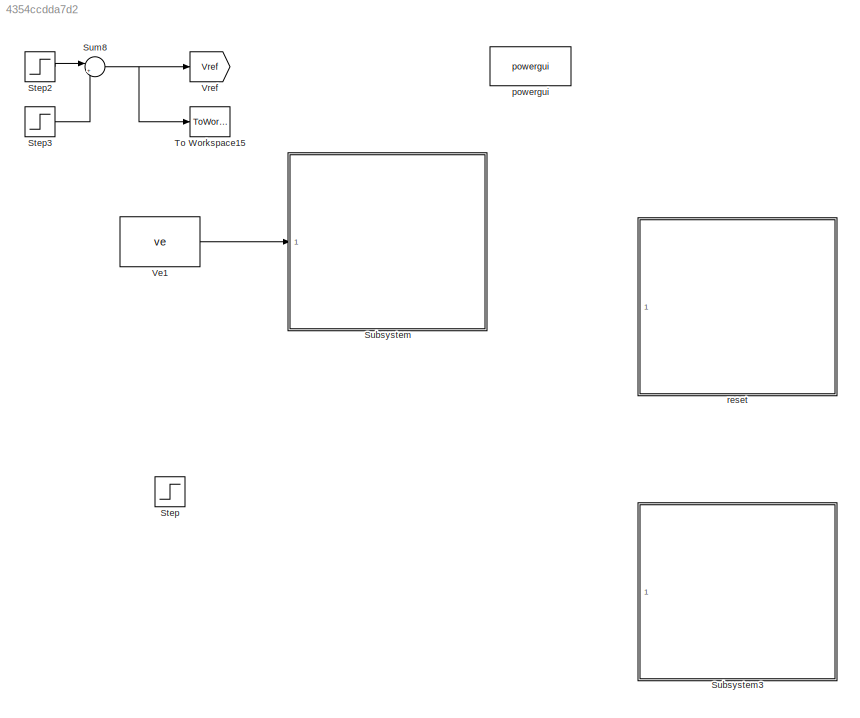
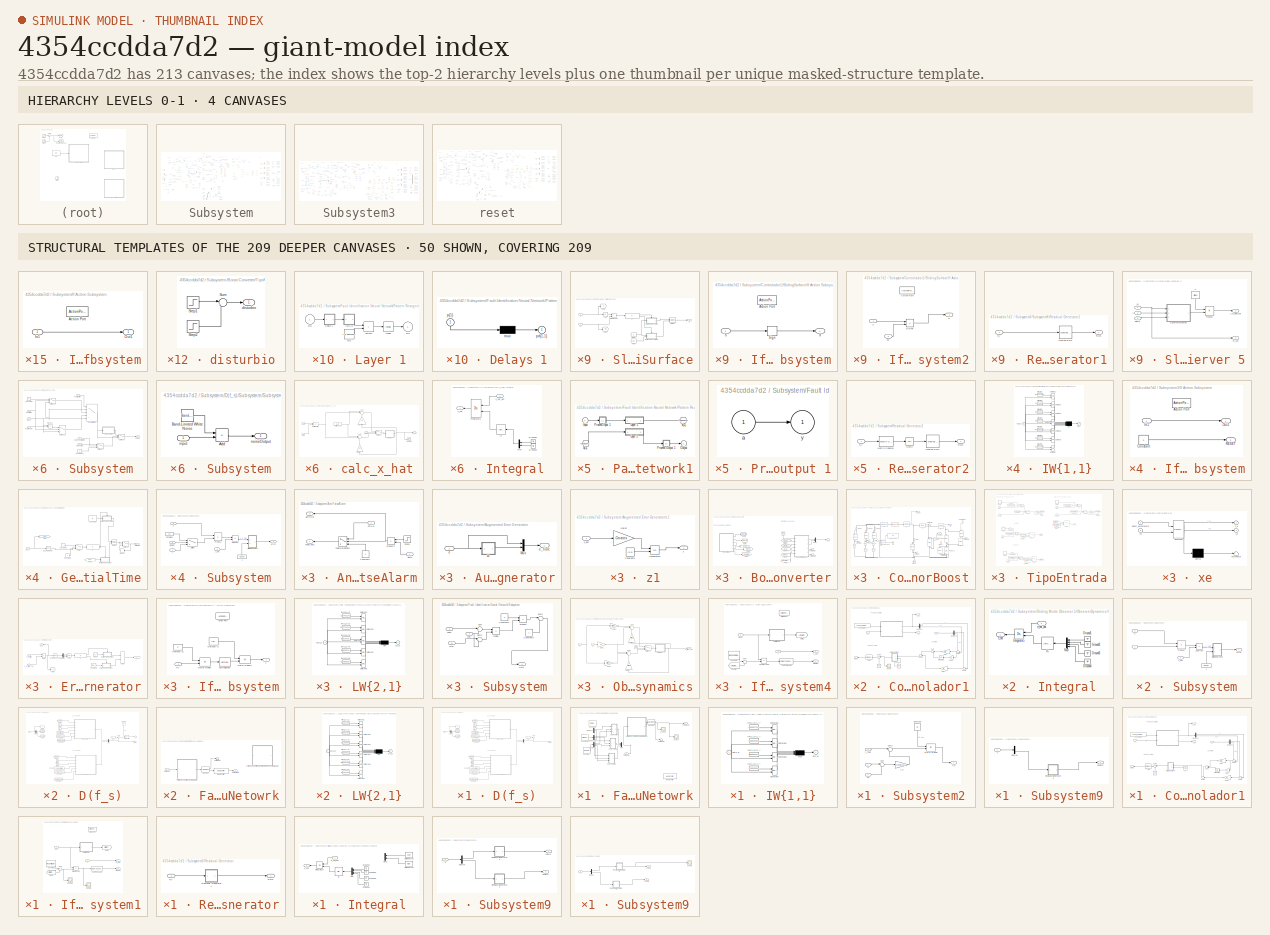
[diagram: thumbnail index - top-2 hierarchy levels (4 canvases) + 50 structural-template representatives of the remaining 209 canvases]
MODEL slx_4354ccdda7d2
KIND model
CONFIG AbsTol = auto
CONFIG EnableMultiTasking = on
CONFIG FixedStep = 0.0005
CONFIG InitFcn = kp=0.01;\nki=0.01;\n\nk=2;\nem=100000000;\nGE=1/em;\nGU=k*ki/GE;\nGCE=k*kp/GU;\n
CONFIG MaxStep = auto
CONFIG MinStep = auto
CONFIG RelTol = auto
CONFIG SampleTimeConstraint = Unconstrained
CONFIG Solver = ode45
CONFIG SolverName = ode45
CONFIG StartTime = 0.0
CONFIG StopTime = 1
WORKSPACE source: mxarray member
WORKSPACE time = 0.8
BLOCK [Step] Step
  After = 300
  Before = 380
  Commented = on
  SampleTime = 0
  Time = 0.60
BLOCK [Step] Step2
  After = 100
  Commented = on
  SampleTime = 0
  Time = 0
BLOCK [Step] Step3
  After = 20
  Commented = on
  SampleTime = 0
  Time = 0.4
BLOCK [SubSystem] Subsystem
  NameLocation = left
  Ports = [1]
  RequestExecContextInheritance = off
BLOCK [Logic] Subsystem/AND
  AllPortsSameDT = off
  IconShape = distinctive
  NameLocation = left
  OutDataTypeStr = boolean
  Ports = [2, 1]
BLOCK [SubSystem] Subsystem/AntiFalseAlarm
  NameLocation = top
  Ports = [2, 2]
  RequestExecContextInheritance = off
BLOCK [Inport] Subsystem/AntiFalseAlarm/Alarm
  Port = 2
BLOCK [Outport] Subsystem/AntiFalseAlarm/AlarmOut
  Port = 2
BLOCK [Constant] Subsystem/AntiFalseAlarm/Constant7
  NameLocation = left
BLOCK [Outport] Subsystem/AntiFalseAlarm/FaultClass
BLOCK [Switch] Subsystem/AntiFalseAlarm/FaultDetecition1
  Criteria = u2 > Threshold
  InputSameDT = off
  SaturateOnIntegerOverflow = off
BLOCK [Inport] Subsystem/AntiFalseAlarm/PRNN
BLOCK [Product] Subsystem/AntiFalseAlarm/Product1
  NameLocation = top
  Ports = [2, 1]
BLOCK [Step] Subsystem/AntiFalseAlarm/Step1
  NameLocation = left
  SampleTime = 0
  Time = AlarmDeadTime
BLOCK [SubSystem] Subsystem/Augmented Error Generator
  Ports = [1, 1]
  RequestExecContextInheritance = off
BLOCK [Mux] Subsystem/Augmented Error Generator/Mux
  DisplayOption = bar
  Inputs = 2
  Ports = [2, 1]
BLOCK [Inport] Subsystem/Augmented Error Generator/e
BLOCK [Outport] Subsystem/Augmented Error Generator/e_tilde
BLOCK [SubSystem] Subsystem/Augmented Error Generator/z1
  Ports = [1, 1]
  RequestExecContextInheritance = off
BLOCK [Constant] Subsystem/Augmented Error Generator/z1/Constant1
  Value = [0;0]
  VectorParams1D = off
BLOCK [Gain] Subsystem/Augmented Error Generator/z1/Gain2
  Gain = Cmatrix
  Multiplication = Matrix(K*u) (u vector)
BLOCK [Integrator] Subsystem/Augmented Error Generator/z1/Integrator6
  InitialConditionSource = external
  Ports = [2, 1]
BLOCK [Outport] Subsystem/Augmented Error Generator/z1/z
BLOCK [Inport] Subsystem/Augmented Error Generator/z1/z_dot
BLOCK [SubSystem] Subsystem/Boost Converter
  Ports = [1, 1]
  RequestExecContextInheritance = off
BLOCK [SubSystem] Subsystem/Boost Converter/ConversorBoost
  Ports = [6, 4]
  RequestExecContextInheritance = off
BLOCK [Reference] Subsystem/Boost Converter/ConversorBoost/C  REF=powerlib/Elements/Series RLC Branch
  NameLocation = left
  Ports = [0, 0, 0, 0, 0, 1, 1]
  SourceBlock = powerlib/Elements/Series RLC Branch
  SourceProductBaseCode = PS
  SourceType = Series RLC Branch
BLOCK [Reference] Subsystem/Boost Converter/ConversorBoost/Ground  REF=powerlib/Elements/Ground
  NameLocation = right
  Ports = [0, 0, 0, 0, 0, 1]
  SourceBlock = powerlib/Elements/Ground
  SourceProductBaseCode = PS
  SourceType = Ground
BLOCK [Reference] Subsystem/Boost Converter/ConversorBoost/IL  REF=powerlib/Measurements/Current Measurement
  Ports = [0, 1, 0, 0, 0, 1, 1]
  SourceBlock = powerlib/Measurements/Current Measurement
  SourceProductBaseCode = PS
  SourceType = Current Measurement
  UserDataPersistent = on
BLOCK [Reference] Subsystem/Boost Converter/ConversorBoost/Iro  REF=powerlib/Measurements/Current Measurement
  Ports = [0, 1, 0, 0, 0, 1, 1]
  SourceBlock = powerlib/Measurements/Current Measurement
  SourceProductBaseCode = PS
  SourceType = Current Measurement
  UserDataPersistent = on
BLOCK [Reference] Subsystem/Boost Converter/ConversorBoost/L  REF=powerlib/Elements/Series RLC Branch
  Ports = [0, 0, 0, 0, 0, 1, 1]
  SourceBlock = powerlib/Elements/Series RLC Branch
  SourceProductBaseCode = PS
  SourceType = Series RLC Branch
BLOCK [Reference] Subsystem/Boost Converter/ConversorBoost/R  REF=powerlib/Elements/Series RLC Branch
  Ports = [0, 0, 0, 0, 0, 1, 1]
  SourceBlock = powerlib/Elements/Series RLC Branch
  SourceProductBaseCode = PS
  SourceType = Series RLC Branch
BLOCK [Inport] Subsystem/Boost Converter/ConversorBoost/Rinput
  NameLocation = left
  Port = 5
BLOCK [Reference] Subsystem/Boost Converter/ConversorBoost/Ro  REF=powerlib/Elements/Series RLC Branch
  NameLocation = left
  Ports = [0, 0, 0, 0, 0, 1, 1]
  SourceBlock = powerlib/Elements/Series RLC Branch
  SourceProductBaseCode = PS
  SourceType = Series RLC Branch
BLOCK [Inport] Subsystem/Boost Converter/ConversorBoost/Rparallelinput
  NameLocation = left
  Port = 6
BLOCK [Reference] Subsystem/Boost Converter/ConversorBoost/Rvariavel1  REF=powerlib/Elements/Series RLC Branch
  NameLocation = right
  Ports = [0, 0, 0, 0, 0, 1, 1]
  SourceBlock = powerlib/Elements/Series RLC Branch
  SourceProductBaseCode = PS
  SourceType = Series RLC Branch
BLOCK [Reference] Subsystem/Boost Converter/ConversorBoost/Rvariavel2  REF=powerlib/Elements/Series RLC Branch
  NameLocation = right
  Ports = [0, 0, 0, 0, 0, 1, 1]
  SourceBlock = powerlib/Elements/Series RLC Branch
  SourceProductBaseCode = PS
  SourceType = Series RLC Branch
BLOCK [Reference] Subsystem/Boost Converter/ConversorBoost/S1  REF=powerlib/Power
Electronics/Mosfet
  NameLocation = left
  Ports = [1, 1, 0, 0, 0, 1, 1]
  SourceBlock = powerlib/Power\nElectronics/Mosfet
  SourceProductBaseCode = PS
  SourceType = Mosfet
BLOCK [Reference] Subsystem/Boost Converter/ConversorBoost/S2  REF=powerlib/Power
Electronics/Diode
  Ports = [0, 1, 0, 0, 0, 1, 1]
  SourceBlock = powerlib/Power\nElectronics/Diode
  SourceProductBaseCode = PS
  SourceType = Diode
BLOCK [Reference] Subsystem/Boost Converter/ConversorBoost/S3  REF=powerlib/Power
Electronics/Ideal Switch
  NameLocation = left
  Ports = [1, 1, 0, 0, 0, 1, 1]
  SourceBlock = powerlib/Power\nElectronics/Ideal Switch
  SourceProductBaseCode = PS
  SourceType = Ideal Switch
BLOCK [Reference] Subsystem/Boost Converter/ConversorBoost/S4  REF=powerlib/Power
Electronics/Ideal Switch
  NameLocation = left
  Ports = [1, 1, 0, 0, 0, 1, 1]
  SourceBlock = powerlib/Power\nElectronics/Ideal Switch
  SourceProductBaseCode = PS
  SourceType = Ideal Switch
BLOCK [Reference] Subsystem/Boost Converter/ConversorBoost/S5  REF=powerlib/Power
Electronics/Ideal Switch
  NameLocation = left
  Ports = [1, 1, 0, 0, 0, 1, 1]
  SourceBlock = powerlib/Power\nElectronics/Ideal Switch
  SourceProductBaseCode = PS
  SourceType = Ideal Switch
BLOCK [Reference] Subsystem/Boost Converter/ConversorBoost/S6  REF=powerlib/Power
Electronics/Ideal Switch
  NameLocation = left
  Ports = [1, 1, 0, 0, 0, 1, 1]
  SourceBlock = powerlib/Power\nElectronics/Ideal Switch
  SourceProductBaseCode = PS
  SourceType = Ideal Switch
BLOCK [Reference] Subsystem/Boost Converter/ConversorBoost/S7  REF=powerlib/Power
Electronics/Ideal Switch
  NameLocation = left
  Ports = [1, 1, 0, 0, 0, 1, 1]
  SourceBlock = powerlib/Power\nElectronics/Ideal Switch
  SourceProductBaseCode = PS
  SourceType = Ideal Switch
BLOCK [Display] Subsystem/Boost Converter/ConversorBoost/Tensão Ve1
  Decimation = 1
  Ports = [1]
BLOCK [Terminator] Subsystem/Boost Converter/ConversorBoost/Terminator
BLOCK [Terminator] Subsystem/Boost Converter/ConversorBoost/Terminator1
BLOCK [Terminator] Subsystem/Boost Converter/ConversorBoost/Terminator2
BLOCK [Terminator] Subsystem/Boost Converter/ConversorBoost/Terminator3
BLOCK [Terminator] Subsystem/Boost Converter/ConversorBoost/Terminator4
BLOCK [Terminator] Subsystem/Boost Converter/ConversorBoost/Terminator5
BLOCK [Terminator] Subsystem/Boost Converter/ConversorBoost/Terminator6
BLOCK [Outport] Subsystem/Boost Converter/ConversorBoost/Vcoutput
  Port = 2
BLOCK [Inport] Subsystem/Boost Converter/ConversorBoost/Vinput1
  NameLocation = left
  Port = 2
BLOCK [Inport] Subsystem/Boost Converter/ConversorBoost/Vinput2
  NameLocation = left
  Port = 3
BLOCK [Inport] Subsystem/Boost Converter/ConversorBoost/Vinput3
  NameLocation = left
  Port = 4
BLOCK [Reference] Subsystem/Boost Converter/ConversorBoost/Voltage Measurement  REF=powerlib/Measurements/Voltage Measurement
  Ports = [0, 1, 0, 0, 0, 2]
  SourceBlock = powerlib/Measurements/Voltage Measurement
  SourceProductBaseCode = PS
  SourceType = Voltage Measurement
BLOCK [Reference] Subsystem/Boost Converter/ConversorBoost/Voltage Measurement1  REF=powerlib/Measurements/Voltage Measurement
  Ports = [0, 1, 0, 0, 0, 2]
  SourceBlock = powerlib/Measurements/Voltage Measurement
  SourceProductBaseCode = PS
  SourceType = Voltage Measurement
BLOCK [Outport] Subsystem/Boost Converter/ConversorBoost/Vu
  NameLocation = top
  Port = 4
BLOCK [Outport] Subsystem/Boost Converter/ConversorBoost/iLoutput
BLOCK [Outport] Subsystem/Boost Converter/ConversorBoost/iro
  Port = 3
BLOCK [Inport] Subsystem/Boost Converter/ConversorBoost/sigma
  NameLocation = left
BLOCK [Reference] Subsystem/Boost Converter/ConversorBoost/u  REF=powerlib/Electrical
Sources/DC Voltage Source
  NameLocation = right
  Ports = [0, 0, 0, 0, 0, 1, 1]
  SourceBlock = powerlib/Electrical\nSources/DC Voltage Source
  SourceProductBaseCode = PS
  SourceType = DC Voltage Source
BLOCK [Reference] Subsystem/Boost Converter/ConversorBoost/u1  REF=powerlib/Electrical
Sources/DC Voltage Source
  NameLocation = left
  Ports = [0, 0, 0, 0, 0, 1, 1]
  SourceBlock = powerlib/Electrical\nSources/DC Voltage Source
  SourceProductBaseCode = PS
  SourceType = DC Voltage Source
BLOCK [Reference] Subsystem/Boost Converter/ConversorBoost/u2  REF=powerlib/Electrical
Sources/DC Voltage Source
  NameLocation = right
  Ports = [0, 0, 0, 0, 0, 1, 1]
  SourceBlock = powerlib/Electrical\nSources/DC Voltage Source
  SourceProductBaseCode = PS
  SourceType = DC Voltage Source
BLOCK [Reference] Subsystem/Boost Converter/ConversorBoost/u3  REF=powerlib/Electrical
Sources/DC Voltage Source
  NameLocation = right
  Ports = [0, 0, 0, 0, 0, 1, 1]
  SourceBlock = powerlib/Electrical\nSources/DC Voltage Source
  SourceProductBaseCode = PS
  SourceType = DC Voltage Source
BLOCK [Reference] Subsystem/Boost Converter/ConversorBoost/u4  REF=powerlib/Electrical
Sources/DC Voltage Source
  NameLocation = right
  Ports = [0, 0, 0, 0, 0, 1, 1]
  SourceBlock = powerlib/Electrical\nSources/DC Voltage Source
  SourceProductBaseCode = PS
  SourceType = DC Voltage Source
BLOCK [From] Subsystem/Boost Converter/From
  GotoTag = Rparallelinput
BLOCK [From] Subsystem/Boost Converter/From4
  GotoTag = Vinput1
BLOCK [From] Subsystem/Boost Converter/From5
  GotoTag = Vinput2
BLOCK [From] Subsystem/Boost Converter/From6
  GotoTag = Rinput
BLOCK [From] Subsystem/Boost Converter/From8
  GotoTag = Vinput3
BLOCK [Goto] Subsystem/Boost Converter/Goto
  GotoTag = Vinput3
BLOCK [Goto] Subsystem/Boost Converter/Goto1
  GotoTag = Rparallelinput
BLOCK [Goto] Subsystem/Boost Converter/Goto4
  GotoTag = Vinput2
BLOCK [Goto] Subsystem/Boost Converter/Goto5
  GotoTag = Vinput1
BLOCK [Goto] Subsystem/Boost Converter/Goto6
  GotoTag = Rinput
BLOCK [Mux] Subsystem/Boost Converter/Mux1
  DisplayOption = bar
  Inputs = 2
  Ports = [2, 1]
BLOCK [Terminator] Subsystem/Boost Converter/Terminator
BLOCK [Terminator] Subsystem/Boost Converter/Terminator1
BLOCK [SubSystem] Subsystem/Boost Converter/TipoEntrada
  Ports = [0, 5]
  RequestExecContextInheritance = off
BLOCK [Constant] Subsystem/Boost Converter/TipoEntrada/Constant1
  Value = LoadAddSwitch
BLOCK [Constant] Subsystem/Boost Converter/TipoEntrada/Constant11
  Value = SourceRemoveSwitch
BLOCK [Constant] Subsystem/Boost Converter/TipoEntrada/Constant2
  Value = SourceAddSignalSwitch
BLOCK [Constant] Subsystem/Boost Converter/TipoEntrada/Constant3
  Value = LoadAddSignalSwitch
BLOCK [Constant] Subsystem/Boost Converter/TipoEntrada/Constant4
  Value = SourceAddSwitch
BLOCK [Constant] Subsystem/Boost Converter/TipoEntrada/Constant5
  Value = LoadRemoveSwitch
BLOCK [Constant] Subsystem/Boost Converter/TipoEntrada/Constant6
  Value = LoadRemoveSignalSwitch
BLOCK [Constant] Subsystem/Boost Converter/TipoEntrada/Constant7
  Value = SourceRemoveSignalSwitch
BLOCK [Constant] Subsystem/Boost Converter/TipoEntrada/Constant8
  Value = SourceRemoveSwitch
BLOCK [From] Subsystem/Boost Converter/TipoEntrada/From1
  GotoTag = VinputAdd
BLOCK [From] Subsystem/Boost Converter/TipoEntrada/From3
  GotoTag = VinputRemove
BLOCK [Goto] Subsystem/Boost Converter/TipoEntrada/Goto2
  GotoTag = VinputAdd
BLOCK [Goto] Subsystem/Boost Converter/TipoEntrada/Goto3
  GotoTag = VinputRemove
BLOCK [Logic] Subsystem/Boost Converter/TipoEntrada/Logical Operator
  AllPortsSameDT = off
  Operator = NOT
  OutDataTypeStr = boolean
  Ports = [1, 1]
BLOCK [Logic] Subsystem/Boost Converter/TipoEntrada/Logical Operator1
  AllPortsSameDT = off
  Operator = NOT
  OutDataTypeStr = boolean
  Ports = [1, 1]
BLOCK [Logic] Subsystem/Boost Converter/TipoEntrada/Logical Operator2
  AllPortsSameDT = off
  Operator = NOT
  OutDataTypeStr = boolean
  Ports = [1, 1]
BLOCK [Logic] Subsystem/Boost Converter/TipoEntrada/Logical Operator3
  AllPortsSameDT = off
  Operator = NOT
  OutDataTypeStr = boolean
  Ports = [1, 1]
BLOCK [Outport] Subsystem/Boost Converter/TipoEntrada/Rparallelvariavel 
  Port = 5
BLOCK [Outport] Subsystem/Boost Converter/TipoEntrada/Rvariavel 
  Port = 4
BLOCK [Constant] Subsystem/Boost Converter/TipoEntrada/Sem Disturbio
BLOCK [Constant] Subsystem/Boost Converter/TipoEntrada/Sem Disturbio  
  Value = 0
BLOCK [Constant] Subsystem/Boost Converter/TipoEntrada/Sen Disturbiio
  Value = 0
BLOCK [Constant] Subsystem/Boost Converter/TipoEntrada/Sen Disturbiio1
  Value = 0
BLOCK [Step] Subsystem/Boost Converter/TipoEntrada/Step
  After = 0
  Before = 1
  SampleTime = 0
  Time = LoadAddTime
BLOCK [Step] Subsystem/Boost Converter/TipoEntrada/Step1
  SampleTime = 0
  Time = SourceAddTime
BLOCK [Step] Subsystem/Boost Converter/TipoEntrada/Step2
  SampleTime = 0
  Time = LoadRemoveTime
BLOCK [Step] Subsystem/Boost Converter/TipoEntrada/Step3
  SampleTime = 0
  Time = SourceRemoveTime
BLOCK [Switch] Subsystem/Boost Converter/TipoEntrada/Switch1
  Criteria = u2 ~= 0
  InputSameDT = off
  SaturateOnIntegerOverflow = off
BLOCK [Switch] Subsystem/Boost Converter/TipoEntrada/Switch10
  Criteria = u2 ~= 0
  InputSameDT = off
  SaturateOnIntegerOverflow = off
BLOCK [Switch] Subsystem/Boost Converter/TipoEntrada/Switch2
  Criteria = u2 ~= 0
  InputSameDT = off
  SaturateOnIntegerOverflow = off
BLOCK [Switch] Subsystem/Boost Converter/TipoEntrada/Switch3
  Criteria = u2 ~= 0
  InputSameDT = off
  SaturateOnIntegerOverflow = off
BLOCK [Switch] Subsystem/Boost Converter/TipoEntrada/Switch5
  Criteria = u2 ~= 0
  InputSameDT = off
  SaturateOnIntegerOverflow = off
BLOCK [Switch] Subsystem/Boost Converter/TipoEntrada/Switch6
  Criteria = u2 ~= 0
  InputSameDT = off
  SaturateOnIntegerOverflow = off
BLOCK [Switch] Subsystem/Boost Converter/TipoEntrada/Switch7
  Criteria = u2 ~= 0
  InputSameDT = off
  SaturateOnIntegerOverflow = off
BLOCK [Switch] Subsystem/Boost Converter/TipoEntrada/Switch8
  Criteria = u2 ~= 0
  InputSameDT = off
  SaturateOnIntegerOverflow = off
BLOCK [Switch] Subsystem/Boost Converter/TipoEntrada/Switch9
  Criteria = u2 ~= 0
  InputSameDT = off
  SaturateOnIntegerOverflow = off
BLOCK [Outport] Subsystem/Boost Converter/TipoEntrada/Vu
BLOCK [Outport] Subsystem/Boost Converter/TipoEntrada/VuAdd
  Port = 2
BLOCK [Outport] Subsystem/Boost Converter/TipoEntrada/VuRemove
  Port = 3
BLOCK [SubSystem] Subsystem/Boost Converter/TipoEntrada/disturbio
  Ports = [0, 1]
  RequestExecContextInheritance = off
BLOCK [Step] Subsystem/Boost Converter/TipoEntrada/disturbio/Step1
  SampleTime = 0
BLOCK [Step] Subsystem/Boost Converter/TipoEntrada/disturbio/Step2
  After = -1
  SampleTime = 0
  Time = 1.1
BLOCK [Sum] Subsystem/Boost Converter/TipoEntrada/disturbio/Sum
  Inputs = |++
  Ports = [2, 1]
BLOCK [Outport] Subsystem/Boost Converter/TipoEntrada/disturbio/disturbio
BLOCK [SubSystem] Subsystem/Boost Converter/TipoEntrada/disturbio1
  Ports = [0, 1]
  RequestExecContextInheritance = off
BLOCK [Step] Subsystem/Boost Converter/TipoEntrada/disturbio1/Step1
  SampleTime = 0
  Time = 1.2
BLOCK [Step] Subsystem/Boost Converter/TipoEntrada/disturbio1/Step2
  After = -1
  SampleTime = 0
  Time = 1.4
BLOCK [Sum] Subsystem/Boost Converter/TipoEntrada/disturbio1/Sum
  Inputs = |++
  Ports = [2, 1]
BLOCK [Outport] Subsystem/Boost Converter/TipoEntrada/disturbio1/disturbio
BLOCK [SubSystem] Subsystem/Boost Converter/TipoEntrada/disturbio2
  Ports = [0, 1]
  RequestExecContextInheritance = off
BLOCK [Step] Subsystem/Boost Converter/TipoEntrada/disturbio2/Step1
  SampleTime = 0
  Time = 1.2
BLOCK [Step] Subsystem/Boost Converter/TipoEntrada/disturbio2/Step2
  After = -1
  SampleTime = 0
  Time = 1.4
BLOCK [Sum] Subsystem/Boost Converter/TipoEntrada/disturbio2/Sum
  Inputs = |++
  Ports = [2, 1]
BLOCK [Outport] Subsystem/Boost Converter/TipoEntrada/disturbio2/disturbio
BLOCK [SubSystem] Subsystem/Boost Converter/TipoEntrada/disturbio3
  Ports = [0, 1]
  RequestExecContextInheritance = off
BLOCK [Step] Subsystem/Boost Converter/TipoEntrada/disturbio3/Step1
  SampleTime = 0
BLOCK [Step] Subsystem/Boost Converter/TipoEntrada/disturbio3/Step2
  After = -1
  SampleTime = 0
  Time = 1.1
BLOCK [Sum] Subsystem/Boost Converter/TipoEntrada/disturbio3/Sum
  Inputs = |++
  Ports = [2, 1]
BLOCK [Outport] Subsystem/Boost Converter/TipoEntrada/disturbio3/disturbio
BLOCK [Inport] Subsystem/Boost Converter/sigma
  NameLocation = left
BLOCK [Outport] Subsystem/Boost Converter/x
  NameLocation = top
BLOCK [Clock] Subsystem/Clock
BLOCK [Constant] Subsystem/Constant
  Value = 20
BLOCK [Constant] Subsystem/Constant1
BLOCK [Constant] Subsystem/Constant2
  Value = ReconfigSwitch
BLOCK [Constant] Subsystem/Constant3
  Value = 0
BLOCK [Constant] Subsystem/Constant4
BLOCK [Constant] Subsystem/Constant5
  Value = 0
BLOCK [Constant] Subsystem/Constant6
BLOCK [Constant] Subsystem/Constant7
  Value = 2
BLOCK [SubSystem] Subsystem/Controlador1
  Ports = [2, 3]
  RequestExecContextInheritance = off
BLOCK [Constant] Subsystem/Controlador1/    
  NameLocation = right
  Value = ueq
BLOCK [Constant] Subsystem/Controlador1/    2
  NameLocation = top
  Value = Smep
BLOCK [Constant] Subsystem/Controlador1/Constant6
  Value = boost_parameters
BLOCK [Demux] Subsystem/Controlador1/Demux1
  Outputs = 2
  Ports = [1, 2]
BLOCK [Demux] Subsystem/Controlador1/Demux2
  Outputs = 2
  Ports = [1, 2]
BLOCK [Gain] Subsystem/Controlador1/Gain
  Gain = 0.8
  NameLocation = top
BLOCK [Gain] Subsystem/Controlador1/Gain1
  Gain = 8
  NameLocation = top
BLOCK [Gain] Subsystem/Controlador1/Gain3
  Gain = 2.3
  NameLocation = top
BLOCK [Integrator] Subsystem/Controlador1/Integrator1
  NameLocation = top
  Ports = [1, 1]
BLOCK [Reference] Subsystem/Controlador1/PWM  REF=powerlib_meascontrol/Pulse & Signal
Generators/PWM Generator
(DC-DC)
  NameLocation = top
  Ports = [1, 1]
  SourceBlock = powerlib_meascontrol/Pulse & Signal\nGenerators/PWM Generator\n(DC-DC)
  SourceProductBaseCode = PS
  SourceType = PWM Generator (DC-DC)
BLOCK [Scope] Subsystem/Controlador1/Scope
  Floating = off
  NumInputPorts = 1
  Ports = [1]
  ScopeSpecificationString = Simulink.scopes.TimeScopeBlockCfg('CurrentConfiguration', extmgr.ConfigurationSet(extmgr.Configuration('Core','General UI',true),extmgr.Configuration('Core','Source UI',true),extmgr.Configuration('Sources','WiredSimulink',true,'DataLoggingVariableName','ScopeData8'),extmgr.Configuration('Visuals','Time Domain',true,'SerializedDisplays',{struct('MinYLimReal','-0.51961','MaxYLimReal','0.48997','YLab...<+1421ch>
BLOCK [SubSystem] Subsystem/Controlador1/SlidingSurface
  NameLocation = top
  Ports = [2, 1]
  RequestExecContextInheritance = off
BLOCK [Abs] Subsystem/Controlador1/SlidingSurface/Abs
  SaturateOnIntegerOverflow = off
BLOCK [From] Subsystem/Controlador1/SlidingSurface/From
  GotoTag = ep
BLOCK [From] Subsystem/Controlador1/SlidingSurface/From1
  GotoTag = S
BLOCK [Goto] Subsystem/Controlador1/SlidingSurface/Goto
  GotoTag = S
BLOCK [Goto] Subsystem/Controlador1/SlidingSurface/Goto1
  GotoTag = ep
BLOCK [RelationalOperator] Subsystem/Controlador1/SlidingSurface/GreaterThan
  InputSameDT = off
  Operator = >
  OutDataTypeStr = boolean
  Ports = [2, 1]
  RndMeth = Simplest
BLOCK [If] Subsystem/Controlador1/SlidingSurface/If
  IfExpression = u1 ~= 0
  Ports = [1, 2]
BLOCK [SubSystem] Subsystem/Controlador1/SlidingSurface/If Action Subsystem
  Ports = [1, 1, 0, 0, 0, 0, 0, 1]
  RequestExecContextInheritance = off
  TreatAsAtomicUnit = on
BLOCK [ActionPort] Subsystem/Controlador1/SlidingSurface/If Action Subsystem/Action Port
  ActionPortLabel = if(u1 ~= 0)
BLOCK [Inport] Subsystem/Controlador1/SlidingSurface/If Action Subsystem/S
BLOCK [Signum] Subsystem/Controlador1/SlidingSurface/If Action Subsystem/Sign
BLOCK [Outport] Subsystem/Controlador1/SlidingSurface/If Action Subsystem/d
BLOCK [SubSystem] Subsystem/Controlador1/SlidingSurface/If Action Subsystem2
  Ports = [2, 1, 0, 0, 0, 0, 0, 1]
  RequestExecContextInheritance = off
  TreatAsAtomicUnit = on
BLOCK [ActionPort] Subsystem/Controlador1/SlidingSurface/If Action Subsystem2/Action Port
  ActionPortLabel = else
BLOCK [Product] Subsystem/Controlador1/SlidingSurface/If Action Subsystem2/Divide
  Inputs = */
  Ports = [2, 1]
BLOCK [Inport] Subsystem/Controlador1/SlidingSurface/If Action Subsystem2/S
BLOCK [Outport] Subsystem/Controlador1/SlidingSurface/If Action Subsystem2/d
BLOCK [Inport] Subsystem/Controlador1/SlidingSurface/If Action Subsystem2/ep
  Port = 2
BLOCK [Merge] Subsystem/Controlador1/SlidingSurface/Merge1
  Ports = [2, 1]
BLOCK [Inport] Subsystem/Controlador1/SlidingSurface/S
BLOCK [Outport] Subsystem/Controlador1/SlidingSurface/d
BLOCK [Inport] Subsystem/Controlador1/SlidingSurface/ep
  Port = 2
BLOCK [Sum] Subsystem/Controlador1/Sum
  Inputs = |++
  NameLocation = top
  Ports = [2, 1]
BLOCK [Sum] Subsystem/Controlador1/Sum4
  Inputs = ++|
  NameLocation = top
  Ports = [2, 1]
BLOCK [Sum] Subsystem/Controlador1/Sum5
  Inputs = -+|
  NameLocation = top
  Ports = [2, 1]
BLOCK [Sum] Subsystem/Controlador1/Sum6
  Inputs = -+|
  NameLocation = top
  Ports = [2, 1]
BLOCK [Sum] Subsystem/Controlador1/Sum9
  Inputs = |++
  NameLocation = top
  Ports = [2, 1]
BLOCK [Outport] Subsystem/Controlador1/i_e
  Port = 2
BLOCK [Outport] Subsystem/Controlador1/sigma
  NameLocation = top
BLOCK [Inport] Subsystem/Controlador1/ve
BLOCK [Inport] Subsystem/Controlador1/x
  Port = 2
BLOCK [Outport] Subsystem/Controlador1/x_e
  Port = 3
BLOCK [SubSystem] Subsystem/Controlador1/xe
  ErrorFcn = Stateflow.Translate.translate
  PermitHierarchicalResolution = ExplicitOnly
  Ports = [2, 2]
  RequestExecContextInheritance = off
  SFBlockType = MATLAB Function
  TreatAsAtomicUnit = on
BLOCK [Demux] Subsystem/Controlador1/xe/ Demux 
  Outputs = 1
  Ports = [1, 1]
BLOCK [S-Function] Subsystem/Controlador1/xe/ SFunction 
  EnableBusSupport = on
  FunctionName = sf_sfun
  PortCounts = [2 3]
  Ports = [2, 3]
  SFcnIsStateOwnerBlock = off
  SFunctionDeploymentMode = off
  Tag = Stateflow S-Function 40
BLOCK [Terminator] Subsystem/Controlador1/xe/ Terminator 
BLOCK [Inport] Subsystem/Controlador1/xe/boost_parameters
BLOCK [Outport] Subsystem/Controlador1/xe/i_e
  Port = 2
BLOCK [Inport] Subsystem/Controlador1/xe/ve
  Port = 2
BLOCK [Outport] Subsystem/Controlador1/xe/x_e
BLOCK [SubSystem] Subsystem/D(f_s)
  Ports = [1, 1]
  RequestExecContextInheritance = off
BLOCK [Constant] Subsystem/D(f_s)/Constant1
  Value = VcFaultSwitch
BLOCK [Constant] Subsystem/D(f_s)/Constant2
  Value = iLGainFaultFactor
BLOCK [Constant] Subsystem/D(f_s)/Constant3
  Value = VcNoiseFaultSwitch
BLOCK [Constant] Subsystem/D(f_s)/Constant4
  Value = VcGainFaultFactor
BLOCK [Constant] Subsystem/D(f_s)/Constant7
  Value = iLFaultSwitch
BLOCK [Constant] Subsystem/D(f_s)/Constant8
  Value = iLNoiseFaultSwitch
BLOCK [Demux] Subsystem/D(f_s)/Demux
  Outputs = 2
  Ports = [1, 2]
BLOCK [From] Subsystem/D(f_s)/From
  GotoTag = y
BLOCK [From] Subsystem/D(f_s)/From1
  GotoTag = VcOutput
BLOCK [From] Subsystem/D(f_s)/From2
  GotoTag = iLoutput
BLOCK [Goto] Subsystem/D(f_s)/Goto
  GotoTag = iLoutput
BLOCK [Goto] Subsystem/D(f_s)/Goto1
  GotoTag = VcOutput
BLOCK [Goto] Subsystem/D(f_s)/Goto2
  GotoTag = y
BLOCK [Mux] Subsystem/D(f_s)/Mux
  DisplayOption = bar
  Inputs = 2
  Ports = [2, 1]
BLOCK [Step] Subsystem/D(f_s)/Step10
  SampleTime = 0
  Time = VcFaultTime
BLOCK [Step] Subsystem/D(f_s)/Step2
  SampleTime = 0
  Time = VcNoiseTime
BLOCK [Step] Subsystem/D(f_s)/Step8
  SampleTime = 0
  Time = iLFaultTime
BLOCK [Step] Subsystem/D(f_s)/Step9
  SampleTime = 0
  Time = iLNoiseTime
BLOCK [SubSystem] Subsystem/D(f_s)/Subsystem
  Ports = [6, 1]
  RequestExecContextInheritance = off
BLOCK [Constant] Subsystem/D(f_s)/Subsystem/Constant11
  Value = 0
BLOCK [Constant] Subsystem/D(f_s)/Subsystem/Constant9
  Value = 0
BLOCK [Inport] Subsystem/D(f_s)/Subsystem/FaultFactor
  Port = 6
BLOCK [Inport] Subsystem/D(f_s)/Subsystem/FaultStep
  Port = 2
BLOCK [Inport] Subsystem/D(f_s)/Subsystem/FaultSwtich
  Port = 4
BLOCK [Inport] Subsystem/D(f_s)/Subsystem/NoiseFaultSwitch
  Port = 5
BLOCK [Inport] Subsystem/D(f_s)/Subsystem/NoiseStep
  Port = 3
BLOCK [Product] Subsystem/D(f_s)/Subsystem/Product
  Ports = [2, 1]
BLOCK [SubSystem] Subsystem/D(f_s)/Subsystem/Subsystem
  Ports = [1, 1]
  RequestExecContextInheritance = off
BLOCK [Sum] Subsystem/D(f_s)/Subsystem/Subsystem/Add
  IconShape = rectangular
  Ports = [2, 1]
BLOCK [Reference] Subsystem/D(f_s)/Subsystem/Subsystem/Band-Limited White Noise  REF=simulink/Sources/Band-Limited
White Noise
  Ports = [0, 1]
  SourceBlock = simulink/Sources/Band-Limited\nWhite Noise
  SourceProductBaseCode = SL
  SourceType = Band-Limited White Noise.
BLOCK [Inport] Subsystem/D(f_s)/Subsystem/Subsystem/input
BLOCK [Outport] Subsystem/D(f_s)/Subsystem/Subsystem/noiseOutput
BLOCK [Switch] Subsystem/D(f_s)/Subsystem/Switch10
  Criteria = u2 ~= 0
  InputSameDT = off
  SaturateOnIntegerOverflow = off
BLOCK [Switch] Subsystem/D(f_s)/Subsystem/Switch11
  Criteria = u2 ~= 0
  InputSameDT = off
  SaturateOnIntegerOverflow = off
BLOCK [Switch] Subsystem/D(f_s)/Subsystem/Switch13
  Criteria = u2 ~= 0
  InputSameDT = off
  SaturateOnIntegerOverflow = off
BLOCK [Switch] Subsystem/D(f_s)/Subsystem/Switch9
  Criteria = u2 ~= 0
  InputSameDT = off
  SaturateOnIntegerOverflow = off
BLOCK [MultiPortSwitch] Subsystem/D(f_s)/Subsystem/iLFault Switch
  DataPortForDefault = Additional data port
  DataPortOrder = Zero-based contiguous
  InputSameDT = off
  Ports = [5, 1]
  SaturateOnIntegerOverflow = off
  zeroidx = on
BLOCK [Inport] Subsystem/D(f_s)/Subsystem/input
BLOCK [Outport] Subsystem/D(f_s)/Subsystem/output
BLOCK [SubSystem] Subsystem/D(f_s)/Subsystem2
  Ports = [6, 1]
  RequestExecContextInheritance = off
BLOCK [Constant] Subsystem/D(f_s)/Subsystem2/Constant11
  Value = 0
BLOCK [Constant] Subsystem/D(f_s)/Subsystem2/Constant9
  Value = 0
BLOCK [Inport] Subsystem/D(f_s)/Subsystem2/FaultFactor
  Port = 6
BLOCK [Inport] Subsystem/D(f_s)/Subsystem2/FaultStep
  Port = 2
BLOCK [Inport] Subsystem/D(f_s)/Subsystem2/FaultSwtich
  Port = 4
BLOCK [Inport] Subsystem/D(f_s)/Subsystem2/NoiseFaultSwitch
  Port = 5
BLOCK [Inport] Subsystem/D(f_s)/Subsystem2/NoiseStep
  Port = 3
BLOCK [Product] Subsystem/D(f_s)/Subsystem2/Product
  Ports = [2, 1]
BLOCK [SubSystem] Subsystem/D(f_s)/Subsystem2/Subsystem
  Ports = [1, 1]
  RequestExecContextInheritance = off
BLOCK [Sum] Subsystem/D(f_s)/Subsystem2/Subsystem/Add
  IconShape = rectangular
  Ports = [2, 1]
BLOCK [Reference] Subsystem/D(f_s)/Subsystem2/Subsystem/Band-Limited White Noise  REF=simulink/Sources/Band-Limited
White Noise
  Ports = [0, 1]
  SourceBlock = simulink/Sources/Band-Limited\nWhite Noise
  SourceProductBaseCode = SL
  SourceType = Band-Limited White Noise.
BLOCK [Inport] Subsystem/D(f_s)/Subsystem2/Subsystem/input
BLOCK [Outport] Subsystem/D(f_s)/Subsystem2/Subsystem/noiseOutput
BLOCK [Switch] Subsystem/D(f_s)/Subsystem2/Switch10
  Criteria = u2 ~= 0
  InputSameDT = off
  SaturateOnIntegerOverflow = off
BLOCK [Switch] Subsystem/D(f_s)/Subsystem2/Switch11
  Criteria = u2 ~= 0
  InputSameDT = off
  SaturateOnIntegerOverflow = off
BLOCK [Switch] Subsystem/D(f_s)/Subsystem2/Switch13
  Criteria = u2 ~= 0
  InputSameDT = off
  SaturateOnIntegerOverflow = off
BLOCK [Switch] Subsystem/D(f_s)/Subsystem2/Switch9
  Criteria = u2 ~= 0
  InputSameDT = off
  SaturateOnIntegerOverflow = off
  ZeroCross = off
BLOCK [MultiPortSwitch] Subsystem/D(f_s)/Subsystem2/iLFault Switch
  DataPortForDefault = Additional data port
  DataPortOrder = Zero-based contiguous
  InputSameDT = off
  Ports = [5, 1]
  SaturateOnIntegerOverflow = off
  zeroidx = on
BLOCK [Inport] Subsystem/D(f_s)/Subsystem2/input
BLOCK [Outport] Subsystem/D(f_s)/Subsystem2/output
BLOCK [Sum] Subsystem/D(f_s)/Sum
  Inputs = |+-
  Ports = [2, 1]
BLOCK [Inport] Subsystem/D(f_s)/y
BLOCK [Outport] Subsystem/D(f_s)/y_fault
BLOCK [SwitchCase] Subsystem/Decition Making
  CaseConditions = {[1,6],[2,3],[4,5]}
  Ports = [1, 4]
BLOCK [Delay] Subsystem/Delay
  DelayLength = 1
  InputPortMap = u0
  NameLocation = left
  Ports = [1, 1]
BLOCK [Demux] Subsystem/Demux
  Outputs = 2
  Ports = [1, 2]
BLOCK [Demux] Subsystem/Demux1
  Outputs = 2
  Ports = [1, 2]
BLOCK [Demux] Subsystem/Demux10
  Outputs = 2
  Ports = [1, 2]
BLOCK [Demux] Subsystem/Demux2
  Outputs = 2
  Ports = [1, 2]
BLOCK [Demux] Subsystem/Demux3
  Outputs = 2
  Ports = [1, 2]
BLOCK [Demux] Subsystem/Demux4
  Outputs = 2
  Ports = [1, 2]
BLOCK [Demux] Subsystem/Demux5
  Outputs = 2
  Ports = [1, 2]
BLOCK [Demux] Subsystem/Demux6
  Outputs = 2
  Ports = [1, 2]
BLOCK [Demux] Subsystem/Demux7
  Outputs = 2
  Ports = [1, 2]
BLOCK [Demux] Subsystem/Demux8
  Outputs = 2
  Ports = [1, 2]
BLOCK [Demux] Subsystem/Demux9
  Outputs = 2
  Ports = [1, 2]
BLOCK [Display] Subsystem/Display
  Decimation = 1
  Ports = [1]
BLOCK [SubSystem] Subsystem/ErrorGenerator
  NameLocation = top
  Ports = [2, 2]
  RequestExecContextInheritance = off
BLOCK [Logic] Subsystem/ErrorGenerator/AND
  AllPortsSameDT = off
  IconShape = distinctive
  OutDataTypeStr = boolean
  Ports = [2, 1]
BLOCK [Reference] Subsystem/ErrorGenerator/Compare To Zero  REF=simulink/Logic and Bit
Operations/Compare
To Zero
  Ports = [1, 1]
  SourceBlock = simulink/Logic and Bit\nOperations/Compare\nTo Zero
  SourceProductBaseCode = SL
  SourceType = Compare To Zero
BLOCK [Constant] Subsystem/ErrorGenerator/Constant1
  Value = [0;0]
BLOCK [Demux] Subsystem/ErrorGenerator/Demux
  Outputs = 2
  Ports = [1, 2]
BLOCK [From] Subsystem/ErrorGenerator/From1
  GotoTag = e_y
BLOCK [Goto] Subsystem/ErrorGenerator/Goto
  GotoTag = e_y
BLOCK [If] Subsystem/ErrorGenerator/If
  IfExpression = u1 ~= 0
  Ports = [1, 2]
BLOCK [SubSystem] Subsystem/ErrorGenerator/If Action Subsystem
  Ports = [1, 1, 0, 0, 0, 0, 0, 1]
  RequestExecContextInheritance = off
  TreatAsAtomicUnit = on
BLOCK [ActionPort] Subsystem/ErrorGenerator/If Action Subsystem/Action Port
  ActionPortLabel = if(u1 ~= 0)
BLOCK [Product] Subsystem/ErrorGenerator/If Action Subsystem/Matrix Multiply
  Multiplication = Matrix(*)
  Ports = [2, 1]
BLOCK [Product] Subsystem/ErrorGenerator/If Action Subsystem/Matrix Multiply1
  Ports = [2, 1]
BLOCK [Constant] Subsystem/ErrorGenerator/If Action Subsystem/Matrizes A1
  Value = rho
BLOCK [Constant] Subsystem/ErrorGenerator/If Action Subsystem/Matrizes A2
  Value = F
BLOCK [Reference] Subsystem/ErrorGenerator/If Action Subsystem/Normalization  REF=dspmathops/Normalization
  Ports = [1, 1]
  SourceBlock = dspmathops/Normalization
  SourceProductBaseCode = DS
  SourceType = Normalization
BLOCK [Inport] Subsystem/ErrorGenerator/If Action Subsystem/e_y
BLOCK [Outport] Subsystem/ErrorGenerator/If Action Subsystem/v
BLOCK [SubSystem] Subsystem/ErrorGenerator/If Action Subsystem1
  Ports = [1, 1, 0, 0, 0, 0, 0, 1]
  RequestExecContextInheritance = off
  TreatAsAtomicUnit = on
BLOCK [ActionPort] Subsystem/ErrorGenerator/If Action Subsystem1/Action Port
  ActionPortLabel = else
BLOCK [Inport] Subsystem/ErrorGenerator/If Action Subsystem1/e_y
BLOCK [Outport] Subsystem/ErrorGenerator/If Action Subsystem1/v
BLOCK [Merge] Subsystem/ErrorGenerator/Merge
  InitialOutput = [0;0]
  Ports = [2, 1]
BLOCK [Sum] Subsystem/ErrorGenerator/Sum
  IconShape = rectangular
  Inputs = |+-
  Ports = [2, 1]
BLOCK [Outport] Subsystem/ErrorGenerator/e_y
  NameLocation = top
BLOCK [Outport] Subsystem/ErrorGenerator/v
  Port = 2
BLOCK [Inport] Subsystem/ErrorGenerator/y_e_tilde
BLOCK [Inport] Subsystem/ErrorGenerator/y_e_tilde_hat
  Port = 2
BLOCK [Goto] Subsystem/Estados
  GotoTag = x
  NameLocation = top
BLOCK [Switch] Subsystem/Fault Detecition
  Criteria = u2 > Threshold
  InputSameDT = off
  SaturateOnIntegerOverflow = off
  Threshold = Jth
  ZeroCross = off
BLOCK [SubSystem] Subsystem/Fault Identification Neural Netowrk
  Ports = [1, 1]
  RequestExecContextInheritance = off
BLOCK [Constant] Subsystem/Fault Identification Neural Netowrk/Constant
  Commented = on
  Value = MAXnet
BLOCK [Constant] Subsystem/Fault Identification Neural Netowrk/Constant1
  Commented = on
  Value = [0;0;0]
BLOCK [Constant] Subsystem/Fault Identification Neural Netowrk/Constant4
  Commented = on
  Value = MINnet
BLOCK [Demux] Subsystem/Fault Identification Neural Netowrk/Demux
  Commented = on
  Outputs = 3
  Ports = [1, 3]
BLOCK [Demux] Subsystem/Fault Identification Neural Netowrk/Demux1
  Commented = on
  Outputs = 3
  Ports = [1, 3]
BLOCK [Demux] Subsystem/Fault Identification Neural Netowrk/Demux2
  Commented = on
  Outputs = 3
  Ports = [1, 3]
BLOCK [Reference] Subsystem/Fault Identification Neural Netowrk/Maximum  REF=dspstat3/Maximum
  Ports = [1, 2]
  SourceBlock = dspstat3/Maximum
  SourceProductBaseCode = DS
  SourceType = Maximum
  UserDataPersistent = on
BLOCK [Reference] Subsystem/Fault Identification Neural Netowrk/Median Filter  REF=dspstat3/Median
Filter
  Commented = on
  Ports = [1, 1]
  SourceBlock = dspstat3/Median\nFilter
  SourceProductBaseCode = DS
  SourceType = dsp.MedianFilter
BLOCK [Mux] Subsystem/Fault Identification Neural Netowrk/Mux
  Commented = on
  DisplayOption = bar
  Inputs = 3
  Ports = [3, 1]
BLOCK [SubSystem] Subsystem/Fault Identification Neural Netowrk/Pattern Recognition Neural Network1
  Ports = [1, 1]
  RequestExecContextInheritance = off
BLOCK [From] Subsystem/Fault Identification Neural Netowrk/Pattern Recognition Neural Network1/ a{1} 
  GotoTag = feedback1
BLOCK [Inport] Subsystem/Fault Identification Neural Netowrk/Pattern Recognition Neural Network1/Input
  PortDimensions = 3
BLOCK [SubSystem] Subsystem/Fault Identification Neural Netowrk/Pattern Recognition Neural Network1/Layer 1
  Ports = [1, 1]
  RequestExecContextInheritance = off
BLOCK [SubSystem] Subsystem/Fault Identification Neural Netowrk/Pattern Recognition Neural Network1/Layer 1/Delays 1
  Ports = [1, 1]
  RequestExecContextInheritance = off
BLOCK [Mux] Subsystem/Fault Identification Neural Netowrk/Pattern Recognition Neural Network1/Layer 1/Delays 1/mux
  Inputs = 1
  Ports = [1, 1]
BLOCK [Outport] Subsystem/Fault Identification Neural Netowrk/Pattern Recognition Neural Network1/Layer 1/Delays 1/pd{1,1}
BLOCK [Inport] Subsystem/Fault Identification Neural Netowrk/Pattern Recognition Neural Network1/Layer 1/Delays 1/p{1}
  NameLocation = left
  PortDimensions = 3
BLOCK [SubSystem] Subsystem/Fault Identification Neural Netowrk/Pattern Recognition Neural Network1/Layer 1/IW{1,1}
  Ports = [1, 1]
  RequestExecContextInheritance = off
BLOCK [Constant] Subsystem/Fault Identification Neural Netowrk/Pattern Recognition Neural Network1/Layer 1/IW{1,1}/IW{1,1}(1,:)'
  Value = [1.4620077904292643200534485004027374088764190673828125;1.1479316995695467706894987713894806802272796630859375;-0.75309198928315967958013743555056862533092498779296875]
BLOCK [Constant] Subsystem/Fault Identification Neural Netowrk/Pattern Recognition Neural Network1/Layer 1/IW{1,1}/IW{1,1}(2,:)'
  Value = [-4.88697839849253856669974993565119802951812744140625;-8.405003124593715568835250451229512691497802734375;5.794020912154170588337365188635885715484619140625]
BLOCK [Constant] Subsystem/Fault Identification Neural Netowrk/Pattern Recognition Neural Network1/Layer 1/IW{1,1}/IW{1,1}(3,:)'
  Value = [14.0491237632533483292718301527202129364013671875;1.08719679537565827587286548805423080921173095703125;21.342540048378236150483644451014697551727294921875]
BLOCK [Constant] Subsystem/Fault Identification Neural Netowrk/Pattern Recognition Neural Network1/Layer 1/IW{1,1}/IW{1,1}(4,:)'
  Value = [-16.064558456108986916888170526362955570220947265625;9.3944940835869257256263153976760804653167724609375;10.4677174695698536055488148122094571590423583984375]
BLOCK [Mux] Subsystem/Fault Identification Neural Netowrk/Pattern Recognition Neural Network1/Layer 1/IW{1,1}/Mux
  Ports = [4, 1]
BLOCK [Reference] Subsystem/Fault Identification Neural Netowrk/Pattern Recognition Neural Network1/Layer 1/IW{1,1}/dotprod1  REF=neural/Weight Functions/dotprod
  Ports = [2, 1]
  SourceBlock = neural/Weight Functions/dotprod
  SourceProductBaseCode = NN
  SourceType = DOTPROD
BLOCK [Reference] Subsystem/Fault Identification Neural Netowrk/Pattern Recognition Neural Network1/Layer 1/IW{1,1}/dotprod2  REF=neural/Weight Functions/dotprod
  Ports = [2, 1]
  SourceBlock = neural/Weight Functions/dotprod
  SourceProductBaseCode = NN
  SourceType = DOTPROD
BLOCK [Reference] Subsystem/Fault Identification Neural Netowrk/Pattern Recognition Neural Network1/Layer 1/IW{1,1}/dotprod3  REF=neural/Weight Functions/dotprod
  Ports = [2, 1]
  SourceBlock = neural/Weight Functions/dotprod
  SourceProductBaseCode = NN
  SourceType = DOTPROD
BLOCK [Reference] Subsystem/Fault Identification Neural Netowrk/Pattern Recognition Neural Network1/Layer 1/IW{1,1}/dotprod4  REF=neural/Weight Functions/dotprod
  Ports = [2, 1]
  SourceBlock = neural/Weight Functions/dotprod
  SourceProductBaseCode = NN
  SourceType = DOTPROD
BLOCK [Outport] Subsystem/Fault Identification Neural Netowrk/Pattern Recognition Neural Network1/Layer 1/IW{1,1}/iz{1,1}
BLOCK [Inport] Subsystem/Fault Identification Neural Netowrk/Pattern Recognition Neural Network1/Layer 1/IW{1,1}/pd{1,1}
  PortDimensions = 3
BLOCK [Outport] Subsystem/Fault Identification Neural Netowrk/Pattern Recognition Neural Network1/Layer 1/a{1}
  InitialOutput = [0;0;0;0]
BLOCK [Constant] Subsystem/Fault Identification Neural Netowrk/Pattern Recognition Neural Network1/Layer 1/b{1}
  Value = [-3.0907169643136906955760423443280160427093505859375;-8.5532408660313894444016113993711769580841064453125;26.179031484954197850356649723835289478302001953125;0.130591451617109999272514642143505625426769256591796875]
BLOCK [Sum] Subsystem/Fault Identification Neural Netowrk/Pattern Recognition Neural Network1/Layer 1/netsum
  IconShape = rectangular
  InputSameDT = on
  Inputs = 2
  OutDataTypeStr = Inherit: Same as first input
  Ports = [2, 1]
  SaturateOnIntegerOverflow = on
BLOCK [Inport] Subsystem/Fault Identification Neural Netowrk/Pattern Recognition Neural Network1/Layer 1/p{1}
  PortDimensions = 3
BLOCK [Reference] Subsystem/Fault Identification Neural Netowrk/Pattern Recognition Neural Network1/Layer 1/tansig  REF=neural/Transfer Functions/tansig
  Ports = [1, 1]
  SourceBlock = neural/Transfer Functions/tansig
  SourceProductBaseCode = NN
  SourceType = TANSIG
BLOCK [SubSystem] Subsystem/Fault Identification Neural Netowrk/Pattern Recognition Neural Network1/Layer 2
  Ports = [1, 1]
  RequestExecContextInheritance = off
BLOCK [SubSystem] Subsystem/Fault Identification Neural Netowrk/Pattern Recognition Neural Network1/Layer 2/Delays 1
  Ports = [1, 1]
  RequestExecContextInheritance = off
BLOCK [Mux] Subsystem/Fault Identification Neural Netowrk/Pattern Recognition Neural Network1/Layer 2/Delays 1/mux
  Inputs = 1
  Ports = [1, 1]
BLOCK [Outport] Subsystem/Fault Identification Neural Netowrk/Pattern Recognition Neural Network1/Layer 2/Delays 1/pd{2,1}
BLOCK [Inport] Subsystem/Fault Identification Neural Netowrk/Pattern Recognition Neural Network1/Layer 2/Delays 1/p{2}
  NameLocation = left
  PortDimensions = 4
BLOCK [SubSystem] Subsystem/Fault Identification Neural Netowrk/Pattern Recognition Neural Network1/Layer 2/LW{2,1}
  Ports = [1, 1]
  RequestExecContextInheritance = off
BLOCK [Constant] Subsystem/Fault Identification Neural Netowrk/Pattern Recognition Neural Network1/Layer 2/LW{2,1}/IW{2,1}(1,:)'
  Value = [1.904651848873672559392389302956871688365936279296875;-0.84465724683745302403536925339722074568271636962890625;-3.4679025925519777473482463392429053783416748046875;11.422204742389372000843650312162935733795166015625]
BLOCK [Constant] Subsystem/Fault Identification Neural Netowrk/Pattern Recognition Neural Network1/Layer 2/LW{2,1}/IW{2,1}(2,:)'
  Value = [5.437015296800307595503909396938979625701904296875;9.1687061761547976601605114410631358623504638671875;23.548730693488327148088501417078077793121337890625;9.759995330560929716057216865010559558868408203125]
BLOCK [Constant] Subsystem/Fault Identification Neural Netowrk/Pattern Recognition Neural Network1/Layer 2/LW{2,1}/IW{2,1}(3,:)'
  Value = [-7.4815615461727844603956327773630619049072265625;-8.028817388537188293184954090975224971771240234375;-11.2939495357742867298611599835567176342010498046875;-9.9286767851498662906806202954612672328948974609375]
BLOCK [Constant] Subsystem/Fault Identification Neural Netowrk/Pattern Recognition Neural Network1/Layer 2/LW{2,1}/IW{2,1}(4,:)'
  Value = [-0.9996034096479060604423239055904559791088104248046875;10.7127959018867926488383091054856777191162109375;-15.9786358721355643552897163317538797855377197265625;-16.727505534885494853369891643524169921875]
BLOCK [Constant] Subsystem/Fault Identification Neural Netowrk/Pattern Recognition Neural Network1/Layer 2/LW{2,1}/IW{2,1}(5,:)'
  Value = [1.6498552634234948666147602125420235097408294677734375;-11.401380066045131655982913798652589321136474609375;7.07176418368389203550350430305115878582000732421875;5.3013653852550621792261154041625559329986572265625]
BLOCK [Mux] Subsystem/Fault Identification Neural Netowrk/Pattern Recognition Neural Network1/Layer 2/LW{2,1}/Mux
  Inputs = 5
  Ports = [5, 1]
BLOCK [Inport] Subsystem/Fault Identification Neural Netowrk/Pattern Recognition Neural Network1/Layer 2/LW{2,1}/ad{2,1}
  PortDimensions = 4
BLOCK [Reference] Subsystem/Fault Identification Neural Netowrk/Pattern Recognition Neural Network1/Layer 2/LW{2,1}/dotprod1  REF=neural/Weight Functions/dotprod
  Ports = [2, 1]
  SourceBlock = neural/Weight Functions/dotprod
  SourceProductBaseCode = NN
  SourceType = DOTPROD
BLOCK [Reference] Subsystem/Fault Identification Neural Netowrk/Pattern Recognition Neural Network1/Layer 2/LW{2,1}/dotprod2  REF=neural/Weight Functions/dotprod
  Ports = [2, 1]
  SourceBlock = neural/Weight Functions/dotprod
  SourceProductBaseCode = NN
  SourceType = DOTPROD
BLOCK [Reference] Subsystem/Fault Identification Neural Netowrk/Pattern Recognition Neural Network1/Layer 2/LW{2,1}/dotprod3  REF=neural/Weight Functions/dotprod
  Ports = [2, 1]
  SourceBlock = neural/Weight Functions/dotprod
  SourceProductBaseCode = NN
  SourceType = DOTPROD
BLOCK [Reference] Subsystem/Fault Identification Neural Netowrk/Pattern Recognition Neural Network1/Layer 2/LW{2,1}/dotprod4  REF=neural/Weight Functions/dotprod
  Ports = [2, 1]
  SourceBlock = neural/Weight Functions/dotprod
  SourceProductBaseCode = NN
  SourceType = DOTPROD
BLOCK [Reference] Subsystem/Fault Identification Neural Netowrk/Pattern Recognition Neural Network1/Layer 2/LW{2,1}/dotprod5  REF=neural/Weight Functions/dotprod
  Ports = [2, 1]
  SourceBlock = neural/Weight Functions/dotprod
  SourceProductBaseCode = NN
  SourceType = DOTPROD
BLOCK [Outport] Subsystem/Fault Identification Neural Netowrk/Pattern Recognition Neural Network1/Layer 2/LW{2,1}/lz{2,1}
BLOCK [Inport] Subsystem/Fault Identification Neural Netowrk/Pattern Recognition Neural Network1/Layer 2/a{1} 
  PortDimensions = 4
BLOCK [Outport] Subsystem/Fault Identification Neural Netowrk/Pattern Recognition Neural Network1/Layer 2/a{2}
  InitialOutput = [0;0;0;0;0]
BLOCK [Constant] Subsystem/Fault Identification Neural Netowrk/Pattern Recognition Neural Network1/Layer 2/b{2}
  Value = [-2.302427575546979188203522426192648708820343017578125;-5.91134493996858534359262193902395665645599365234375;6.8980698616354221286428582970984280109405517578125;0.77959090259712271464564992129453457891941070556640625;-0.782333279931369585113998255110345780849456787109375]
BLOCK [Sum] Subsystem/Fault Identification Neural Netowrk/Pattern Recognition Neural Network1/Layer 2/netsum
  IconShape = rectangular
  InputSameDT = on
  Inputs = 2
  OutDataTypeStr = Inherit: Same as first input
  Ports = [2, 1]
  SaturateOnIntegerOverflow = on
BLOCK [Reference] Subsystem/Fault Identification Neural Netowrk/Pattern Recognition Neural Network1/Layer 2/softmax  REF=neural/Transfer Functions/softmax
  Ports = [1, 1]
  SourceBlock = neural/Transfer Functions/softmax
  SourceProductBaseCode = NN
  SourceType = SOFTMAX
BLOCK [Outport] Subsystem/Fault Identification Neural Netowrk/Pattern Recognition Neural Network1/Output
  InitialOutput = [0;0;0;0;0]
BLOCK [SubSystem] Subsystem/Fault Identification Neural Netowrk/Pattern Recognition Neural Network1/Process Input 1
  Ports = [1, 1]
  RequestExecContextInheritance = off
BLOCK [Reference] Subsystem/Fault Identification Neural Netowrk/Pattern Recognition Neural Network1/Process Input 1/mapminmax  REF=neural/Processing Functions/mapminmax
  Ports = [1, 1]
  SourceBlock = neural/Processing Functions/mapminmax
  SourceProductBaseCode = NN
  SourceType = MAPMINMAX Preprocess
BLOCK [Outport] Subsystem/Fault Identification Neural Netowrk/Pattern Recognition Neural Network1/Process Input 1/p
  PortDimensions = 3
BLOCK [Inport] Subsystem/Fault Identification Neural Netowrk/Pattern Recognition Neural Network1/Process Input 1/x
  PortDimensions = 3
BLOCK [SubSystem] Subsystem/Fault Identification Neural Netowrk/Pattern Recognition Neural Network1/Process Output 1
  Ports = [1, 1]
  RequestExecContextInheritance = off
BLOCK [Inport] Subsystem/Fault Identification Neural Netowrk/Pattern Recognition Neural Network1/Process Output 1/a
  PortDimensions = 5
BLOCK [Outport] Subsystem/Fault Identification Neural Netowrk/Pattern Recognition Neural Network1/Process Output 1/y
  PortDimensions = 5
BLOCK [Goto] Subsystem/Fault Identification Neural Netowrk/Pattern Recognition Neural Network1/a{1}
  GotoTag = feedback1
BLOCK [Scope] Subsystem/Fault Identification Neural Netowrk/Scope
  Floating = off
  NumInputPorts = 1
  Ports = [1]
  ScopeSpecificationString = Simulink.scopes.TimeScopeBlockCfg('CurrentConfiguration', extmgr.ConfigurationSet(extmgr.Configuration('Core','General UI',true),extmgr.Configuration('Core','Source UI',true),extmgr.Configuration('Sources','WiredSimulink',true,'DataLoggingVariableName','ScopeData1'),extmgr.Configuration('Visuals','Time Domain',true,'SerializedDisplays',{struct('MinYLimReal','2.75','MaxYLimReal','5.25','YLabelReal'...<+1421ch>
BLOCK [Scope] Subsystem/Fault Identification Neural Netowrk/Scope1
  Floating = off
  NumInputPorts = 1
  Ports = [1]
  ScopeSpecificationString = Simulink.scopes.TimeScopeBlockCfg('CurrentConfiguration', extmgr.ConfigurationSet(extmgr.Configuration('Core','General UI',true),extmgr.Configuration('Core','Source UI',true),extmgr.Configuration('Sources','WiredSimulink',true,'DataLoggingVariableName','ScopeData2'),extmgr.Configuration('Visuals','Time Domain',true,'SerializedDisplays',{struct('MinYLimReal','0.5','MaxYLimReal','5.5','YLabelReal','...<+1559ch>
BLOCK [SubSystem] Subsystem/Fault Identification Neural Netowrk/Subsystem
  Commented = on
  Ports = [3, 1]
  RequestExecContextInheritance = off
BLOCK [Constant] Subsystem/Fault Identification Neural Netowrk/Subsystem/Constant2
  Value = 2
BLOCK [Constant] Subsystem/Fault Identification Neural Netowrk/Subsystem/Constant3
BLOCK [Product] Subsystem/Fault Identification Neural Netowrk/Subsystem/Divide
  Inputs = */
  Ports = [2, 1]
BLOCK [Outport] Subsystem/Fault Identification Neural Netowrk/Subsystem/Out1
BLOCK [Product] Subsystem/Fault Identification Neural Netowrk/Subsystem/Product
  Ports = [2, 1]
BLOCK [Sum] Subsystem/Fault Identification Neural Netowrk/Subsystem/Sum
  Inputs = |+-
  Ports = [2, 1]
BLOCK [Sum] Subsystem/Fault Identification Neural Netowrk/Subsystem/Sum1
  Inputs = |+-
  Ports = [2, 1]
BLOCK [Sum] Subsystem/Fault Identification Neural Netowrk/Subsystem/Sum2
  Inputs = |+-
  Ports = [2, 1]
BLOCK [Inport] Subsystem/Fault Identification Neural Netowrk/Subsystem/input
BLOCK [Inport] Subsystem/Fault Identification Neural Netowrk/Subsystem/max
  Port = 3
BLOCK [Inport] Subsystem/Fault Identification Neural Netowrk/Subsystem/min
  Port = 2
BLOCK [SubSystem] Subsystem/Fault Identification Neural Netowrk/Subsystem1
  Commented = on
  Ports = [3, 1]
  RequestExecContextInheritance = off
BLOCK [Constant] Subsystem/Fault Identification Neural Netowrk/Subsystem1/Constant2
  Value = 2
BLOCK [Constant] Subsystem/Fault Identification Neural Netowrk/Subsystem1/Constant3
BLOCK [Product] Subsystem/Fault Identification Neural Netowrk/Subsystem1/Divide
  Inputs = */
  Ports = [2, 1]
BLOCK [Outport] Subsystem/Fault Identification Neural Netowrk/Subsystem1/Out1
BLOCK [Product] Subsystem/Fault Identification Neural Netowrk/Subsystem1/Product
  Ports = [2, 1]
BLOCK [Sum] Subsystem/Fault Identification Neural Netowrk/Subsystem1/Sum
  Inputs = |+-
  Ports = [2, 1]
BLOCK [Sum] Subsystem/Fault Identification Neural Netowrk/Subsystem1/Sum1
  Inputs = |+-
  Ports = [2, 1]
BLOCK [Sum] Subsystem/Fault Identification Neural Netowrk/Subsystem1/Sum2
  Inputs = |+-
  Ports = [2, 1]
BLOCK [Inport] Subsystem/Fault Identification Neural Netowrk/Subsystem1/input
BLOCK [Inport] Subsystem/Fault Identification Neural Netowrk/Subsystem1/max
  Port = 3
BLOCK [Inport] Subsystem/Fault Identification Neural Netowrk/Subsystem1/min
  Port = 2
BLOCK [SubSystem] Subsystem/Fault Identification Neural Netowrk/Subsystem2
  Commented = on
  Ports = [3, 1]
  RequestExecContextInheritance = off
BLOCK [Constant] Subsystem/Fault Identification Neural Netowrk/Subsystem2/Constant2
  Value = 2
BLOCK [Constant] Subsystem/Fault Identification Neural Netowrk/Subsystem2/Constant3
BLOCK [Product] Subsystem/Fault Identification Neural Netowrk/Subsystem2/Divide
  Inputs = */
  Ports = [2, 1]
BLOCK [Outport] Subsystem/Fault Identification Neural Netowrk/Subsystem2/Out1
BLOCK [Product] Subsystem/Fault Identification Neural Netowrk/Subsystem2/Product
  Ports = [2, 1]
BLOCK [Sum] Subsystem/Fault Identification Neural Netowrk/Subsystem2/Sum
  Inputs = |+-
  Ports = [2, 1]
BLOCK [Sum] Subsystem/Fault Identification Neural Netowrk/Subsystem2/Sum1
  Inputs = |+-
  Ports = [2, 1]
BLOCK [Sum] Subsystem/Fault Identification Neural Netowrk/Subsystem2/Sum2
  Inputs = |+-
  Ports = [2, 1]
BLOCK [Inport] Subsystem/Fault Identification Neural Netowrk/Subsystem2/input
BLOCK [Inport] Subsystem/Fault Identification Neural Netowrk/Subsystem2/max
  Port = 3
BLOCK [Inport] Subsystem/Fault Identification Neural Netowrk/Subsystem2/min
  Port = 2
BLOCK [Terminator] Subsystem/Fault Identification Neural Netowrk/Terminator
BLOCK [Inport] Subsystem/Fault Identification Neural Netowrk/netInputs
BLOCK [Outport] Subsystem/Fault Identification Neural Netowrk/netOutputs
BLOCK [From] Subsystem/From
  GotoTag = x_hat_Vc
BLOCK [From] Subsystem/From1
  GotoTag = y_fault
  NameLocation = top
  TagVisibility = global
BLOCK [From] Subsystem/From10
  GotoTag = J
  NameLocation = top
  TagVisibility = global
BLOCK [From] Subsystem/From11
  GotoTag = alarmTrue
  NameLocation = top
BLOCK [From] Subsystem/From12
  GotoTag = x_hat_Vc
BLOCK [From] Subsystem/From13
  GotoTag = VcRMS
  NameLocation = top
  TagVisibility = global
BLOCK [From] Subsystem/From14
  GotoTag = e_s_signal
BLOCK [From] Subsystem/From15
  GotoTag = nnoutpu
  NameLocation = right
BLOCK [From] Subsystem/From16
  GotoTag = y
BLOCK [From] Subsystem/From17
  GotoTag = y_fault
  NameLocation = top
  TagVisibility = global
BLOCK [From] Subsystem/From18
  GotoTag = sigma
  NameLocation = top
BLOCK [From] Subsystem/From19
  GotoTag = CVc
  NameLocation = top
BLOCK [From] Subsystem/From2
  GotoTag = x_hat_iL
BLOCK [From] Subsystem/From20
  GotoTag = x_hat_iL
BLOCK [From] Subsystem/From21
  GotoTag = CiL
  NameLocation = top
BLOCK [From] Subsystem/From22
  GotoTag = y_fault
  TagVisibility = global
BLOCK [From] Subsystem/From23
  GotoTag = x_hat_Vc
  NameLocation = top
BLOCK [From] Subsystem/From24
  GotoTag = y_fault
  TagVisibility = global
BLOCK [From] Subsystem/From25
  GotoTag = x_hat_iL
BLOCK [From] Subsystem/From26
  GotoTag = xe
BLOCK [From] Subsystem/From27
  GotoTag = x_hat_Vc
  NameLocation = top
BLOCK [From] Subsystem/From28
  GotoTag = y_fault
  TagVisibility = global
BLOCK [From] Subsystem/From29
  GotoTag = x_hat_iL
BLOCK [From] Subsystem/From3
  GotoTag = y_fault
  TagVisibility = global
BLOCK [From] Subsystem/From30
  GotoTag = deltaVc
  NameLocation = top
BLOCK [From] Subsystem/From31
  GotoTag = deltaiL
  NameLocation = top
BLOCK [From] Subsystem/From32
  GotoTag = alarm
BLOCK [From] Subsystem/From33
  GotoTag = x_reconfig
BLOCK [From] Subsystem/From34
  GotoTag = x_hat_Vc
BLOCK [From] Subsystem/From35
  GotoTag = VcRMS
  TagVisibility = global
BLOCK [From] Subsystem/From36
  GotoTag = J
  TagVisibility = global
BLOCK [From] Subsystem/From37
  GotoTag = alarm
  NameLocation = left
BLOCK [From] Subsystem/From38
  GotoTag = typeFaultIsolated
BLOCK [From] Subsystem/From39
  GotoTag = x_hat_iL
BLOCK [From] Subsystem/From4
  GotoTag = y_fault
  TagVisibility = global
BLOCK [From] Subsystem/From40
  GotoTag = xe
BLOCK [From] Subsystem/From44
  GotoTag = typeFaultIsolated
BLOCK [From] Subsystem/From45
  GotoTag = sigma
  NameLocation = top
BLOCK [From] Subsystem/From47
  GotoTag = J
  TagVisibility = global
BLOCK [From] Subsystem/From5
  GotoTag = sigma
BLOCK [From] Subsystem/From50
  GotoTag = y_fault
  TagVisibility = global
BLOCK [From] Subsystem/From53
  GotoTag = f_s
  TagVisibility = global
BLOCK [From] Subsystem/From54
  GotoTag = alarmTrue
BLOCK [From] Subsystem/From55
  GotoTag = e_y
BLOCK [From] Subsystem/From56
  GotoTag = error_switch_signal
BLOCK [From] Subsystem/From6
  GotoTag = y
BLOCK [From] Subsystem/From62
  GotoTag = x
BLOCK [From] Subsystem/From63
  GotoTag = sigma
BLOCK [From] Subsystem/From65
  GotoTag = x
BLOCK [From] Subsystem/From68
  GotoTag = y_fault
  TagVisibility = global
BLOCK [From] Subsystem/From7
  GotoTag = CVc
  NameLocation = top
BLOCK [From] Subsystem/From70
  GotoTag = ReconfigSwitch
BLOCK [From] Subsystem/From71
  Commented = on
  GotoTag = netInputs
  TagVisibility = global
BLOCK [From] Subsystem/From72
  GotoTag = e_s_signal
BLOCK [From] Subsystem/From74
  GotoTag = typeFaultIsolated
BLOCK [From] Subsystem/From75
  GotoTag = alarm
BLOCK [From] Subsystem/From76
  GotoTag = e_y
BLOCK [From] Subsystem/From78
  GotoTag = Clock
BLOCK [From] Subsystem/From79
  GotoTag = nnoutpu
BLOCK [From] Subsystem/From8
  GotoTag = xe
BLOCK [From] Subsystem/From80
  GotoTag = y_e_tilde
  TagVisibility = global
BLOCK [From] Subsystem/From81
  GotoTag = J
  TagVisibility = global
BLOCK [From] Subsystem/From82
  GotoTag = v
BLOCK [From] Subsystem/From84
  GotoTag = y_e_tilde
  NameLocation = top
  TagVisibility = global
BLOCK [From] Subsystem/From9
  GotoTag = e_y
  NameLocation = top
BLOCK [Gain] Subsystem/Gain
  Gain = Cmatrix
  Multiplication = Matrix(K*u)
BLOCK [Gain] Subsystem/Gain1
  Gain = Cmatrix
  Multiplication = Matrix(K*u)
BLOCK [Gain] Subsystem/Gain2
  Gain = Ctilde1
  Multiplication = Matrix(K*u)
BLOCK [Goto] Subsystem/Goto
  GotoTag = sigma
BLOCK [Goto] Subsystem/Goto1
  GotoTag = y_e_tilde_hat
BLOCK [Goto] Subsystem/Goto10
  GotoTag = deltaiLSum
BLOCK [Goto] Subsystem/Goto11
  GotoTag = nnoutpu
  NameLocation = right
BLOCK [Goto] Subsystem/Goto12
  GotoTag = f_s
  NameLocation = top
  TagVisibility = global
BLOCK [Goto] Subsystem/Goto13
  GotoTag = x_reconfig
BLOCK [Goto] Subsystem/Goto14
  GotoTag = y_hat_Vc
  NameLocation = top
BLOCK [Goto] Subsystem/Goto15
  GotoTag = Clock
BLOCK [Goto] Subsystem/Goto16
  GotoTag = e_s_signal
BLOCK [Goto] Subsystem/Goto17
  GotoTag = y_hat_iL
  NameLocation = top
BLOCK [Goto] Subsystem/Goto18
  GotoTag = e
  NameLocation = right
BLOCK [Goto] Subsystem/Goto19
  GotoTag = alarm
BLOCK [Goto] Subsystem/Goto2
  GotoTag = y
BLOCK [Goto] Subsystem/Goto20
  GotoTag = x_hat_iL
BLOCK [Goto] Subsystem/Goto21
  GotoTag = CVc
BLOCK [Goto] Subsystem/Goto22
  GotoTag = e_tilde
  NameLocation = left
BLOCK [Goto] Subsystem/Goto23
  GotoTag = CiL
BLOCK [Goto] Subsystem/Goto24
  GotoTag = deltaiLVc
BLOCK [Goto] Subsystem/Goto25
  GotoTag = VcOBsErrror
BLOCK [Goto] Subsystem/Goto26
  GotoTag = deltaVc
BLOCK [Goto] Subsystem/Goto27
  GotoTag = ReconfigSwitch
BLOCK [Goto] Subsystem/Goto28
  GotoTag = deltaiL
BLOCK [Goto] Subsystem/Goto29
  GotoTag = error_switch_signal
BLOCK [Goto] Subsystem/Goto3
  GotoTag = xe
BLOCK [Goto] Subsystem/Goto33
  GotoTag = typeFaultIsolated
BLOCK [Goto] Subsystem/Goto34
  GotoTag = alarmTrue
BLOCK [Goto] Subsystem/Goto39
  GotoTag = VcRMS
  NameLocation = top
  TagVisibility = global
BLOCK [Goto] Subsystem/Goto4
  GotoTag = y_fault
  NameLocation = top
  TagVisibility = global
BLOCK [Goto] Subsystem/Goto41
  GotoTag = J
  NameLocation = right
  TagVisibility = global
BLOCK [Goto] Subsystem/Goto5
  GotoTag = x_hat_Vc
BLOCK [Goto] Subsystem/Goto6
  GotoTag = y_e_tilde
  NameLocation = top
  TagVisibility = global
BLOCK [Goto] Subsystem/Goto7
  GotoTag = e_y
BLOCK [Goto] Subsystem/Goto8
  GotoTag = v
  NameLocation = left
BLOCK [Goto] Subsystem/Goto9
  GotoTag = iL_obs_error
BLOCK [RelationalOperator] Subsystem/GreaterThan
  InputSameDT = off
  Operator = >
  OutDataTypeStr = boolean
  Ports = [2, 1]
  RndMeth = Simplest
BLOCK [InitialCondition] Subsystem/IC
  NameLocation = top
  Value = 0
BLOCK [InitialCondition] Subsystem/IC1
  NameLocation = right
  Value = [0;0]
BLOCK [InitialCondition] Subsystem/IC10
  Value = [0;0]
BLOCK [InitialCondition] Subsystem/IC2
  NameLocation = right
  Value = 0
BLOCK [InitialCondition] Subsystem/IC3
  NameLocation = right
  Value = 0
BLOCK [InitialCondition] Subsystem/IC4
  NameLocation = left
BLOCK [InitialCondition] Subsystem/IC5
  Value = [0;0]
BLOCK [InitialCondition] Subsystem/IC6
  Value = [0;0]
BLOCK [InitialCondition] Subsystem/IC7
  Value = [0;0]
BLOCK [InitialCondition] Subsystem/IC8
  Value = [0;0]
BLOCK [InitialCondition] Subsystem/IC9
  NameLocation = top
  Value = [0;0]
BLOCK [SubSystem] Subsystem/If Action Subsystem
  Ports = [1, 1, 0, 0, 0, 0, 0, 1]
  RequestExecContextInheritance = off
  TreatAsAtomicUnit = on
BLOCK [ActionPort] Subsystem/If Action Subsystem/Action Port
  ActionPortLabel = case [ 1 6 ]:
BLOCK [Inport] Subsystem/If Action Subsystem/In1
BLOCK [Outport] Subsystem/If Action Subsystem/Out1
BLOCK [SubSystem] Subsystem/If Action Subsystem1
  Ports = [1, 1, 0, 0, 0, 0, 0, 1]
  RequestExecContextInheritance = off
  TreatAsAtomicUnit = on
BLOCK [ActionPort] Subsystem/If Action Subsystem1/Action Port
  ActionPortLabel = default:
BLOCK [Inport] Subsystem/If Action Subsystem1/In1
BLOCK [Outport] Subsystem/If Action Subsystem1/Out1
BLOCK [SubSystem] Subsystem/If Action Subsystem2
  Ports = [1, 1, 0, 0, 0, 0, 0, 1]
  RequestExecContextInheritance = off
  TreatAsAtomicUnit = on
BLOCK [ActionPort] Subsystem/If Action Subsystem2/Action Port
  ActionPortLabel = case [ 4 5 ]:
BLOCK [Outport] Subsystem/If Action Subsystem2/x_hat
BLOCK [Inport] Subsystem/If Action Subsystem2/y
BLOCK [SubSystem] Subsystem/If Action Subsystem4
  Ports = [1, 1, 0, 0, 0, 0, 0, 1]
  RequestExecContextInheritance = off
  TreatAsAtomicUnit = on
BLOCK [ActionPort] Subsystem/If Action Subsystem4/Action Port
  ActionPortLabel = case [ 2 3 ]:
BLOCK [Outport] Subsystem/If Action Subsystem4/x_hat
BLOCK [Inport] Subsystem/If Action Subsystem4/y
BLOCK [ManualSwitch] Subsystem/Manual Switch
  CurrentSetting = 0
BLOCK [ManualSwitch] Subsystem/Manual Switch1
  CurrentSetting = 0
BLOCK [ManualSwitch] Subsystem/Manual Switch2
  CurrentSetting = 0
BLOCK [Constant] Subsystem/Matrizes A1
  Value = CVc
  VectorParams1D = off
BLOCK [Constant] Subsystem/Matrizes A2
  NameLocation = top
  Value = CiL
  VectorParams1D = off
BLOCK [Constant] Subsystem/Matrizes A3
  Value = CiL
  VectorParams1D = off
BLOCK [Merge] Subsystem/Merge
  Inputs = 4
  Ports = [4, 1]
BLOCK [Mux] Subsystem/Mux2
  DisplayOption = bar
  Inputs = 3
  Ports = [3, 1]
BLOCK [SubSystem] Subsystem/Residual Generator2
  Ports = [1, 1]
  RequestExecContextInheritance = off
BLOCK [Reference] Subsystem/Residual Generator2/Matrix Square1  REF=dspmtrx3/Matrix
Square
  Ports = [1, 1]
  SourceBlock = dspmtrx3/Matrix\nSquare
  SourceProductBaseCode = DS
  SourceType = Matrix Square
BLOCK [Reference] Subsystem/Residual Generator2/Moving RMS  REF=dspstat3/Moving
RMS
  Ports = [1, 1]
  SourceBlock = dspstat3/Moving\nRMS
  SourceProductBaseCode = DS
  SourceType = dsp.simulink.MovingRMS
BLOCK [Outport] Subsystem/Residual Generator2/RMS
BLOCK [Sqrt] Subsystem/Residual Generator2/Sqrt2
BLOCK [Inport] Subsystem/Residual Generator2/e_y
BLOCK [Scope] Subsystem/Scope
  Floating = off
  NumInputPorts = 1
  Ports = [1]
  ScopeSpecificationString = Simulink.scopes.TimeScopeBlockCfg('CurrentConfiguration', extmgr.ConfigurationSet(extmgr.Configuration('Core','General UI',true),extmgr.Configuration('Core','Source UI',true),extmgr.Configuration('Sources','WiredSimulink',true,'DataLoggingVariableName','ScopeData4'),extmgr.Configuration('Visuals','Time Domain',true,'SerializedDisplays',{struct('MinYLimReal','-0.125','MaxYLimReal','1.125','YLabelRe...<+1395ch>
BLOCK [Scope] Subsystem/Scope1
  Floating = off
  NumInputPorts = 1
  Ports = [1]
  ScopeSpecificationString = Simulink.scopes.TimeScopeBlockCfg('CurrentConfiguration', extmgr.ConfigurationSet(extmgr.Configuration('Core','General UI',true),extmgr.Configuration('Core','Source UI',true),extmgr.Configuration('Sources','WiredSimulink',true,'DataLoggingVariableName','ScopeData2'),extmgr.Configuration('Visuals','Time Domain',true,'SerializedDisplays',{struct('MinYLimReal','-1.00000','MaxYLimReal','1.00000','YLab...<+1460ch>  <repeated x3 — deduplicated; at blocks: Scope1>
BLOCK [Scope] Subsystem/Scope10
  Floating = off
  NumInputPorts = 1
  Ports = [1]
  ScopeSpecificationString = Simulink.scopes.TimeScopeBlockCfg('CurrentConfiguration', extmgr.ConfigurationSet(extmgr.Configuration('Core','General UI',true),extmgr.Configuration('Core','Source UI',true),extmgr.Configuration('Sources','WiredSimulink',true,'DataLoggingVariableName','ScopeData5'),extmgr.Configuration('Visuals','Time Domain',true,'SerializedDisplays',{struct('MinYLimReal','-1.2469','MaxYLimReal','11.22209','YLab...<+1504ch>  <repeated x3 — deduplicated; at blocks: Scope10>
BLOCK [Scope] Subsystem/Scope12
  Floating = off
  NumInputPorts = 1
  Ports = [1]
  ScopeSpecificationString = Simulink.scopes.TimeScopeBlockCfg('CurrentConfiguration', extmgr.ConfigurationSet(extmgr.Configuration('Core','General UI',true),extmgr.Configuration('Core','Source UI',true),extmgr.Configuration('Sources','WiredSimulink',true,'DataLoggingVariableName','ScopeData7'),extmgr.Configuration('Visuals','Time Domain',true,'SerializedDisplays',{struct('MinYLimReal','-0.125','MaxYLimReal','1.125','YLabelRe...<+1432ch>
BLOCK [Scope] Subsystem/Scope15
  Commented = on
  Floating = off
  NumInputPorts = 1
  Ports = [1]
  ScopeSpecificationString = Simulink.scopes.TimeScopeBlockCfg('CurrentConfiguration', extmgr.ConfigurationSet(extmgr.Configuration('Core','General UI',true),extmgr.Configuration('Core','Source UI',true),extmgr.Configuration('Sources','WiredSimulink',true,'DataLoggingVariableName','ScopeData4'),extmgr.Configuration('Visuals','Time Domain',true),extmgr.Configuration('Tools','Plot Navigation',true),extmgr.Configuration('Tools',...<+40ch>  <repeated x3 — deduplicated; at blocks: Scope15>
BLOCK [Scope] Subsystem/Scope2
  Floating = off
  NumInputPorts = 1
  Ports = [1]
  ScopeSpecificationString = Simulink.scopes.TimeScopeBlockCfg('CurrentConfiguration', extmgr.ConfigurationSet(extmgr.Configuration('Core','General UI',true),extmgr.Configuration('Core','Source UI',true),extmgr.Configuration('Sources','WiredSimulink',true,'DataLoggingVariableName','ScopeData1'),extmgr.Configuration('Visuals','Time Domain',true,'SerializedDisplays',{struct('MinYLimReal','-0.01337','MaxYLimReal','0.01897','YLab...<+1487ch>
BLOCK [Scope] Subsystem/Scope20
  Floating = off
  NumInputPorts = 1
  Ports = [1]
  ScopeSpecificationString = Simulink.scopes.TimeScopeBlockCfg('CurrentConfiguration', extmgr.ConfigurationSet(extmgr.Configuration('Core','General UI',true,'FigureColor',[1 1 1]),extmgr.Configuration('Core','Source UI',true),extmgr.Configuration('Sources','WiredSimulink',true,'DataLoggingVariableName','ScopeData15'),extmgr.Configuration('Visuals','Time Domain',true,'SerializedDisplays',{struct('MinYLimReal','-56.46047','MaxY...<+1811ch>
BLOCK [Scope] Subsystem/Scope21
  Floating = off
  NumInputPorts = 1
  Ports = [1]
  ScopeSpecificationString = Simulink.scopes.TimeScopeBlockCfg('CurrentConfiguration', extmgr.ConfigurationSet(extmgr.Configuration('Core','General UI',true,'FigureColor',[1 1 1]),extmgr.Configuration('Core','Source UI',true),extmgr.Configuration('Sources','WiredSimulink',true,'DataLoggingVariableName','ScopeData16'),extmgr.Configuration('Visuals','Time Domain',true,'SerializedDisplays',{struct('MinYLimReal','-56.61772','MaxY...<+1811ch>
BLOCK [Scope] Subsystem/Scope25
  Floating = off
  NumInputPorts = 1
  Ports = [1]
  ScopeSpecificationString = Simulink.scopes.TimeScopeBlockCfg('CurrentConfiguration', extmgr.ConfigurationSet(extmgr.Configuration('Core','General UI',true),extmgr.Configuration('Core','Source UI',true),extmgr.Configuration('Sources','WiredSimulink',true,'DataLoggingVariableName','ScopeData10'),extmgr.Configuration('Visuals','Time Domain',true,'SerializedDisplays',{struct('MinYLimReal','0.74283','MaxYLimReal','4.20594','YLab...<+1501ch>
BLOCK [Scope] Subsystem/Scope26
  Floating = off
  NumInputPorts = 1
  Ports = [1]
  ScopeSpecificationString = Simulink.scopes.TimeScopeBlockCfg('CurrentConfiguration', extmgr.ConfigurationSet(extmgr.Configuration('Core','General UI',true),extmgr.Configuration('Core','Source UI',true),extmgr.Configuration('Sources','WiredSimulink',true,'DataLoggingVariableName','ScopeData9'),extmgr.Configuration('Visuals','Time Domain',true,'SerializedDisplays',{struct('MinYLimReal','-259.95794','MaxYLimReal','2415.8724','...<+1444ch>
BLOCK [Scope] Subsystem/Scope3
  Floating = off
  NumInputPorts = 1
  Ports = [1]
  ScopeSpecificationString = Simulink.scopes.TimeScopeBlockCfg('CurrentConfiguration', extmgr.ConfigurationSet(extmgr.Configuration('Core','General UI',true,'FigureColor',[1 1 1]),extmgr.Configuration('Core','Source UI',true),extmgr.Configuration('Sources','WiredSimulink',true,'DataLoggingVariableName','ScopeData2'),extmgr.Configuration('Visuals','Time Domain',true,'SerializedDisplays',{struct('MinYLimReal','-86.7007','MaxYLi...<+1729ch>
BLOCK [Scope] Subsystem/Scope4
  Floating = off
  NumInputPorts = 1
  Ports = [1]
  ScopeSpecificationString = Simulink.scopes.TimeScopeBlockCfg('CurrentConfiguration', extmgr.ConfigurationSet(extmgr.Configuration('Core','General UI',true),extmgr.Configuration('Core','Source UI',true),extmgr.Configuration('Sources','WiredSimulink',true,'DataLoggingVariableName','ScopeData3'),extmgr.Configuration('Visuals','Time Domain',true,'SerializedDisplays',{struct('MinYLimReal','-47.74539','MaxYLimReal','429.70848','Y...<+1473ch>
BLOCK [Scope] Subsystem/Scope5
  Floating = off
  NumInputPorts = 1
  Ports = [1]
  ScopeSpecificationString = Simulink.scopes.TimeScopeBlockCfg('CurrentConfiguration', extmgr.ConfigurationSet(extmgr.Configuration('Core','General UI',true),extmgr.Configuration('Core','Source UI',true),extmgr.Configuration('Sources','WiredSimulink',true,'DataLoggingVariableName','ScopeData4'),extmgr.Configuration('Visuals','Time Domain',true,'SerializedDisplays',{struct('MinYLimReal','-59.17244','MaxYLimReal','439.00136','Y...<+1459ch>
BLOCK [Scope] Subsystem/Scope6
  Floating = off
  NumInputPorts = 1
  Ports = [1]
  ScopeSpecificationString = Simulink.scopes.TimeScopeBlockCfg('CurrentConfiguration', extmgr.ConfigurationSet(extmgr.Configuration('Core','General UI',true),extmgr.Configuration('Core','Source UI',true),extmgr.Configuration('Sources','WiredSimulink',true,'DataLoggingVariableName','ScopeData20'),extmgr.Configuration('Visuals','Time Domain',true,'SerializedDisplays',{struct('MinYLimReal','-0.125','MaxYLimReal','1.125','YLabelR...<+1433ch>  <repeated x3 — deduplicated; at blocks: Scope6>
BLOCK [Scope] Subsystem/Scope7
  Floating = off
  NumInputPorts = 1
  Ports = [1]
  ScopeSpecificationString = Simulink.scopes.TimeScopeBlockCfg('CurrentConfiguration', extmgr.ConfigurationSet(extmgr.Configuration('Core','General UI',true),extmgr.Configuration('Core','Source UI',true),extmgr.Configuration('Sources','WiredSimulink',true,'DataLoggingVariableName','ScopeData21'),extmgr.Configuration('Visuals','Time Domain',true,'SerializedDisplays',{struct('MinYLimReal','-0.00024','MaxYLimReal','0.00019','YLa...<+1466ch>
BLOCK [SubSystem] Subsystem/Sliding Mode Observer 5
  Ports = [3, 2]
  RequestExecContextInheritance = off
BLOCK [Constant] Subsystem/Sliding Mode Observer 5/C
  NameLocation = left
  Value = Ctilde1
BLOCK [SubSystem] Subsystem/Sliding Mode Observer 5/ObserverDynamics
  Ports = [3, 1]
  RequestExecContextInheritance = off
BLOCK [Gain] Subsystem/Sliding Mode Observer 5/ObserverDynamics/Gain
  Gain = Atilde1
  Multiplication = Matrix(K*u)
  NameLocation = right
BLOCK [Gain] Subsystem/Sliding Mode Observer 5/ObserverDynamics/Gain1
  Gain = G
  Multiplication = Matrix(K*u)
BLOCK [Gain] Subsystem/Sliding Mode Observer 5/ObserverDynamics/Gain3
  Gain = Dtilde1
  Multiplication = Matrix(K*u)
BLOCK [Gain] Subsystem/Sliding Mode Observer 5/ObserverDynamics/Gain5
  Gain = Atilde2
  Multiplication = Matrix(K*u)
  NameLocation = right
BLOCK [Gain] Subsystem/Sliding Mode Observer 5/ObserverDynamics/Gain7
  Gain = Dtilde2
  Multiplication = Matrix(K*u)
BLOCK [SubSystem] Subsystem/Sliding Mode Observer 5/ObserverDynamics/Integral
  Ports = [1, 1]
  RequestExecContextInheritance = off
BLOCK [Ground] Subsystem/Sliding Mode Observer 5/ObserverDynamics/Integral/Ground1
  NameLocation = top
BLOCK [Ground] Subsystem/Sliding Mode Observer 5/ObserverDynamics/Integral/Ground2
  NameLocation = top
BLOCK [Ground] Subsystem/Sliding Mode Observer 5/ObserverDynamics/Integral/Ground3
  NameLocation = top
BLOCK [Ground] Subsystem/Sliding Mode Observer 5/ObserverDynamics/Integral/Ground4
  NameLocation = top
BLOCK [InitialCondition] Subsystem/Sliding Mode Observer 5/ObserverDynamics/Integral/IC
  NameLocation = top
  Value = [-xe;0;0]
BLOCK [Integrator] Subsystem/Sliding Mode Observer 5/ObserverDynamics/Integral/Integrator5
  InitialCondition = [-x_e; 0; 0]
  InitialConditionSource = external
  Ports = [2, 1]
BLOCK [Mux] Subsystem/Sliding Mode Observer 5/ObserverDynamics/Integral/Mux
  DisplayOption = bar
  NameLocation = top
  Ports = [4, 1]
BLOCK [Outport] Subsystem/Sliding Mode Observer 5/ObserverDynamics/Integral/e_hat
BLOCK [Inport] Subsystem/Sliding Mode Observer 5/ObserverDynamics/Integral/e_hat_dot
BLOCK [Sum] Subsystem/Sliding Mode Observer 5/ObserverDynamics/Sum
  Inputs = |+++
  NameLocation = left
  Ports = [3, 1]
BLOCK [Sum] Subsystem/Sliding Mode Observer 5/ObserverDynamics/Sum1
  Inputs = |+++
  NameLocation = left
  Ports = [3, 1]
BLOCK [Switch] Subsystem/Sliding Mode Observer 5/ObserverDynamics/Switch1
  Criteria = u2 > Threshold
  InputSameDT = off
  SaturateOnIntegerOverflow = off
BLOCK [Outport] Subsystem/Sliding Mode Observer 5/ObserverDynamics/e_tilde_hat
BLOCK [Inport] Subsystem/Sliding Mode Observer 5/ObserverDynamics/ey
BLOCK [Inport] Subsystem/Sliding Mode Observer 5/ObserverDynamics/sigma
  NameLocation = left
  Port = 3
BLOCK [Inport] Subsystem/Sliding Mode Observer 5/ObserverDynamics/v
  Port = 2
BLOCK [Product] Subsystem/Sliding Mode Observer 5/Product
  Multiplication = Matrix(*)
  Ports = [2, 1]
BLOCK [Inport] Subsystem/Sliding Mode Observer 5/ey
  NameLocation = left
BLOCK [Outport] Subsystem/Sliding Mode Observer 5/ey_out
BLOCK [Inport] Subsystem/Sliding Mode Observer 5/sigma
  NameLocation = left
  Port = 3
BLOCK [Inport] Subsystem/Sliding Mode Observer 5/v
  NameLocation = left
  Port = 2
BLOCK [Outport] Subsystem/Sliding Mode Observer 5/y_e_tilde_hat
  Port = 2
BLOCK [Step] Subsystem/Step1
  After = FaultClass
  Before = 1
  SampleTime = 0
  Time = ReconfigTime
BLOCK [SubSystem] Subsystem/Subsystem
  NameLocation = left
  Ports = [3, 1]
  RequestExecContextInheritance = off
BLOCK [Constant] Subsystem/Subsystem/    1
  NameLocation = right
  Value = ObsEp
BLOCK [Inport] Subsystem/Subsystem/C
  Port = 2
BLOCK [Product] Subsystem/Subsystem/Product
  Multiplication = Matrix(*)
  Ports = [2, 1]
BLOCK [SubSystem] Subsystem/Subsystem/SlidingSurface
  Ports = [2, 1]
  RequestExecContextInheritance = off
BLOCK [Abs] Subsystem/Subsystem/SlidingSurface/Abs
  SaturateOnIntegerOverflow = off
  ZeroCross = off
BLOCK [From] Subsystem/Subsystem/SlidingSurface/From
  GotoTag = ep
BLOCK [From] Subsystem/Subsystem/SlidingSurface/From1
  GotoTag = S
BLOCK [Goto] Subsystem/Subsystem/SlidingSurface/Goto
  GotoTag = S
BLOCK [Goto] Subsystem/Subsystem/SlidingSurface/Goto1
  GotoTag = ep
BLOCK [RelationalOperator] Subsystem/Subsystem/SlidingSurface/GreaterThan
  InputSameDT = off
  Operator = >
  OutDataTypeStr = boolean
  Ports = [2, 1]
  RndMeth = Simplest
BLOCK [If] Subsystem/Subsystem/SlidingSurface/If
  IfExpression = u1 ~= 0
  Ports = [1, 2]
BLOCK [SubSystem] Subsystem/Subsystem/SlidingSurface/If Action Subsystem
  Ports = [1, 1, 0, 0, 0, 0, 0, 1]
  RequestExecContextInheritance = off
  TreatAsAtomicUnit = on
BLOCK [ActionPort] Subsystem/Subsystem/SlidingSurface/If Action Subsystem/Action Port
  ActionPortLabel = if(u1 ~= 0)
BLOCK [Inport] Subsystem/Subsystem/SlidingSurface/If Action Subsystem/S
BLOCK [Signum] Subsystem/Subsystem/SlidingSurface/If Action Subsystem/Sign
BLOCK [Outport] Subsystem/Subsystem/SlidingSurface/If Action Subsystem/d
BLOCK [SubSystem] Subsystem/Subsystem/SlidingSurface/If Action Subsystem2
  Ports = [2, 1, 0, 0, 0, 0, 0, 1]
  RequestExecContextInheritance = off
  TreatAsAtomicUnit = on
BLOCK [ActionPort] Subsystem/Subsystem/SlidingSurface/If Action Subsystem2/Action Port
  ActionPortLabel = else
BLOCK [Product] Subsystem/Subsystem/SlidingSurface/If Action Subsystem2/Divide
  Inputs = */
  Ports = [2, 1]
BLOCK [Inport] Subsystem/Subsystem/SlidingSurface/If Action Subsystem2/S
BLOCK [Outport] Subsystem/Subsystem/SlidingSurface/If Action Subsystem2/d
BLOCK [Inport] Subsystem/Subsystem/SlidingSurface/If Action Subsystem2/ep
  Port = 2
BLOCK [Merge] Subsystem/Subsystem/SlidingSurface/Merge1
  Ports = [2, 1]
BLOCK [Inport] Subsystem/Subsystem/SlidingSurface/S
BLOCK [Outport] Subsystem/Subsystem/SlidingSurface/d
BLOCK [Inport] Subsystem/Subsystem/SlidingSurface/ep
  Port = 2
BLOCK [Sum] Subsystem/Subsystem/Subtract
  IconShape = rectangular
  Inputs = +-
  Ports = [2, 1]
BLOCK [Outport] Subsystem/Subsystem/error
BLOCK [Inport] Subsystem/Subsystem/y
BLOCK [Inport] Subsystem/Subsystem/y_hat
  Port = 3
BLOCK [SubSystem] Subsystem/Subsystem1
  NameLocation = left
  Ports = [3, 1]
  RequestExecContextInheritance = off
BLOCK [Constant] Subsystem/Subsystem1/    1
  NameLocation = right
  Value = ObsEp
BLOCK [Inport] Subsystem/Subsystem1/C
  Port = 2
BLOCK [Product] Subsystem/Subsystem1/Product
  Multiplication = Matrix(*)
  Ports = [2, 1]
BLOCK [SubSystem] Subsystem/Subsystem1/SlidingSurface
  Ports = [2, 1]
  RequestExecContextInheritance = off
BLOCK [Abs] Subsystem/Subsystem1/SlidingSurface/Abs
  SaturateOnIntegerOverflow = off
  ZeroCross = off
BLOCK [From] Subsystem/Subsystem1/SlidingSurface/From
  GotoTag = ep
BLOCK [From] Subsystem/Subsystem1/SlidingSurface/From1
  GotoTag = S
BLOCK [Goto] Subsystem/Subsystem1/SlidingSurface/Goto
  GotoTag = S
BLOCK [Goto] Subsystem/Subsystem1/SlidingSurface/Goto1
  GotoTag = ep
BLOCK [RelationalOperator] Subsystem/Subsystem1/SlidingSurface/GreaterThan
  InputSameDT = off
  Operator = >
  OutDataTypeStr = boolean
  Ports = [2, 1]
  RndMeth = Simplest
BLOCK [If] Subsystem/Subsystem1/SlidingSurface/If
  IfExpression = u1 ~= 0
  Ports = [1, 2]
BLOCK [SubSystem] Subsystem/Subsystem1/SlidingSurface/If Action Subsystem
  Ports = [1, 1, 0, 0, 0, 0, 0, 1]
  RequestExecContextInheritance = off
  TreatAsAtomicUnit = on
BLOCK [ActionPort] Subsystem/Subsystem1/SlidingSurface/If Action Subsystem/Action Port
  ActionPortLabel = if(u1 ~= 0)
BLOCK [Inport] Subsystem/Subsystem1/SlidingSurface/If Action Subsystem/S
BLOCK [Signum] Subsystem/Subsystem1/SlidingSurface/If Action Subsystem/Sign
BLOCK [Outport] Subsystem/Subsystem1/SlidingSurface/If Action Subsystem/d
BLOCK [SubSystem] Subsystem/Subsystem1/SlidingSurface/If Action Subsystem2
  Ports = [2, 1, 0, 0, 0, 0, 0, 1]
  RequestExecContextInheritance = off
  TreatAsAtomicUnit = on
BLOCK [ActionPort] Subsystem/Subsystem1/SlidingSurface/If Action Subsystem2/Action Port
  ActionPortLabel = else
BLOCK [Product] Subsystem/Subsystem1/SlidingSurface/If Action Subsystem2/Divide
  Inputs = */
  Ports = [2, 1]
BLOCK [Inport] Subsystem/Subsystem1/SlidingSurface/If Action Subsystem2/S
BLOCK [Outport] Subsystem/Subsystem1/SlidingSurface/If Action Subsystem2/d
BLOCK [Inport] Subsystem/Subsystem1/SlidingSurface/If Action Subsystem2/ep
  Port = 2
BLOCK [Merge] Subsystem/Subsystem1/SlidingSurface/Merge1
  Ports = [2, 1]
BLOCK [Inport] Subsystem/Subsystem1/SlidingSurface/S
BLOCK [Outport] Subsystem/Subsystem1/SlidingSurface/d
BLOCK [Inport] Subsystem/Subsystem1/SlidingSurface/ep
  Port = 2
BLOCK [Sum] Subsystem/Subsystem1/Subtract
  IconShape = rectangular
  Inputs = +-
  Ports = [2, 1]
BLOCK [Outport] Subsystem/Subsystem1/error
BLOCK [Inport] Subsystem/Subsystem1/y
BLOCK [Inport] Subsystem/Subsystem1/y_hat
  Port = 3
BLOCK [SubSystem] Subsystem/Subsystem2
  Ports = [3, 1]
  RequestExecContextInheritance = off
BLOCK [Constant] Subsystem/Subsystem2/Constant
  NameLocation = left
  Value = D1
BLOCK [Product] Subsystem/Subsystem2/Matrix Multiply
  Multiplication = Matrix(*)
  Ports = [2, 1]
BLOCK [Sum] Subsystem/Subsystem2/Sum
  Inputs = |++
  Ports = [2, 1]
BLOCK [Sum] Subsystem/Subsystem2/Sum1
  Inputs = |-+
  Ports = [2, 1]
BLOCK [Outport] Subsystem/Subsystem2/f_s
BLOCK [Inport] Subsystem/Subsystem2/x
BLOCK [Inport] Subsystem/Subsystem2/xe
  Port = 2
BLOCK [Gain] Subsystem/Subsystem2/y_e
  Gain = Cmatrix
  Multiplication = Matrix(K*u)
BLOCK [Inport] Subsystem/Subsystem2/y_fault
  Port = 3
BLOCK [SubSystem] Subsystem/Subsystem9
  NameLocation = top
  Ports = [1, 1]
  RequestExecContextInheritance = off
BLOCK [Demux] Subsystem/Subsystem9/Demux
  Outputs = 2
  Ports = [1, 2]
BLOCK [SubSystem] Subsystem/Subsystem9/Residual Generator2
  NameLocation = top
  Ports = [1, 1]
  RequestExecContextInheritance = off
BLOCK [Reference] Subsystem/Subsystem9/Residual Generator2/Matrix Square1  REF=dspmtrx3/Matrix
Square
  Ports = [1, 1]
  SourceBlock = dspmtrx3/Matrix\nSquare
  SourceProductBaseCode = DS
  SourceType = Matrix Square
BLOCK [Reference] Subsystem/Subsystem9/Residual Generator2/Moving RMS  REF=dspstat3/Moving
RMS
  Ports = [1, 1]
  SourceBlock = dspstat3/Moving\nRMS
  SourceProductBaseCode = DS
  SourceType = dsp.simulink.MovingRMS
BLOCK [Outport] Subsystem/Subsystem9/Residual Generator2/RMS
BLOCK [Sqrt] Subsystem/Subsystem9/Residual Generator2/Sqrt2
BLOCK [Inport] Subsystem/Subsystem9/Residual Generator2/e_y
BLOCK [Outport] Subsystem/Subsystem9/VcRMS
BLOCK [Inport] Subsystem/Subsystem9/x
BLOCK [Sum] Subsystem/Sum
  Inputs = |++
  Ports = [2, 1]
BLOCK [Sum] Subsystem/Sum1
  Inputs = |+-
  Ports = [2, 1]
BLOCK [Sum] Subsystem/Sum2
  Inputs = |-+
  Ports = [2, 1]
BLOCK [Sum] Subsystem/Sum3
  Inputs = |+-
  Ports = [2, 1]
BLOCK [Sum] Subsystem/Sum4
  Inputs = -+|
  Ports = [2, 1]
BLOCK [Sum] Subsystem/Sum5
  Inputs = |+-
  Ports = [2, 1]
BLOCK [Sum] Subsystem/Sum6
  Inputs = |++
  Ports = [2, 1]
BLOCK [Switch] Subsystem/Switch
  InputSameDT = off
  SaturateOnIntegerOverflow = off
BLOCK [Switch] Subsystem/Switch2
  Criteria = u2 > Threshold
  InputSameDT = off
  SaturateOnIntegerOverflow = off
BLOCK [Trigonometry] Subsystem/Tanh
  Operator = tanh
  Ports = [1, 1]
BLOCK [Display] Subsystem/Tensão Vc6
  Commented = on
  Decimation = 1
  Ports = [1]
BLOCK [Terminator] Subsystem/Terminator1
BLOCK [ToWorkspace] Subsystem/To Workspace1
  FixptAsFi = on
  MaxDataPoints = inf
  Ports = [1]
  SampleTime = -1
  SaveFormat = Timeseries
  VariableName = iL_hat_Vc1
BLOCK [ToWorkspace] Subsystem/To Workspace10
  FixptAsFi = on
  MaxDataPoints = inf
  Ports = [1]
  SampleTime = -1
  SaveFormat = Timeseries
  VariableName = Vc_fault1
BLOCK [ToWorkspace] Subsystem/To Workspace11
  FixptAsFi = on
  MaxDataPoints = inf
  Ports = [1]
  SampleTime = -1
  SaveFormat = Timeseries
  VariableName = Alarm
BLOCK [ToWorkspace] Subsystem/To Workspace12
  FixptAsFi = on
  MaxDataPoints = inf
  Ports = [1]
  SampleTime = -1
  SaveFormat = Timeseries
  VariableName = f_s1
BLOCK [ToWorkspace] Subsystem/To Workspace13
  FixptAsFi = on
  MaxDataPoints = inf
  Ports = [1]
  SampleTime = -1
  SaveFormat = Timeseries
  VariableName = e_s_signal1
BLOCK [ToWorkspace] Subsystem/To Workspace14
  FixptAsFi = on
  MaxDataPoints = inf
  Ports = [1]
  SampleTime = -1
  SaveFormat = Timeseries
  VariableName = il_hat_iL1
BLOCK [ToWorkspace] Subsystem/To Workspace15
  FixptAsFi = on
  MaxDataPoints = inf
  Ports = [1]
  SampleTime = -1
  SaveFormat = Timeseries
  VariableName = networkOutput
BLOCK [ToWorkspace] Subsystem/To Workspace16
  FixptAsFi = on
  MaxDataPoints = inf
  Ports = [1]
  SampleTime = -1
  SaveFormat = Timeseries
  VariableName = Vc_hat_iL1
BLOCK [ToWorkspace] Subsystem/To Workspace17
  FixptAsFi = on
  MaxDataPoints = inf
  Ports = [1]
  SampleTime = -1
  SaveFormat = Timeseries
  VariableName = y_e_tilde
BLOCK [ToWorkspace] Subsystem/To Workspace18
  FixptAsFi = on
  MaxDataPoints = inf
  Ports = [1]
  SampleTime = -1
  SaveFormat = Timeseries
  VariableName = deltaVchat
BLOCK [ToWorkspace] Subsystem/To Workspace19
  FixptAsFi = on
  MaxDataPoints = inf
  Ports = [1]
  SampleTime = -1
  SaveFormat = Timeseries
  VariableName = J
BLOCK [ToWorkspace] Subsystem/To Workspace2
  FixptAsFi = on
  MaxDataPoints = inf
  Ports = [1]
  SampleTime = -1
  SaveFormat = Timeseries
  VariableName = typeFaultIsolated1
BLOCK [ToWorkspace] Subsystem/To Workspace20
  FixptAsFi = on
  MaxDataPoints = inf
  Ports = [1]
  SampleTime = -1
  SaveFormat = Timeseries
  VariableName = AlarmTrue
BLOCK [ToWorkspace] Subsystem/To Workspace21
  FixptAsFi = on
  MaxDataPoints = inf
  Ports = [1]
  SampleTime = -1
  SaveFormat = Timeseries
  VariableName = deltaiLSum
BLOCK [ToWorkspace] Subsystem/To Workspace24
  FixptAsFi = on
  MaxDataPoints = inf
  Ports = [1]
  SampleTime = -1
  SaveFormat = Timeseries
  VariableName = VcRMS1
BLOCK [ToWorkspace] Subsystem/To Workspace3
  FixptAsFi = on
  MaxDataPoints = inf
  Ports = [1]
  SampleTime = -1
  SaveFormat = Timeseries
  VariableName = Vc_hat_Vc1
BLOCK [ToWorkspace] Subsystem/To Workspace4
  FixptAsFi = on
  MaxDataPoints = inf
  Ports = [1]
  SampleTime = -1
  SaveFormat = Timeseries
  VariableName = iL1
BLOCK [ToWorkspace] Subsystem/To Workspace5
  FixptAsFi = on
  MaxDataPoints = inf
  Ports = [1]
  SampleTime = -1
  SaveFormat = Timeseries
  VariableName = deltaiLhat
BLOCK [ToWorkspace] Subsystem/To Workspace6
  FixptAsFi = on
  MaxDataPoints = inf
  Ports = [1]
  SampleTime = -1
  SaveFormat = Timeseries
  VariableName = Vc1
BLOCK [ToWorkspace] Subsystem/To Workspace7
  FixptAsFi = on
  MaxDataPoints = inf
  Ports = [1]
  SampleTime = -1
  SaveFormat = Timeseries
  VariableName = iL_fault1
BLOCK [ToWorkspace] Subsystem/To Workspace8
  FixptAsFi = on
  MaxDataPoints = inf
  Ports = [1]
  SampleTime = -1
  SaveFormat = Timeseries
  VariableName = ey1
BLOCK [ToWorkspace] Subsystem/To Workspace9
  FixptAsFi = on
  MaxDataPoints = inf
  Ports = [1]
  SampleTime = -1
  SaveFormat = Timeseries
  VariableName = deltaiLVc
BLOCK [SubSystem] Subsystem/Vc OBserver
  NameLocation = top
  Ports = [3, 2]
  RequestExecContextInheritance = off
BLOCK [Inport] Subsystem/Vc OBserver/C
  Port = 2
BLOCK [Constant] Subsystem/Vc OBserver/Constant
  Value = LobsVc
BLOCK [Inport] Subsystem/Vc OBserver/ObserverError
BLOCK [Product] Subsystem/Vc OBserver/Product2
  Multiplication = Matrix(*)
  Ports = [2, 1]
BLOCK [SubSystem] Subsystem/Vc OBserver/calc_x_hat
  Ports = [3, 1]
  RequestExecContextInheritance = off
BLOCK [Gain] Subsystem/Vc OBserver/calc_x_hat/Gain
  Gain = A1
  Multiplication = Matrix(K*u)
  NameLocation = right
BLOCK [Gain] Subsystem/Vc OBserver/calc_x_hat/Gain5
  Gain = A2
  Multiplication = Matrix(K*u)
  NameLocation = right
BLOCK [SubSystem] Subsystem/Vc OBserver/calc_x_hat/Integral
  Ports = [1, 1]
  RequestExecContextInheritance = off
BLOCK [Ground] Subsystem/Vc OBserver/calc_x_hat/Integral/Ground1
  NameLocation = top
BLOCK [Ground] Subsystem/Vc OBserver/calc_x_hat/Integral/Ground2
  NameLocation = top
BLOCK [InitialCondition] Subsystem/Vc OBserver/calc_x_hat/Integral/IC
  NameLocation = top
  Value = [0;0]
BLOCK [Integrator] Subsystem/Vc OBserver/calc_x_hat/Integral/Integrator1
  InitialCondition = [-x_e; 0; 0]
  InitialConditionSource = external
  Ports = [2, 1]
BLOCK [Mux] Subsystem/Vc OBserver/calc_x_hat/Integral/Mux
  DisplayOption = bar
  Inputs = 2
  NameLocation = top
  Ports = [2, 1]
BLOCK [Outport] Subsystem/Vc OBserver/calc_x_hat/Integral/x_hat
BLOCK [Inport] Subsystem/Vc OBserver/calc_x_hat/Integral/x_hat_dot
BLOCK [Inport] Subsystem/Vc OBserver/calc_x_hat/Lobs
  Port = 3
BLOCK [Product] Subsystem/Vc OBserver/calc_x_hat/Matrix Multiply
  Multiplication = Matrix(*)
  Ports = [2, 1]
BLOCK [Constant] Subsystem/Vc OBserver/calc_x_hat/MatrizesA8
  Value = B1*u
BLOCK [Scope] Subsystem/Vc OBserver/calc_x_hat/Scope1
  Floating = off
  NumInputPorts = 1
  Ports = [1]
  ScopeSpecificationString = Simulink.scopes.TimeScopeBlockCfg('CurrentConfiguration', extmgr.ConfigurationSet(extmgr.Configuration('Core','General UI',true,'FigureColor',[1 1 1]),extmgr.Configuration('Core','Source UI',true),extmgr.Configuration('Sources','WiredSimulink',true,'DataLoggingVariableName','ScopeData4'),extmgr.Configuration('Visuals','Time Domain',true,'SerializedDisplays',{struct('MinYLimReal','-0.25554','MaxYLi...<+1708ch>  <repeated x6 — deduplicated; at blocks: Scope1>
BLOCK [Sum] Subsystem/Vc OBserver/calc_x_hat/Sum
  Inputs = |+++
  Ports = [3, 1]
BLOCK [Sum] Subsystem/Vc OBserver/calc_x_hat/Sum1
  Inputs = |+++
  Ports = [3, 1]
BLOCK [Switch] Subsystem/Vc OBserver/calc_x_hat/Switch1
  Criteria = u2 ~= 0
  InputSameDT = off
  SaturateOnIntegerOverflow = off
BLOCK [Inport] Subsystem/Vc OBserver/calc_x_hat/rsign
  Port = 2
BLOCK [Inport] Subsystem/Vc OBserver/calc_x_hat/sigma
BLOCK [Outport] Subsystem/Vc OBserver/calc_x_hat/x_hat
BLOCK [Inport] Subsystem/Vc OBserver/sigma
  NameLocation = left
  Port = 3
BLOCK [Outport] Subsystem/Vc OBserver/x_hat
  NameLocation = left
BLOCK [Outport] Subsystem/Vc OBserver/y_hat
  Port = 2
BLOCK [Inport] Subsystem/Vref1
BLOCK [SubSystem] Subsystem/iL Observer
  NameLocation = top
  Ports = [3, 2]
  RequestExecContextInheritance = off
BLOCK [Inport] Subsystem/iL Observer/C
BLOCK [Constant] Subsystem/iL Observer/Constant8
  Value = LobsiL
BLOCK [Inport] Subsystem/iL Observer/ObserverError
  Port = 2
BLOCK [Product] Subsystem/iL Observer/Product2
  Multiplication = Matrix(*)
  Ports = [2, 1]
BLOCK [SubSystem] Subsystem/iL Observer/calc_x_hat
  Ports = [3, 1]
  RequestExecContextInheritance = off
BLOCK [Gain] Subsystem/iL Observer/calc_x_hat/Gain
  Gain = A1
  Multiplication = Matrix(K*u)
  NameLocation = right
BLOCK [Gain] Subsystem/iL Observer/calc_x_hat/Gain5
  Gain = A2
  Multiplication = Matrix(K*u)
  NameLocation = right
BLOCK [SubSystem] Subsystem/iL Observer/calc_x_hat/Integral
  Ports = [1, 1]
  RequestExecContextInheritance = off
BLOCK [Ground] Subsystem/iL Observer/calc_x_hat/Integral/Ground
  NameLocation = top
BLOCK [Ground] Subsystem/iL Observer/calc_x_hat/Integral/Ground1
  NameLocation = top
BLOCK [InitialCondition] Subsystem/iL Observer/calc_x_hat/Integral/IC
  NameLocation = top
  Value = [0;0]
BLOCK [Integrator] Subsystem/iL Observer/calc_x_hat/Integral/Integrator1
  InitialCondition = [-x_e; 0; 0]
  InitialConditionSource = external
  Ports = [2, 1]
BLOCK [Mux] Subsystem/iL Observer/calc_x_hat/Integral/Mux
  DisplayOption = bar
  Inputs = 2
  NameLocation = top
  Ports = [2, 1]
BLOCK [Outport] Subsystem/iL Observer/calc_x_hat/Integral/x_hat
BLOCK [Inport] Subsystem/iL Observer/calc_x_hat/Integral/x_hat_dot
BLOCK [Inport] Subsystem/iL Observer/calc_x_hat/Lobs
  Port = 3
BLOCK [Product] Subsystem/iL Observer/calc_x_hat/Matrix Multiply
  Multiplication = Matrix(*)
  Ports = [2, 1]
BLOCK [Constant] Subsystem/iL Observer/calc_x_hat/MatrizesA8
  Value = B1*u
BLOCK [Scope] Subsystem/iL Observer/calc_x_hat/Scope1
  Floating = off
  NumInputPorts = 1
  Ports = [1]
BLOCK [Sum] Subsystem/iL Observer/calc_x_hat/Sum
  Inputs = |+++
  Ports = [3, 1]
BLOCK [Sum] Subsystem/iL Observer/calc_x_hat/Sum1
  Inputs = |+++
  Ports = [3, 1]
BLOCK [Switch] Subsystem/iL Observer/calc_x_hat/Switch1
  Criteria = u2 ~= 0
  InputSameDT = off
  SaturateOnIntegerOverflow = off
BLOCK [Inport] Subsystem/iL Observer/calc_x_hat/rsign
  Port = 2
BLOCK [Inport] Subsystem/iL Observer/calc_x_hat/sigma
BLOCK [Outport] Subsystem/iL Observer/calc_x_hat/x_hat
BLOCK [Inport] Subsystem/iL Observer/sigma
  NameLocation = left
  Port = 3
BLOCK [Outport] Subsystem/iL Observer/x_hat
  NameLocation = top
BLOCK [Outport] Subsystem/iL Observer/y_hat
  Port = 2
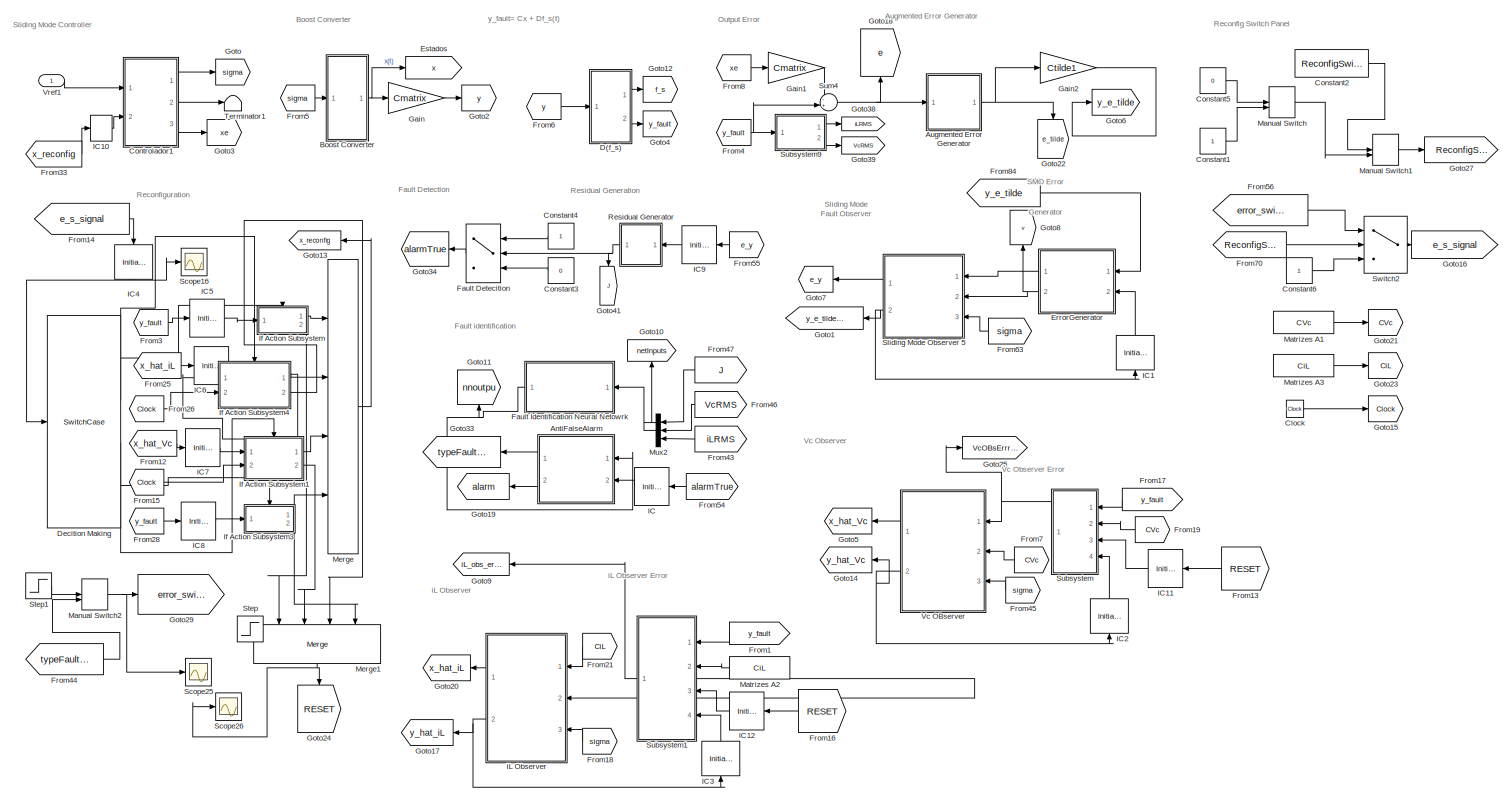
[diagram: Subsystem3 - part 1/3, left side, full height]
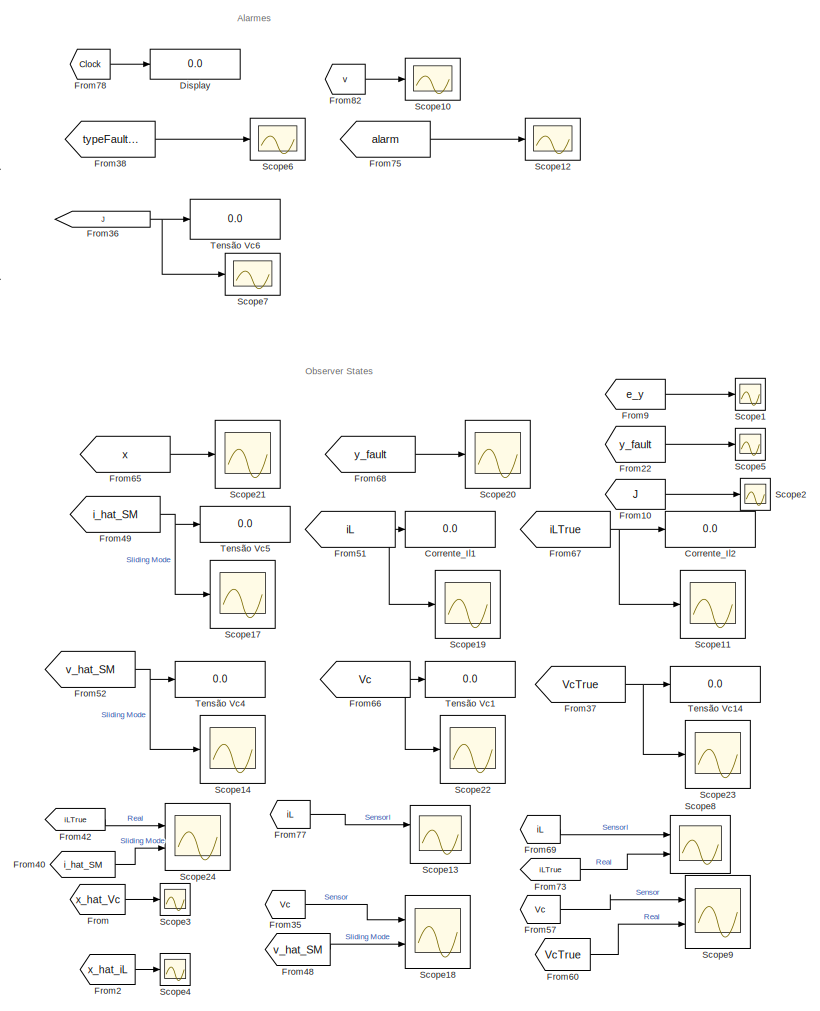
[diagram: Subsystem3 - part 2/3, right side, full height]
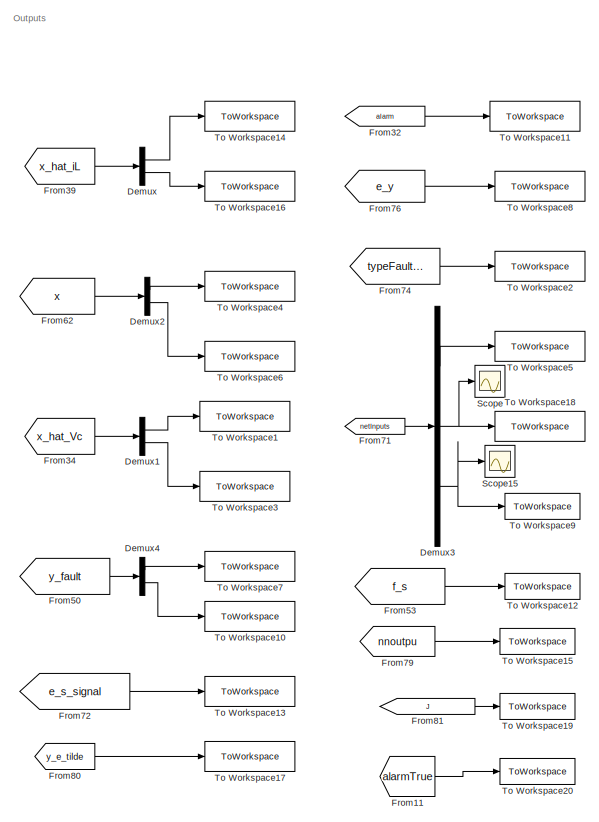
[diagram: Subsystem3 - part 3/3, right side, full height]
BLOCK [SubSystem] Subsystem3
  Commented = on
  NameLocation = left
  Ports = [1]
  RequestExecContextInheritance = off
BLOCK [SubSystem] Subsystem3/AntiFalseAlarm
  NameLocation = top
  Ports = [2, 2]
  RequestExecContextInheritance = off
BLOCK [Inport] Subsystem3/AntiFalseAlarm/Alarm
  Port = 2
BLOCK [Outport] Subsystem3/AntiFalseAlarm/AlarmOut
  Port = 2
BLOCK [Constant] Subsystem3/AntiFalseAlarm/Constant7
  NameLocation = left
BLOCK [Outport] Subsystem3/AntiFalseAlarm/FaultClass
BLOCK [Switch] Subsystem3/AntiFalseAlarm/FaultDetecition1
  Criteria = u2 > Threshold
  InputSameDT = off
  SaturateOnIntegerOverflow = off
BLOCK [Inport] Subsystem3/AntiFalseAlarm/PRNN
BLOCK [Product] Subsystem3/AntiFalseAlarm/Product1
  NameLocation = top
  Ports = [2, 1]
BLOCK [Step] Subsystem3/AntiFalseAlarm/Step1
  NameLocation = left
  SampleTime = 0
  Time = AlarmDeadTime
BLOCK [SubSystem] Subsystem3/Augmented Error Generator
  Ports = [1, 1]
  RequestExecContextInheritance = off
BLOCK [Mux] Subsystem3/Augmented Error Generator/Mux
  DisplayOption = bar
  Inputs = 2
  Ports = [2, 1]
BLOCK [Inport] Subsystem3/Augmented Error Generator/e
BLOCK [Outport] Subsystem3/Augmented Error Generator/e_tilde
BLOCK [SubSystem] Subsystem3/Augmented Error Generator/z1
  Ports = [1, 1]
  RequestExecContextInheritance = off
BLOCK [Constant] Subsystem3/Augmented Error Generator/z1/Constant1
  Value = [0;0]
  VectorParams1D = off
BLOCK [Gain] Subsystem3/Augmented Error Generator/z1/Gain2
  Gain = Cmatrix
  Multiplication = Matrix(K*u) (u vector)
BLOCK [Integrator] Subsystem3/Augmented Error Generator/z1/Integrator6
  InitialConditionSource = external
  Ports = [2, 1]
BLOCK [Outport] Subsystem3/Augmented Error Generator/z1/z
BLOCK [Inport] Subsystem3/Augmented Error Generator/z1/z_dot
BLOCK [SubSystem] Subsystem3/Boost Converter
  Ports = [1, 1]
  RequestExecContextInheritance = off
BLOCK [SubSystem] Subsystem3/Boost Converter/ConversorBoost
  Ports = [6, 4]
  RequestExecContextInheritance = off
BLOCK [Reference] Subsystem3/Boost Converter/ConversorBoost/C  REF=powerlib/Elements/Series RLC Branch
  NameLocation = left
  Ports = [0, 0, 0, 0, 0, 1, 1]
  SourceBlock = powerlib/Elements/Series RLC Branch
  SourceProductBaseCode = PS
  SourceType = Series RLC Branch
BLOCK [Reference] Subsystem3/Boost Converter/ConversorBoost/Ground  REF=powerlib/Elements/Ground
  NameLocation = right
  Ports = [0, 0, 0, 0, 0, 1]
  SourceBlock = powerlib/Elements/Ground
  SourceProductBaseCode = PS
  SourceType = Ground
BLOCK [Reference] Subsystem3/Boost Converter/ConversorBoost/IL  REF=powerlib/Measurements/Current Measurement
  Ports = [0, 1, 0, 0, 0, 1, 1]
  SourceBlock = powerlib/Measurements/Current Measurement
  SourceProductBaseCode = PS
  SourceType = Current Measurement
  UserDataPersistent = on
BLOCK [Reference] Subsystem3/Boost Converter/ConversorBoost/Iro  REF=powerlib/Measurements/Current Measurement
  Ports = [0, 1, 0, 0, 0, 1, 1]
  SourceBlock = powerlib/Measurements/Current Measurement
  SourceProductBaseCode = PS
  SourceType = Current Measurement
  UserDataPersistent = on
BLOCK [Reference] Subsystem3/Boost Converter/ConversorBoost/L  REF=powerlib/Elements/Series RLC Branch
  Ports = [0, 0, 0, 0, 0, 1, 1]
  SourceBlock = powerlib/Elements/Series RLC Branch
  SourceProductBaseCode = PS
  SourceType = Series RLC Branch
BLOCK [Reference] Subsystem3/Boost Converter/ConversorBoost/R  REF=powerlib/Elements/Series RLC Branch
  Ports = [0, 0, 0, 0, 0, 1, 1]
  SourceBlock = powerlib/Elements/Series RLC Branch
  SourceProductBaseCode = PS
  SourceType = Series RLC Branch
BLOCK [Inport] Subsystem3/Boost Converter/ConversorBoost/Rinput
  NameLocation = left
  Port = 5
BLOCK [Reference] Subsystem3/Boost Converter/ConversorBoost/Ro  REF=powerlib/Elements/Series RLC Branch
  NameLocation = left
  Ports = [0, 0, 0, 0, 0, 1, 1]
  SourceBlock = powerlib/Elements/Series RLC Branch
  SourceProductBaseCode = PS
  SourceType = Series RLC Branch
BLOCK [Inport] Subsystem3/Boost Converter/ConversorBoost/Rparallelinput
  NameLocation = left
  Port = 6
BLOCK [Reference] Subsystem3/Boost Converter/ConversorBoost/Rvariavel1  REF=powerlib/Elements/Series RLC Branch
  NameLocation = right
  Ports = [0, 0, 0, 0, 0, 1, 1]
  SourceBlock = powerlib/Elements/Series RLC Branch
  SourceProductBaseCode = PS
  SourceType = Series RLC Branch
BLOCK [Reference] Subsystem3/Boost Converter/ConversorBoost/Rvariavel2  REF=powerlib/Elements/Series RLC Branch
  NameLocation = right
  Ports = [0, 0, 0, 0, 0, 1, 1]
  SourceBlock = powerlib/Elements/Series RLC Branch
  SourceProductBaseCode = PS
  SourceType = Series RLC Branch
BLOCK [Reference] Subsystem3/Boost Converter/ConversorBoost/S1  REF=powerlib/Power
Electronics/Mosfet
  NameLocation = left
  Ports = [1, 1, 0, 0, 0, 1, 1]
  SourceBlock = powerlib/Power\nElectronics/Mosfet
  SourceProductBaseCode = PS
  SourceType = Mosfet
BLOCK [Reference] Subsystem3/Boost Converter/ConversorBoost/S2  REF=powerlib/Power
Electronics/Diode
  Ports = [0, 1, 0, 0, 0, 1, 1]
  SourceBlock = powerlib/Power\nElectronics/Diode
  SourceProductBaseCode = PS
  SourceType = Diode
BLOCK [Reference] Subsystem3/Boost Converter/ConversorBoost/S3  REF=powerlib/Power
Electronics/Ideal Switch
  NameLocation = left
  Ports = [1, 1, 0, 0, 0, 1, 1]
  SourceBlock = powerlib/Power\nElectronics/Ideal Switch
  SourceProductBaseCode = PS
  SourceType = Ideal Switch
BLOCK [Reference] Subsystem3/Boost Converter/ConversorBoost/S4  REF=powerlib/Power
Electronics/Ideal Switch
  NameLocation = left
  Ports = [1, 1, 0, 0, 0, 1, 1]
  SourceBlock = powerlib/Power\nElectronics/Ideal Switch
  SourceProductBaseCode = PS
  SourceType = Ideal Switch
BLOCK [Reference] Subsystem3/Boost Converter/ConversorBoost/S5  REF=powerlib/Power
Electronics/Ideal Switch
  NameLocation = left
  Ports = [1, 1, 0, 0, 0, 1, 1]
  SourceBlock = powerlib/Power\nElectronics/Ideal Switch
  SourceProductBaseCode = PS
  SourceType = Ideal Switch
BLOCK [Reference] Subsystem3/Boost Converter/ConversorBoost/S6  REF=powerlib/Power
Electronics/Ideal Switch
  NameLocation = left
  Ports = [1, 1, 0, 0, 0, 1, 1]
  SourceBlock = powerlib/Power\nElectronics/Ideal Switch
  SourceProductBaseCode = PS
  SourceType = Ideal Switch
BLOCK [Reference] Subsystem3/Boost Converter/ConversorBoost/S7  REF=powerlib/Power
Electronics/Ideal Switch
  NameLocation = left
  Ports = [1, 1, 0, 0, 0, 1, 1]
  SourceBlock = powerlib/Power\nElectronics/Ideal Switch
  SourceProductBaseCode = PS
  SourceType = Ideal Switch
BLOCK [Display] Subsystem3/Boost Converter/ConversorBoost/Tensão Ve1
  Decimation = 1
  Ports = [1]
BLOCK [Terminator] Subsystem3/Boost Converter/ConversorBoost/Terminator
BLOCK [Terminator] Subsystem3/Boost Converter/ConversorBoost/Terminator1
BLOCK [Terminator] Subsystem3/Boost Converter/ConversorBoost/Terminator2
BLOCK [Terminator] Subsystem3/Boost Converter/ConversorBoost/Terminator3
BLOCK [Terminator] Subsystem3/Boost Converter/ConversorBoost/Terminator4
BLOCK [Terminator] Subsystem3/Boost Converter/ConversorBoost/Terminator5
BLOCK [Terminator] Subsystem3/Boost Converter/ConversorBoost/Terminator6
BLOCK [Outport] Subsystem3/Boost Converter/ConversorBoost/Vcoutput
  Port = 2
BLOCK [Inport] Subsystem3/Boost Converter/ConversorBoost/Vinput1
  NameLocation = left
  Port = 2
BLOCK [Inport] Subsystem3/Boost Converter/ConversorBoost/Vinput2
  NameLocation = left
  Port = 3
BLOCK [Inport] Subsystem3/Boost Converter/ConversorBoost/Vinput3
  NameLocation = left
  Port = 4
BLOCK [Reference] Subsystem3/Boost Converter/ConversorBoost/Voltage Measurement  REF=powerlib/Measurements/Voltage Measurement
  Ports = [0, 1, 0, 0, 0, 2]
  SourceBlock = powerlib/Measurements/Voltage Measurement
  SourceProductBaseCode = PS
  SourceType = Voltage Measurement
BLOCK [Reference] Subsystem3/Boost Converter/ConversorBoost/Voltage Measurement1  REF=powerlib/Measurements/Voltage Measurement
  Ports = [0, 1, 0, 0, 0, 2]
  SourceBlock = powerlib/Measurements/Voltage Measurement
  SourceProductBaseCode = PS
  SourceType = Voltage Measurement
BLOCK [Outport] Subsystem3/Boost Converter/ConversorBoost/Vu
  NameLocation = top
  Port = 4
BLOCK [Outport] Subsystem3/Boost Converter/ConversorBoost/iLoutput
BLOCK [Outport] Subsystem3/Boost Converter/ConversorBoost/iro
  Port = 3
BLOCK [Inport] Subsystem3/Boost Converter/ConversorBoost/sigma
  NameLocation = left
BLOCK [Reference] Subsystem3/Boost Converter/ConversorBoost/u  REF=powerlib/Electrical
Sources/DC Voltage Source
  NameLocation = right
  Ports = [0, 0, 0, 0, 0, 1, 1]
  SourceBlock = powerlib/Electrical\nSources/DC Voltage Source
  SourceProductBaseCode = PS
  SourceType = DC Voltage Source
BLOCK [Reference] Subsystem3/Boost Converter/ConversorBoost/u1  REF=powerlib/Electrical
Sources/DC Voltage Source
  NameLocation = left
  Ports = [0, 0, 0, 0, 0, 1, 1]
  SourceBlock = powerlib/Electrical\nSources/DC Voltage Source
  SourceProductBaseCode = PS
  SourceType = DC Voltage Source
BLOCK [Reference] Subsystem3/Boost Converter/ConversorBoost/u2  REF=powerlib/Electrical
Sources/DC Voltage Source
  NameLocation = right
  Ports = [0, 0, 0, 0, 0, 1, 1]
  SourceBlock = powerlib/Electrical\nSources/DC Voltage Source
  SourceProductBaseCode = PS
  SourceType = DC Voltage Source
BLOCK [Reference] Subsystem3/Boost Converter/ConversorBoost/u3  REF=powerlib/Electrical
Sources/DC Voltage Source
  NameLocation = right
  Ports = [0, 0, 0, 0, 0, 1, 1]
  SourceBlock = powerlib/Electrical\nSources/DC Voltage Source
  SourceProductBaseCode = PS
  SourceType = DC Voltage Source
BLOCK [Reference] Subsystem3/Boost Converter/ConversorBoost/u4  REF=powerlib/Electrical
Sources/DC Voltage Source
  NameLocation = right
  Ports = [0, 0, 0, 0, 0, 1, 1]
  SourceBlock = powerlib/Electrical\nSources/DC Voltage Source
  SourceProductBaseCode = PS
  SourceType = DC Voltage Source
BLOCK [From] Subsystem3/Boost Converter/From
  GotoTag = Rparallelinput
BLOCK [From] Subsystem3/Boost Converter/From4
  GotoTag = Vinput1
BLOCK [From] Subsystem3/Boost Converter/From5
  GotoTag = Vinput2
BLOCK [From] Subsystem3/Boost Converter/From6
  GotoTag = Rinput
BLOCK [From] Subsystem3/Boost Converter/From8
  GotoTag = Vinput3
BLOCK [Goto] Subsystem3/Boost Converter/Goto
  GotoTag = Vinput3
BLOCK [Goto] Subsystem3/Boost Converter/Goto1
  GotoTag = Rparallelinput
BLOCK [Goto] Subsystem3/Boost Converter/Goto4
  GotoTag = Vinput2
BLOCK [Goto] Subsystem3/Boost Converter/Goto5
  GotoTag = Vinput1
BLOCK [Goto] Subsystem3/Boost Converter/Goto6
  GotoTag = Rinput
BLOCK [Mux] Subsystem3/Boost Converter/Mux1
  DisplayOption = bar
  Inputs = 2
  Ports = [2, 1]
BLOCK [Terminator] Subsystem3/Boost Converter/Terminator
BLOCK [Terminator] Subsystem3/Boost Converter/Terminator1
BLOCK [SubSystem] Subsystem3/Boost Converter/TipoEntrada
  Ports = [0, 5]
  RequestExecContextInheritance = off
BLOCK [Constant] Subsystem3/Boost Converter/TipoEntrada/Constant1
  Value = LoadAddSwitch
BLOCK [Constant] Subsystem3/Boost Converter/TipoEntrada/Constant11
  Value = SourceRemoveSwitch
BLOCK [Constant] Subsystem3/Boost Converter/TipoEntrada/Constant2
  Value = SourceAddSignalSwitch
BLOCK [Constant] Subsystem3/Boost Converter/TipoEntrada/Constant3
  Value = LoadAddSignalSwitch
BLOCK [Constant] Subsystem3/Boost Converter/TipoEntrada/Constant4
  Value = SourceAddSwitch
BLOCK [Constant] Subsystem3/Boost Converter/TipoEntrada/Constant5
  Value = LoadRemoveSwitch
BLOCK [Constant] Subsystem3/Boost Converter/TipoEntrada/Constant6
  Value = LoadRemoveSignalSwitch
BLOCK [Constant] Subsystem3/Boost Converter/TipoEntrada/Constant7
  Value = SourceRemoveSignalSwitch
BLOCK [Constant] Subsystem3/Boost Converter/TipoEntrada/Constant8
  Value = SourceRemoveSwitch
BLOCK [From] Subsystem3/Boost Converter/TipoEntrada/From1
  GotoTag = VinputAdd
BLOCK [From] Subsystem3/Boost Converter/TipoEntrada/From3
  GotoTag = VinputRemove
BLOCK [Goto] Subsystem3/Boost Converter/TipoEntrada/Goto2
  GotoTag = VinputAdd
BLOCK [Goto] Subsystem3/Boost Converter/TipoEntrada/Goto3
  GotoTag = VinputRemove
BLOCK [Logic] Subsystem3/Boost Converter/TipoEntrada/Logical Operator
  AllPortsSameDT = off
  Operator = NOT
  OutDataTypeStr = boolean
  Ports = [1, 1]
BLOCK [Logic] Subsystem3/Boost Converter/TipoEntrada/Logical Operator1
  AllPortsSameDT = off
  Operator = NOT
  OutDataTypeStr = boolean
  Ports = [1, 1]
BLOCK [Logic] Subsystem3/Boost Converter/TipoEntrada/Logical Operator2
  AllPortsSameDT = off
  Operator = NOT
  OutDataTypeStr = boolean
  Ports = [1, 1]
BLOCK [Logic] Subsystem3/Boost Converter/TipoEntrada/Logical Operator3
  AllPortsSameDT = off
  Operator = NOT
  OutDataTypeStr = boolean
  Ports = [1, 1]
BLOCK [Outport] Subsystem3/Boost Converter/TipoEntrada/Rparallelvariavel 
  Port = 5
BLOCK [Outport] Subsystem3/Boost Converter/TipoEntrada/Rvariavel 
  Port = 4
BLOCK [Constant] Subsystem3/Boost Converter/TipoEntrada/Sem Disturbio
BLOCK [Constant] Subsystem3/Boost Converter/TipoEntrada/Sem Disturbio  
  Value = 0
BLOCK [Constant] Subsystem3/Boost Converter/TipoEntrada/Sen Disturbiio
  Value = 0
BLOCK [Constant] Subsystem3/Boost Converter/TipoEntrada/Sen Disturbiio1
  Value = 0
BLOCK [Step] Subsystem3/Boost Converter/TipoEntrada/Step
  After = 0
  Before = 1
  SampleTime = 0
  Time = LoadAddTime
BLOCK [Step] Subsystem3/Boost Converter/TipoEntrada/Step1
  SampleTime = 0
  Time = SourceAddTime
BLOCK [Step] Subsystem3/Boost Converter/TipoEntrada/Step2
  SampleTime = 0
  Time = LoadRemoveTime
BLOCK [Step] Subsystem3/Boost Converter/TipoEntrada/Step3
  SampleTime = 0
  Time = SourceRemoveTime
BLOCK [Switch] Subsystem3/Boost Converter/TipoEntrada/Switch1
  Criteria = u2 ~= 0
  InputSameDT = off
  SaturateOnIntegerOverflow = off
BLOCK [Switch] Subsystem3/Boost Converter/TipoEntrada/Switch10
  Criteria = u2 ~= 0
  InputSameDT = off
  SaturateOnIntegerOverflow = off
BLOCK [Switch] Subsystem3/Boost Converter/TipoEntrada/Switch2
  Criteria = u2 ~= 0
  InputSameDT = off
  SaturateOnIntegerOverflow = off
BLOCK [Switch] Subsystem3/Boost Converter/TipoEntrada/Switch3
  Criteria = u2 ~= 0
  InputSameDT = off
  SaturateOnIntegerOverflow = off
BLOCK [Switch] Subsystem3/Boost Converter/TipoEntrada/Switch5
  Criteria = u2 ~= 0
  InputSameDT = off
  SaturateOnIntegerOverflow = off
BLOCK [Switch] Subsystem3/Boost Converter/TipoEntrada/Switch6
  Criteria = u2 ~= 0
  InputSameDT = off
  SaturateOnIntegerOverflow = off
BLOCK [Switch] Subsystem3/Boost Converter/TipoEntrada/Switch7
  Criteria = u2 ~= 0
  InputSameDT = off
  SaturateOnIntegerOverflow = off
BLOCK [Switch] Subsystem3/Boost Converter/TipoEntrada/Switch8
  Criteria = u2 ~= 0
  InputSameDT = off
  SaturateOnIntegerOverflow = off
BLOCK [Switch] Subsystem3/Boost Converter/TipoEntrada/Switch9
  Criteria = u2 ~= 0
  InputSameDT = off
  SaturateOnIntegerOverflow = off
BLOCK [Outport] Subsystem3/Boost Converter/TipoEntrada/Vu
BLOCK [Outport] Subsystem3/Boost Converter/TipoEntrada/VuAdd
  Port = 2
BLOCK [Outport] Subsystem3/Boost Converter/TipoEntrada/VuRemove
  Port = 3
BLOCK [SubSystem] Subsystem3/Boost Converter/TipoEntrada/disturbio
  Ports = [0, 1]
  RequestExecContextInheritance = off
BLOCK [Step] Subsystem3/Boost Converter/TipoEntrada/disturbio/Step1
  SampleTime = 0
BLOCK [Step] Subsystem3/Boost Converter/TipoEntrada/disturbio/Step2
  After = -1
  SampleTime = 0
  Time = 1.1
BLOCK [Sum] Subsystem3/Boost Converter/TipoEntrada/disturbio/Sum
  Inputs = |++
  Ports = [2, 1]
BLOCK [Outport] Subsystem3/Boost Converter/TipoEntrada/disturbio/disturbio
BLOCK [SubSystem] Subsystem3/Boost Converter/TipoEntrada/disturbio1
  Ports = [0, 1]
  RequestExecContextInheritance = off
BLOCK [Step] Subsystem3/Boost Converter/TipoEntrada/disturbio1/Step1
  SampleTime = 0
  Time = 1.2
BLOCK [Step] Subsystem3/Boost Converter/TipoEntrada/disturbio1/Step2
  After = -1
  SampleTime = 0
  Time = 1.4
BLOCK [Sum] Subsystem3/Boost Converter/TipoEntrada/disturbio1/Sum
  Inputs = |++
  Ports = [2, 1]
BLOCK [Outport] Subsystem3/Boost Converter/TipoEntrada/disturbio1/disturbio
BLOCK [SubSystem] Subsystem3/Boost Converter/TipoEntrada/disturbio2
  Ports = [0, 1]
  RequestExecContextInheritance = off
BLOCK [Step] Subsystem3/Boost Converter/TipoEntrada/disturbio2/Step1
  SampleTime = 0
  Time = 1.2
BLOCK [Step] Subsystem3/Boost Converter/TipoEntrada/disturbio2/Step2
  After = -1
  SampleTime = 0
  Time = 1.4
BLOCK [Sum] Subsystem3/Boost Converter/TipoEntrada/disturbio2/Sum
  Inputs = |++
  Ports = [2, 1]
BLOCK [Outport] Subsystem3/Boost Converter/TipoEntrada/disturbio2/disturbio
BLOCK [SubSystem] Subsystem3/Boost Converter/TipoEntrada/disturbio3
  Ports = [0, 1]
  RequestExecContextInheritance = off
BLOCK [Step] Subsystem3/Boost Converter/TipoEntrada/disturbio3/Step1
  SampleTime = 0
BLOCK [Step] Subsystem3/Boost Converter/TipoEntrada/disturbio3/Step2
  After = -1
  SampleTime = 0
  Time = 1.1
BLOCK [Sum] Subsystem3/Boost Converter/TipoEntrada/disturbio3/Sum
  Inputs = |++
  Ports = [2, 1]
BLOCK [Outport] Subsystem3/Boost Converter/TipoEntrada/disturbio3/disturbio
BLOCK [Inport] Subsystem3/Boost Converter/sigma
  NameLocation = left
BLOCK [Outport] Subsystem3/Boost Converter/x
  NameLocation = top
BLOCK [Clock] Subsystem3/Clock
BLOCK [Constant] Subsystem3/Constant1
BLOCK [Constant] Subsystem3/Constant2
  Value = ReconfigSwitch
BLOCK [Constant] Subsystem3/Constant3
  Value = 0
BLOCK [Constant] Subsystem3/Constant4
BLOCK [Constant] Subsystem3/Constant5
  Value = 0
BLOCK [Constant] Subsystem3/Constant6
BLOCK [SubSystem] Subsystem3/Controlador1
  Ports = [2, 3]
  RequestExecContextInheritance = off
BLOCK [Constant] Subsystem3/Controlador1/    
  NameLocation = right
  Value = ueq
BLOCK [Constant] Subsystem3/Controlador1/    2
  NameLocation = top
  Value = Smep
BLOCK [Constant] Subsystem3/Controlador1/Constant6
  Value = boost_parameters
BLOCK [Demux] Subsystem3/Controlador1/Demux1
  Outputs = 2
  Ports = [1, 2]
BLOCK [Demux] Subsystem3/Controlador1/Demux2
  Outputs = 2
  Ports = [1, 2]
BLOCK [Gain] Subsystem3/Controlador1/Gain
  Gain = 0.8
  NameLocation = top
BLOCK [Gain] Subsystem3/Controlador1/Gain1
  Gain = 8
  NameLocation = top
BLOCK [Gain] Subsystem3/Controlador1/Gain3
  Gain = 2.3
  NameLocation = top
BLOCK [Integrator] Subsystem3/Controlador1/Integrator1
  NameLocation = top
  Ports = [1, 1]
BLOCK [Reference] Subsystem3/Controlador1/PWM  REF=powerlib_meascontrol/Pulse & Signal
Generators/PWM Generator
(DC-DC)
  NameLocation = top
  Ports = [1, 1]
  SourceBlock = powerlib_meascontrol/Pulse & Signal\nGenerators/PWM Generator\n(DC-DC)
  SourceProductBaseCode = PS
  SourceType = PWM Generator (DC-DC)
BLOCK [SubSystem] Subsystem3/Controlador1/SlidingSurface
  NameLocation = top
  Ports = [2, 1]
  RequestExecContextInheritance = off
BLOCK [Abs] Subsystem3/Controlador1/SlidingSurface/Abs
  SaturateOnIntegerOverflow = off
BLOCK [From] Subsystem3/Controlador1/SlidingSurface/From
  GotoTag = ep
BLOCK [From] Subsystem3/Controlador1/SlidingSurface/From1
  GotoTag = S
BLOCK [Goto] Subsystem3/Controlador1/SlidingSurface/Goto
  GotoTag = S
BLOCK [Goto] Subsystem3/Controlador1/SlidingSurface/Goto1
  GotoTag = ep
BLOCK [RelationalOperator] Subsystem3/Controlador1/SlidingSurface/GreaterThan
  InputSameDT = off
  Operator = >
  OutDataTypeStr = boolean
  Ports = [2, 1]
  RndMeth = Simplest
BLOCK [If] Subsystem3/Controlador1/SlidingSurface/If
  IfExpression = u1 ~= 0
  Ports = [1, 2]
BLOCK [SubSystem] Subsystem3/Controlador1/SlidingSurface/If Action Subsystem
  Ports = [1, 1, 0, 0, 0, 0, 0, 1]
  RequestExecContextInheritance = off
  TreatAsAtomicUnit = on
BLOCK [ActionPort] Subsystem3/Controlador1/SlidingSurface/If Action Subsystem/Action Port
BLOCK [Inport] Subsystem3/Controlador1/SlidingSurface/If Action Subsystem/S
BLOCK [Signum] Subsystem3/Controlador1/SlidingSurface/If Action Subsystem/Sign
BLOCK [Outport] Subsystem3/Controlador1/SlidingSurface/If Action Subsystem/d
BLOCK [SubSystem] Subsystem3/Controlador1/SlidingSurface/If Action Subsystem2
  Ports = [2, 1, 0, 0, 0, 0, 0, 1]
  RequestExecContextInheritance = off
  TreatAsAtomicUnit = on
BLOCK [ActionPort] Subsystem3/Controlador1/SlidingSurface/If Action Subsystem2/Action Port
BLOCK [Product] Subsystem3/Controlador1/SlidingSurface/If Action Subsystem2/Divide
  Inputs = */
  Ports = [2, 1]
BLOCK [Inport] Subsystem3/Controlador1/SlidingSurface/If Action Subsystem2/S
BLOCK [Outport] Subsystem3/Controlador1/SlidingSurface/If Action Subsystem2/d
BLOCK [Inport] Subsystem3/Controlador1/SlidingSurface/If Action Subsystem2/ep
  Port = 2
BLOCK [Merge] Subsystem3/Controlador1/SlidingSurface/Merge1
  Ports = [2, 1]
BLOCK [Inport] Subsystem3/Controlador1/SlidingSurface/S
BLOCK [Outport] Subsystem3/Controlador1/SlidingSurface/d
BLOCK [Inport] Subsystem3/Controlador1/SlidingSurface/ep
  Port = 2
BLOCK [Sum] Subsystem3/Controlador1/Sum
  Inputs = |++
  NameLocation = top
  Ports = [2, 1]
BLOCK [Sum] Subsystem3/Controlador1/Sum4
  Inputs = ++|
  NameLocation = top
  Ports = [2, 1]
BLOCK [Sum] Subsystem3/Controlador1/Sum5
  Inputs = -+|
  NameLocation = top
  Ports = [2, 1]
BLOCK [Sum] Subsystem3/Controlador1/Sum6
  Inputs = -+|
  NameLocation = top
  Ports = [2, 1]
BLOCK [Sum] Subsystem3/Controlador1/Sum9
  Inputs = |++
  NameLocation = top
  Ports = [2, 1]
BLOCK [Outport] Subsystem3/Controlador1/i_e
  Port = 2
BLOCK [Outport] Subsystem3/Controlador1/sigma
  NameLocation = top
BLOCK [Inport] Subsystem3/Controlador1/ve
BLOCK [Inport] Subsystem3/Controlador1/x
  Port = 2
BLOCK [Outport] Subsystem3/Controlador1/x_e
  Port = 3
BLOCK [SubSystem] Subsystem3/Controlador1/xe
  ErrorFcn = Stateflow.Translate.translate
  PermitHierarchicalResolution = ExplicitOnly
  Ports = [2, 2]
  RequestExecContextInheritance = off
  SFBlockType = MATLAB Function
  TreatAsAtomicUnit = on
BLOCK [Demux] Subsystem3/Controlador1/xe/ Demux 
  Outputs = 1
  Ports = [1, 1]
BLOCK [S-Function] Subsystem3/Controlador1/xe/ SFunction 
  EnableBusSupport = on
  FunctionName = sf_sfun
  PortCounts = [2 3]
  Ports = [2, 3]
  SFcnIsStateOwnerBlock = off
  SFunctionDeploymentMode = off
  Tag = Stateflow S-Function 13
BLOCK [Terminator] Subsystem3/Controlador1/xe/ Terminator 
BLOCK [Inport] Subsystem3/Controlador1/xe/boost_parameters
BLOCK [Outport] Subsystem3/Controlador1/xe/i_e
  Port = 2
BLOCK [Inport] Subsystem3/Controlador1/xe/ve
  Port = 2
BLOCK [Outport] Subsystem3/Controlador1/xe/x_e
BLOCK [Display] Subsystem3/Corrente_Il1
  Commented = on
  Decimation = 1
  Ports = [1]
BLOCK [Display] Subsystem3/Corrente_Il2
  Commented = on
  Decimation = 1
  Ports = [1]
BLOCK [SubSystem] Subsystem3/D(f_s)
  Ports = [1, 2]
  RequestExecContextInheritance = off
BLOCK [Constant] Subsystem3/D(f_s)/Constant
  NameLocation = left
  Value = D1
BLOCK [Constant] Subsystem3/D(f_s)/Constant1
  Value = VcFaultSwitch
BLOCK [Constant] Subsystem3/D(f_s)/Constant2
  Value = iLGainFaultFactor
BLOCK [Constant] Subsystem3/D(f_s)/Constant3
  Value = VcNoiseFaultSwitch
BLOCK [Constant] Subsystem3/D(f_s)/Constant4
  Value = VcGainFaultFactor
BLOCK [Constant] Subsystem3/D(f_s)/Constant7
  Value = iLFaultSwitch
BLOCK [Constant] Subsystem3/D(f_s)/Constant8
  Value = iLNoiseFaultSwitch
BLOCK [Demux] Subsystem3/D(f_s)/Demux
  Outputs = 2
  Ports = [1, 2]
BLOCK [From] Subsystem3/D(f_s)/From
  GotoTag = y
BLOCK [From] Subsystem3/D(f_s)/From1
  GotoTag = VcOutput
BLOCK [From] Subsystem3/D(f_s)/From2
  GotoTag = iLoutput
BLOCK [Goto] Subsystem3/D(f_s)/Goto
  GotoTag = iLoutput
BLOCK [Goto] Subsystem3/D(f_s)/Goto1
  GotoTag = VcOutput
BLOCK [Goto] Subsystem3/D(f_s)/Goto2
  GotoTag = y
BLOCK [Product] Subsystem3/D(f_s)/Matrix Multiply
  Multiplication = Matrix(*)
  Ports = [2, 1]
BLOCK [Mux] Subsystem3/D(f_s)/Mux
  DisplayOption = bar
  Inputs = 2
  Ports = [2, 1]
BLOCK [Step] Subsystem3/D(f_s)/Step10
  SampleTime = 0
  Time = VcFaultTime
BLOCK [Step] Subsystem3/D(f_s)/Step2
  SampleTime = 0
  Time = VcNoiseTime
BLOCK [Step] Subsystem3/D(f_s)/Step8
  SampleTime = 0
  Time = iLFaultTime
BLOCK [Step] Subsystem3/D(f_s)/Step9
  SampleTime = 0
  Time = iLNoiseTime
BLOCK [SubSystem] Subsystem3/D(f_s)/Subsystem
  Ports = [6, 1]
  RequestExecContextInheritance = off
BLOCK [Constant] Subsystem3/D(f_s)/Subsystem/Constant11
  Value = 0
BLOCK [Constant] Subsystem3/D(f_s)/Subsystem/Constant9
  Value = 0
BLOCK [Inport] Subsystem3/D(f_s)/Subsystem/FaultFactor
  Port = 6
BLOCK [Inport] Subsystem3/D(f_s)/Subsystem/FaultStep
  Port = 2
BLOCK [Inport] Subsystem3/D(f_s)/Subsystem/FaultSwtich
  Port = 4
BLOCK [Inport] Subsystem3/D(f_s)/Subsystem/NoiseFaultSwitch
  Port = 5
BLOCK [Inport] Subsystem3/D(f_s)/Subsystem/NoiseStep
  Port = 3
BLOCK [Product] Subsystem3/D(f_s)/Subsystem/Product
  Ports = [2, 1]
BLOCK [SubSystem] Subsystem3/D(f_s)/Subsystem/Subsystem
  Ports = [1, 1]
  RequestExecContextInheritance = off
BLOCK [Sum] Subsystem3/D(f_s)/Subsystem/Subsystem/Add
  IconShape = rectangular
  Ports = [2, 1]
BLOCK [Reference] Subsystem3/D(f_s)/Subsystem/Subsystem/Band-Limited White Noise  REF=simulink/Sources/Band-Limited
White Noise
  Ports = [0, 1]
  SourceBlock = simulink/Sources/Band-Limited\nWhite Noise
  SourceProductBaseCode = SL
  SourceType = Band-Limited White Noise.
BLOCK [Inport] Subsystem3/D(f_s)/Subsystem/Subsystem/input
BLOCK [Outport] Subsystem3/D(f_s)/Subsystem/Subsystem/noiseOutput
BLOCK [Switch] Subsystem3/D(f_s)/Subsystem/Switch10
  Criteria = u2 ~= 0
  InputSameDT = off
  SaturateOnIntegerOverflow = off
BLOCK [Switch] Subsystem3/D(f_s)/Subsystem/Switch11
  Criteria = u2 ~= 0
  InputSameDT = off
  SaturateOnIntegerOverflow = off
BLOCK [Switch] Subsystem3/D(f_s)/Subsystem/Switch13
  Criteria = u2 ~= 0
  InputSameDT = off
  SaturateOnIntegerOverflow = off
BLOCK [Switch] Subsystem3/D(f_s)/Subsystem/Switch9
  Criteria = u2 ~= 0
  InputSameDT = off
  SaturateOnIntegerOverflow = off
BLOCK [MultiPortSwitch] Subsystem3/D(f_s)/Subsystem/iLFault Switch
  DataPortForDefault = Additional data port
  DataPortOrder = Zero-based contiguous
  InputSameDT = off
  Ports = [5, 1]
  SaturateOnIntegerOverflow = off
  zeroidx = on
BLOCK [Inport] Subsystem3/D(f_s)/Subsystem/input
BLOCK [Outport] Subsystem3/D(f_s)/Subsystem/output
BLOCK [SubSystem] Subsystem3/D(f_s)/Subsystem2
  Ports = [6, 1]
  RequestExecContextInheritance = off
BLOCK [Constant] Subsystem3/D(f_s)/Subsystem2/Constant11
  Value = 0
BLOCK [Constant] Subsystem3/D(f_s)/Subsystem2/Constant9
  Value = 0
BLOCK [Inport] Subsystem3/D(f_s)/Subsystem2/FaultFactor
  Port = 6
BLOCK [Inport] Subsystem3/D(f_s)/Subsystem2/FaultStep
  Port = 2
BLOCK [Inport] Subsystem3/D(f_s)/Subsystem2/FaultSwtich
  Port = 4
BLOCK [Inport] Subsystem3/D(f_s)/Subsystem2/NoiseFaultSwitch
  Port = 5
BLOCK [Inport] Subsystem3/D(f_s)/Subsystem2/NoiseStep
  Port = 3
BLOCK [Product] Subsystem3/D(f_s)/Subsystem2/Product
  Ports = [2, 1]
BLOCK [SubSystem] Subsystem3/D(f_s)/Subsystem2/Subsystem
  Ports = [1, 1]
  RequestExecContextInheritance = off
BLOCK [Sum] Subsystem3/D(f_s)/Subsystem2/Subsystem/Add
  IconShape = rectangular
  Ports = [2, 1]
BLOCK [Reference] Subsystem3/D(f_s)/Subsystem2/Subsystem/Band-Limited White Noise  REF=simulink/Sources/Band-Limited
White Noise
  Ports = [0, 1]
  SourceBlock = simulink/Sources/Band-Limited\nWhite Noise
  SourceProductBaseCode = SL
  SourceType = Band-Limited White Noise.
BLOCK [Inport] Subsystem3/D(f_s)/Subsystem2/Subsystem/input
BLOCK [Outport] Subsystem3/D(f_s)/Subsystem2/Subsystem/noiseOutput
BLOCK [Switch] Subsystem3/D(f_s)/Subsystem2/Switch10
  Criteria = u2 ~= 0
  InputSameDT = off
  SaturateOnIntegerOverflow = off
BLOCK [Switch] Subsystem3/D(f_s)/Subsystem2/Switch11
  Criteria = u2 ~= 0
  InputSameDT = off
  SaturateOnIntegerOverflow = off
BLOCK [Switch] Subsystem3/D(f_s)/Subsystem2/Switch13
  Criteria = u2 ~= 0
  InputSameDT = off
  SaturateOnIntegerOverflow = off
BLOCK [Switch] Subsystem3/D(f_s)/Subsystem2/Switch9
  Criteria = u2 ~= 0
  InputSameDT = off
  SaturateOnIntegerOverflow = off
  ZeroCross = off
BLOCK [MultiPortSwitch] Subsystem3/D(f_s)/Subsystem2/iLFault Switch
  DataPortForDefault = Additional data port
  DataPortOrder = Zero-based contiguous
  InputSameDT = off
  Ports = [5, 1]
  SaturateOnIntegerOverflow = off
  zeroidx = on
BLOCK [Inport] Subsystem3/D(f_s)/Subsystem2/input
BLOCK [Outport] Subsystem3/D(f_s)/Subsystem2/output
BLOCK [Sum] Subsystem3/D(f_s)/Sum
  Inputs = |+-
  Ports = [2, 1]
BLOCK [Outport] Subsystem3/D(f_s)/f_s
BLOCK [Inport] Subsystem3/D(f_s)/y
BLOCK [Outport] Subsystem3/D(f_s)/y_fault
  Port = 2
BLOCK [SwitchCase] Subsystem3/Decition Making
  CaseConditions = {[1,6],[2,3],[4,5]}
  Ports = [1, 4]
BLOCK [Demux] Subsystem3/Demux
  Outputs = 2
  Ports = [1, 2]
BLOCK [Demux] Subsystem3/Demux1
  Outputs = 2
  Ports = [1, 2]
BLOCK [Demux] Subsystem3/Demux2
  Outputs = 2
  Ports = [1, 2]
BLOCK [Demux] Subsystem3/Demux3
  Outputs = 3
  Ports = [1, 3]
BLOCK [Demux] Subsystem3/Demux4
  Outputs = 2
  Ports = [1, 2]
BLOCK [Display] Subsystem3/Display
  Decimation = 1
  Ports = [1]
BLOCK [SubSystem] Subsystem3/ErrorGenerator
  NameLocation = top
  Ports = [2, 2]
  RequestExecContextInheritance = off
BLOCK [Logic] Subsystem3/ErrorGenerator/AND
  AllPortsSameDT = off
  IconShape = distinctive
  OutDataTypeStr = boolean
  Ports = [2, 1]
BLOCK [Reference] Subsystem3/ErrorGenerator/Compare To Zero  REF=simulink/Logic and Bit
Operations/Compare
To Zero
  Ports = [1, 1]
  SourceBlock = simulink/Logic and Bit\nOperations/Compare\nTo Zero
  SourceProductBaseCode = SL
  SourceType = Compare To Zero
BLOCK [Constant] Subsystem3/ErrorGenerator/Constant1
  Value = [0;0]
BLOCK [Demux] Subsystem3/ErrorGenerator/Demux
  Outputs = 2
  Ports = [1, 2]
BLOCK [From] Subsystem3/ErrorGenerator/From1
  GotoTag = e_y
BLOCK [Goto] Subsystem3/ErrorGenerator/Goto
  GotoTag = e_y
BLOCK [If] Subsystem3/ErrorGenerator/If
  IfExpression = u1 ~= 0
  Ports = [1, 2]
BLOCK [SubSystem] Subsystem3/ErrorGenerator/If Action Subsystem
  Ports = [1, 1, 0, 0, 0, 0, 0, 1]
  RequestExecContextInheritance = off
  TreatAsAtomicUnit = on
BLOCK [ActionPort] Subsystem3/ErrorGenerator/If Action Subsystem/Action Port
BLOCK [Product] Subsystem3/ErrorGenerator/If Action Subsystem/Matrix Multiply
  Multiplication = Matrix(*)
  Ports = [2, 1]
BLOCK [Product] Subsystem3/ErrorGenerator/If Action Subsystem/Matrix Multiply1
  Ports = [2, 1]
BLOCK [Constant] Subsystem3/ErrorGenerator/If Action Subsystem/Matrizes A1
  Value = rho
BLOCK [Constant] Subsystem3/ErrorGenerator/If Action Subsystem/Matrizes A2
  Value = F
BLOCK [Reference] Subsystem3/ErrorGenerator/If Action Subsystem/Normalization  REF=dspmathops/Normalization
  Ports = [1, 1]
  SourceBlock = dspmathops/Normalization
  SourceProductBaseCode = DS
  SourceType = Normalization
BLOCK [Inport] Subsystem3/ErrorGenerator/If Action Subsystem/e_y
BLOCK [Outport] Subsystem3/ErrorGenerator/If Action Subsystem/v
BLOCK [SubSystem] Subsystem3/ErrorGenerator/If Action Subsystem1
  Ports = [1, 1, 0, 0, 0, 0, 0, 1]
  RequestExecContextInheritance = off
  TreatAsAtomicUnit = on
BLOCK [ActionPort] Subsystem3/ErrorGenerator/If Action Subsystem1/Action Port
BLOCK [Inport] Subsystem3/ErrorGenerator/If Action Subsystem1/e_y
BLOCK [Outport] Subsystem3/ErrorGenerator/If Action Subsystem1/v
BLOCK [Merge] Subsystem3/ErrorGenerator/Merge
  InitialOutput = [0;0]
  Ports = [2, 1]
BLOCK [Sum] Subsystem3/ErrorGenerator/Sum
  IconShape = rectangular
  Inputs = |+-
  Ports = [2, 1]
BLOCK [Outport] Subsystem3/ErrorGenerator/e_y
  NameLocation = top
BLOCK [Outport] Subsystem3/ErrorGenerator/v
  Port = 2
BLOCK [Inport] Subsystem3/ErrorGenerator/y_e_tilde
BLOCK [Inport] Subsystem3/ErrorGenerator/y_e_tilde_hat
  Port = 2
BLOCK [Goto] Subsystem3/Estados
  GotoTag = x
  NameLocation = top
BLOCK [Switch] Subsystem3/Fault Detecition
  Criteria = u2 > Threshold
  InputSameDT = off
  SaturateOnIntegerOverflow = off
  Threshold = Jth
  ZeroCross = off
BLOCK [SubSystem] Subsystem3/Fault Identification Neural Netowrk
  Commented = on
  Ports = [1, 1]
  RequestExecContextInheritance = off
BLOCK [Reference] Subsystem3/Fault Identification Neural Netowrk/Maximum  REF=dspstat3/Maximum
  Ports = [1, 2]
  SourceBlock = dspstat3/Maximum
  SourceProductBaseCode = DS
  SourceType = Maximum
  UserDataPersistent = on
BLOCK [Reference] Subsystem3/Fault Identification Neural Netowrk/Median Filter  REF=dspstat3/Median
Filter
  Ports = [1, 1]
  SourceBlock = dspstat3/Median\nFilter
  SourceProductBaseCode = DS
  SourceType = dsp.MedianFilter
BLOCK [SubSystem] Subsystem3/Fault Identification Neural Netowrk/Pattern Recognition Neural Network
  Commented = on
  Ports = [1, 1]
  RequestExecContextInheritance = off
BLOCK [SubSystem] Subsystem3/Fault Identification Neural Netowrk/Pattern Recognition Neural Network Reconfig Big Data
  Commented = on
  Ports = [1, 1]
  RequestExecContextInheritance = off
BLOCK [From] Subsystem3/Fault Identification Neural Netowrk/Pattern Recognition Neural Network Reconfig Big Data/ a{1} 
  GotoTag = feedback1
BLOCK [Inport] Subsystem3/Fault Identification Neural Netowrk/Pattern Recognition Neural Network Reconfig Big Data/Input
  PortDimensions = 3
BLOCK [SubSystem] Subsystem3/Fault Identification Neural Netowrk/Pattern Recognition Neural Network Reconfig Big Data/Layer 1
  Ports = [1, 1]
  RequestExecContextInheritance = off
BLOCK [SubSystem] Subsystem3/Fault Identification Neural Netowrk/Pattern Recognition Neural Network Reconfig Big Data/Layer 1/Delays 1
  Ports = [1, 1]
  RequestExecContextInheritance = off
BLOCK [Mux] Subsystem3/Fault Identification Neural Netowrk/Pattern Recognition Neural Network Reconfig Big Data/Layer 1/Delays 1/mux
  Inputs = 1
  Ports = [1, 1]
BLOCK [Outport] Subsystem3/Fault Identification Neural Netowrk/Pattern Recognition Neural Network Reconfig Big Data/Layer 1/Delays 1/pd{1,1}
BLOCK [Inport] Subsystem3/Fault Identification Neural Netowrk/Pattern Recognition Neural Network Reconfig Big Data/Layer 1/Delays 1/p{1}
  NameLocation = left
  PortDimensions = 3
BLOCK [SubSystem] Subsystem3/Fault Identification Neural Netowrk/Pattern Recognition Neural Network Reconfig Big Data/Layer 1/IW{1,1}
  Ports = [1, 1]
  RequestExecContextInheritance = off
BLOCK [Constant] Subsystem3/Fault Identification Neural Netowrk/Pattern Recognition Neural Network Reconfig Big Data/Layer 1/IW{1,1}/IW{1,1}(1,:)'
  Value = [1.53140401909212808817528639337979257106781005859375;0.6745160709245163754843588321818970143795013427734375;2.095629219820043687150246114470064640045166015625]
BLOCK [Constant] Subsystem3/Fault Identification Neural Netowrk/Pattern Recognition Neural Network Reconfig Big Data/Layer 1/IW{1,1}/IW{1,1}(2,:)'
  Value = [-1.9620277280347646620128898575785569846630096435546875;0.880388097574160699565481991157867014408111572265625;-1.439319825272649122638313201605342328548431396484375]
BLOCK [Constant] Subsystem3/Fault Identification Neural Netowrk/Pattern Recognition Neural Network Reconfig Big Data/Layer 1/IW{1,1}/IW{1,1}(3,:)'
  Value = [17.287459560752676424044693703763186931610107421875;-8.537864451212822558545667561702430248260498046875;-4.145068425604193862454849295318126678466796875]
BLOCK [Constant] Subsystem3/Fault Identification Neural Netowrk/Pattern Recognition Neural Network Reconfig Big Data/Layer 1/IW{1,1}/IW{1,1}(4,:)'
  Value = [-4.5690840095417595279059241875074803829193115234375;-12.67644319379706274730779114179313182830810546875;17.488807929607165903007626184262335300445556640625]
BLOCK [Constant] Subsystem3/Fault Identification Neural Netowrk/Pattern Recognition Neural Network Reconfig Big Data/Layer 1/IW{1,1}/IW{1,1}(5,:)'
  Value = [1.7657906381341195167777868846314959228038787841796875;-0.490883841707499823936444727223715744912624359130859375;-1.8441256132018513103076884362963028252124786376953125]
BLOCK [Constant] Subsystem3/Fault Identification Neural Netowrk/Pattern Recognition Neural Network Reconfig Big Data/Layer 1/IW{1,1}/IW{1,1}(6,:)'
  Value = [-0.179368759703943669858716702947276644408702850341796875;-5.177646198704888291786119225434958934783935546875;-1.853958236849134522117310552857816219329833984375]
BLOCK [Constant] Subsystem3/Fault Identification Neural Netowrk/Pattern Recognition Neural Network Reconfig Big Data/Layer 1/IW{1,1}/IW{1,1}(7,:)'
  Value = [-2.08984871608873046255894223577342927455902099609375;-3.50692132659786803827728363103233277797698974609375;-4.66032140212825396474727313034236431121826171875]
BLOCK [Mux] Subsystem3/Fault Identification Neural Netowrk/Pattern Recognition Neural Network Reconfig Big Data/Layer 1/IW{1,1}/Mux
  Inputs = 7
  Ports = [7, 1]
BLOCK [Reference] Subsystem3/Fault Identification Neural Netowrk/Pattern Recognition Neural Network Reconfig Big Data/Layer 1/IW{1,1}/dotprod1  REF=neural/Weight Functions/dotprod
  Ports = [2, 1]
  SourceBlock = neural/Weight Functions/dotprod
  SourceProductBaseCode = NN
  SourceType = DOTPROD
BLOCK [Reference] Subsystem3/Fault Identification Neural Netowrk/Pattern Recognition Neural Network Reconfig Big Data/Layer 1/IW{1,1}/dotprod2  REF=neural/Weight Functions/dotprod
  Ports = [2, 1]
  SourceBlock = neural/Weight Functions/dotprod
  SourceProductBaseCode = NN
  SourceType = DOTPROD
BLOCK [Reference] Subsystem3/Fault Identification Neural Netowrk/Pattern Recognition Neural Network Reconfig Big Data/Layer 1/IW{1,1}/dotprod3  REF=neural/Weight Functions/dotprod
  Ports = [2, 1]
  SourceBlock = neural/Weight Functions/dotprod
  SourceProductBaseCode = NN
  SourceType = DOTPROD
BLOCK [Reference] Subsystem3/Fault Identification Neural Netowrk/Pattern Recognition Neural Network Reconfig Big Data/Layer 1/IW{1,1}/dotprod4  REF=neural/Weight Functions/dotprod
  Ports = [2, 1]
  SourceBlock = neural/Weight Functions/dotprod
  SourceProductBaseCode = NN
  SourceType = DOTPROD
BLOCK [Reference] Subsystem3/Fault Identification Neural Netowrk/Pattern Recognition Neural Network Reconfig Big Data/Layer 1/IW{1,1}/dotprod5  REF=neural/Weight Functions/dotprod
  Ports = [2, 1]
  SourceBlock = neural/Weight Functions/dotprod
  SourceProductBaseCode = NN
  SourceType = DOTPROD
BLOCK [Reference] Subsystem3/Fault Identification Neural Netowrk/Pattern Recognition Neural Network Reconfig Big Data/Layer 1/IW{1,1}/dotprod6  REF=neural/Weight Functions/dotprod
  Ports = [2, 1]
  SourceBlock = neural/Weight Functions/dotprod
  SourceProductBaseCode = NN
  SourceType = DOTPROD
BLOCK [Reference] Subsystem3/Fault Identification Neural Netowrk/Pattern Recognition Neural Network Reconfig Big Data/Layer 1/IW{1,1}/dotprod7  REF=neural/Weight Functions/dotprod
  Ports = [2, 1]
  SourceBlock = neural/Weight Functions/dotprod
  SourceProductBaseCode = NN
  SourceType = DOTPROD
BLOCK [Outport] Subsystem3/Fault Identification Neural Netowrk/Pattern Recognition Neural Network Reconfig Big Data/Layer 1/IW{1,1}/iz{1,1}
BLOCK [Inport] Subsystem3/Fault Identification Neural Netowrk/Pattern Recognition Neural Network Reconfig Big Data/Layer 1/IW{1,1}/pd{1,1}
  PortDimensions = 3
BLOCK [Outport] Subsystem3/Fault Identification Neural Netowrk/Pattern Recognition Neural Network Reconfig Big Data/Layer 1/a{1}
  InitialOutput = [0;0;0;0;0;0;0]
BLOCK [Constant] Subsystem3/Fault Identification Neural Netowrk/Pattern Recognition Neural Network Reconfig Big Data/Layer 1/b{1}
  Value = [-2.68966835194885955928612020215950906276702880859375;2.647773460815799229095546252210624516010284423828125;5.124333684580253844842445687390863895416259765625;0.72318417747872654199881026215734891593456268310546875;0.84991434193365922311613758211024105548858642578125;-6.36145574283156722827925477758981287479400634765625;-9.7283675351101965844691221718676388263702392578125]
BLOCK [Sum] Subsystem3/Fault Identification Neural Netowrk/Pattern Recognition Neural Network Reconfig Big Data/Layer 1/netsum
  IconShape = rectangular
  InputSameDT = on
  Inputs = 2
  OutDataTypeStr = Inherit: Same as first input
  Ports = [2, 1]
  SaturateOnIntegerOverflow = on
BLOCK [Inport] Subsystem3/Fault Identification Neural Netowrk/Pattern Recognition Neural Network Reconfig Big Data/Layer 1/p{1}
  PortDimensions = 3
BLOCK [Reference] Subsystem3/Fault Identification Neural Netowrk/Pattern Recognition Neural Network Reconfig Big Data/Layer 1/tansig  REF=neural/Transfer Functions/tansig
  Ports = [1, 1]
  SourceBlock = neural/Transfer Functions/tansig
  SourceProductBaseCode = NN
  SourceType = TANSIG
BLOCK [SubSystem] Subsystem3/Fault Identification Neural Netowrk/Pattern Recognition Neural Network Reconfig Big Data/Layer 2
  Ports = [1, 1]
  RequestExecContextInheritance = off
BLOCK [SubSystem] Subsystem3/Fault Identification Neural Netowrk/Pattern Recognition Neural Network Reconfig Big Data/Layer 2/Delays 1
  Ports = [1, 1]
  RequestExecContextInheritance = off
BLOCK [Mux] Subsystem3/Fault Identification Neural Netowrk/Pattern Recognition Neural Network Reconfig Big Data/Layer 2/Delays 1/mux
  Inputs = 1
  Ports = [1, 1]
BLOCK [Outport] Subsystem3/Fault Identification Neural Netowrk/Pattern Recognition Neural Network Reconfig Big Data/Layer 2/Delays 1/pd{2,1}
BLOCK [Inport] Subsystem3/Fault Identification Neural Netowrk/Pattern Recognition Neural Network Reconfig Big Data/Layer 2/Delays 1/p{2}
  NameLocation = left
  PortDimensions = 7
BLOCK [SubSystem] Subsystem3/Fault Identification Neural Netowrk/Pattern Recognition Neural Network Reconfig Big Data/Layer 2/LW{2,1}
  Ports = [1, 1]
  RequestExecContextInheritance = off
BLOCK [Constant] Subsystem3/Fault Identification Neural Netowrk/Pattern Recognition Neural Network Reconfig Big Data/Layer 2/LW{2,1}/IW{2,1}(1,:)'
  Value = [-0.29214657722560322117288933441159315407276153564453125;-0.42254947992935443235040793297230266034603118896484375;-18.783684024609357265944709070026874542236328125;1.8187279867076815431659042587853036820888519287109375;0.10260946755006057629078242143805255182087421417236328125;2.195722584600370286267434494220651686191558837890625;4.26338439377106137584405587404035031795501708984375]
BLOCK [Constant] Subsystem3/Fault Identification Neural Netowrk/Pattern Recognition Neural Network Reconfig Big Data/Layer 2/LW{2,1}/IW{2,1}(2,:)'
  Value = [1.3432254039218012309220284805633127689361572265625;-0.454767976775229898489527613492100499570369720458984375;6.4630913197290151828156012925319373607635498046875;-17.515867446423794007159813190810382366180419921875;-0.376937117071532379330989215304725803434848785400390625;3.48221850435439339577214923338033258914947509765625;5.78874690993623541857004966004751622676849365234375]
BLOCK [Constant] Subsystem3/Fault Identification Neural Netowrk/Pattern Recognition Neural Network Reconfig Big Data/Layer 2/LW{2,1}/IW{2,1}(3,:)'
  Value = [-0.258114273358297341420808379552909173071384429931640625;0.90853582150006839679434733625384978950023651123046875;1.9175276337016338157326345026376657187938690185546875;9.5715697618690871451008206349797546863555908203125;0.327858020759632662333160624257288873195648193359375;-3.98699272643160806950390906422398984432220458984375;-8.8644250106118231968821419286541640758514404296875]
BLOCK [Constant] Subsystem3/Fault Identification Neural Netowrk/Pattern Recognition Neural Network Reconfig Big Data/Layer 2/LW{2,1}/IW{2,1}(4,:)'
  Value = [0.92731073340293412865520394916529767215251922607421875;-0.5794127249414042779562805662862956523895263671875;6.39868563403750290063953798380680382251739501953125;12.59995592564579425243209698237478733062744140625;-0.2452727586506493195894762493480811826884746551513671875;5.49592015762476382434442712110467255115509033203125;4.2348871855990495305377407930791378021240234375]
BLOCK [Constant] Subsystem3/Fault Identification Neural Netowrk/Pattern Recognition Neural Network Reconfig Big Data/Layer 2/LW{2,1}/IW{2,1}(5,:)'
  Value = [-0.72087179804672063543335980284609831869602203369140625;1.025906647814066818824585425318218767642974853515625;0.8577702831881086620313681123661808669567108154296875;-4.30865897730162661360964193590916693210601806640625;0.1744138350459341069154106662608683109283447265625;-10.3354575129077517203768366016447544097900390625;-2.9413786941228021731831177021376788616180419921875]
BLOCK [Constant] Subsystem3/Fault Identification Neural Netowrk/Pattern Recognition Neural Network Reconfig Big Data/Layer 2/LW{2,1}/IW{2,1}(6,:)'
  Value = [-0.6372877884618670663030570722185075283050537109375;1.187788750923939762316194901359267532825469970703125;1.843145782513761599119561651605181396007537841796875;-1.554055256808548168834249736391939222812652587890625;1.06606592770508168399601345299743115901947021484375;2.780857003039153507728542535915039479732513427734375;-3.480239079801897172927738211001269519329071044921875]
BLOCK [Mux] Subsystem3/Fault Identification Neural Netowrk/Pattern Recognition Neural Network Reconfig Big Data/Layer 2/LW{2,1}/Mux
  Inputs = 6
  Ports = [6, 1]
BLOCK [Inport] Subsystem3/Fault Identification Neural Netowrk/Pattern Recognition Neural Network Reconfig Big Data/Layer 2/LW{2,1}/ad{2,1}
  PortDimensions = 7
BLOCK [Reference] Subsystem3/Fault Identification Neural Netowrk/Pattern Recognition Neural Network Reconfig Big Data/Layer 2/LW{2,1}/dotprod1  REF=neural/Weight Functions/dotprod
  Ports = [2, 1]
  SourceBlock = neural/Weight Functions/dotprod
  SourceProductBaseCode = NN
  SourceType = DOTPROD
BLOCK [Reference] Subsystem3/Fault Identification Neural Netowrk/Pattern Recognition Neural Network Reconfig Big Data/Layer 2/LW{2,1}/dotprod2  REF=neural/Weight Functions/dotprod
  Ports = [2, 1]
  SourceBlock = neural/Weight Functions/dotprod
  SourceProductBaseCode = NN
  SourceType = DOTPROD
BLOCK [Reference] Subsystem3/Fault Identification Neural Netowrk/Pattern Recognition Neural Network Reconfig Big Data/Layer 2/LW{2,1}/dotprod3  REF=neural/Weight Functions/dotprod
  Ports = [2, 1]
  SourceBlock = neural/Weight Functions/dotprod
  SourceProductBaseCode = NN
  SourceType = DOTPROD
BLOCK [Reference] Subsystem3/Fault Identification Neural Netowrk/Pattern Recognition Neural Network Reconfig Big Data/Layer 2/LW{2,1}/dotprod4  REF=neural/Weight Functions/dotprod
  Ports = [2, 1]
  SourceBlock = neural/Weight Functions/dotprod
  SourceProductBaseCode = NN
  SourceType = DOTPROD
BLOCK [Reference] Subsystem3/Fault Identification Neural Netowrk/Pattern Recognition Neural Network Reconfig Big Data/Layer 2/LW{2,1}/dotprod5  REF=neural/Weight Functions/dotprod
  Ports = [2, 1]
  SourceBlock = neural/Weight Functions/dotprod
  SourceProductBaseCode = NN
  SourceType = DOTPROD
BLOCK [Reference] Subsystem3/Fault Identification Neural Netowrk/Pattern Recognition Neural Network Reconfig Big Data/Layer 2/LW{2,1}/dotprod6  REF=neural/Weight Functions/dotprod
  Ports = [2, 1]
  SourceBlock = neural/Weight Functions/dotprod
  SourceProductBaseCode = NN
  SourceType = DOTPROD
BLOCK [Outport] Subsystem3/Fault Identification Neural Netowrk/Pattern Recognition Neural Network Reconfig Big Data/Layer 2/LW{2,1}/lz{2,1}
BLOCK [Inport] Subsystem3/Fault Identification Neural Netowrk/Pattern Recognition Neural Network Reconfig Big Data/Layer 2/a{1} 
  PortDimensions = 7
BLOCK [Outport] Subsystem3/Fault Identification Neural Netowrk/Pattern Recognition Neural Network Reconfig Big Data/Layer 2/a{2}
  InitialOutput = [0;0;0;0;0;0]
BLOCK [Constant] Subsystem3/Fault Identification Neural Netowrk/Pattern Recognition Neural Network Reconfig Big Data/Layer 2/b{2}
  Value = [0.225431353686377899947501646238379180431365966796875;-0.68129841810407543167826815988519228994846343994140625;0.475110925535897010707486742830951698124408721923828125;-1.6620670436206805842260791905573569238185882568359375;0.019516533547303781259696364713818184100091457366943359375;1.21136502039623739079843289800919592380523681640625]
BLOCK [Sum] Subsystem3/Fault Identification Neural Netowrk/Pattern Recognition Neural Network Reconfig Big Data/Layer 2/netsum
  IconShape = rectangular
  InputSameDT = on
  Inputs = 2
  OutDataTypeStr = Inherit: Same as first input
  Ports = [2, 1]
  SaturateOnIntegerOverflow = on
BLOCK [Reference] Subsystem3/Fault Identification Neural Netowrk/Pattern Recognition Neural Network Reconfig Big Data/Layer 2/softmax  REF=neural/Transfer Functions/softmax
  Ports = [1, 1]
  SourceBlock = neural/Transfer Functions/softmax
  SourceProductBaseCode = NN
  SourceType = SOFTMAX
BLOCK [Outport] Subsystem3/Fault Identification Neural Netowrk/Pattern Recognition Neural Network Reconfig Big Data/Output
  InitialOutput = [0;0;0;0;0;0]
BLOCK [SubSystem] Subsystem3/Fault Identification Neural Netowrk/Pattern Recognition Neural Network Reconfig Big Data/Process Input 1
  Ports = [1, 1]
  RequestExecContextInheritance = off
BLOCK [Reference] Subsystem3/Fault Identification Neural Netowrk/Pattern Recognition Neural Network Reconfig Big Data/Process Input 1/mapminmax  REF=neural/Processing Functions/mapminmax
  Ports = [1, 1]
  SourceBlock = neural/Processing Functions/mapminmax
  SourceProductBaseCode = NN
  SourceType = MAPMINMAX Preprocess
BLOCK [Outport] Subsystem3/Fault Identification Neural Netowrk/Pattern Recognition Neural Network Reconfig Big Data/Process Input 1/p
  PortDimensions = 3
BLOCK [Inport] Subsystem3/Fault Identification Neural Netowrk/Pattern Recognition Neural Network Reconfig Big Data/Process Input 1/x
  PortDimensions = 3
BLOCK [SubSystem] Subsystem3/Fault Identification Neural Netowrk/Pattern Recognition Neural Network Reconfig Big Data/Process Output 1
  Ports = [1, 1]
  RequestExecContextInheritance = off
BLOCK [Inport] Subsystem3/Fault Identification Neural Netowrk/Pattern Recognition Neural Network Reconfig Big Data/Process Output 1/a
  PortDimensions = 6
BLOCK [Outport] Subsystem3/Fault Identification Neural Netowrk/Pattern Recognition Neural Network Reconfig Big Data/Process Output 1/y
  PortDimensions = 6
BLOCK [Goto] Subsystem3/Fault Identification Neural Netowrk/Pattern Recognition Neural Network Reconfig Big Data/a{1}
  GotoTag = feedback1
BLOCK [From] Subsystem3/Fault Identification Neural Netowrk/Pattern Recognition Neural Network/ a{1} 
  GotoTag = feedback1
BLOCK [Inport] Subsystem3/Fault Identification Neural Netowrk/Pattern Recognition Neural Network/Input
  PortDimensions = 3
BLOCK [SubSystem] Subsystem3/Fault Identification Neural Netowrk/Pattern Recognition Neural Network/Layer 1
  Ports = [1, 1]
  RequestExecContextInheritance = off
BLOCK [SubSystem] Subsystem3/Fault Identification Neural Netowrk/Pattern Recognition Neural Network/Layer 1/Delays 1
  Ports = [1, 1]
  RequestExecContextInheritance = off
BLOCK [Mux] Subsystem3/Fault Identification Neural Netowrk/Pattern Recognition Neural Network/Layer 1/Delays 1/mux
  Inputs = 1
  Ports = [1, 1]
BLOCK [Outport] Subsystem3/Fault Identification Neural Netowrk/Pattern Recognition Neural Network/Layer 1/Delays 1/pd{1,1}
BLOCK [Inport] Subsystem3/Fault Identification Neural Netowrk/Pattern Recognition Neural Network/Layer 1/Delays 1/p{1}
  NameLocation = left
  PortDimensions = 3
BLOCK [SubSystem] Subsystem3/Fault Identification Neural Netowrk/Pattern Recognition Neural Network/Layer 1/IW{1,1}
  Ports = [1, 1]
  RequestExecContextInheritance = off
BLOCK [Constant] Subsystem3/Fault Identification Neural Netowrk/Pattern Recognition Neural Network/Layer 1/IW{1,1}/IW{1,1}(1,:)'
  Value = [0.2334234815445462574157176049993722699582576751708984375;-1.3290374697845930285211579757742583751678466796875;2.279760521271271489496257345308549702167510986328125]
BLOCK [Constant] Subsystem3/Fault Identification Neural Netowrk/Pattern Recognition Neural Network/Layer 1/IW{1,1}/IW{1,1}(2,:)'
  Value = [-1.2702965080271748643525597799452953040599822998046875;-2.283074142208268764164813546813093125820159912109375;-0.2175882007260759032352126496334676630795001983642578125]
BLOCK [Constant] Subsystem3/Fault Identification Neural Netowrk/Pattern Recognition Neural Network/Layer 1/IW{1,1}/IW{1,1}(3,:)'
  Value = [-0.84835635788605190388267374146380461752414703369140625;-12.685536659251869906483989325352013111114501953125;16.095111501458209346537842066027224063873291015625]
BLOCK [Constant] Subsystem3/Fault Identification Neural Netowrk/Pattern Recognition Neural Network/Layer 1/IW{1,1}/IW{1,1}(4,:)'
  Value = [-18.634144388861191288242480368353426456451416015625;-0.009451307992318601358672225387635990045964717864990234375;8.126458414154598131062812171876430511474609375]
BLOCK [Constant] Subsystem3/Fault Identification Neural Netowrk/Pattern Recognition Neural Network/Layer 1/IW{1,1}/IW{1,1}(5,:)'
  Value = [1.753224228424443253970821388065814971923828125;-7.0236053838699081808272239868529140949249267578125;-3.966243973085713747650515870191156864166259765625]
BLOCK [Constant] Subsystem3/Fault Identification Neural Netowrk/Pattern Recognition Neural Network/Layer 1/IW{1,1}/IW{1,1}(6,:)'
  Value = [-0.10843080476592158178927860490148304961621761322021484375;-3.2985799706096887717876597889699041843414306640625;7.32576889004993692111611380823887884616851806640625]
BLOCK [Constant] Subsystem3/Fault Identification Neural Netowrk/Pattern Recognition Neural Network/Layer 1/IW{1,1}/IW{1,1}(7,:)'
  Value = [1.18911980884602197505728327087126672267913818359375;-2.23109326068308444490639885771088302135467529296875;-0.62099867926247676042095235970919020473957061767578125]
BLOCK [Mux] Subsystem3/Fault Identification Neural Netowrk/Pattern Recognition Neural Network/Layer 1/IW{1,1}/Mux
  Inputs = 7
  Ports = [7, 1]
BLOCK [Reference] Subsystem3/Fault Identification Neural Netowrk/Pattern Recognition Neural Network/Layer 1/IW{1,1}/dotprod1  REF=neural/Weight Functions/dotprod
  Ports = [2, 1]
  SourceBlock = neural/Weight Functions/dotprod
  SourceProductBaseCode = NN
  SourceType = DOTPROD
BLOCK [Reference] Subsystem3/Fault Identification Neural Netowrk/Pattern Recognition Neural Network/Layer 1/IW{1,1}/dotprod2  REF=neural/Weight Functions/dotprod
  Ports = [2, 1]
  SourceBlock = neural/Weight Functions/dotprod
  SourceProductBaseCode = NN
  SourceType = DOTPROD
BLOCK [Reference] Subsystem3/Fault Identification Neural Netowrk/Pattern Recognition Neural Network/Layer 1/IW{1,1}/dotprod3  REF=neural/Weight Functions/dotprod
  Ports = [2, 1]
  SourceBlock = neural/Weight Functions/dotprod
  SourceProductBaseCode = NN
  SourceType = DOTPROD
BLOCK [Reference] Subsystem3/Fault Identification Neural Netowrk/Pattern Recognition Neural Network/Layer 1/IW{1,1}/dotprod4  REF=neural/Weight Functions/dotprod
  Ports = [2, 1]
  SourceBlock = neural/Weight Functions/dotprod
  SourceProductBaseCode = NN
  SourceType = DOTPROD
BLOCK [Reference] Subsystem3/Fault Identification Neural Netowrk/Pattern Recognition Neural Network/Layer 1/IW{1,1}/dotprod5  REF=neural/Weight Functions/dotprod
  Ports = [2, 1]
  SourceBlock = neural/Weight Functions/dotprod
  SourceProductBaseCode = NN
  SourceType = DOTPROD
BLOCK [Reference] Subsystem3/Fault Identification Neural Netowrk/Pattern Recognition Neural Network/Layer 1/IW{1,1}/dotprod6  REF=neural/Weight Functions/dotprod
  Ports = [2, 1]
  SourceBlock = neural/Weight Functions/dotprod
  SourceProductBaseCode = NN
  SourceType = DOTPROD
BLOCK [Reference] Subsystem3/Fault Identification Neural Netowrk/Pattern Recognition Neural Network/Layer 1/IW{1,1}/dotprod7  REF=neural/Weight Functions/dotprod
  Ports = [2, 1]
  SourceBlock = neural/Weight Functions/dotprod
  SourceProductBaseCode = NN
  SourceType = DOTPROD
BLOCK [Outport] Subsystem3/Fault Identification Neural Netowrk/Pattern Recognition Neural Network/Layer 1/IW{1,1}/iz{1,1}
BLOCK [Inport] Subsystem3/Fault Identification Neural Netowrk/Pattern Recognition Neural Network/Layer 1/IW{1,1}/pd{1,1}
  PortDimensions = 3
BLOCK [Outport] Subsystem3/Fault Identification Neural Netowrk/Pattern Recognition Neural Network/Layer 1/a{1}
  InitialOutput = [0;0;0;0;0;0;0]
BLOCK [Constant] Subsystem3/Fault Identification Neural Netowrk/Pattern Recognition Neural Network/Layer 1/b{1}
  Value = [-2.847316574931408439397273468784987926483154296875;1.842175672727865087807685995358042418956756591796875;2.933131194349774428786759017384611070156097412109375;-10.693084308006490346087957732379436492919921875;-8.571133472089218940936916624195873737335205078125;1.667012626659359231240387089201249182224273681640625;2.875884206192194536555462036631070077419281005859375]
BLOCK [Sum] Subsystem3/Fault Identification Neural Netowrk/Pattern Recognition Neural Network/Layer 1/netsum
  IconShape = rectangular
  InputSameDT = on
  Inputs = 2
  OutDataTypeStr = Inherit: Same as first input
  Ports = [2, 1]
  SaturateOnIntegerOverflow = on
BLOCK [Inport] Subsystem3/Fault Identification Neural Netowrk/Pattern Recognition Neural Network/Layer 1/p{1}
  PortDimensions = 3
BLOCK [Reference] Subsystem3/Fault Identification Neural Netowrk/Pattern Recognition Neural Network/Layer 1/tansig  REF=neural/Transfer Functions/tansig
  Ports = [1, 1]
  SourceBlock = neural/Transfer Functions/tansig
  SourceProductBaseCode = NN
  SourceType = TANSIG
BLOCK [SubSystem] Subsystem3/Fault Identification Neural Netowrk/Pattern Recognition Neural Network/Layer 2
  Ports = [1, 1]
  RequestExecContextInheritance = off
BLOCK [SubSystem] Subsystem3/Fault Identification Neural Netowrk/Pattern Recognition Neural Network/Layer 2/Delays 1
  Ports = [1, 1]
  RequestExecContextInheritance = off
BLOCK [Mux] Subsystem3/Fault Identification Neural Netowrk/Pattern Recognition Neural Network/Layer 2/Delays 1/mux
  Inputs = 1
  Ports = [1, 1]
BLOCK [Outport] Subsystem3/Fault Identification Neural Netowrk/Pattern Recognition Neural Network/Layer 2/Delays 1/pd{2,1}
BLOCK [Inport] Subsystem3/Fault Identification Neural Netowrk/Pattern Recognition Neural Network/Layer 2/Delays 1/p{2}
  NameLocation = left
  PortDimensions = 7
BLOCK [SubSystem] Subsystem3/Fault Identification Neural Netowrk/Pattern Recognition Neural Network/Layer 2/LW{2,1}
  Ports = [1, 1]
  RequestExecContextInheritance = off
BLOCK [Constant] Subsystem3/Fault Identification Neural Netowrk/Pattern Recognition Neural Network/Layer 2/LW{2,1}/IW{2,1}(1,:)'
  Value = [-1.349170513229819068357073774677701294422149658203125;0.68074379180336597183753610806888900697231292724609375;-7.15716576356345512976986356079578399658203125;22.957643050664881201328171300701797008514404296875;-0.025787617123379243111447323144602705724537372589111328125;0.472675559364357622538221903596422635018825531005859375;0.62996438093442608252559011816629208624362945556640625]
BLOCK [Constant] Subsystem3/Fault Identification Neural Netowrk/Pattern Recognition Neural Network/Layer 2/LW{2,1}/IW{2,1}(2,:)'
  Value = [1.859175188699948133574935127398930490016937255859375;-1.24218979246743632671723389648832380771636962890625;-17.0399368428213762172163114883005619049072265625;-8.427347072025639818093623034656047821044921875;7.4741404606680106326166423968970775604248046875;-3.592331570832893561373566626571118831634521484375;-2.28541534575960980646414100192487239837646484375]
BLOCK [Constant] Subsystem3/Fault Identification Neural Netowrk/Pattern Recognition Neural Network/Layer 2/LW{2,1}/IW{2,1}(3,:)'
  Value = [-1.1268600777207538055080249250750057399272918701171875;-0.0700665335293347013578824089563568122684955596923828125;16.45079195600241206420832895673811435699462890625;-1.653244623546752389842140473774634301662445068359375;-6.2397230749835959073834601440466940402984619140625;4.217146990860971556003278237767517566680908203125;0.67875011550065222909466911005438305437564849853515625]
BLOCK [Constant] Subsystem3/Fault Identification Neural Netowrk/Pattern Recognition Neural Network/Layer 2/LW{2,1}/IW{2,1}(4,:)'
  Value = [-0.389361366904402539379503878080868162214756011962890625;-0.64687708778526376018902510622865520417690277099609375;13.635565937629198884906145394779741764068603515625;-0.6791267674726439995680493666441179811954498291015625;8.542532815517855482312370440922677516937255859375;-1.572418229540212930572806726559065282344818115234375;0.52088870542891341219871037537814117968082427978515625]
BLOCK [Constant] Subsystem3/Fault Identification Neural Netowrk/Pattern Recognition Neural Network/Layer 2/LW{2,1}/IW{2,1}(5,:)'
  Value = [0.8308198114937805911495161126367747783660888671875;-2.111140638490286658424111010390333831310272216796875;-9.3518590519257625004456713213585317134857177734375;-7.55785241316701661418164803762920200824737548828125;-8.374625363208171080486863502301275730133056640625;-1.140736019282000857089087730855681002140045166015625;-0.6887275821566365419101884981500916182994842529296875]
BLOCK [Constant] Subsystem3/Fault Identification Neural Netowrk/Pattern Recognition Neural Network/Layer 2/LW{2,1}/IW{2,1}(6,:)'
  Value = [-1.49090657005718441041608457453548908233642578125;1.2842941697555640967465251378598622977733612060546875;0.83822485179747718841980486104148440062999725341796875;-3.95587613092380063761765995877794921398162841796875;-2.58622004883114176010394658078439533710479736328125;-0.283817846112236427114083880951511673629283905029296875;2.24363143950615917532331877737306058406829833984375]
BLOCK [Mux] Subsystem3/Fault Identification Neural Netowrk/Pattern Recognition Neural Network/Layer 2/LW{2,1}/Mux
  Inputs = 6
  Ports = [6, 1]
BLOCK [Inport] Subsystem3/Fault Identification Neural Netowrk/Pattern Recognition Neural Network/Layer 2/LW{2,1}/ad{2,1}
  PortDimensions = 7
BLOCK [Reference] Subsystem3/Fault Identification Neural Netowrk/Pattern Recognition Neural Network/Layer 2/LW{2,1}/dotprod1  REF=neural/Weight Functions/dotprod
  Ports = [2, 1]
  SourceBlock = neural/Weight Functions/dotprod
  SourceProductBaseCode = NN
  SourceType = DOTPROD
BLOCK [Reference] Subsystem3/Fault Identification Neural Netowrk/Pattern Recognition Neural Network/Layer 2/LW{2,1}/dotprod2  REF=neural/Weight Functions/dotprod
  Ports = [2, 1]
  SourceBlock = neural/Weight Functions/dotprod
  SourceProductBaseCode = NN
  SourceType = DOTPROD
BLOCK [Reference] Subsystem3/Fault Identification Neural Netowrk/Pattern Recognition Neural Network/Layer 2/LW{2,1}/dotprod3  REF=neural/Weight Functions/dotprod
  Ports = [2, 1]
  SourceBlock = neural/Weight Functions/dotprod
  SourceProductBaseCode = NN
  SourceType = DOTPROD
BLOCK [Reference] Subsystem3/Fault Identification Neural Netowrk/Pattern Recognition Neural Network/Layer 2/LW{2,1}/dotprod4  REF=neural/Weight Functions/dotprod
  Ports = [2, 1]
  SourceBlock = neural/Weight Functions/dotprod
  SourceProductBaseCode = NN
  SourceType = DOTPROD
BLOCK [Reference] Subsystem3/Fault Identification Neural Netowrk/Pattern Recognition Neural Network/Layer 2/LW{2,1}/dotprod5  REF=neural/Weight Functions/dotprod
  Ports = [2, 1]
  SourceBlock = neural/Weight Functions/dotprod
  SourceProductBaseCode = NN
  SourceType = DOTPROD
BLOCK [Reference] Subsystem3/Fault Identification Neural Netowrk/Pattern Recognition Neural Network/Layer 2/LW{2,1}/dotprod6  REF=neural/Weight Functions/dotprod
  Ports = [2, 1]
  SourceBlock = neural/Weight Functions/dotprod
  SourceProductBaseCode = NN
  SourceType = DOTPROD
BLOCK [Outport] Subsystem3/Fault Identification Neural Netowrk/Pattern Recognition Neural Network/Layer 2/LW{2,1}/lz{2,1}
BLOCK [Inport] Subsystem3/Fault Identification Neural Netowrk/Pattern Recognition Neural Network/Layer 2/a{1} 
  PortDimensions = 7
BLOCK [Outport] Subsystem3/Fault Identification Neural Netowrk/Pattern Recognition Neural Network/Layer 2/a{2}
  InitialOutput = [0;0;0;0;0;0]
BLOCK [Constant] Subsystem3/Fault Identification Neural Netowrk/Pattern Recognition Neural Network/Layer 2/b{2}
  Value = [1.5644619115450904001107801377656869590282440185546875;-1.983017578427060723100794348283670842647552490234375;0.385171036103830688457350106546073220670223236083984375;-0.041263748126133668880921590016441768966615200042724609375;-1.52556283987809226942999885068275034427642822265625;0.91786543306534340569413643606822006404399871826171875]
BLOCK [Sum] Subsystem3/Fault Identification Neural Netowrk/Pattern Recognition Neural Network/Layer 2/netsum
  IconShape = rectangular
  InputSameDT = on
  Inputs = 2
  OutDataTypeStr = Inherit: Same as first input
  Ports = [2, 1]
  SaturateOnIntegerOverflow = on
BLOCK [Reference] Subsystem3/Fault Identification Neural Netowrk/Pattern Recognition Neural Network/Layer 2/softmax  REF=neural/Transfer Functions/softmax
  Ports = [1, 1]
  SourceBlock = neural/Transfer Functions/softmax
  SourceProductBaseCode = NN
  SourceType = SOFTMAX
BLOCK [Outport] Subsystem3/Fault Identification Neural Netowrk/Pattern Recognition Neural Network/Output
  InitialOutput = [0;0;0;0;0;0]
BLOCK [SubSystem] Subsystem3/Fault Identification Neural Netowrk/Pattern Recognition Neural Network/Process Input 1
  Ports = [1, 1]
  RequestExecContextInheritance = off
BLOCK [Reference] Subsystem3/Fault Identification Neural Netowrk/Pattern Recognition Neural Network/Process Input 1/mapminmax  REF=neural/Processing Functions/mapminmax
  Ports = [1, 1]
  SourceBlock = neural/Processing Functions/mapminmax
  SourceProductBaseCode = NN
  SourceType = MAPMINMAX Preprocess
BLOCK [Outport] Subsystem3/Fault Identification Neural Netowrk/Pattern Recognition Neural Network/Process Input 1/p
  PortDimensions = 3
BLOCK [Inport] Subsystem3/Fault Identification Neural Netowrk/Pattern Recognition Neural Network/Process Input 1/x
  PortDimensions = 3
BLOCK [SubSystem] Subsystem3/Fault Identification Neural Netowrk/Pattern Recognition Neural Network/Process Output 1
  Ports = [1, 1]
  RequestExecContextInheritance = off
BLOCK [Inport] Subsystem3/Fault Identification Neural Netowrk/Pattern Recognition Neural Network/Process Output 1/a
  PortDimensions = 6
BLOCK [Outport] Subsystem3/Fault Identification Neural Netowrk/Pattern Recognition Neural Network/Process Output 1/y
  PortDimensions = 6
BLOCK [Goto] Subsystem3/Fault Identification Neural Netowrk/Pattern Recognition Neural Network/a{1}
  GotoTag = feedback1
BLOCK [Terminator] Subsystem3/Fault Identification Neural Netowrk/Terminator
BLOCK [Inport] Subsystem3/Fault Identification Neural Netowrk/netInputs
BLOCK [Outport] Subsystem3/Fault Identification Neural Netowrk/netOutputs
BLOCK [From] Subsystem3/From
  GotoTag = x_hat_Vc
BLOCK [From] Subsystem3/From1
  GotoTag = y_fault
  NameLocation = top
  TagVisibility = global
BLOCK [From] Subsystem3/From10
  GotoTag = J
  NameLocation = top
  TagVisibility = global
BLOCK [From] Subsystem3/From11
  GotoTag = alarmTrue
  NameLocation = top
BLOCK [From] Subsystem3/From12
  GotoTag = x_hat_Vc
BLOCK [From] Subsystem3/From13
  GotoTag = RESET
  NameLocation = top
BLOCK [From] Subsystem3/From14
  GotoTag = e_s_signal
BLOCK [From] Subsystem3/From15
  GotoTag = Clock
BLOCK [From] Subsystem3/From16
  GotoTag = RESET
  NameLocation = top
BLOCK [From] Subsystem3/From17
  GotoTag = y_fault
  NameLocation = top
  TagVisibility = global
BLOCK [From] Subsystem3/From18
  GotoTag = sigma
  NameLocation = top
BLOCK [From] Subsystem3/From19
  GotoTag = CVc
  NameLocation = top
BLOCK [From] Subsystem3/From2
  GotoTag = x_hat_iL
BLOCK [From] Subsystem3/From21
  GotoTag = CiL
  NameLocation = top
BLOCK [From] Subsystem3/From22
  GotoTag = y_fault
  TagVisibility = global
BLOCK [From] Subsystem3/From25
  GotoTag = x_hat_iL
BLOCK [From] Subsystem3/From26
  GotoTag = Clock
BLOCK [From] Subsystem3/From28
  GotoTag = y_fault
  TagVisibility = global
BLOCK [From] Subsystem3/From3
  GotoTag = y_fault
  TagVisibility = global
BLOCK [From] Subsystem3/From32
  GotoTag = alarm
BLOCK [From] Subsystem3/From33
  GotoTag = x_reconfig
BLOCK [From] Subsystem3/From34
  GotoTag = x_hat_Vc
BLOCK [From] Subsystem3/From35
  Commented = on
  GotoTag = Vc
BLOCK [From] Subsystem3/From36
  GotoTag = J
  TagVisibility = global
BLOCK [From] Subsystem3/From37
  Commented = on
  GotoTag = VcTrue
BLOCK [From] Subsystem3/From38
  GotoTag = typeFaultIsolated
BLOCK [From] Subsystem3/From39
  GotoTag = x_hat_iL
BLOCK [From] Subsystem3/From4
  GotoTag = y_fault
  TagVisibility = global
BLOCK [From] Subsystem3/From40
  Commented = on
  GotoTag = i_hat_SM
  TagVisibility = global
BLOCK [From] Subsystem3/From42
  Commented = on
  GotoTag = iLTrue
BLOCK [From] Subsystem3/From43
  GotoTag = iLRMS
  TagVisibility = global
BLOCK [From] Subsystem3/From44
  GotoTag = typeFaultIsolated
BLOCK [From] Subsystem3/From45
  GotoTag = sigma
  NameLocation = top
BLOCK [From] Subsystem3/From46
  GotoTag = VcRMS
  TagVisibility = global
BLOCK [From] Subsystem3/From47
  GotoTag = J
  TagVisibility = global
BLOCK [From] Subsystem3/From48
  Commented = on
  GotoTag = v_hat_SM
  TagVisibility = global
BLOCK [From] Subsystem3/From49
  Commented = on
  GotoTag = i_hat_SM
  TagVisibility = global
BLOCK [From] Subsystem3/From5
  GotoTag = sigma
BLOCK [From] Subsystem3/From50
  GotoTag = y_fault
  TagVisibility = global
BLOCK [From] Subsystem3/From51
  Commented = on
  GotoTag = iL
BLOCK [From] Subsystem3/From52
  Commented = on
  GotoTag = v_hat_SM
  TagVisibility = global
BLOCK [From] Subsystem3/From53
  GotoTag = f_s
  TagVisibility = global
BLOCK [From] Subsystem3/From54
  GotoTag = alarmTrue
BLOCK [From] Subsystem3/From55
  GotoTag = e_y
BLOCK [From] Subsystem3/From56
  GotoTag = error_switch_signal
BLOCK [From] Subsystem3/From57
  Commented = on
  GotoTag = Vc
BLOCK [From] Subsystem3/From6
  GotoTag = y
BLOCK [From] Subsystem3/From60
  Commented = on
  GotoTag = VcTrue
BLOCK [From] Subsystem3/From62
  GotoTag = x
BLOCK [From] Subsystem3/From63
  GotoTag = sigma
BLOCK [From] Subsystem3/From65
  GotoTag = x
BLOCK [From] Subsystem3/From66
  Commented = on
  GotoTag = Vc
BLOCK [From] Subsystem3/From67
  Commented = on
  GotoTag = iLTrue
BLOCK [From] Subsystem3/From68
  GotoTag = y_fault
  TagVisibility = global
BLOCK [From] Subsystem3/From69
  Commented = on
  GotoTag = iL
BLOCK [From] Subsystem3/From7
  GotoTag = CVc
  NameLocation = top
BLOCK [From] Subsystem3/From70
  GotoTag = ReconfigSwitch
BLOCK [From] Subsystem3/From71
  GotoTag = netInputs
  TagVisibility = global
BLOCK [From] Subsystem3/From72
  GotoTag = e_s_signal
BLOCK [From] Subsystem3/From73
  Commented = on
  GotoTag = iLTrue
BLOCK [From] Subsystem3/From74
  GotoTag = typeFaultIsolated
BLOCK [From] Subsystem3/From75
  GotoTag = alarm
BLOCK [From] Subsystem3/From76
  GotoTag = e_y
BLOCK [From] Subsystem3/From77
  Commented = on
  GotoTag = iL
BLOCK [From] Subsystem3/From78
  GotoTag = Clock
BLOCK [From] Subsystem3/From79
  GotoTag = nnoutpu
BLOCK [From] Subsystem3/From8
  GotoTag = xe
BLOCK [From] Subsystem3/From80
  GotoTag = y_e_tilde
  TagVisibility = global
BLOCK [From] Subsystem3/From81
  GotoTag = J
  TagVisibility = global
BLOCK [From] Subsystem3/From82
  GotoTag = v
BLOCK [From] Subsystem3/From84
  GotoTag = y_e_tilde
  NameLocation = top
  TagVisibility = global
BLOCK [From] Subsystem3/From9
  GotoTag = e_y
  NameLocation = top
BLOCK [Gain] Subsystem3/Gain
  Gain = Cmatrix
  Multiplication = Matrix(K*u)
BLOCK [Gain] Subsystem3/Gain1
  Gain = Cmatrix
  Multiplication = Matrix(K*u)
BLOCK [Gain] Subsystem3/Gain2
  Gain = Ctilde1
  Multiplication = Matrix(K*u)
BLOCK [Goto] Subsystem3/Goto
  GotoTag = sigma
BLOCK [Goto] Subsystem3/Goto1
  GotoTag = y_e_tilde_hat
BLOCK [Goto] Subsystem3/Goto10
  GotoTag = netInputs
  NameLocation = left
  TagVisibility = global
BLOCK [Goto] Subsystem3/Goto11
  GotoTag = nnoutpu
  NameLocation = right
BLOCK [Goto] Subsystem3/Goto12
  GotoTag = f_s
  NameLocation = top
  TagVisibility = global
BLOCK [Goto] Subsystem3/Goto13
  GotoTag = x_reconfig
BLOCK [Goto] Subsystem3/Goto14
  GotoTag = y_hat_Vc
  NameLocation = top
BLOCK [Goto] Subsystem3/Goto15
  GotoTag = Clock
BLOCK [Goto] Subsystem3/Goto16
  GotoTag = e_s_signal
BLOCK [Goto] Subsystem3/Goto17
  GotoTag = y_hat_iL
  NameLocation = top
BLOCK [Goto] Subsystem3/Goto18
  GotoTag = e
  NameLocation = right
BLOCK [Goto] Subsystem3/Goto19
  GotoTag = alarm
BLOCK [Goto] Subsystem3/Goto2
  GotoTag = y
BLOCK [Goto] Subsystem3/Goto20
  GotoTag = x_hat_iL
BLOCK [Goto] Subsystem3/Goto21
  GotoTag = CVc
BLOCK [Goto] Subsystem3/Goto22
  GotoTag = e_tilde
  NameLocation = left
BLOCK [Goto] Subsystem3/Goto23
  GotoTag = CiL
BLOCK [Goto] Subsystem3/Goto24
  GotoTag = RESET
  NameLocation = left
BLOCK [Goto] Subsystem3/Goto25
  GotoTag = VcOBsErrror
BLOCK [Goto] Subsystem3/Goto27
  GotoTag = ReconfigSwitch
BLOCK [Goto] Subsystem3/Goto29
  GotoTag = error_switch_signal
BLOCK [Goto] Subsystem3/Goto3
  GotoTag = xe
BLOCK [Goto] Subsystem3/Goto33
  GotoTag = typeFaultIsolated
BLOCK [Goto] Subsystem3/Goto34
  GotoTag = alarmTrue
BLOCK [Goto] Subsystem3/Goto38
  GotoTag = iLRMS
  NameLocation = top
  TagVisibility = global
BLOCK [Goto] Subsystem3/Goto39
  GotoTag = VcRMS
  NameLocation = top
  TagVisibility = global
BLOCK [Goto] Subsystem3/Goto4
  GotoTag = y_fault
  NameLocation = top
  TagVisibility = global
BLOCK [Goto] Subsystem3/Goto41
  GotoTag = J
  NameLocation = right
  TagVisibility = global
BLOCK [Goto] Subsystem3/Goto5
  GotoTag = x_hat_Vc
BLOCK [Goto] Subsystem3/Goto6
  GotoTag = y_e_tilde
  NameLocation = top
  TagVisibility = global
BLOCK [Goto] Subsystem3/Goto7
  GotoTag = e_y
BLOCK [Goto] Subsystem3/Goto8
  GotoTag = v
  NameLocation = left
BLOCK [Goto] Subsystem3/Goto9
  GotoTag = iL_obs_error
BLOCK [InitialCondition] Subsystem3/IC
  NameLocation = top
  Value = 0
BLOCK [InitialCondition] Subsystem3/IC1
  NameLocation = right
  Value = [0;0]
BLOCK [InitialCondition] Subsystem3/IC10
  Value = [0;0]
BLOCK [InitialCondition] Subsystem3/IC11
  NameLocation = top
  Value = 0
BLOCK [InitialCondition] Subsystem3/IC12
  NameLocation = top
  Value = 0
BLOCK [InitialCondition] Subsystem3/IC2
  NameLocation = right
  Value = 0
BLOCK [InitialCondition] Subsystem3/IC3
  NameLocation = right
  Value = 0
BLOCK [InitialCondition] Subsystem3/IC4
  NameLocation = left
BLOCK [InitialCondition] Subsystem3/IC5
  Value = [0;0]
BLOCK [InitialCondition] Subsystem3/IC6
  Value = [0;0]
BLOCK [InitialCondition] Subsystem3/IC7
  Value = [0;0]
BLOCK [InitialCondition] Subsystem3/IC8
  Value = [0;0]
BLOCK [InitialCondition] Subsystem3/IC9
  NameLocation = top
  Value = [0;0]
BLOCK [SubSystem] Subsystem3/If Action Subsystem
  Ports = [1, 2, 0, 0, 0, 0, 0, 1]
  RequestExecContextInheritance = off
  TreatAsAtomicUnit = on
BLOCK [ActionPort] Subsystem3/If Action Subsystem/Action Port
BLOCK [Constant] Subsystem3/If Action Subsystem/Constant
  Value = 0
BLOCK [Inport] Subsystem3/If Action Subsystem/In1
BLOCK [Outport] Subsystem3/If Action Subsystem/Out1
BLOCK [Outport] Subsystem3/If Action Subsystem/RESET
  Port = 2
BLOCK [SubSystem] Subsystem3/If Action Subsystem1
  Ports = [2, 2, 0, 0, 0, 0, 0, 1]
  RequestExecContextInheritance = off
  TreatAsAtomicUnit = on
BLOCK [ActionPort] Subsystem3/If Action Subsystem1/Action Port
BLOCK [DataTypeConversion] Subsystem3/If Action Subsystem1/Cast To Double
  OutDataTypeStr = double
  RndMeth = Floor
  SaturateOnIntegerOverflow = off
BLOCK [Constant] Subsystem3/If Action Subsystem1/Constant1
  Value = ReconfigDelay
BLOCK [From] Subsystem3/If Action Subsystem1/From1
  GotoTag = InitialTime
BLOCK [SubSystem] Subsystem3/If Action Subsystem1/GetInitialTime
  Ports = [1, 1]
  RequestExecContextInheritance = off
BLOCK [Inport] Subsystem3/If Action Subsystem1/GetInitialTime/Clock
BLOCK [Constant] Subsystem3/If Action Subsystem1/GetInitialTime/Constant2
  Value = 0
BLOCK [Constant] Subsystem3/If Action Subsystem1/GetInitialTime/Constant3
BLOCK [Constant] Subsystem3/If Action Subsystem1/GetInitialTime/Constant4
  Value = 0
BLOCK [Reference] Subsystem3/If Action Subsystem1/GetInitialTime/Edge Detector  REF=powerlib_meascontrol/Logic/Edge Detector
  Ports = [1, 1]
  SourceBlock = powerlib_meascontrol/Logic/Edge Detector
  SourceProductBaseCode = PS
  SourceType = Edge Detector
BLOCK [From] Subsystem3/If Action Subsystem1/GetInitialTime/From2
  GotoTag = Clock
BLOCK [Goto] Subsystem3/If Action Subsystem1/GetInitialTime/Goto
  GotoTag = Clock
BLOCK [If] Subsystem3/If Action Subsystem1/GetInitialTime/If
  Ports = [1, 2]
BLOCK [SubSystem] Subsystem3/If Action Subsystem1/GetInitialTime/If Action Subsystem
  Ports = [1, 1, 0, 0, 0, 0, 0, 1]
  RequestExecContextInheritance = off
  TreatAsAtomicUnit = on
BLOCK [ActionPort] Subsystem3/If Action Subsystem1/GetInitialTime/If Action Subsystem/Action Port
BLOCK [Inport] Subsystem3/If Action Subsystem1/GetInitialTime/If Action Subsystem/In1
BLOCK [Outport] Subsystem3/If Action Subsystem1/GetInitialTime/If Action Subsystem/Out1
BLOCK [SubSystem] Subsystem3/If Action Subsystem1/GetInitialTime/If Action Subsystem1
  Ports = [1, 1, 0, 0, 0, 0, 0, 1]
  RequestExecContextInheritance = off
  TreatAsAtomicUnit = on
BLOCK [ActionPort] Subsystem3/If Action Subsystem1/GetInitialTime/If Action Subsystem1/Action Port
BLOCK [Inport] Subsystem3/If Action Subsystem1/GetInitialTime/If Action Subsystem1/In1
BLOCK [Outport] Subsystem3/If Action Subsystem1/GetInitialTime/If Action Subsystem1/Out1
BLOCK [Outport] Subsystem3/If Action Subsystem1/GetInitialTime/InitialTime
BLOCK [Memory] Subsystem3/If Action Subsystem1/GetInitialTime/Memory
  NameLocation = top
BLOCK [Merge] Subsystem3/If Action Subsystem1/GetInitialTime/Merge
  Ports = [2, 1]
BLOCK [Switch] Subsystem3/If Action Subsystem1/GetInitialTime/Switch
  Criteria = u2 > Threshold
  InputSameDT = off
  SaturateOnIntegerOverflow = off
BLOCK [Switch] Subsystem3/If Action Subsystem1/GetInitialTime/Switch1
  Criteria = u2 > Threshold
  InputSameDT = off
  SaturateOnIntegerOverflow = off
BLOCK [Goto] Subsystem3/If Action Subsystem1/Goto2
  GotoTag = InitialTime
BLOCK [RelationalOperator] Subsystem3/If Action Subsystem1/GreaterThan
  InputSameDT = off
  Operator = <=
  OutDataTypeStr = boolean
  Ports = [2, 1]
  RndMeth = Simplest
BLOCK [Outport] Subsystem3/If Action Subsystem1/RESET
  Port = 2
BLOCK [Scope] Subsystem3/If Action Subsystem1/Scope
  Floating = off
  NumInputPorts = 1
  Ports = [1]
  ScopeSpecificationString = Simulink.scopes.TimeScopeBlockCfg('CurrentConfiguration', extmgr.ConfigurationSet(extmgr.Configuration('Core','General UI',true),extmgr.Configuration('Core','Source UI',true),extmgr.Configuration('Sources','WiredSimulink',true,'DataLoggingVariableName','ScopeData3'),extmgr.Configuration('Visuals','Time Domain',true,'SerializedDisplays',{struct('MinYLimReal','-0.125','MaxYLimReal','1.125','YLabelRe...<+1378ch>
BLOCK [Scope] Subsystem3/If Action Subsystem1/Scope1
  Floating = off
  NumInputPorts = 1
  Ports = [1]
  ScopeSpecificationString = Simulink.scopes.TimeScopeBlockCfg('CurrentConfiguration', extmgr.ConfigurationSet(extmgr.Configuration('Core','General UI',true),extmgr.Configuration('Core','Source UI',true),extmgr.Configuration('Sources','WiredSimulink',true,'DataLoggingVariableName','ScopeData4'),extmgr.Configuration('Visuals','Time Domain',true,'SerializedDisplays',{struct('MinYLimReal','0.91','MaxYLimReal','2.91','YLabelReal'...<+1364ch>
BLOCK [Sum] Subsystem3/If Action Subsystem1/Sum
  Inputs = |++
  Ports = [2, 1]
BLOCK [Inport] Subsystem3/If Action Subsystem1/clock
  Port = 2
BLOCK [Outport] Subsystem3/If Action Subsystem1/x_hat
BLOCK [Inport] Subsystem3/If Action Subsystem1/y
BLOCK [SubSystem] Subsystem3/If Action Subsystem3
  Ports = [1, 2, 0, 0, 0, 0, 0, 1]
  RequestExecContextInheritance = off
  TreatAsAtomicUnit = on
BLOCK [ActionPort] Subsystem3/If Action Subsystem3/Action Port
BLOCK [Constant] Subsystem3/If Action Subsystem3/Constant
  Value = 0
BLOCK [Inport] Subsystem3/If Action Subsystem3/In1
BLOCK [Outport] Subsystem3/If Action Subsystem3/Out1
BLOCK [Outport] Subsystem3/If Action Subsystem3/RESET
  Port = 2
BLOCK [SubSystem] Subsystem3/If Action Subsystem4
  Ports = [2, 2, 0, 0, 0, 0, 0, 1]
  RequestExecContextInheritance = off
  TreatAsAtomicUnit = on
BLOCK [ActionPort] Subsystem3/If Action Subsystem4/Action Port
BLOCK [DataTypeConversion] Subsystem3/If Action Subsystem4/Cast To Double
  OutDataTypeStr = double
  RndMeth = Floor
  SaturateOnIntegerOverflow = off
BLOCK [Constant] Subsystem3/If Action Subsystem4/Constant1
  Value = ReconfigDelay
BLOCK [From] Subsystem3/If Action Subsystem4/From1
  GotoTag = InitialTime
BLOCK [SubSystem] Subsystem3/If Action Subsystem4/GetInitialTime
  Ports = [1, 1]
  RequestExecContextInheritance = off
BLOCK [Inport] Subsystem3/If Action Subsystem4/GetInitialTime/Clock
BLOCK [Constant] Subsystem3/If Action Subsystem4/GetInitialTime/Constant2
  Value = 0
BLOCK [Constant] Subsystem3/If Action Subsystem4/GetInitialTime/Constant3
BLOCK [Constant] Subsystem3/If Action Subsystem4/GetInitialTime/Constant4
  Value = 0
BLOCK [Reference] Subsystem3/If Action Subsystem4/GetInitialTime/Edge Detector  REF=powerlib_meascontrol/Logic/Edge Detector
  Ports = [1, 1]
  SourceBlock = powerlib_meascontrol/Logic/Edge Detector
  SourceProductBaseCode = PS
  SourceType = Edge Detector
BLOCK [From] Subsystem3/If Action Subsystem4/GetInitialTime/From2
  GotoTag = Clock
BLOCK [Goto] Subsystem3/If Action Subsystem4/GetInitialTime/Goto
  GotoTag = Clock
BLOCK [If] Subsystem3/If Action Subsystem4/GetInitialTime/If
  Ports = [1, 2]
BLOCK [SubSystem] Subsystem3/If Action Subsystem4/GetInitialTime/If Action Subsystem
  Ports = [1, 1, 0, 0, 0, 0, 0, 1]
  RequestExecContextInheritance = off
  TreatAsAtomicUnit = on
BLOCK [ActionPort] Subsystem3/If Action Subsystem4/GetInitialTime/If Action Subsystem/Action Port
BLOCK [Inport] Subsystem3/If Action Subsystem4/GetInitialTime/If Action Subsystem/In1
BLOCK [Outport] Subsystem3/If Action Subsystem4/GetInitialTime/If Action Subsystem/Out1
BLOCK [SubSystem] Subsystem3/If Action Subsystem4/GetInitialTime/If Action Subsystem1
  Ports = [1, 1, 0, 0, 0, 0, 0, 1]
  RequestExecContextInheritance = off
  TreatAsAtomicUnit = on
BLOCK [ActionPort] Subsystem3/If Action Subsystem4/GetInitialTime/If Action Subsystem1/Action Port
BLOCK [Inport] Subsystem3/If Action Subsystem4/GetInitialTime/If Action Subsystem1/In1
BLOCK [Outport] Subsystem3/If Action Subsystem4/GetInitialTime/If Action Subsystem1/Out1
BLOCK [Outport] Subsystem3/If Action Subsystem4/GetInitialTime/InitialTime
BLOCK [Memory] Subsystem3/If Action Subsystem4/GetInitialTime/Memory
  NameLocation = top
BLOCK [Merge] Subsystem3/If Action Subsystem4/GetInitialTime/Merge
  Ports = [2, 1]
BLOCK [Switch] Subsystem3/If Action Subsystem4/GetInitialTime/Switch
  Criteria = u2 > Threshold
  InputSameDT = off
  SaturateOnIntegerOverflow = off
BLOCK [Switch] Subsystem3/If Action Subsystem4/GetInitialTime/Switch1
  Criteria = u2 > Threshold
  InputSameDT = off
  SaturateOnIntegerOverflow = off
BLOCK [Goto] Subsystem3/If Action Subsystem4/Goto2
  GotoTag = InitialTime
BLOCK [RelationalOperator] Subsystem3/If Action Subsystem4/GreaterThan
  InputSameDT = off
  Operator = <=
  OutDataTypeStr = boolean
  Ports = [2, 1]
  RndMeth = Simplest
BLOCK [Outport] Subsystem3/If Action Subsystem4/RESET
  Port = 2
BLOCK [Sum] Subsystem3/If Action Subsystem4/Sum
  Inputs = |++
  Ports = [2, 1]
BLOCK [Inport] Subsystem3/If Action Subsystem4/clock
  Port = 2
BLOCK [Outport] Subsystem3/If Action Subsystem4/x_hat
BLOCK [Inport] Subsystem3/If Action Subsystem4/y
BLOCK [ManualSwitch] Subsystem3/Manual Switch
  CurrentSetting = 0
BLOCK [ManualSwitch] Subsystem3/Manual Switch1
  CurrentSetting = 0
BLOCK [ManualSwitch] Subsystem3/Manual Switch2
BLOCK [Constant] Subsystem3/Matrizes A1
  Value = CVc
  VectorParams1D = off
BLOCK [Constant] Subsystem3/Matrizes A2
  NameLocation = top
  Value = CiL
  VectorParams1D = off
BLOCK [Constant] Subsystem3/Matrizes A3
  Value = CiL
  VectorParams1D = off
BLOCK [Merge] Subsystem3/Merge
  Inputs = 4
  Ports = [4, 1]
BLOCK [Merge] Subsystem3/Merge1
  Inputs = 4
  NameLocation = left
  Ports = [4, 1]
BLOCK [Mux] Subsystem3/Mux2
  DisplayOption = bar
  Inputs = 3
  Ports = [3, 1]
BLOCK [SubSystem] Subsystem3/Residual Generator
  Ports = [1, 1]
  RequestExecContextInheritance = off
BLOCK [Outport] Subsystem3/Residual Generator/RMS
BLOCK [SubSystem] Subsystem3/Residual Generator/Residual Generator1
  NameLocation = top
  Ports = [1, 1]
  RequestExecContextInheritance = off
BLOCK [Reference] Subsystem3/Residual Generator/Residual Generator1/Matrix Square1  REF=dspmtrx3/Matrix
Square
  Ports = [1, 1]
  SourceBlock = dspmtrx3/Matrix\nSquare
  SourceProductBaseCode = DS
  SourceType = Matrix Square
BLOCK [Reference] Subsystem3/Residual Generator/Residual Generator1/Moving RMS  REF=dspstat3/Moving
RMS
  Ports = [1, 1]
  SourceBlock = dspstat3/Moving\nRMS
  SourceProductBaseCode = DS
  SourceType = dsp.simulink.MovingRMS
BLOCK [Outport] Subsystem3/Residual Generator/Residual Generator1/RMS
BLOCK [Sqrt] Subsystem3/Residual Generator/Residual Generator1/Sqrt2
BLOCK [Inport] Subsystem3/Residual Generator/Residual Generator1/e_y
BLOCK [Inport] Subsystem3/Residual Generator/e_y
BLOCK [Scope] Subsystem3/Scope
  Floating = off
  NumInputPorts = 1
  Ports = [1]
  ScopeSpecificationString = Simulink.scopes.TimeScopeBlockCfg('CurrentConfiguration', extmgr.ConfigurationSet(extmgr.Configuration('Core','General UI',true),extmgr.Configuration('Core','Source UI',true),extmgr.Configuration('Sources','WiredSimulink',true,'DataLoggingVariableName','ScopeData3'),extmgr.Configuration('Visuals','Time Domain',true,'SerializedDisplays',{struct('MinYLimReal','-49.17264','MaxYLimReal','442.55375','Y...<+1377ch>
BLOCK [Scope] Subsystem3/Scope1
  Floating = off
  NumInputPorts = 1
  Ports = [1]
BLOCK [Scope] Subsystem3/Scope10
  Floating = off
  NumInputPorts = 1
  Ports = [1]
BLOCK [Scope] Subsystem3/Scope11
  Commented = on
  Floating = off
  NumInputPorts = 1
  Ports = [1]
  ScopeSpecificationString = Simulink.scopes.TimeScopeBlockCfg('CurrentConfiguration', extmgr.ConfigurationSet(extmgr.Configuration('Core','General UI',true),extmgr.Configuration('Core','Source UI',true),extmgr.Configuration('Sources','WiredSimulink',true,'DataLoggingVariableName','ScopeData6'),extmgr.Configuration('Visuals','Time Domain',true,'SerializedDisplays',{struct('MinYLimReal','-18.77341','MaxYLimReal','168.96072','Y...<+1448ch>
BLOCK [Scope] Subsystem3/Scope12
  Floating = off
  NumInputPorts = 1
  Ports = [1]
  ScopeSpecificationString = Simulink.scopes.TimeScopeBlockCfg('CurrentConfiguration', extmgr.ConfigurationSet(extmgr.Configuration('Core','General UI',true),extmgr.Configuration('Core','Source UI',true),extmgr.Configuration('Sources','WiredSimulink',true,'DataLoggingVariableName','ScopeData7'),extmgr.Configuration('Visuals','Time Domain',true,'SerializedDisplays',{struct('MinYLimReal','-0.125','MaxYLimReal','1.125','YLabelRe...<+1432ch>
BLOCK [Scope] Subsystem3/Scope13
  Commented = on
  Floating = off
  NumInputPorts = 2
  Ports = [2]
  ScopeSpecificationString = Simulink.scopes.TimeScopeBlockCfg('CurrentConfiguration', extmgr.ConfigurationSet(extmgr.Configuration('Core','General UI',true),extmgr.Configuration('Core','Source UI',true),extmgr.Configuration('Sources','WiredSimulink',true,'DataLoggingVariableName','ScopeData8'),extmgr.Configuration('Visuals','Time Domain',true,'SerializedDisplays',{struct('MinYLimReal','-29.05931','MaxYLimReal','170.1036','YL...<+1456ch>
BLOCK [Scope] Subsystem3/Scope14
  Commented = on
  Floating = off
  NumInputPorts = 1
  Ports = [1]
  ScopeSpecificationString = Simulink.scopes.TimeScopeBlockCfg('CurrentConfiguration', extmgr.ConfigurationSet(extmgr.Configuration('Core','General UI',true),extmgr.Configuration('Core','Source UI',true),extmgr.Configuration('Sources','WiredSimulink',true,'DataLoggingVariableName','ScopeData9'),extmgr.Configuration('Visuals','Time Domain',true,'SerializedDisplays',{struct('MinYLimReal','-140.16067','MaxYLimReal','413.51016','...<+1468ch>
BLOCK [Scope] Subsystem3/Scope15
  Floating = off
  NumInputPorts = 1
  Ports = [1]
BLOCK [Scope] Subsystem3/Scope16
  Floating = off
  NumInputPorts = 1
  Ports = [1]
  ScopeSpecificationString = Simulink.scopes.TimeScopeBlockCfg('CurrentConfiguration', extmgr.ConfigurationSet(extmgr.Configuration('Core','General UI',true),extmgr.Configuration('Core','Source UI',true),extmgr.Configuration('Sources','WiredSimulink',true,'DataLoggingVariableName','ScopeData5'),extmgr.Configuration('Visuals','Time Domain',true),extmgr.Configuration('Tools','Plot Navigation',true),extmgr.Configuration('Tools',...<+40ch>
BLOCK [Scope] Subsystem3/Scope17
  Commented = on
  Floating = off
  NumInputPorts = 1
  Ports = [1]
  ScopeSpecificationString = Simulink.scopes.TimeScopeBlockCfg('CurrentConfiguration', extmgr.ConfigurationSet(extmgr.Configuration('Core','General UI',true),extmgr.Configuration('Core','Source UI',true),extmgr.Configuration('Sources','WiredSimulink',true,'DataLoggingVariableName','ScopeData12'),extmgr.Configuration('Visuals','Time Domain',true,'SerializedDisplays',{struct('MinYLimReal','-140.16067','MaxYLimReal','413.51016',...<+1469ch>
BLOCK [Scope] Subsystem3/Scope18
  Commented = on
  Floating = off
  NumInputPorts = 2
  Ports = [2]
  ScopeSpecificationString = Simulink.scopes.TimeScopeBlockCfg('CurrentConfiguration', extmgr.ConfigurationSet(extmgr.Configuration('Core','General UI',true),extmgr.Configuration('Core','Source UI',true),extmgr.Configuration('Sources','WiredSimulink',true,'DataLoggingVariableName','ScopeData13'),extmgr.Configuration('Visuals','Time Domain',true,'SerializedDisplays',{struct('MinYLimReal','-58.51664','MaxYLimReal','526.31277','...<+1460ch>
BLOCK [Scope] Subsystem3/Scope19
  Commented = on
  Floating = off
  NumInputPorts = 1
  Ports = [1]
  ScopeSpecificationString = Simulink.scopes.TimeScopeBlockCfg('CurrentConfiguration', extmgr.ConfigurationSet(extmgr.Configuration('Core','General UI',true),extmgr.Configuration('Core','Source UI',true),extmgr.Configuration('Sources','WiredSimulink',true,'DataLoggingVariableName','ScopeData14'),extmgr.Configuration('Visuals','Time Domain',true,'SerializedDisplays',{struct('MinYLimReal','-74.15762','MaxYLimReal','667.41854','...<+1456ch>
BLOCK [Scope] Subsystem3/Scope2
  Floating = off
  NumInputPorts = 1
  Ports = [1]
  ScopeSpecificationString = Simulink.scopes.TimeScopeBlockCfg('CurrentConfiguration', extmgr.ConfigurationSet(extmgr.Configuration('Core','General UI',true),extmgr.Configuration('Core','Source UI',true),extmgr.Configuration('Sources','WiredSimulink',true,'DataLoggingVariableName','ScopeData1'),extmgr.Configuration('Visuals','Time Domain',true,'SerializedDisplays',{struct('MinYLimReal','-3.55054','MaxYLimReal','31.95486','YLa...<+1489ch>
BLOCK [Scope] Subsystem3/Scope20
  Floating = off
  NumInputPorts = 1
  Ports = [1]
  ScopeSpecificationString = Simulink.scopes.TimeScopeBlockCfg('CurrentConfiguration', extmgr.ConfigurationSet(extmgr.Configuration('Core','General UI',true,'FigureColor',[1 1 1]),extmgr.Configuration('Core','Source UI',true),extmgr.Configuration('Sources','WiredSimulink',true,'DataLoggingVariableName','ScopeData15'),extmgr.Configuration('Visuals','Time Domain',true,'SerializedDisplays',{struct('MinYLimReal','-78.79099','MaxY...<+1796ch>
BLOCK [Scope] Subsystem3/Scope21
  Floating = off
  NumInputPorts = 1
  Ports = [1]
  ScopeSpecificationString = Simulink.scopes.TimeScopeBlockCfg('CurrentConfiguration', extmgr.ConfigurationSet(extmgr.Configuration('Core','General UI',true,'FigureColor',[1 1 1]),extmgr.Configuration('Core','Source UI',true),extmgr.Configuration('Sources','WiredSimulink',true,'DataLoggingVariableName','ScopeData16'),extmgr.Configuration('Visuals','Time Domain',true,'SerializedDisplays',{struct('MinYLimReal','-86.6233','MaxYL...<+1794ch>
BLOCK [Scope] Subsystem3/Scope22
  Commented = on
  Floating = off
  NumInputPorts = 1
  Ports = [1]
  ScopeSpecificationString = Simulink.scopes.TimeScopeBlockCfg('CurrentConfiguration', extmgr.ConfigurationSet(extmgr.Configuration('Core','General UI',true),extmgr.Configuration('Core','Source UI',true),extmgr.Configuration('Sources','WiredSimulink',true,'DataLoggingVariableName','ScopeData17'),extmgr.Configuration('Visuals','Time Domain',true,'SerializedDisplays',{struct('MinYLimReal','-33.1498','MaxYLimReal','221.05231','Y...<+1425ch>
BLOCK [Scope] Subsystem3/Scope23
  Commented = on
  Floating = off
  NumInputPorts = 1
  Ports = [1]
  ScopeSpecificationString = Simulink.scopes.TimeScopeBlockCfg('CurrentConfiguration', extmgr.ConfigurationSet(extmgr.Configuration('Core','General UI',true),extmgr.Configuration('Core','Source UI',true),extmgr.Configuration('Sources','WiredSimulink',true,'DataLoggingVariableName','ScopeData18'),extmgr.Configuration('Visuals','Time Domain',true,'SerializedDisplays',{struct('MinYLimReal','-47.58134','MaxYLimReal','428.2321','Y...<+1445ch>
BLOCK [Scope] Subsystem3/Scope24
  Commented = on
  Floating = off
  NumInputPorts = 2
  Ports = [2]
  ScopeSpecificationString = Simulink.scopes.TimeScopeBlockCfg('CurrentConfiguration', extmgr.ConfigurationSet(extmgr.Configuration('Core','General UI',true),extmgr.Configuration('Core','Source UI',true),extmgr.Configuration('Sources','WiredSimulink',true,'DataLoggingVariableName','ScopeData19'),extmgr.Configuration('Visuals','Time Domain',true,'SerializedDisplays',{struct('MinYLimReal','-24.0581','MaxYLimReal','169.54801','Y...<+1456ch>
BLOCK [Scope] Subsystem3/Scope25
  Floating = off
  NumInputPorts = 1
  Ports = [1]
  ScopeSpecificationString = Simulink.scopes.TimeScopeBlockCfg('CurrentConfiguration', extmgr.ConfigurationSet(extmgr.Configuration('Core','General UI',true),extmgr.Configuration('Core','Source UI',true),extmgr.Configuration('Sources','WiredSimulink',true,'DataLoggingVariableName','ScopeData1'),extmgr.Configuration('Visuals','Time Domain',true,'SerializedDisplays',{struct('MinYLimReal','0.875','MaxYLimReal','2.125','YLabelRea...<+1355ch>
BLOCK [Scope] Subsystem3/Scope26
  Floating = off
  NumInputPorts = 1
  Ports = [1]
  ScopeSpecificationString = Simulink.scopes.TimeScopeBlockCfg('CurrentConfiguration', extmgr.ConfigurationSet(extmgr.Configuration('Core','General UI',true),extmgr.Configuration('Core','Source UI',true),extmgr.Configuration('Sources','WiredSimulink',true,'DataLoggingVariableName','ScopeData2'),extmgr.Configuration('Visuals','Time Domain',true,'SerializedDisplays',{struct('MinYLimReal','-0.125','MaxYLimReal','1.125','YLabelRe...<+1347ch>
BLOCK [Scope] Subsystem3/Scope3
  Floating = off
  NumInputPorts = 1
  Ports = [1]
  ScopeSpecificationString = Simulink.scopes.TimeScopeBlockCfg('CurrentConfiguration', extmgr.ConfigurationSet(extmgr.Configuration('Core','General UI',true,'FigureColor',[1 1 1]),extmgr.Configuration('Core','Source UI',true),extmgr.Configuration('Sources','WiredSimulink',true,'DataLoggingVariableName','ScopeData2'),extmgr.Configuration('Visuals','Time Domain',true,'SerializedDisplays',{struct('MinYLimReal','-215.41382','MaxY...<+1738ch>
BLOCK [Scope] Subsystem3/Scope4
  Floating = off
  NumInputPorts = 1
  Ports = [1]
  ScopeSpecificationString = Simulink.scopes.TimeScopeBlockCfg('CurrentConfiguration', extmgr.ConfigurationSet(extmgr.Configuration('Core','General UI',true),extmgr.Configuration('Core','Source UI',true),extmgr.Configuration('Sources','WiredSimulink',true,'DataLoggingVariableName','ScopeData3'),extmgr.Configuration('Visuals','Time Domain',true,'SerializedDisplays',{struct('MinYLimReal','-47.74539','MaxYLimReal','429.70847','Y...<+1475ch>
BLOCK [Scope] Subsystem3/Scope5
  Floating = off
  NumInputPorts = 1
  Ports = [1]
  ScopeSpecificationString = Simulink.scopes.TimeScopeBlockCfg('CurrentConfiguration', extmgr.ConfigurationSet(extmgr.Configuration('Core','General UI',true),extmgr.Configuration('Core','Source UI',true),extmgr.Configuration('Sources','WiredSimulink',true,'DataLoggingVariableName','ScopeData4'),extmgr.Configuration('Visuals','Time Domain',true,'SerializedDisplays',{struct('MinYLimReal','-47.72227','MaxYLimReal','429.50044','Y...<+1463ch>
BLOCK [Scope] Subsystem3/Scope6
  Floating = off
  NumInputPorts = 1
  Ports = [1]
BLOCK [Scope] Subsystem3/Scope7
  Floating = off
  NumInputPorts = 1
  Ports = [1]
  ScopeSpecificationString = Simulink.scopes.TimeScopeBlockCfg('CurrentConfiguration', extmgr.ConfigurationSet(extmgr.Configuration('Core','General UI',true),extmgr.Configuration('Core','Source UI',true),extmgr.Configuration('Sources','WiredSimulink',true,'DataLoggingVariableName','ScopeData21'),extmgr.Configuration('Visuals','Time Domain',true,'SerializedDisplays',{struct('MinYLimReal','-2.57947','MaxYLimReal','23.21519','YL...<+1490ch>
BLOCK [Scope] Subsystem3/Scope8
  Commented = on
  Floating = off
  NumInputPorts = 2
  Ports = [2]
  ScopeSpecificationString = Simulink.scopes.TimeScopeBlockCfg('CurrentConfiguration', extmgr.ConfigurationSet(extmgr.Configuration('Core','General UI',true),extmgr.Configuration('Core','Source UI',true),extmgr.Configuration('Sources','WiredSimulink',true,'DataLoggingVariableName','ScopeData22'),extmgr.Configuration('Visuals','Time Domain',true,'SerializedDisplays',{struct('MinYLimReal','-29.05931','MaxYLimReal','170.1036','Y...<+1457ch>
BLOCK [Scope] Subsystem3/Scope9
  Commented = on
  Floating = off
  NumInputPorts = 2
  Ports = [2]
  ScopeSpecificationString = Simulink.scopes.TimeScopeBlockCfg('CurrentConfiguration', extmgr.ConfigurationSet(extmgr.Configuration('Core','General UI',true),extmgr.Configuration('Core','Source UI',true),extmgr.Configuration('Sources','WiredSimulink',true,'DataLoggingVariableName','ScopeData23'),extmgr.Configuration('Visuals','Time Domain',true,'SerializedDisplays',{struct('MinYLimReal','-58.51664','MaxYLimReal','526.31277','...<+1460ch>
BLOCK [SubSystem] Subsystem3/Sliding Mode Observer 5
  Ports = [3, 2]
  RequestExecContextInheritance = off
BLOCK [Constant] Subsystem3/Sliding Mode Observer 5/C
  NameLocation = left
  Value = Ctilde1
BLOCK [SubSystem] Subsystem3/Sliding Mode Observer 5/ObserverDynamics
  Ports = [3, 1]
  RequestExecContextInheritance = off
BLOCK [Gain] Subsystem3/Sliding Mode Observer 5/ObserverDynamics/Gain
  Gain = Atilde1
  Multiplication = Matrix(K*u)
  NameLocation = right
BLOCK [Gain] Subsystem3/Sliding Mode Observer 5/ObserverDynamics/Gain1
  Gain = G
  Multiplication = Matrix(K*u)
BLOCK [Gain] Subsystem3/Sliding Mode Observer 5/ObserverDynamics/Gain3
  Gain = Dtilde1
  Multiplication = Matrix(K*u)
BLOCK [Gain] Subsystem3/Sliding Mode Observer 5/ObserverDynamics/Gain5
  Gain = Atilde2
  Multiplication = Matrix(K*u)
  NameLocation = right
BLOCK [Gain] Subsystem3/Sliding Mode Observer 5/ObserverDynamics/Gain7
  Gain = Dtilde2
  Multiplication = Matrix(K*u)
BLOCK [SubSystem] Subsystem3/Sliding Mode Observer 5/ObserverDynamics/Integral
  Ports = [1, 1]
  RequestExecContextInheritance = off
BLOCK [Ground] Subsystem3/Sliding Mode Observer 5/ObserverDynamics/Integral/Ground1
  NameLocation = top
BLOCK [Ground] Subsystem3/Sliding Mode Observer 5/ObserverDynamics/Integral/Ground2
  NameLocation = top
BLOCK [Ground] Subsystem3/Sliding Mode Observer 5/ObserverDynamics/Integral/Ground3
  NameLocation = top
BLOCK [Ground] Subsystem3/Sliding Mode Observer 5/ObserverDynamics/Integral/Ground4
  NameLocation = top
BLOCK [InitialCondition] Subsystem3/Sliding Mode Observer 5/ObserverDynamics/Integral/IC
  NameLocation = top
  Value = [-xe;0;0]
BLOCK [Integrator] Subsystem3/Sliding Mode Observer 5/ObserverDynamics/Integral/Integrator5
  InitialCondition = [-x_e; 0; 0]
  InitialConditionSource = external
  Ports = [2, 1]
BLOCK [Constant] Subsystem3/Sliding Mode Observer 5/ObserverDynamics/Integral/Matrizes A15
  Commented = on
  Value = [0;0]
BLOCK [Constant] Subsystem3/Sliding Mode Observer 5/ObserverDynamics/Integral/Matrizes A16
  Commented = on
  NameLocation = top
  Value = [-xe]
BLOCK [Mux] Subsystem3/Sliding Mode Observer 5/ObserverDynamics/Integral/Mux
  DisplayOption = bar
  NameLocation = top
  Ports = [4, 1]
BLOCK [Mux] Subsystem3/Sliding Mode Observer 5/ObserverDynamics/Integral/Mux2
  Commented = on
  DisplayOption = bar
  Inputs = 2
  NameLocation = top
  Ports = [2, 1]
BLOCK [Outport] Subsystem3/Sliding Mode Observer 5/ObserverDynamics/Integral/e_hat
BLOCK [Inport] Subsystem3/Sliding Mode Observer 5/ObserverDynamics/Integral/e_hat_dot
BLOCK [Sum] Subsystem3/Sliding Mode Observer 5/ObserverDynamics/Sum
  Inputs = |+++
  NameLocation = left
  Ports = [3, 1]
BLOCK [Sum] Subsystem3/Sliding Mode Observer 5/ObserverDynamics/Sum1
  Inputs = |+++
  NameLocation = left
  Ports = [3, 1]
BLOCK [Switch] Subsystem3/Sliding Mode Observer 5/ObserverDynamics/Switch1
  Criteria = u2 > Threshold
  InputSameDT = off
  SaturateOnIntegerOverflow = off
BLOCK [Outport] Subsystem3/Sliding Mode Observer 5/ObserverDynamics/e_tilde_hat
BLOCK [Inport] Subsystem3/Sliding Mode Observer 5/ObserverDynamics/ey
BLOCK [Inport] Subsystem3/Sliding Mode Observer 5/ObserverDynamics/sigma
  NameLocation = left
  Port = 3
BLOCK [Inport] Subsystem3/Sliding Mode Observer 5/ObserverDynamics/v
  Port = 2
BLOCK [Product] Subsystem3/Sliding Mode Observer 5/Product
  Multiplication = Matrix(*)
  Ports = [2, 1]
BLOCK [Inport] Subsystem3/Sliding Mode Observer 5/ey
  NameLocation = left
BLOCK [Outport] Subsystem3/Sliding Mode Observer 5/ey_out
BLOCK [Inport] Subsystem3/Sliding Mode Observer 5/sigma
  NameLocation = left
  Port = 3
BLOCK [Inport] Subsystem3/Sliding Mode Observer 5/v
  NameLocation = left
  Port = 2
BLOCK [Outport] Subsystem3/Sliding Mode Observer 5/y_e_tilde_hat
  Port = 2
BLOCK [Step] Subsystem3/Step
  After = 2
  Before = 1
  Commented = on
  SampleTime = 0
  Time = 1.61
BLOCK [Step] Subsystem3/Step1
  After = FaultClass
  Before = 1
  SampleTime = 0
  Time = ReconfigTime
BLOCK [SubSystem] Subsystem3/Subsystem
  NameLocation = left
  Ports = [4, 1]
  RequestExecContextInheritance = off
BLOCK [Constant] Subsystem3/Subsystem/    1
  NameLocation = right
  Value = ObsEp
BLOCK [Inport] Subsystem3/Subsystem/C
  Port = 2
BLOCK [Constant] Subsystem3/Subsystem/Constant
  SampleTime = -1
  Value = xe
  VectorParams1D = off
BLOCK [Product] Subsystem3/Subsystem/Product
  Multiplication = Matrix(*)
  Ports = [2, 1]
BLOCK [Inport] Subsystem3/Subsystem/RESET
  Port = 3
BLOCK [SubSystem] Subsystem3/Subsystem/SlidingSurface
  Ports = [2, 1]
  RequestExecContextInheritance = off
BLOCK [Abs] Subsystem3/Subsystem/SlidingSurface/Abs
  SaturateOnIntegerOverflow = off
  ZeroCross = off
BLOCK [From] Subsystem3/Subsystem/SlidingSurface/From
  GotoTag = ep
BLOCK [From] Subsystem3/Subsystem/SlidingSurface/From1
  GotoTag = S
BLOCK [Goto] Subsystem3/Subsystem/SlidingSurface/Goto
  GotoTag = S
BLOCK [Goto] Subsystem3/Subsystem/SlidingSurface/Goto1
  GotoTag = ep
BLOCK [RelationalOperator] Subsystem3/Subsystem/SlidingSurface/GreaterThan
  InputSameDT = off
  Operator = >
  OutDataTypeStr = boolean
  Ports = [2, 1]
  RndMeth = Simplest
BLOCK [If] Subsystem3/Subsystem/SlidingSurface/If
  IfExpression = u1 ~= 0
  Ports = [1, 2]
BLOCK [SubSystem] Subsystem3/Subsystem/SlidingSurface/If Action Subsystem
  Ports = [1, 1, 0, 0, 0, 0, 0, 1]
  RequestExecContextInheritance = off
  TreatAsAtomicUnit = on
BLOCK [ActionPort] Subsystem3/Subsystem/SlidingSurface/If Action Subsystem/Action Port
BLOCK [Inport] Subsystem3/Subsystem/SlidingSurface/If Action Subsystem/S
BLOCK [Signum] Subsystem3/Subsystem/SlidingSurface/If Action Subsystem/Sign
BLOCK [Outport] Subsystem3/Subsystem/SlidingSurface/If Action Subsystem/d
BLOCK [SubSystem] Subsystem3/Subsystem/SlidingSurface/If Action Subsystem2
  Ports = [2, 1, 0, 0, 0, 0, 0, 1]
  RequestExecContextInheritance = off
  TreatAsAtomicUnit = on
BLOCK [ActionPort] Subsystem3/Subsystem/SlidingSurface/If Action Subsystem2/Action Port
BLOCK [Product] Subsystem3/Subsystem/SlidingSurface/If Action Subsystem2/Divide
  Inputs = */
  Ports = [2, 1]
BLOCK [Inport] Subsystem3/Subsystem/SlidingSurface/If Action Subsystem2/S
BLOCK [Outport] Subsystem3/Subsystem/SlidingSurface/If Action Subsystem2/d
BLOCK [Inport] Subsystem3/Subsystem/SlidingSurface/If Action Subsystem2/ep
  Port = 2
BLOCK [Merge] Subsystem3/Subsystem/SlidingSurface/Merge1
  Ports = [2, 1]
BLOCK [Inport] Subsystem3/Subsystem/SlidingSurface/S
BLOCK [Outport] Subsystem3/Subsystem/SlidingSurface/d
BLOCK [Inport] Subsystem3/Subsystem/SlidingSurface/ep
  Port = 2
BLOCK [Sum] Subsystem3/Subsystem/Subtract
  IconShape = rectangular
  Inputs = +-
  Ports = [2, 1]
BLOCK [Switch] Subsystem3/Subsystem/Switch
  Criteria = u2 > Threshold
  InputSameDT = off
  SaturateOnIntegerOverflow = off
BLOCK [Outport] Subsystem3/Subsystem/error
BLOCK [Inport] Subsystem3/Subsystem/y
BLOCK [Inport] Subsystem3/Subsystem/y_hat
  Port = 4
BLOCK [SubSystem] Subsystem3/Subsystem1
  NameLocation = left
  Ports = [4, 1]
  RequestExecContextInheritance = off
BLOCK [Constant] Subsystem3/Subsystem1/    1
  NameLocation = right
  Value = ObsEp
BLOCK [Inport] Subsystem3/Subsystem1/C
  Port = 2
BLOCK [Constant] Subsystem3/Subsystem1/Constant
  SampleTime = -1
  Value = xe
  VectorParams1D = off
BLOCK [Product] Subsystem3/Subsystem1/Product
  Multiplication = Matrix(*)
  Ports = [2, 1]
BLOCK [Inport] Subsystem3/Subsystem1/RESET
  Port = 3
BLOCK [SubSystem] Subsystem3/Subsystem1/SlidingSurface
  Ports = [2, 1]
  RequestExecContextInheritance = off
BLOCK [Abs] Subsystem3/Subsystem1/SlidingSurface/Abs
  SaturateOnIntegerOverflow = off
  ZeroCross = off
BLOCK [From] Subsystem3/Subsystem1/SlidingSurface/From
  GotoTag = ep
BLOCK [From] Subsystem3/Subsystem1/SlidingSurface/From1
  GotoTag = S
BLOCK [Goto] Subsystem3/Subsystem1/SlidingSurface/Goto
  GotoTag = S
BLOCK [Goto] Subsystem3/Subsystem1/SlidingSurface/Goto1
  GotoTag = ep
BLOCK [RelationalOperator] Subsystem3/Subsystem1/SlidingSurface/GreaterThan
  InputSameDT = off
  Operator = >
  OutDataTypeStr = boolean
  Ports = [2, 1]
  RndMeth = Simplest
BLOCK [If] Subsystem3/Subsystem1/SlidingSurface/If
  IfExpression = u1 ~= 0
  Ports = [1, 2]
BLOCK [SubSystem] Subsystem3/Subsystem1/SlidingSurface/If Action Subsystem
  Ports = [1, 1, 0, 0, 0, 0, 0, 1]
  RequestExecContextInheritance = off
  TreatAsAtomicUnit = on
BLOCK [ActionPort] Subsystem3/Subsystem1/SlidingSurface/If Action Subsystem/Action Port
BLOCK [Inport] Subsystem3/Subsystem1/SlidingSurface/If Action Subsystem/S
BLOCK [Signum] Subsystem3/Subsystem1/SlidingSurface/If Action Subsystem/Sign
BLOCK [Outport] Subsystem3/Subsystem1/SlidingSurface/If Action Subsystem/d
BLOCK [SubSystem] Subsystem3/Subsystem1/SlidingSurface/If Action Subsystem2
  Ports = [2, 1, 0, 0, 0, 0, 0, 1]
  RequestExecContextInheritance = off
  TreatAsAtomicUnit = on
BLOCK [ActionPort] Subsystem3/Subsystem1/SlidingSurface/If Action Subsystem2/Action Port
BLOCK [Product] Subsystem3/Subsystem1/SlidingSurface/If Action Subsystem2/Divide
  Inputs = */
  Ports = [2, 1]
BLOCK [Inport] Subsystem3/Subsystem1/SlidingSurface/If Action Subsystem2/S
BLOCK [Outport] Subsystem3/Subsystem1/SlidingSurface/If Action Subsystem2/d
BLOCK [Inport] Subsystem3/Subsystem1/SlidingSurface/If Action Subsystem2/ep
  Port = 2
BLOCK [Merge] Subsystem3/Subsystem1/SlidingSurface/Merge1
  Ports = [2, 1]
BLOCK [Inport] Subsystem3/Subsystem1/SlidingSurface/S
BLOCK [Outport] Subsystem3/Subsystem1/SlidingSurface/d
BLOCK [Inport] Subsystem3/Subsystem1/SlidingSurface/ep
  Port = 2
BLOCK [Sum] Subsystem3/Subsystem1/Subtract
  IconShape = rectangular
  Inputs = +-
  Ports = [2, 1]
BLOCK [Switch] Subsystem3/Subsystem1/Switch
  Criteria = u2 > Threshold
  InputSameDT = off
  SaturateOnIntegerOverflow = off
BLOCK [Outport] Subsystem3/Subsystem1/error
BLOCK [Inport] Subsystem3/Subsystem1/y
BLOCK [Inport] Subsystem3/Subsystem1/y_hat
  Port = 4
BLOCK [SubSystem] Subsystem3/Subsystem9
  NameLocation = top
  Ports = [1, 2]
  RequestExecContextInheritance = off
BLOCK [Demux] Subsystem3/Subsystem9/Demux
  Outputs = 2
  Ports = [1, 2]
BLOCK [SubSystem] Subsystem3/Subsystem9/Residual Generator1
  NameLocation = top
  Ports = [1, 1]
  RequestExecContextInheritance = off
BLOCK [Reference] Subsystem3/Subsystem9/Residual Generator1/Moving RMS  REF=dspstat3/Moving
RMS
  Ports = [1, 1]
  SourceBlock = dspstat3/Moving\nRMS
  SourceProductBaseCode = DS
  SourceType = dsp.simulink.MovingRMS
BLOCK [Outport] Subsystem3/Subsystem9/Residual Generator1/RMS
BLOCK [Inport] Subsystem3/Subsystem9/Residual Generator1/e_y
BLOCK [SubSystem] Subsystem3/Subsystem9/Residual Generator2
  NameLocation = top
  Ports = [1, 1]
  RequestExecContextInheritance = off
BLOCK [Reference] Subsystem3/Subsystem9/Residual Generator2/Moving RMS  REF=dspstat3/Moving
RMS
  Ports = [1, 1]
  SourceBlock = dspstat3/Moving\nRMS
  SourceProductBaseCode = DS
  SourceType = dsp.simulink.MovingRMS
BLOCK [Outport] Subsystem3/Subsystem9/Residual Generator2/RMS
BLOCK [Inport] Subsystem3/Subsystem9/Residual Generator2/e_y
BLOCK [Outport] Subsystem3/Subsystem9/VcRMS
  Port = 2
BLOCK [Outport] Subsystem3/Subsystem9/iLRMS
BLOCK [Inport] Subsystem3/Subsystem9/x
BLOCK [Sum] Subsystem3/Sum4
  Inputs = -+|
  Ports = [2, 1]
BLOCK [Switch] Subsystem3/Switch2
  Criteria = u2 > Threshold
  InputSameDT = off
  SaturateOnIntegerOverflow = off
BLOCK [Display] Subsystem3/Tensão Vc1
  Commented = on
  Decimation = 1
  Ports = [1]
BLOCK [Display] Subsystem3/Tensão Vc14
  Commented = on
  Decimation = 1
  Ports = [1]
BLOCK [Display] Subsystem3/Tensão Vc4
  Commented = on
  Decimation = 1
  Ports = [1]
BLOCK [Display] Subsystem3/Tensão Vc5
  Commented = on
  Decimation = 1
  Ports = [1]
BLOCK [Display] Subsystem3/Tensão Vc6
  Commented = on
  Decimation = 1
  Ports = [1]
BLOCK [Terminator] Subsystem3/Terminator1
BLOCK [ToWorkspace] Subsystem3/To Workspace1
  FixptAsFi = on
  MaxDataPoints = inf
  Ports = [1]
  SampleTime = -1
  SaveFormat = Timeseries
  VariableName = iL_hat_Vc1
BLOCK [ToWorkspace] Subsystem3/To Workspace10
  FixptAsFi = on
  MaxDataPoints = inf
  Ports = [1]
  SampleTime = -1
  SaveFormat = Timeseries
  VariableName = Vc_fault1
BLOCK [ToWorkspace] Subsystem3/To Workspace11
  FixptAsFi = on
  MaxDataPoints = inf
  Ports = [1]
  SampleTime = -1
  SaveFormat = Timeseries
  VariableName = Alarm
BLOCK [ToWorkspace] Subsystem3/To Workspace12
  FixptAsFi = on
  MaxDataPoints = inf
  Ports = [1]
  SampleTime = -1
  SaveFormat = Timeseries
  VariableName = f_s1
BLOCK [ToWorkspace] Subsystem3/To Workspace13
  FixptAsFi = on
  MaxDataPoints = inf
  Ports = [1]
  SampleTime = -1
  SaveFormat = Timeseries
  VariableName = e_s_signal1
BLOCK [ToWorkspace] Subsystem3/To Workspace14
  FixptAsFi = on
  MaxDataPoints = inf
  Ports = [1]
  SampleTime = -1
  SaveFormat = Timeseries
  VariableName = il_hat_iL1
BLOCK [ToWorkspace] Subsystem3/To Workspace15
  FixptAsFi = on
  MaxDataPoints = inf
  Ports = [1]
  SampleTime = -1
  SaveFormat = Timeseries
  VariableName = networkOutput
BLOCK [ToWorkspace] Subsystem3/To Workspace16
  FixptAsFi = on
  MaxDataPoints = inf
  Ports = [1]
  SampleTime = -1
  SaveFormat = Timeseries
  VariableName = Vc_hat_iL1
BLOCK [ToWorkspace] Subsystem3/To Workspace17
  FixptAsFi = on
  MaxDataPoints = inf
  Ports = [1]
  SampleTime = -1
  SaveFormat = Timeseries
  VariableName = y_e_tilde
BLOCK [ToWorkspace] Subsystem3/To Workspace18
  FixptAsFi = on
  MaxDataPoints = inf
  Ports = [1]
  SampleTime = -1
  SaveFormat = Timeseries
  VariableName = VcRMS
BLOCK [ToWorkspace] Subsystem3/To Workspace19
  FixptAsFi = on
  MaxDataPoints = inf
  Ports = [1]
  SampleTime = -1
  SaveFormat = Timeseries
  VariableName = J
BLOCK [ToWorkspace] Subsystem3/To Workspace2
  FixptAsFi = on
  MaxDataPoints = inf
  Ports = [1]
  SampleTime = -1
  SaveFormat = Timeseries
  VariableName = typeFaultIsolated1
BLOCK [ToWorkspace] Subsystem3/To Workspace20
  FixptAsFi = on
  MaxDataPoints = inf
  Ports = [1]
  SampleTime = -1
  SaveFormat = Timeseries
  VariableName = AlarmTrue
BLOCK [ToWorkspace] Subsystem3/To Workspace3
  FixptAsFi = on
  MaxDataPoints = inf
  Ports = [1]
  SampleTime = -1
  SaveFormat = Timeseries
  VariableName = Vc_hat_Vc1
BLOCK [ToWorkspace] Subsystem3/To Workspace4
  FixptAsFi = on
  MaxDataPoints = inf
  Ports = [1]
  SampleTime = -1
  SaveFormat = Timeseries
  VariableName = iL1
BLOCK [ToWorkspace] Subsystem3/To Workspace5
  FixptAsFi = on
  MaxDataPoints = inf
  Ports = [1]
  SampleTime = -1
  SaveFormat = Timeseries
  VariableName = J1
BLOCK [ToWorkspace] Subsystem3/To Workspace6
  FixptAsFi = on
  MaxDataPoints = inf
  Ports = [1]
  SampleTime = -1
  SaveFormat = Timeseries
  VariableName = Vc1
BLOCK [ToWorkspace] Subsystem3/To Workspace7
  FixptAsFi = on
  MaxDataPoints = inf
  Ports = [1]
  SampleTime = -1
  SaveFormat = Timeseries
  VariableName = iL_fault1
BLOCK [ToWorkspace] Subsystem3/To Workspace8
  FixptAsFi = on
  MaxDataPoints = inf
  Ports = [1]
  SampleTime = -1
  SaveFormat = Timeseries
  VariableName = ey1
BLOCK [ToWorkspace] Subsystem3/To Workspace9
  FixptAsFi = on
  MaxDataPoints = inf
  Ports = [1]
  SampleTime = -1
  SaveFormat = Timeseries
  VariableName = iLRMS
BLOCK [SubSystem] Subsystem3/Vc OBserver
  NameLocation = top
  Ports = [3, 2]
  RequestExecContextInheritance = off
BLOCK [Inport] Subsystem3/Vc OBserver/C
  Port = 2
BLOCK [Constant] Subsystem3/Vc OBserver/Constant
  Value = LobsVc
BLOCK [Inport] Subsystem3/Vc OBserver/ObserverError
BLOCK [Product] Subsystem3/Vc OBserver/Product2
  Multiplication = Matrix(*)
  Ports = [2, 1]
BLOCK [SubSystem] Subsystem3/Vc OBserver/calc_x_hat
  Ports = [3, 1]
  RequestExecContextInheritance = off
BLOCK [Gain] Subsystem3/Vc OBserver/calc_x_hat/Gain
  Gain = A1
  Multiplication = Matrix(K*u)
  NameLocation = right
BLOCK [Gain] Subsystem3/Vc OBserver/calc_x_hat/Gain5
  Gain = A2
  Multiplication = Matrix(K*u)
  NameLocation = right
BLOCK [SubSystem] Subsystem3/Vc OBserver/calc_x_hat/Integral
  Ports = [1, 1]
  RequestExecContextInheritance = off
BLOCK [Ground] Subsystem3/Vc OBserver/calc_x_hat/Integral/Ground1
  NameLocation = top
BLOCK [Ground] Subsystem3/Vc OBserver/calc_x_hat/Integral/Ground2
  NameLocation = top
BLOCK [InitialCondition] Subsystem3/Vc OBserver/calc_x_hat/Integral/IC
  NameLocation = top
  Value = [0;0]
BLOCK [Integrator] Subsystem3/Vc OBserver/calc_x_hat/Integral/Integrator1
  InitialCondition = [-x_e; 0; 0]
  InitialConditionSource = external
  Ports = [2, 1]
BLOCK [Mux] Subsystem3/Vc OBserver/calc_x_hat/Integral/Mux
  DisplayOption = bar
  Inputs = 2
  NameLocation = top
  Ports = [2, 1]
BLOCK [Outport] Subsystem3/Vc OBserver/calc_x_hat/Integral/x_hat
BLOCK [Inport] Subsystem3/Vc OBserver/calc_x_hat/Integral/x_hat_dot
BLOCK [Inport] Subsystem3/Vc OBserver/calc_x_hat/Lobs
  Port = 3
BLOCK [Product] Subsystem3/Vc OBserver/calc_x_hat/Matrix Multiply
  Multiplication = Matrix(*)
  Ports = [2, 1]
BLOCK [Constant] Subsystem3/Vc OBserver/calc_x_hat/MatrizesA8
  Value = B1*u
BLOCK [Scope] Subsystem3/Vc OBserver/calc_x_hat/Scope1
  Floating = off
  NumInputPorts = 1
  Ports = [1]
BLOCK [Sum] Subsystem3/Vc OBserver/calc_x_hat/Sum
  Inputs = |+++
  Ports = [3, 1]
BLOCK [Sum] Subsystem3/Vc OBserver/calc_x_hat/Sum1
  Inputs = |+++
  Ports = [3, 1]
BLOCK [Switch] Subsystem3/Vc OBserver/calc_x_hat/Switch1
  Criteria = u2 ~= 0
  InputSameDT = off
  SaturateOnIntegerOverflow = off
BLOCK [Inport] Subsystem3/Vc OBserver/calc_x_hat/rsign
  Port = 2
BLOCK [Inport] Subsystem3/Vc OBserver/calc_x_hat/sigma
BLOCK [Outport] Subsystem3/Vc OBserver/calc_x_hat/x_hat
BLOCK [Inport] Subsystem3/Vc OBserver/sigma
  NameLocation = left
  Port = 3
BLOCK [Outport] Subsystem3/Vc OBserver/x_hat
  NameLocation = left
BLOCK [Outport] Subsystem3/Vc OBserver/y_hat
  Port = 2
BLOCK [Inport] Subsystem3/Vref1
BLOCK [SubSystem] Subsystem3/iL Observer
  NameLocation = top
  Ports = [3, 2]
  RequestExecContextInheritance = off
BLOCK [Inport] Subsystem3/iL Observer/C
BLOCK [Constant] Subsystem3/iL Observer/Constant8
  Value = LobsiL
BLOCK [Inport] Subsystem3/iL Observer/ObserverError
  Port = 2
BLOCK [Product] Subsystem3/iL Observer/Product2
  Multiplication = Matrix(*)
  Ports = [2, 1]
BLOCK [SubSystem] Subsystem3/iL Observer/calc_x_hat
  Ports = [3, 1]
  RequestExecContextInheritance = off
BLOCK [Gain] Subsystem3/iL Observer/calc_x_hat/Gain
  Gain = A1
  Multiplication = Matrix(K*u)
  NameLocation = right
BLOCK [Gain] Subsystem3/iL Observer/calc_x_hat/Gain5
  Gain = A2
  Multiplication = Matrix(K*u)
  NameLocation = right
BLOCK [SubSystem] Subsystem3/iL Observer/calc_x_hat/Integral
  Ports = [1, 1]
  RequestExecContextInheritance = off
BLOCK [Ground] Subsystem3/iL Observer/calc_x_hat/Integral/Ground
  NameLocation = top
BLOCK [Ground] Subsystem3/iL Observer/calc_x_hat/Integral/Ground1
  NameLocation = top
BLOCK [InitialCondition] Subsystem3/iL Observer/calc_x_hat/Integral/IC
  NameLocation = top
  Value = [0;0]
BLOCK [Integrator] Subsystem3/iL Observer/calc_x_hat/Integral/Integrator1
  InitialCondition = [-x_e; 0; 0]
  InitialConditionSource = external
  Ports = [2, 1]
BLOCK [Mux] Subsystem3/iL Observer/calc_x_hat/Integral/Mux
  DisplayOption = bar
  Inputs = 2
  NameLocation = top
  Ports = [2, 1]
BLOCK [Outport] Subsystem3/iL Observer/calc_x_hat/Integral/x_hat
BLOCK [Inport] Subsystem3/iL Observer/calc_x_hat/Integral/x_hat_dot
BLOCK [Inport] Subsystem3/iL Observer/calc_x_hat/Lobs
  Port = 3
BLOCK [Product] Subsystem3/iL Observer/calc_x_hat/Matrix Multiply
  Multiplication = Matrix(*)
  Ports = [2, 1]
BLOCK [Constant] Subsystem3/iL Observer/calc_x_hat/MatrizesA8
  Value = B1*u
BLOCK [Scope] Subsystem3/iL Observer/calc_x_hat/Scope1
  Floating = off
  NumInputPorts = 1
  Ports = [1]
BLOCK [Sum] Subsystem3/iL Observer/calc_x_hat/Sum
  Inputs = |+++
  Ports = [3, 1]
BLOCK [Sum] Subsystem3/iL Observer/calc_x_hat/Sum1
  Inputs = |+++
  Ports = [3, 1]
BLOCK [Switch] Subsystem3/iL Observer/calc_x_hat/Switch1
  Criteria = u2 ~= 0
  InputSameDT = off
  SaturateOnIntegerOverflow = off
BLOCK [Inport] Subsystem3/iL Observer/calc_x_hat/rsign
  Port = 2
BLOCK [Inport] Subsystem3/iL Observer/calc_x_hat/sigma
BLOCK [Outport] Subsystem3/iL Observer/calc_x_hat/x_hat
BLOCK [Inport] Subsystem3/iL Observer/sigma
  NameLocation = left
  Port = 3
BLOCK [Outport] Subsystem3/iL Observer/x_hat
  NameLocation = top
BLOCK [Outport] Subsystem3/iL Observer/y_hat
  Port = 2
BLOCK [Sum] Sum8
  Commented = on
  Inputs = |+-
  Ports = [2, 1]
BLOCK [ToWorkspace] To Workspace15
  Commented = on
  FixptAsFi = on
  MaxDataPoints = inf
  Ports = [1]
  SampleTime = -1
  VariableName = ref
BLOCK [Constant] Ve1
  Value = ve
BLOCK [Goto] Vref
  Commented = on
  GotoTag = Vref
BLOCK [Reference] powergui  REF=powerlib/powergui
  Ports = []
  Priority = 1
  SourceBlock = powerlib/powergui
  SourceProductBaseCode = PS
  SourceType = PSB option menu block
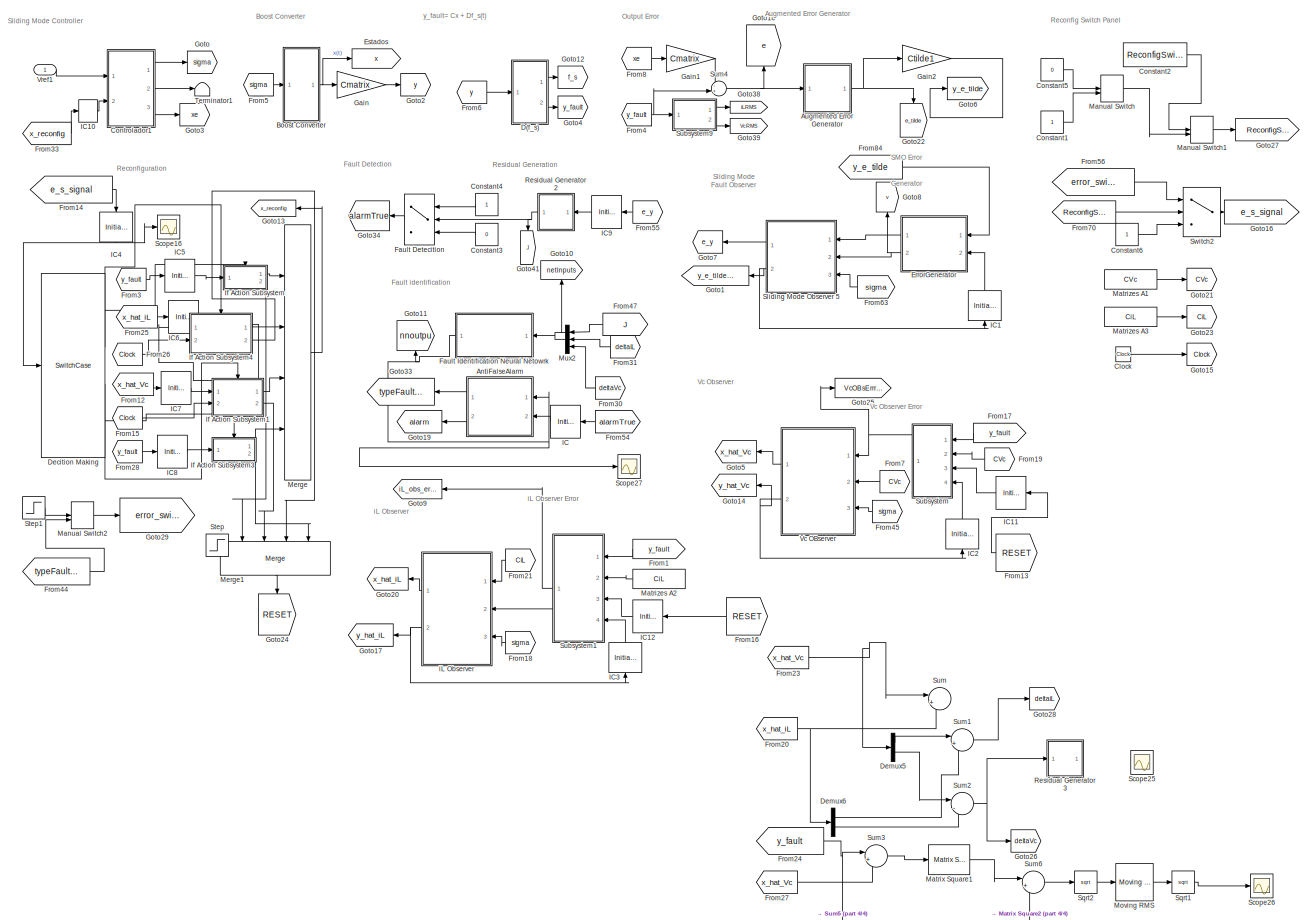
[diagram: reset - part 1/4, left side, full height]
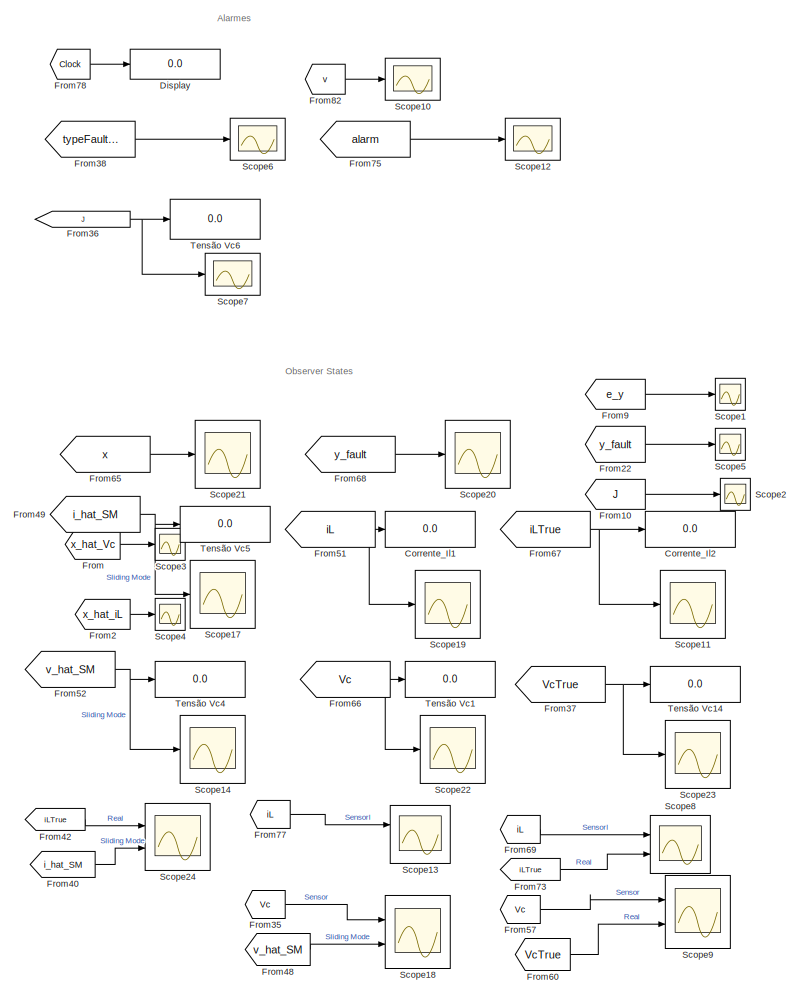
[diagram: reset - part 2/4, right side, full height]
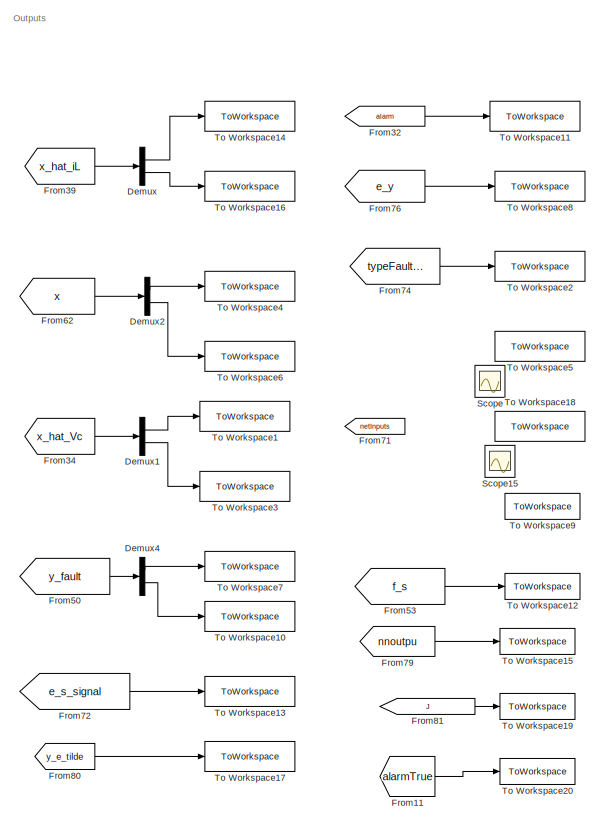
[diagram: reset - part 3/4, middle right region]
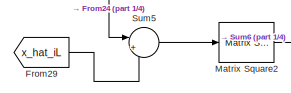
[diagram: reset - part 4/4, bottom center region]
BLOCK [SubSystem] reset
  Commented = on
  NameLocation = left
  Ports = [1]
  RequestExecContextInheritance = off
BLOCK [SubSystem] reset/AntiFalseAlarm
  NameLocation = top
  Ports = [2, 2]
  RequestExecContextInheritance = off
BLOCK [Inport] reset/AntiFalseAlarm/Alarm
  Port = 2
BLOCK [Outport] reset/AntiFalseAlarm/AlarmOut
  Port = 2
BLOCK [Constant] reset/AntiFalseAlarm/Constant7
  NameLocation = left
BLOCK [Outport] reset/AntiFalseAlarm/FaultClass
BLOCK [Switch] reset/AntiFalseAlarm/FaultDetecition1
  Criteria = u2 > Threshold
  InputSameDT = off
  SaturateOnIntegerOverflow = off
BLOCK [Inport] reset/AntiFalseAlarm/PRNN
BLOCK [Product] reset/AntiFalseAlarm/Product1
  NameLocation = top
  Ports = [2, 1]
BLOCK [Step] reset/AntiFalseAlarm/Step1
  NameLocation = left
  SampleTime = 0
  Time = AlarmDeadTime
BLOCK [SubSystem] reset/Augmented Error Generator
  Ports = [1, 1]
  RequestExecContextInheritance = off
BLOCK [Mux] reset/Augmented Error Generator/Mux
  DisplayOption = bar
  Inputs = 2
  Ports = [2, 1]
BLOCK [Inport] reset/Augmented Error Generator/e
BLOCK [Outport] reset/Augmented Error Generator/e_tilde
BLOCK [SubSystem] reset/Augmented Error Generator/z1
  Ports = [1, 1]
  RequestExecContextInheritance = off
BLOCK [Constant] reset/Augmented Error Generator/z1/Constant1
  Value = [0;0]
  VectorParams1D = off
BLOCK [Gain] reset/Augmented Error Generator/z1/Gain2
  Gain = Cmatrix
  Multiplication = Matrix(K*u) (u vector)
BLOCK [Integrator] reset/Augmented Error Generator/z1/Integrator6
  InitialConditionSource = external
  Ports = [2, 1]
BLOCK [Outport] reset/Augmented Error Generator/z1/z
BLOCK [Inport] reset/Augmented Error Generator/z1/z_dot
BLOCK [SubSystem] reset/Boost Converter
  Ports = [1, 1]
  RequestExecContextInheritance = off
BLOCK [SubSystem] reset/Boost Converter/ConversorBoost
  Ports = [6, 4]
  RequestExecContextInheritance = off
BLOCK [Reference] reset/Boost Converter/ConversorBoost/C  REF=powerlib/Elements/Series RLC Branch
  NameLocation = left
  Ports = [0, 0, 0, 0, 0, 1, 1]
  SourceBlock = powerlib/Elements/Series RLC Branch
  SourceProductBaseCode = PS
  SourceType = Series RLC Branch
BLOCK [Reference] reset/Boost Converter/ConversorBoost/Ground  REF=powerlib/Elements/Ground
  NameLocation = right
  Ports = [0, 0, 0, 0, 0, 1]
  SourceBlock = powerlib/Elements/Ground
  SourceProductBaseCode = PS
  SourceType = Ground
BLOCK [Reference] reset/Boost Converter/ConversorBoost/IL  REF=powerlib/Measurements/Current Measurement
  Ports = [0, 1, 0, 0, 0, 1, 1]
  SourceBlock = powerlib/Measurements/Current Measurement
  SourceProductBaseCode = PS
  SourceType = Current Measurement
  UserDataPersistent = on
BLOCK [Reference] reset/Boost Converter/ConversorBoost/Iro  REF=powerlib/Measurements/Current Measurement
  Ports = [0, 1, 0, 0, 0, 1, 1]
  SourceBlock = powerlib/Measurements/Current Measurement
  SourceProductBaseCode = PS
  SourceType = Current Measurement
  UserDataPersistent = on
BLOCK [Reference] reset/Boost Converter/ConversorBoost/L  REF=powerlib/Elements/Series RLC Branch
  Ports = [0, 0, 0, 0, 0, 1, 1]
  SourceBlock = powerlib/Elements/Series RLC Branch
  SourceProductBaseCode = PS
  SourceType = Series RLC Branch
BLOCK [Reference] reset/Boost Converter/ConversorBoost/R  REF=powerlib/Elements/Series RLC Branch
  Ports = [0, 0, 0, 0, 0, 1, 1]
  SourceBlock = powerlib/Elements/Series RLC Branch
  SourceProductBaseCode = PS
  SourceType = Series RLC Branch
BLOCK [Inport] reset/Boost Converter/ConversorBoost/Rinput
  NameLocation = left
  Port = 5
BLOCK [Reference] reset/Boost Converter/ConversorBoost/Ro  REF=powerlib/Elements/Series RLC Branch
  NameLocation = left
  Ports = [0, 0, 0, 0, 0, 1, 1]
  SourceBlock = powerlib/Elements/Series RLC Branch
  SourceProductBaseCode = PS
  SourceType = Series RLC Branch
BLOCK [Inport] reset/Boost Converter/ConversorBoost/Rparallelinput
  NameLocation = left
  Port = 6
BLOCK [Reference] reset/Boost Converter/ConversorBoost/Rvariavel1  REF=powerlib/Elements/Series RLC Branch
  NameLocation = right
  Ports = [0, 0, 0, 0, 0, 1, 1]
  SourceBlock = powerlib/Elements/Series RLC Branch
  SourceProductBaseCode = PS
  SourceType = Series RLC Branch
BLOCK [Reference] reset/Boost Converter/ConversorBoost/Rvariavel2  REF=powerlib/Elements/Series RLC Branch
  NameLocation = right
  Ports = [0, 0, 0, 0, 0, 1, 1]
  SourceBlock = powerlib/Elements/Series RLC Branch
  SourceProductBaseCode = PS
  SourceType = Series RLC Branch
BLOCK [Reference] reset/Boost Converter/ConversorBoost/S1  REF=powerlib/Power
Electronics/Mosfet
  NameLocation = left
  Ports = [1, 1, 0, 0, 0, 1, 1]
  SourceBlock = powerlib/Power\nElectronics/Mosfet
  SourceProductBaseCode = PS
  SourceType = Mosfet
BLOCK [Reference] reset/Boost Converter/ConversorBoost/S2  REF=powerlib/Power
Electronics/Diode
  Ports = [0, 1, 0, 0, 0, 1, 1]
  SourceBlock = powerlib/Power\nElectronics/Diode
  SourceProductBaseCode = PS
  SourceType = Diode
BLOCK [Reference] reset/Boost Converter/ConversorBoost/S3  REF=powerlib/Power
Electronics/Ideal Switch
  NameLocation = left
  Ports = [1, 1, 0, 0, 0, 1, 1]
  SourceBlock = powerlib/Power\nElectronics/Ideal Switch
  SourceProductBaseCode = PS
  SourceType = Ideal Switch
BLOCK [Reference] reset/Boost Converter/ConversorBoost/S4  REF=powerlib/Power
Electronics/Ideal Switch
  NameLocation = left
  Ports = [1, 1, 0, 0, 0, 1, 1]
  SourceBlock = powerlib/Power\nElectronics/Ideal Switch
  SourceProductBaseCode = PS
  SourceType = Ideal Switch
BLOCK [Reference] reset/Boost Converter/ConversorBoost/S5  REF=powerlib/Power
Electronics/Ideal Switch
  NameLocation = left
  Ports = [1, 1, 0, 0, 0, 1, 1]
  SourceBlock = powerlib/Power\nElectronics/Ideal Switch
  SourceProductBaseCode = PS
  SourceType = Ideal Switch
BLOCK [Reference] reset/Boost Converter/ConversorBoost/S6  REF=powerlib/Power
Electronics/Ideal Switch
  NameLocation = left
  Ports = [1, 1, 0, 0, 0, 1, 1]
  SourceBlock = powerlib/Power\nElectronics/Ideal Switch
  SourceProductBaseCode = PS
  SourceType = Ideal Switch
BLOCK [Reference] reset/Boost Converter/ConversorBoost/S7  REF=powerlib/Power
Electronics/Ideal Switch
  NameLocation = left
  Ports = [1, 1, 0, 0, 0, 1, 1]
  SourceBlock = powerlib/Power\nElectronics/Ideal Switch
  SourceProductBaseCode = PS
  SourceType = Ideal Switch
BLOCK [Display] reset/Boost Converter/ConversorBoost/Tensão Ve1
  Decimation = 1
  Ports = [1]
BLOCK [Terminator] reset/Boost Converter/ConversorBoost/Terminator
BLOCK [Terminator] reset/Boost Converter/ConversorBoost/Terminator1
BLOCK [Terminator] reset/Boost Converter/ConversorBoost/Terminator2
BLOCK [Terminator] reset/Boost Converter/ConversorBoost/Terminator3
BLOCK [Terminator] reset/Boost Converter/ConversorBoost/Terminator4
BLOCK [Terminator] reset/Boost Converter/ConversorBoost/Terminator5
BLOCK [Terminator] reset/Boost Converter/ConversorBoost/Terminator6
BLOCK [Outport] reset/Boost Converter/ConversorBoost/Vcoutput
  Port = 2
BLOCK [Inport] reset/Boost Converter/ConversorBoost/Vinput1
  NameLocation = left
  Port = 2
BLOCK [Inport] reset/Boost Converter/ConversorBoost/Vinput2
  NameLocation = left
  Port = 3
BLOCK [Inport] reset/Boost Converter/ConversorBoost/Vinput3
  NameLocation = left
  Port = 4
BLOCK [Reference] reset/Boost Converter/ConversorBoost/Voltage Measurement  REF=powerlib/Measurements/Voltage Measurement
  Ports = [0, 1, 0, 0, 0, 2]
  SourceBlock = powerlib/Measurements/Voltage Measurement
  SourceProductBaseCode = PS
  SourceType = Voltage Measurement
BLOCK [Reference] reset/Boost Converter/ConversorBoost/Voltage Measurement1  REF=powerlib/Measurements/Voltage Measurement
  Ports = [0, 1, 0, 0, 0, 2]
  SourceBlock = powerlib/Measurements/Voltage Measurement
  SourceProductBaseCode = PS
  SourceType = Voltage Measurement
BLOCK [Outport] reset/Boost Converter/ConversorBoost/Vu
  NameLocation = top
  Port = 4
BLOCK [Outport] reset/Boost Converter/ConversorBoost/iLoutput
BLOCK [Outport] reset/Boost Converter/ConversorBoost/iro
  Port = 3
BLOCK [Inport] reset/Boost Converter/ConversorBoost/sigma
  NameLocation = left
BLOCK [Reference] reset/Boost Converter/ConversorBoost/u  REF=powerlib/Electrical
Sources/DC Voltage Source
  NameLocation = right
  Ports = [0, 0, 0, 0, 0, 1, 1]
  SourceBlock = powerlib/Electrical\nSources/DC Voltage Source
  SourceProductBaseCode = PS
  SourceType = DC Voltage Source
BLOCK [Reference] reset/Boost Converter/ConversorBoost/u1  REF=powerlib/Electrical
Sources/DC Voltage Source
  NameLocation = left
  Ports = [0, 0, 0, 0, 0, 1, 1]
  SourceBlock = powerlib/Electrical\nSources/DC Voltage Source
  SourceProductBaseCode = PS
  SourceType = DC Voltage Source
BLOCK [Reference] reset/Boost Converter/ConversorBoost/u2  REF=powerlib/Electrical
Sources/DC Voltage Source
  NameLocation = right
  Ports = [0, 0, 0, 0, 0, 1, 1]
  SourceBlock = powerlib/Electrical\nSources/DC Voltage Source
  SourceProductBaseCode = PS
  SourceType = DC Voltage Source
BLOCK [Reference] reset/Boost Converter/ConversorBoost/u3  REF=powerlib/Electrical
Sources/DC Voltage Source
  NameLocation = right
  Ports = [0, 0, 0, 0, 0, 1, 1]
  SourceBlock = powerlib/Electrical\nSources/DC Voltage Source
  SourceProductBaseCode = PS
  SourceType = DC Voltage Source
BLOCK [Reference] reset/Boost Converter/ConversorBoost/u4  REF=powerlib/Electrical
Sources/DC Voltage Source
  NameLocation = right
  Ports = [0, 0, 0, 0, 0, 1, 1]
  SourceBlock = powerlib/Electrical\nSources/DC Voltage Source
  SourceProductBaseCode = PS
  SourceType = DC Voltage Source
BLOCK [From] reset/Boost Converter/From
  GotoTag = Rparallelinput
BLOCK [From] reset/Boost Converter/From4
  GotoTag = Vinput1
BLOCK [From] reset/Boost Converter/From5
  GotoTag = Vinput2
BLOCK [From] reset/Boost Converter/From6
  GotoTag = Rinput
BLOCK [From] reset/Boost Converter/From8
  GotoTag = Vinput3
BLOCK [Goto] reset/Boost Converter/Goto
  GotoTag = Vinput3
BLOCK [Goto] reset/Boost Converter/Goto1
  GotoTag = Rparallelinput
BLOCK [Goto] reset/Boost Converter/Goto4
  GotoTag = Vinput2
BLOCK [Goto] reset/Boost Converter/Goto5
  GotoTag = Vinput1
BLOCK [Goto] reset/Boost Converter/Goto6
  GotoTag = Rinput
BLOCK [Mux] reset/Boost Converter/Mux1
  DisplayOption = bar
  Inputs = 2
  Ports = [2, 1]
BLOCK [Terminator] reset/Boost Converter/Terminator
BLOCK [Terminator] reset/Boost Converter/Terminator1
BLOCK [SubSystem] reset/Boost Converter/TipoEntrada
  Ports = [0, 5]
  RequestExecContextInheritance = off
BLOCK [Constant] reset/Boost Converter/TipoEntrada/Constant1
  Value = LoadAddSwitch
BLOCK [Constant] reset/Boost Converter/TipoEntrada/Constant11
  Value = SourceRemoveSwitch
BLOCK [Constant] reset/Boost Converter/TipoEntrada/Constant2
  Value = SourceAddSignalSwitch
BLOCK [Constant] reset/Boost Converter/TipoEntrada/Constant3
  Value = LoadAddSignalSwitch
BLOCK [Constant] reset/Boost Converter/TipoEntrada/Constant4
  Value = SourceAddSwitch
BLOCK [Constant] reset/Boost Converter/TipoEntrada/Constant5
  Value = LoadRemoveSwitch
BLOCK [Constant] reset/Boost Converter/TipoEntrada/Constant6
  Value = LoadRemoveSignalSwitch
BLOCK [Constant] reset/Boost Converter/TipoEntrada/Constant7
  Value = SourceRemoveSignalSwitch
BLOCK [Constant] reset/Boost Converter/TipoEntrada/Constant8
  Value = SourceRemoveSwitch
BLOCK [From] reset/Boost Converter/TipoEntrada/From1
  GotoTag = VinputAdd
BLOCK [From] reset/Boost Converter/TipoEntrada/From3
  GotoTag = VinputRemove
BLOCK [Goto] reset/Boost Converter/TipoEntrada/Goto2
  GotoTag = VinputAdd
BLOCK [Goto] reset/Boost Converter/TipoEntrada/Goto3
  GotoTag = VinputRemove
BLOCK [Logic] reset/Boost Converter/TipoEntrada/Logical Operator
  AllPortsSameDT = off
  Operator = NOT
  OutDataTypeStr = boolean
  Ports = [1, 1]
BLOCK [Logic] reset/Boost Converter/TipoEntrada/Logical Operator1
  AllPortsSameDT = off
  Operator = NOT
  OutDataTypeStr = boolean
  Ports = [1, 1]
BLOCK [Logic] reset/Boost Converter/TipoEntrada/Logical Operator2
  AllPortsSameDT = off
  Operator = NOT
  OutDataTypeStr = boolean
  Ports = [1, 1]
BLOCK [Logic] reset/Boost Converter/TipoEntrada/Logical Operator3
  AllPortsSameDT = off
  Operator = NOT
  OutDataTypeStr = boolean
  Ports = [1, 1]
BLOCK [Outport] reset/Boost Converter/TipoEntrada/Rparallelvariavel 
  Port = 5
BLOCK [Outport] reset/Boost Converter/TipoEntrada/Rvariavel 
  Port = 4
BLOCK [Constant] reset/Boost Converter/TipoEntrada/Sem Disturbio
BLOCK [Constant] reset/Boost Converter/TipoEntrada/Sem Disturbio  
  Value = 0
BLOCK [Constant] reset/Boost Converter/TipoEntrada/Sen Disturbiio
  Value = 0
BLOCK [Constant] reset/Boost Converter/TipoEntrada/Sen Disturbiio1
  Value = 0
BLOCK [Step] reset/Boost Converter/TipoEntrada/Step
  After = 0
  Before = 1
  SampleTime = 0
  Time = LoadAddTime
BLOCK [Step] reset/Boost Converter/TipoEntrada/Step1
  SampleTime = 0
  Time = SourceAddTime
BLOCK [Step] reset/Boost Converter/TipoEntrada/Step2
  SampleTime = 0
  Time = LoadRemoveTime
BLOCK [Step] reset/Boost Converter/TipoEntrada/Step3
  SampleTime = 0
  Time = SourceRemoveTime
BLOCK [Switch] reset/Boost Converter/TipoEntrada/Switch1
  Criteria = u2 ~= 0
  InputSameDT = off
  SaturateOnIntegerOverflow = off
BLOCK [Switch] reset/Boost Converter/TipoEntrada/Switch10
  Criteria = u2 ~= 0
  InputSameDT = off
  SaturateOnIntegerOverflow = off
BLOCK [Switch] reset/Boost Converter/TipoEntrada/Switch2
  Criteria = u2 ~= 0
  InputSameDT = off
  SaturateOnIntegerOverflow = off
BLOCK [Switch] reset/Boost Converter/TipoEntrada/Switch3
  Criteria = u2 ~= 0
  InputSameDT = off
  SaturateOnIntegerOverflow = off
BLOCK [Switch] reset/Boost Converter/TipoEntrada/Switch5
  Criteria = u2 ~= 0
  InputSameDT = off
  SaturateOnIntegerOverflow = off
BLOCK [Switch] reset/Boost Converter/TipoEntrada/Switch6
  Criteria = u2 ~= 0
  InputSameDT = off
  SaturateOnIntegerOverflow = off
BLOCK [Switch] reset/Boost Converter/TipoEntrada/Switch7
  Criteria = u2 ~= 0
  InputSameDT = off
  SaturateOnIntegerOverflow = off
BLOCK [Switch] reset/Boost Converter/TipoEntrada/Switch8
  Criteria = u2 ~= 0
  InputSameDT = off
  SaturateOnIntegerOverflow = off
BLOCK [Switch] reset/Boost Converter/TipoEntrada/Switch9
  Criteria = u2 ~= 0
  InputSameDT = off
  SaturateOnIntegerOverflow = off
BLOCK [Outport] reset/Boost Converter/TipoEntrada/Vu
BLOCK [Outport] reset/Boost Converter/TipoEntrada/VuAdd
  Port = 2
BLOCK [Outport] reset/Boost Converter/TipoEntrada/VuRemove
  Port = 3
BLOCK [SubSystem] reset/Boost Converter/TipoEntrada/disturbio
  Ports = [0, 1]
  RequestExecContextInheritance = off
BLOCK [Step] reset/Boost Converter/TipoEntrada/disturbio/Step1
  SampleTime = 0
BLOCK [Step] reset/Boost Converter/TipoEntrada/disturbio/Step2
  After = -1
  SampleTime = 0
  Time = 1.1
BLOCK [Sum] reset/Boost Converter/TipoEntrada/disturbio/Sum
  Inputs = |++
  Ports = [2, 1]
BLOCK [Outport] reset/Boost Converter/TipoEntrada/disturbio/disturbio
BLOCK [SubSystem] reset/Boost Converter/TipoEntrada/disturbio1
  Ports = [0, 1]
  RequestExecContextInheritance = off
BLOCK [Step] reset/Boost Converter/TipoEntrada/disturbio1/Step1
  SampleTime = 0
  Time = 1.2
BLOCK [Step] reset/Boost Converter/TipoEntrada/disturbio1/Step2
  After = -1
  SampleTime = 0
  Time = 1.4
BLOCK [Sum] reset/Boost Converter/TipoEntrada/disturbio1/Sum
  Inputs = |++
  Ports = [2, 1]
BLOCK [Outport] reset/Boost Converter/TipoEntrada/disturbio1/disturbio
BLOCK [SubSystem] reset/Boost Converter/TipoEntrada/disturbio2
  Ports = [0, 1]
  RequestExecContextInheritance = off
BLOCK [Step] reset/Boost Converter/TipoEntrada/disturbio2/Step1
  SampleTime = 0
  Time = 1.2
BLOCK [Step] reset/Boost Converter/TipoEntrada/disturbio2/Step2
  After = -1
  SampleTime = 0
  Time = 1.4
BLOCK [Sum] reset/Boost Converter/TipoEntrada/disturbio2/Sum
  Inputs = |++
  Ports = [2, 1]
BLOCK [Outport] reset/Boost Converter/TipoEntrada/disturbio2/disturbio
BLOCK [SubSystem] reset/Boost Converter/TipoEntrada/disturbio3
  Ports = [0, 1]
  RequestExecContextInheritance = off
BLOCK [Step] reset/Boost Converter/TipoEntrada/disturbio3/Step1
  SampleTime = 0
BLOCK [Step] reset/Boost Converter/TipoEntrada/disturbio3/Step2
  After = -1
  SampleTime = 0
  Time = 1.1
BLOCK [Sum] reset/Boost Converter/TipoEntrada/disturbio3/Sum
  Inputs = |++
  Ports = [2, 1]
BLOCK [Outport] reset/Boost Converter/TipoEntrada/disturbio3/disturbio
BLOCK [Inport] reset/Boost Converter/sigma
  NameLocation = left
BLOCK [Outport] reset/Boost Converter/x
  NameLocation = top
BLOCK [Clock] reset/Clock
BLOCK [Constant] reset/Constant1
BLOCK [Constant] reset/Constant2
  Value = ReconfigSwitch
BLOCK [Constant] reset/Constant3
  Value = 0
BLOCK [Constant] reset/Constant4
BLOCK [Constant] reset/Constant5
  Value = 0
BLOCK [Constant] reset/Constant6
BLOCK [SubSystem] reset/Controlador1
  Ports = [2, 3]
  RequestExecContextInheritance = off
BLOCK [Constant] reset/Controlador1/    
  NameLocation = right
  Value = ueq
BLOCK [Constant] reset/Controlador1/    2
  NameLocation = top
  Value = Smep
BLOCK [Constant] reset/Controlador1/Constant6
  Value = boost_parameters
BLOCK [Demux] reset/Controlador1/Demux1
  Outputs = 2
  Ports = [1, 2]
BLOCK [Demux] reset/Controlador1/Demux2
  Outputs = 2
  Ports = [1, 2]
BLOCK [Gain] reset/Controlador1/Gain
  Gain = 0.8
  NameLocation = top
BLOCK [Gain] reset/Controlador1/Gain1
  Gain = 8
  NameLocation = top
BLOCK [Gain] reset/Controlador1/Gain3
  Gain = 2.3
  NameLocation = top
BLOCK [Integrator] reset/Controlador1/Integrator1
  NameLocation = top
  Ports = [1, 1]
BLOCK [Reference] reset/Controlador1/PWM  REF=powerlib_meascontrol/Pulse & Signal
Generators/PWM Generator
(DC-DC)
  NameLocation = top
  Ports = [1, 1]
  SourceBlock = powerlib_meascontrol/Pulse & Signal\nGenerators/PWM Generator\n(DC-DC)
  SourceProductBaseCode = PS
  SourceType = PWM Generator (DC-DC)
BLOCK [Scope] reset/Controlador1/Scope
  Floating = off
  NumInputPorts = 1
  Ports = [1]
  ScopeSpecificationString = Simulink.scopes.TimeScopeBlockCfg('CurrentConfiguration', extmgr.ConfigurationSet(extmgr.Configuration('Core','General UI',true),extmgr.Configuration('Core','Source UI',true),extmgr.Configuration('Sources','WiredSimulink',true,'DataLoggingVariableName','ScopeData8'),extmgr.Configuration('Visuals','Time Domain',true,'SerializedDisplays',{struct('MinYLimReal','-0.51961','MaxYLimReal','0.48997','YLab...<+1421ch>
BLOCK [SubSystem] reset/Controlador1/SlidingSurface
  NameLocation = top
  Ports = [2, 1]
  RequestExecContextInheritance = off
BLOCK [Abs] reset/Controlador1/SlidingSurface/Abs
  SaturateOnIntegerOverflow = off
BLOCK [From] reset/Controlador1/SlidingSurface/From
  GotoTag = ep
BLOCK [From] reset/Controlador1/SlidingSurface/From1
  GotoTag = S
BLOCK [Goto] reset/Controlador1/SlidingSurface/Goto
  GotoTag = S
BLOCK [Goto] reset/Controlador1/SlidingSurface/Goto1
  GotoTag = ep
BLOCK [RelationalOperator] reset/Controlador1/SlidingSurface/GreaterThan
  InputSameDT = off
  Operator = >
  OutDataTypeStr = boolean
  Ports = [2, 1]
  RndMeth = Simplest
BLOCK [If] reset/Controlador1/SlidingSurface/If
  IfExpression = u1 ~= 0
  Ports = [1, 2]
BLOCK [SubSystem] reset/Controlador1/SlidingSurface/If Action Subsystem
  Ports = [1, 1, 0, 0, 0, 0, 0, 1]
  RequestExecContextInheritance = off
  TreatAsAtomicUnit = on
BLOCK [ActionPort] reset/Controlador1/SlidingSurface/If Action Subsystem/Action Port
  ActionPortLabel = if(u1 ~= 0)
BLOCK [Inport] reset/Controlador1/SlidingSurface/If Action Subsystem/S
BLOCK [Signum] reset/Controlador1/SlidingSurface/If Action Subsystem/Sign
BLOCK [Outport] reset/Controlador1/SlidingSurface/If Action Subsystem/d
BLOCK [SubSystem] reset/Controlador1/SlidingSurface/If Action Subsystem2
  Ports = [2, 1, 0, 0, 0, 0, 0, 1]
  RequestExecContextInheritance = off
  TreatAsAtomicUnit = on
BLOCK [ActionPort] reset/Controlador1/SlidingSurface/If Action Subsystem2/Action Port
  ActionPortLabel = else
BLOCK [Product] reset/Controlador1/SlidingSurface/If Action Subsystem2/Divide
  Inputs = */
  Ports = [2, 1]
BLOCK [Inport] reset/Controlador1/SlidingSurface/If Action Subsystem2/S
BLOCK [Outport] reset/Controlador1/SlidingSurface/If Action Subsystem2/d
BLOCK [Inport] reset/Controlador1/SlidingSurface/If Action Subsystem2/ep
  Port = 2
BLOCK [Merge] reset/Controlador1/SlidingSurface/Merge1
  Ports = [2, 1]
BLOCK [Inport] reset/Controlador1/SlidingSurface/S
BLOCK [Outport] reset/Controlador1/SlidingSurface/d
BLOCK [Inport] reset/Controlador1/SlidingSurface/ep
  Port = 2
BLOCK [Sum] reset/Controlador1/Sum
  Inputs = |++
  NameLocation = top
  Ports = [2, 1]
BLOCK [Sum] reset/Controlador1/Sum4
  Inputs = ++|
  NameLocation = top
  Ports = [2, 1]
BLOCK [Sum] reset/Controlador1/Sum5
  Inputs = -+|
  NameLocation = top
  Ports = [2, 1]
BLOCK [Sum] reset/Controlador1/Sum6
  Inputs = -+|
  NameLocation = top
  Ports = [2, 1]
BLOCK [Sum] reset/Controlador1/Sum9
  Inputs = |++
  NameLocation = top
  Ports = [2, 1]
BLOCK [Outport] reset/Controlador1/i_e
  Port = 2
BLOCK [Outport] reset/Controlador1/sigma
  NameLocation = top
BLOCK [Inport] reset/Controlador1/ve
BLOCK [Inport] reset/Controlador1/x
  Port = 2
BLOCK [Outport] reset/Controlador1/x_e
  Port = 3
BLOCK [SubSystem] reset/Controlador1/xe
  ErrorFcn = Stateflow.Translate.translate
  PermitHierarchicalResolution = ExplicitOnly
  Ports = [2, 2]
  RequestExecContextInheritance = off
  SFBlockType = MATLAB Function
  TreatAsAtomicUnit = on
BLOCK [Demux] reset/Controlador1/xe/ Demux 
  Outputs = 1
  Ports = [1, 1]
BLOCK [S-Function] reset/Controlador1/xe/ SFunction 
  EnableBusSupport = on
  FunctionName = sf_sfun
  PortCounts = [2 3]
  Ports = [2, 3]
  SFcnIsStateOwnerBlock = off
  SFunctionDeploymentMode = off
  Tag = Stateflow S-Function 1
BLOCK [Terminator] reset/Controlador1/xe/ Terminator 
BLOCK [Inport] reset/Controlador1/xe/boost_parameters
BLOCK [Outport] reset/Controlador1/xe/i_e
  Port = 2
BLOCK [Inport] reset/Controlador1/xe/ve
  Port = 2
BLOCK [Outport] reset/Controlador1/xe/x_e
BLOCK [Display] reset/Corrente_Il1
  Commented = on
  Decimation = 1
  Ports = [1]
BLOCK [Display] reset/Corrente_Il2
  Commented = on
  Decimation = 1
  Ports = [1]
BLOCK [SubSystem] reset/D(f_s)
  Ports = [1, 2]
  RequestExecContextInheritance = off
BLOCK [Constant] reset/D(f_s)/Constant
  NameLocation = left
  Value = D1
BLOCK [Constant] reset/D(f_s)/Constant1
  Value = VcFaultSwitch
BLOCK [Constant] reset/D(f_s)/Constant2
  Value = iLGainFaultFactor
BLOCK [Constant] reset/D(f_s)/Constant3
  Value = VcNoiseFaultSwitch
BLOCK [Constant] reset/D(f_s)/Constant4
  Value = VcGainFaultFactor
BLOCK [Constant] reset/D(f_s)/Constant7
  Value = iLFaultSwitch
BLOCK [Constant] reset/D(f_s)/Constant8
  Value = iLNoiseFaultSwitch
BLOCK [Demux] reset/D(f_s)/Demux
  Outputs = 2
  Ports = [1, 2]
BLOCK [From] reset/D(f_s)/From
  GotoTag = y
BLOCK [From] reset/D(f_s)/From1
  GotoTag = VcOutput
BLOCK [From] reset/D(f_s)/From2
  GotoTag = iLoutput
BLOCK [Goto] reset/D(f_s)/Goto
  GotoTag = iLoutput
BLOCK [Goto] reset/D(f_s)/Goto1
  GotoTag = VcOutput
BLOCK [Goto] reset/D(f_s)/Goto2
  GotoTag = y
BLOCK [Product] reset/D(f_s)/Matrix Multiply
  Multiplication = Matrix(*)
  Ports = [2, 1]
BLOCK [Mux] reset/D(f_s)/Mux
  DisplayOption = bar
  Inputs = 2
  Ports = [2, 1]
BLOCK [Step] reset/D(f_s)/Step10
  SampleTime = 0
  Time = VcFaultTime
BLOCK [Step] reset/D(f_s)/Step2
  SampleTime = 0
  Time = VcNoiseTime
BLOCK [Step] reset/D(f_s)/Step8
  SampleTime = 0
  Time = iLFaultTime
BLOCK [Step] reset/D(f_s)/Step9
  SampleTime = 0
  Time = iLNoiseTime
BLOCK [SubSystem] reset/D(f_s)/Subsystem
  Ports = [6, 1]
  RequestExecContextInheritance = off
BLOCK [Constant] reset/D(f_s)/Subsystem/Constant11
  Value = 0
BLOCK [Constant] reset/D(f_s)/Subsystem/Constant9
  Value = 0
BLOCK [Inport] reset/D(f_s)/Subsystem/FaultFactor
  Port = 6
BLOCK [Inport] reset/D(f_s)/Subsystem/FaultStep
  Port = 2
BLOCK [Inport] reset/D(f_s)/Subsystem/FaultSwtich
  Port = 4
BLOCK [Inport] reset/D(f_s)/Subsystem/NoiseFaultSwitch
  Port = 5
BLOCK [Inport] reset/D(f_s)/Subsystem/NoiseStep
  Port = 3
BLOCK [Product] reset/D(f_s)/Subsystem/Product
  Ports = [2, 1]
BLOCK [SubSystem] reset/D(f_s)/Subsystem/Subsystem
  Ports = [1, 1]
  RequestExecContextInheritance = off
BLOCK [Sum] reset/D(f_s)/Subsystem/Subsystem/Add
  IconShape = rectangular
  Ports = [2, 1]
BLOCK [Reference] reset/D(f_s)/Subsystem/Subsystem/Band-Limited White Noise  REF=simulink/Sources/Band-Limited
White Noise
  Ports = [0, 1]
  SourceBlock = simulink/Sources/Band-Limited\nWhite Noise
  SourceProductBaseCode = SL
  SourceType = Band-Limited White Noise.
BLOCK [Inport] reset/D(f_s)/Subsystem/Subsystem/input
BLOCK [Outport] reset/D(f_s)/Subsystem/Subsystem/noiseOutput
BLOCK [Switch] reset/D(f_s)/Subsystem/Switch10
  Criteria = u2 ~= 0
  InputSameDT = off
  SaturateOnIntegerOverflow = off
BLOCK [Switch] reset/D(f_s)/Subsystem/Switch11
  Criteria = u2 ~= 0
  InputSameDT = off
  SaturateOnIntegerOverflow = off
BLOCK [Switch] reset/D(f_s)/Subsystem/Switch13
  Criteria = u2 ~= 0
  InputSameDT = off
  SaturateOnIntegerOverflow = off
BLOCK [Switch] reset/D(f_s)/Subsystem/Switch9
  Criteria = u2 ~= 0
  InputSameDT = off
  SaturateOnIntegerOverflow = off
BLOCK [MultiPortSwitch] reset/D(f_s)/Subsystem/iLFault Switch
  DataPortForDefault = Additional data port
  DataPortOrder = Zero-based contiguous
  InputSameDT = off
  Ports = [5, 1]
  SaturateOnIntegerOverflow = off
  zeroidx = on
BLOCK [Inport] reset/D(f_s)/Subsystem/input
BLOCK [Outport] reset/D(f_s)/Subsystem/output
BLOCK [SubSystem] reset/D(f_s)/Subsystem2
  Ports = [6, 1]
  RequestExecContextInheritance = off
BLOCK [Constant] reset/D(f_s)/Subsystem2/Constant11
  Value = 0
BLOCK [Constant] reset/D(f_s)/Subsystem2/Constant9
  Value = 0
BLOCK [Inport] reset/D(f_s)/Subsystem2/FaultFactor
  Port = 6
BLOCK [Inport] reset/D(f_s)/Subsystem2/FaultStep
  Port = 2
BLOCK [Inport] reset/D(f_s)/Subsystem2/FaultSwtich
  Port = 4
BLOCK [Inport] reset/D(f_s)/Subsystem2/NoiseFaultSwitch
  Port = 5
BLOCK [Inport] reset/D(f_s)/Subsystem2/NoiseStep
  Port = 3
BLOCK [Product] reset/D(f_s)/Subsystem2/Product
  Ports = [2, 1]
BLOCK [SubSystem] reset/D(f_s)/Subsystem2/Subsystem
  Ports = [1, 1]
  RequestExecContextInheritance = off
BLOCK [Sum] reset/D(f_s)/Subsystem2/Subsystem/Add
  IconShape = rectangular
  Ports = [2, 1]
BLOCK [Reference] reset/D(f_s)/Subsystem2/Subsystem/Band-Limited White Noise  REF=simulink/Sources/Band-Limited
White Noise
  Ports = [0, 1]
  SourceBlock = simulink/Sources/Band-Limited\nWhite Noise
  SourceProductBaseCode = SL
  SourceType = Band-Limited White Noise.
BLOCK [Inport] reset/D(f_s)/Subsystem2/Subsystem/input
BLOCK [Outport] reset/D(f_s)/Subsystem2/Subsystem/noiseOutput
BLOCK [Switch] reset/D(f_s)/Subsystem2/Switch10
  Criteria = u2 ~= 0
  InputSameDT = off
  SaturateOnIntegerOverflow = off
BLOCK [Switch] reset/D(f_s)/Subsystem2/Switch11
  Criteria = u2 ~= 0
  InputSameDT = off
  SaturateOnIntegerOverflow = off
BLOCK [Switch] reset/D(f_s)/Subsystem2/Switch13
  Criteria = u2 ~= 0
  InputSameDT = off
  SaturateOnIntegerOverflow = off
BLOCK [Switch] reset/D(f_s)/Subsystem2/Switch9
  Criteria = u2 ~= 0
  InputSameDT = off
  SaturateOnIntegerOverflow = off
  ZeroCross = off
BLOCK [MultiPortSwitch] reset/D(f_s)/Subsystem2/iLFault Switch
  DataPortForDefault = Additional data port
  DataPortOrder = Zero-based contiguous
  InputSameDT = off
  Ports = [5, 1]
  SaturateOnIntegerOverflow = off
  zeroidx = on
BLOCK [Inport] reset/D(f_s)/Subsystem2/input
BLOCK [Outport] reset/D(f_s)/Subsystem2/output
BLOCK [Sum] reset/D(f_s)/Sum
  Inputs = |+-
  Ports = [2, 1]
BLOCK [Outport] reset/D(f_s)/f_s
BLOCK [Inport] reset/D(f_s)/y
BLOCK [Outport] reset/D(f_s)/y_fault
  Port = 2
BLOCK [SwitchCase] reset/Decition Making
  CaseConditions = {[1,6],[2,3],[4,5]}
  Ports = [1, 4]
BLOCK [Demux] reset/Demux
  Outputs = 2
  Ports = [1, 2]
BLOCK [Demux] reset/Demux1
  Outputs = 2
  Ports = [1, 2]
BLOCK [Demux] reset/Demux2
  Outputs = 2
  Ports = [1, 2]
BLOCK [Demux] reset/Demux4
  Outputs = 2
  Ports = [1, 2]
BLOCK [Demux] reset/Demux5
  Outputs = 2
  Ports = [1, 2]
BLOCK [Demux] reset/Demux6
  Outputs = 2
  Ports = [1, 2]
BLOCK [Display] reset/Display
  Decimation = 1
  Ports = [1]
BLOCK [SubSystem] reset/ErrorGenerator
  NameLocation = top
  Ports = [2, 2]
  RequestExecContextInheritance = off
BLOCK [Logic] reset/ErrorGenerator/AND
  AllPortsSameDT = off
  IconShape = distinctive
  OutDataTypeStr = boolean
  Ports = [2, 1]
BLOCK [Reference] reset/ErrorGenerator/Compare To Zero  REF=simulink/Logic and Bit
Operations/Compare
To Zero
  Ports = [1, 1]
  SourceBlock = simulink/Logic and Bit\nOperations/Compare\nTo Zero
  SourceProductBaseCode = SL
  SourceType = Compare To Zero
BLOCK [Constant] reset/ErrorGenerator/Constant1
  Value = [0;0]
BLOCK [Demux] reset/ErrorGenerator/Demux
  Outputs = 2
  Ports = [1, 2]
BLOCK [From] reset/ErrorGenerator/From1
  GotoTag = e_y
BLOCK [Goto] reset/ErrorGenerator/Goto
  GotoTag = e_y
BLOCK [If] reset/ErrorGenerator/If
  IfExpression = u1 ~= 0
  Ports = [1, 2]
BLOCK [SubSystem] reset/ErrorGenerator/If Action Subsystem
  Ports = [1, 1, 0, 0, 0, 0, 0, 1]
  RequestExecContextInheritance = off
  TreatAsAtomicUnit = on
BLOCK [ActionPort] reset/ErrorGenerator/If Action Subsystem/Action Port
  ActionPortLabel = if(u1 ~= 0)
BLOCK [Product] reset/ErrorGenerator/If Action Subsystem/Matrix Multiply
  Multiplication = Matrix(*)
  Ports = [2, 1]
BLOCK [Product] reset/ErrorGenerator/If Action Subsystem/Matrix Multiply1
  Ports = [2, 1]
BLOCK [Constant] reset/ErrorGenerator/If Action Subsystem/Matrizes A1
  Value = rho
BLOCK [Constant] reset/ErrorGenerator/If Action Subsystem/Matrizes A2
  Value = F
BLOCK [Reference] reset/ErrorGenerator/If Action Subsystem/Normalization  REF=dspmathops/Normalization
  Ports = [1, 1]
  SourceBlock = dspmathops/Normalization
  SourceProductBaseCode = DS
  SourceType = Normalization
BLOCK [Inport] reset/ErrorGenerator/If Action Subsystem/e_y
BLOCK [Outport] reset/ErrorGenerator/If Action Subsystem/v
BLOCK [SubSystem] reset/ErrorGenerator/If Action Subsystem1
  Ports = [1, 1, 0, 0, 0, 0, 0, 1]
  RequestExecContextInheritance = off
  TreatAsAtomicUnit = on
BLOCK [ActionPort] reset/ErrorGenerator/If Action Subsystem1/Action Port
  ActionPortLabel = else
BLOCK [Inport] reset/ErrorGenerator/If Action Subsystem1/e_y
BLOCK [Outport] reset/ErrorGenerator/If Action Subsystem1/v
BLOCK [Merge] reset/ErrorGenerator/Merge
  InitialOutput = [0;0]
  Ports = [2, 1]
BLOCK [Sum] reset/ErrorGenerator/Sum
  IconShape = rectangular
  Inputs = |+-
  Ports = [2, 1]
BLOCK [Outport] reset/ErrorGenerator/e_y
  NameLocation = top
BLOCK [Outport] reset/ErrorGenerator/v
  Port = 2
BLOCK [Inport] reset/ErrorGenerator/y_e_tilde
BLOCK [Inport] reset/ErrorGenerator/y_e_tilde_hat
  Port = 2
BLOCK [Goto] reset/Estados
  GotoTag = x
  NameLocation = top
BLOCK [Switch] reset/Fault Detecition
  Criteria = u2 > Threshold
  InputSameDT = off
  SaturateOnIntegerOverflow = off
  Threshold = Jth
  ZeroCross = off
BLOCK [SubSystem] reset/Fault Identification Neural Netowrk
  Ports = [1, 1]
  RequestExecContextInheritance = off
BLOCK [Reference] reset/Fault Identification Neural Netowrk/Maximum  REF=dspstat3/Maximum
  Ports = [1, 2]
  SourceBlock = dspstat3/Maximum
  SourceProductBaseCode = DS
  SourceType = Maximum
  UserDataPersistent = on
BLOCK [Reference] reset/Fault Identification Neural Netowrk/Median Filter  REF=dspstat3/Median
Filter
  Ports = [1, 1]
  SourceBlock = dspstat3/Median\nFilter
  SourceProductBaseCode = DS
  SourceType = dsp.MedianFilter
BLOCK [SubSystem] reset/Fault Identification Neural Netowrk/Pattern Recognition Neural Network2
  Commented = on
  Ports = [1, 1]
  RequestExecContextInheritance = off
BLOCK [From] reset/Fault Identification Neural Netowrk/Pattern Recognition Neural Network2/ a{1} 
  GotoTag = feedback1
BLOCK [Inport] reset/Fault Identification Neural Netowrk/Pattern Recognition Neural Network2/Input
  PortDimensions = 3
BLOCK [SubSystem] reset/Fault Identification Neural Netowrk/Pattern Recognition Neural Network2/Layer 1
  Ports = [1, 1]
  RequestExecContextInheritance = off
BLOCK [SubSystem] reset/Fault Identification Neural Netowrk/Pattern Recognition Neural Network2/Layer 1/Delays 1
  Ports = [1, 1]
  RequestExecContextInheritance = off
BLOCK [Mux] reset/Fault Identification Neural Netowrk/Pattern Recognition Neural Network2/Layer 1/Delays 1/mux
  Inputs = 1
  Ports = [1, 1]
BLOCK [Outport] reset/Fault Identification Neural Netowrk/Pattern Recognition Neural Network2/Layer 1/Delays 1/pd{1,1}
BLOCK [Inport] reset/Fault Identification Neural Netowrk/Pattern Recognition Neural Network2/Layer 1/Delays 1/p{1}
  NameLocation = left
  PortDimensions = 3
BLOCK [SubSystem] reset/Fault Identification Neural Netowrk/Pattern Recognition Neural Network2/Layer 1/IW{1,1}
  Ports = [1, 1]
  RequestExecContextInheritance = off
BLOCK [Constant] reset/Fault Identification Neural Netowrk/Pattern Recognition Neural Network2/Layer 1/IW{1,1}/IW{1,1}(1,:)'
  Value = [1.3372376757433865890334345749579370021820068359375;0.497703414895818152530182487680576741695404052734375;-2.089402050871350002836379644577391445636749267578125]
BLOCK [Constant] reset/Fault Identification Neural Netowrk/Pattern Recognition Neural Network2/Layer 1/IW{1,1}/IW{1,1}(2,:)'
  Value = [1.587837137890943051132808250258676707744598388671875;1.8984072501995898907267701360979117453098297119140625;-1.024732655880576270845949693466536700725555419921875]
BLOCK [Constant] reset/Fault Identification Neural Netowrk/Pattern Recognition Neural Network2/Layer 1/IW{1,1}/IW{1,1}(3,:)'
  Value = [-0.54937435810224888310671076396829448640346527099609375;-2.111855319303605593717065858072601258754730224609375;-5.2841402562393060549084111698903143405914306640625]
BLOCK [Constant] reset/Fault Identification Neural Netowrk/Pattern Recognition Neural Network2/Layer 1/IW{1,1}/IW{1,1}(4,:)'
  Value = [-4.8127115756336689145200580242089927196502685546875;1.5097455791013396630972920320346020162105560302734375;-4.83376562688434052716957012307830154895782470703125]
BLOCK [Constant] reset/Fault Identification Neural Netowrk/Pattern Recognition Neural Network2/Layer 1/IW{1,1}/IW{1,1}(5,:)'
  Value = [9.4627218723721266968595955404452979564666748046875;0.42645764301639943472110871880431659519672393798828125;19.7434504080638788536816718988120555877685546875]
BLOCK [Constant] reset/Fault Identification Neural Netowrk/Pattern Recognition Neural Network2/Layer 1/IW{1,1}/IW{1,1}(6,:)'
  Value = [-11.80468892499603583701173192821443080902099609375;4.33325037054842976402824206161312758922576904296875;10.6478833128954430975454670260660350322723388671875]
BLOCK [Constant] reset/Fault Identification Neural Netowrk/Pattern Recognition Neural Network2/Layer 1/IW{1,1}/IW{1,1}(7,:)'
  Value = [-6.8224651838149075189221548498608171939849853515625;1.814012508852983263096803057123906910419464111328125;20.89364078591611217916579334996640682220458984375]
BLOCK [Mux] reset/Fault Identification Neural Netowrk/Pattern Recognition Neural Network2/Layer 1/IW{1,1}/Mux
  Inputs = 7
  Ports = [7, 1]
BLOCK [Reference] reset/Fault Identification Neural Netowrk/Pattern Recognition Neural Network2/Layer 1/IW{1,1}/dotprod1  REF=neural/Weight Functions/dotprod
  Ports = [2, 1]
  SourceBlock = neural/Weight Functions/dotprod
  SourceProductBaseCode = NN
  SourceType = DOTPROD
BLOCK [Reference] reset/Fault Identification Neural Netowrk/Pattern Recognition Neural Network2/Layer 1/IW{1,1}/dotprod2  REF=neural/Weight Functions/dotprod
  Ports = [2, 1]
  SourceBlock = neural/Weight Functions/dotprod
  SourceProductBaseCode = NN
  SourceType = DOTPROD
BLOCK [Reference] reset/Fault Identification Neural Netowrk/Pattern Recognition Neural Network2/Layer 1/IW{1,1}/dotprod3  REF=neural/Weight Functions/dotprod
  Ports = [2, 1]
  SourceBlock = neural/Weight Functions/dotprod
  SourceProductBaseCode = NN
  SourceType = DOTPROD
BLOCK [Reference] reset/Fault Identification Neural Netowrk/Pattern Recognition Neural Network2/Layer 1/IW{1,1}/dotprod4  REF=neural/Weight Functions/dotprod
  Ports = [2, 1]
  SourceBlock = neural/Weight Functions/dotprod
  SourceProductBaseCode = NN
  SourceType = DOTPROD
BLOCK [Reference] reset/Fault Identification Neural Netowrk/Pattern Recognition Neural Network2/Layer 1/IW{1,1}/dotprod5  REF=neural/Weight Functions/dotprod
  Ports = [2, 1]
  SourceBlock = neural/Weight Functions/dotprod
  SourceProductBaseCode = NN
  SourceType = DOTPROD
BLOCK [Reference] reset/Fault Identification Neural Netowrk/Pattern Recognition Neural Network2/Layer 1/IW{1,1}/dotprod6  REF=neural/Weight Functions/dotprod
  Ports = [2, 1]
  SourceBlock = neural/Weight Functions/dotprod
  SourceProductBaseCode = NN
  SourceType = DOTPROD
BLOCK [Reference] reset/Fault Identification Neural Netowrk/Pattern Recognition Neural Network2/Layer 1/IW{1,1}/dotprod7  REF=neural/Weight Functions/dotprod
  Ports = [2, 1]
  SourceBlock = neural/Weight Functions/dotprod
  SourceProductBaseCode = NN
  SourceType = DOTPROD
BLOCK [Outport] reset/Fault Identification Neural Netowrk/Pattern Recognition Neural Network2/Layer 1/IW{1,1}/iz{1,1}
BLOCK [Inport] reset/Fault Identification Neural Netowrk/Pattern Recognition Neural Network2/Layer 1/IW{1,1}/pd{1,1}
  PortDimensions = 3
BLOCK [Outport] reset/Fault Identification Neural Netowrk/Pattern Recognition Neural Network2/Layer 1/a{1}
  InitialOutput = [0;0;0;0;0;0;0]
BLOCK [Constant] reset/Fault Identification Neural Netowrk/Pattern Recognition Neural Network2/Layer 1/b{1}
  Value = [-2.990377700992885134922971701598726212978363037109375;-2.09867093972006291124898780253715813159942626953125;-0.84538726630730709477035134113975800573825836181640625;-3.611296628271149611322243799804709851741790771484375;14.54606670340924523543435498140752315521240234375;-9.111434999031157389026702730916440486907958984375;-1.0005509206570180058548658053041435778141021728515625]
BLOCK [Sum] reset/Fault Identification Neural Netowrk/Pattern Recognition Neural Network2/Layer 1/netsum
  IconShape = rectangular
  InputSameDT = on
  Inputs = 2
  OutDataTypeStr = Inherit: Same as first input
  Ports = [2, 1]
  SaturateOnIntegerOverflow = on
BLOCK [Inport] reset/Fault Identification Neural Netowrk/Pattern Recognition Neural Network2/Layer 1/p{1}
  PortDimensions = 3
BLOCK [Reference] reset/Fault Identification Neural Netowrk/Pattern Recognition Neural Network2/Layer 1/tansig  REF=neural/Transfer Functions/tansig
  Ports = [1, 1]
  SourceBlock = neural/Transfer Functions/tansig
  SourceProductBaseCode = NN
  SourceType = TANSIG
BLOCK [SubSystem] reset/Fault Identification Neural Netowrk/Pattern Recognition Neural Network2/Layer 2
  Ports = [1, 1]
  RequestExecContextInheritance = off
BLOCK [SubSystem] reset/Fault Identification Neural Netowrk/Pattern Recognition Neural Network2/Layer 2/Delays 1
  Ports = [1, 1]
  RequestExecContextInheritance = off
BLOCK [Mux] reset/Fault Identification Neural Netowrk/Pattern Recognition Neural Network2/Layer 2/Delays 1/mux
  Inputs = 1
  Ports = [1, 1]
BLOCK [Outport] reset/Fault Identification Neural Netowrk/Pattern Recognition Neural Network2/Layer 2/Delays 1/pd{2,1}
BLOCK [Inport] reset/Fault Identification Neural Netowrk/Pattern Recognition Neural Network2/Layer 2/Delays 1/p{2}
  NameLocation = left
  PortDimensions = 7
BLOCK [SubSystem] reset/Fault Identification Neural Netowrk/Pattern Recognition Neural Network2/Layer 2/LW{2,1}
  Ports = [1, 1]
  RequestExecContextInheritance = off
BLOCK [Constant] reset/Fault Identification Neural Netowrk/Pattern Recognition Neural Network2/Layer 2/LW{2,1}/IW{2,1}(1,:)'
  Value = [2.813477886166520836042082009953446686267852783203125;1.8831716865875096633686780478456057608127593994140625;-2.11463140203049437815252531436271965503692626953125;4.7722680991221153590231551788747310638427734375;-14.471488789369868044332179124467074871063232421875;8.6223035980030200420287656015716493129730224609375;3.4294475557582035918358087656088173389434814453125]
BLOCK [Constant] reset/Fault Identification Neural Netowrk/Pattern Recognition Neural Network2/Layer 2/LW{2,1}/IW{2,1}(2,:)'
  Value = [1.3671915820038142985737295020953752100467681884765625;1.8031003045150859609435656238929368555545806884765625;2.81670397082098400431959817069582641124725341796875;-0.419848431766596641434574621598585508763790130615234375;10.9029182450668020720740969409234821796417236328125;3.308054476810269317610391226480714976787567138671875;11.2807281813428712524682850926183164119720458984375]
BLOCK [Constant] reset/Fault Identification Neural Netowrk/Pattern Recognition Neural Network2/Layer 2/LW{2,1}/IW{2,1}(3,:)'
  Value = [-4.6700545058683484711536948452703654766082763671875;-4.7261152757704021354356882511638104915618896484375;3.855111258375845562085260098683647811412811279296875;-1.5784608736853502630737011713790707290172576904296875;2.952685018951120010655131409293971955776214599609375;-16.284858568413216772796658915467560291290283203125;-6.46195950792897821912674771738238632678985595703125]
BLOCK [Constant] reset/Fault Identification Neural Netowrk/Pattern Recognition Neural Network2/Layer 2/LW{2,1}/IW{2,1}(4,:)'
  Value = [0.172755273563614808463029248741804622113704681396484375;-0.74037389622397820065913265352719463407993316650390625;0.82342750696499333873390469307196326553821563720703125;1.3980870512149745632513031523558311164379119873046875;-9.40854703137740244756059837527573108673095703125;0.271611462035121709046592286540544591844081878662109375;-15.2783856200621670495820580981671810150146484375]
BLOCK [Constant] reset/Fault Identification Neural Netowrk/Pattern Recognition Neural Network2/Layer 2/LW{2,1}/IW{2,1}(5,:)'
  Value = [0.10162191869794447163233286346439854241907596588134765625;0.1647003034433281720705366524271084927022457122802734375;-6.1330682148064514791485635214485228061676025390625;-5.55358406996055631310582612059079110622406005859375;10.4656858928145908294027321971952915191650390625;3.646788257278334555167020880617201328277587890625;8.52785177763816903961924253962934017181396484375]
BLOCK [Mux] reset/Fault Identification Neural Netowrk/Pattern Recognition Neural Network2/Layer 2/LW{2,1}/Mux
  Inputs = 5
  Ports = [5, 1]
BLOCK [Inport] reset/Fault Identification Neural Netowrk/Pattern Recognition Neural Network2/Layer 2/LW{2,1}/ad{2,1}
  PortDimensions = 7
BLOCK [Reference] reset/Fault Identification Neural Netowrk/Pattern Recognition Neural Network2/Layer 2/LW{2,1}/dotprod1  REF=neural/Weight Functions/dotprod
  Ports = [2, 1]
  SourceBlock = neural/Weight Functions/dotprod
  SourceProductBaseCode = NN
  SourceType = DOTPROD
BLOCK [Reference] reset/Fault Identification Neural Netowrk/Pattern Recognition Neural Network2/Layer 2/LW{2,1}/dotprod2  REF=neural/Weight Functions/dotprod
  Ports = [2, 1]
  SourceBlock = neural/Weight Functions/dotprod
  SourceProductBaseCode = NN
  SourceType = DOTPROD
BLOCK [Reference] reset/Fault Identification Neural Netowrk/Pattern Recognition Neural Network2/Layer 2/LW{2,1}/dotprod3  REF=neural/Weight Functions/dotprod
  Ports = [2, 1]
  SourceBlock = neural/Weight Functions/dotprod
  SourceProductBaseCode = NN
  SourceType = DOTPROD
BLOCK [Reference] reset/Fault Identification Neural Netowrk/Pattern Recognition Neural Network2/Layer 2/LW{2,1}/dotprod4  REF=neural/Weight Functions/dotprod
  Ports = [2, 1]
  SourceBlock = neural/Weight Functions/dotprod
  SourceProductBaseCode = NN
  SourceType = DOTPROD
BLOCK [Reference] reset/Fault Identification Neural Netowrk/Pattern Recognition Neural Network2/Layer 2/LW{2,1}/dotprod5  REF=neural/Weight Functions/dotprod
  Ports = [2, 1]
  SourceBlock = neural/Weight Functions/dotprod
  SourceProductBaseCode = NN
  SourceType = DOTPROD
BLOCK [Outport] reset/Fault Identification Neural Netowrk/Pattern Recognition Neural Network2/Layer 2/LW{2,1}/lz{2,1}
BLOCK [Inport] reset/Fault Identification Neural Netowrk/Pattern Recognition Neural Network2/Layer 2/a{1} 
  PortDimensions = 7
BLOCK [Outport] reset/Fault Identification Neural Netowrk/Pattern Recognition Neural Network2/Layer 2/a{2}
  InitialOutput = [0;0;0;0;0]
BLOCK [Constant] reset/Fault Identification Neural Netowrk/Pattern Recognition Neural Network2/Layer 2/b{2}
  Value = [-2.777606465175160632696815810049884021282196044921875;-0.96247895705273178723615501439780928194522857666015625;4.326626027624914883062956505455076694488525390625;-0.54892464056137646455368894748971797525882720947265625;-1.799450127703270396750667714513838291168212890625]
BLOCK [Sum] reset/Fault Identification Neural Netowrk/Pattern Recognition Neural Network2/Layer 2/netsum
  IconShape = rectangular
  InputSameDT = on
  Inputs = 2
  OutDataTypeStr = Inherit: Same as first input
  Ports = [2, 1]
  SaturateOnIntegerOverflow = on
BLOCK [Reference] reset/Fault Identification Neural Netowrk/Pattern Recognition Neural Network2/Layer 2/softmax  REF=neural/Transfer Functions/softmax
  Ports = [1, 1]
  SourceBlock = neural/Transfer Functions/softmax
  SourceProductBaseCode = NN
  SourceType = SOFTMAX
BLOCK [Outport] reset/Fault Identification Neural Netowrk/Pattern Recognition Neural Network2/Output
  InitialOutput = [0;0;0;0;0]
BLOCK [SubSystem] reset/Fault Identification Neural Netowrk/Pattern Recognition Neural Network2/Process Input 1
  Ports = [1, 1]
  RequestExecContextInheritance = off
BLOCK [Reference] reset/Fault Identification Neural Netowrk/Pattern Recognition Neural Network2/Process Input 1/mapminmax  REF=neural/Processing Functions/mapminmax
  Ports = [1, 1]
  SourceBlock = neural/Processing Functions/mapminmax
  SourceProductBaseCode = NN
  SourceType = MAPMINMAX Preprocess
BLOCK [Outport] reset/Fault Identification Neural Netowrk/Pattern Recognition Neural Network2/Process Input 1/p
  PortDimensions = 3
BLOCK [Inport] reset/Fault Identification Neural Netowrk/Pattern Recognition Neural Network2/Process Input 1/x
  PortDimensions = 3
BLOCK [SubSystem] reset/Fault Identification Neural Netowrk/Pattern Recognition Neural Network2/Process Output 1
  Ports = [1, 1]
  RequestExecContextInheritance = off
BLOCK [Inport] reset/Fault Identification Neural Netowrk/Pattern Recognition Neural Network2/Process Output 1/a
  PortDimensions = 5
BLOCK [Outport] reset/Fault Identification Neural Netowrk/Pattern Recognition Neural Network2/Process Output 1/y
  PortDimensions = 5
BLOCK [Goto] reset/Fault Identification Neural Netowrk/Pattern Recognition Neural Network2/a{1}
  GotoTag = feedback1
BLOCK [SubSystem] reset/Fault Identification Neural Netowrk/Pattern Recognition Neural Network3
  Ports = [1, 1]
  RequestExecContextInheritance = off
BLOCK [From] reset/Fault Identification Neural Netowrk/Pattern Recognition Neural Network3/ a{1} 
  GotoTag = feedback1
BLOCK [Inport] reset/Fault Identification Neural Netowrk/Pattern Recognition Neural Network3/Input
  PortDimensions = 3
BLOCK [SubSystem] reset/Fault Identification Neural Netowrk/Pattern Recognition Neural Network3/Layer 1
  Ports = [1, 1]
  RequestExecContextInheritance = off
BLOCK [SubSystem] reset/Fault Identification Neural Netowrk/Pattern Recognition Neural Network3/Layer 1/Delays 1
  Ports = [1, 1]
  RequestExecContextInheritance = off
BLOCK [Mux] reset/Fault Identification Neural Netowrk/Pattern Recognition Neural Network3/Layer 1/Delays 1/mux
  Inputs = 1
  Ports = [1, 1]
BLOCK [Outport] reset/Fault Identification Neural Netowrk/Pattern Recognition Neural Network3/Layer 1/Delays 1/pd{1,1}
BLOCK [Inport] reset/Fault Identification Neural Netowrk/Pattern Recognition Neural Network3/Layer 1/Delays 1/p{1}
  NameLocation = left
  PortDimensions = 3
BLOCK [SubSystem] reset/Fault Identification Neural Netowrk/Pattern Recognition Neural Network3/Layer 1/IW{1,1}
  Ports = [1, 1]
  RequestExecContextInheritance = off
BLOCK [Constant] reset/Fault Identification Neural Netowrk/Pattern Recognition Neural Network3/Layer 1/IW{1,1}/IW{1,1}(1,:)'
  Value = [-2.122952597142838460086977647733874619007110595703125;-0.7372901202426500599784731093677692115306854248046875;-1.4384024318541008824468008242547512054443359375]
BLOCK [Constant] reset/Fault Identification Neural Netowrk/Pattern Recognition Neural Network3/Layer 1/IW{1,1}/IW{1,1}(2,:)'
  Value = [-0.55799238656488203691452554267016239464282989501953125;0.272145926045451125308005657643661834299564361572265625;-5.49481259043862468871566306916065514087677001953125]
BLOCK [Constant] reset/Fault Identification Neural Netowrk/Pattern Recognition Neural Network3/Layer 1/IW{1,1}/IW{1,1}(3,:)'
  Value = [-0.291085850988478112011392795466235838830471038818359375;-3.34185744211524049518402534886263310909271240234375;-10.80891859733205961902058334089815616607666015625]
BLOCK [Constant] reset/Fault Identification Neural Netowrk/Pattern Recognition Neural Network3/Layer 1/IW{1,1}/IW{1,1}(4,:)'
  Value = [-8.0893440693920712902809100341983139514923095703125;2.7913129752674894490382939693517982959747314453125;21.573983069124327727195122861303389072418212890625]
BLOCK [Constant] reset/Fault Identification Neural Netowrk/Pattern Recognition Neural Network3/Layer 1/IW{1,1}/IW{1,1}(5,:)'
  Value = [-15.08438219720238748777774162590503692626953125;-0.07386090190465142979459045591283938847482204437255859375;-19.732085771951698660586771438829600811004638671875]
BLOCK [Constant] reset/Fault Identification Neural Netowrk/Pattern Recognition Neural Network3/Layer 1/IW{1,1}/IW{1,1}(6,:)'
  Value = [7.6265751761908671113587843137793242931365966796875;-1.383108381738027414797898018150590360164642333984375;-8.455723478179521634956472553312778472900390625]
BLOCK [Constant] reset/Fault Identification Neural Netowrk/Pattern Recognition Neural Network3/Layer 1/IW{1,1}/IW{1,1}(7,:)'
  Value = [-10.080599928464636150238220579922199249267578125;8.654141350518134601088604540564119815826416015625;10.9806892213483724418665588018484413623809814453125]
BLOCK [Mux] reset/Fault Identification Neural Netowrk/Pattern Recognition Neural Network3/Layer 1/IW{1,1}/Mux
  Inputs = 7
  Ports = [7, 1]
BLOCK [Reference] reset/Fault Identification Neural Netowrk/Pattern Recognition Neural Network3/Layer 1/IW{1,1}/dotprod1  REF=neural/Weight Functions/dotprod
  Ports = [2, 1]
  SourceBlock = neural/Weight Functions/dotprod
  SourceProductBaseCode = NN
  SourceType = DOTPROD
BLOCK [Reference] reset/Fault Identification Neural Netowrk/Pattern Recognition Neural Network3/Layer 1/IW{1,1}/dotprod2  REF=neural/Weight Functions/dotprod
  Ports = [2, 1]
  SourceBlock = neural/Weight Functions/dotprod
  SourceProductBaseCode = NN
  SourceType = DOTPROD
BLOCK [Reference] reset/Fault Identification Neural Netowrk/Pattern Recognition Neural Network3/Layer 1/IW{1,1}/dotprod3  REF=neural/Weight Functions/dotprod
  Ports = [2, 1]
  SourceBlock = neural/Weight Functions/dotprod
  SourceProductBaseCode = NN
  SourceType = DOTPROD
BLOCK [Reference] reset/Fault Identification Neural Netowrk/Pattern Recognition Neural Network3/Layer 1/IW{1,1}/dotprod4  REF=neural/Weight Functions/dotprod
  Ports = [2, 1]
  SourceBlock = neural/Weight Functions/dotprod
  SourceProductBaseCode = NN
  SourceType = DOTPROD
BLOCK [Reference] reset/Fault Identification Neural Netowrk/Pattern Recognition Neural Network3/Layer 1/IW{1,1}/dotprod5  REF=neural/Weight Functions/dotprod
  Ports = [2, 1]
  SourceBlock = neural/Weight Functions/dotprod
  SourceProductBaseCode = NN
  SourceType = DOTPROD
BLOCK [Reference] reset/Fault Identification Neural Netowrk/Pattern Recognition Neural Network3/Layer 1/IW{1,1}/dotprod6  REF=neural/Weight Functions/dotprod
  Ports = [2, 1]
  SourceBlock = neural/Weight Functions/dotprod
  SourceProductBaseCode = NN
  SourceType = DOTPROD
BLOCK [Reference] reset/Fault Identification Neural Netowrk/Pattern Recognition Neural Network3/Layer 1/IW{1,1}/dotprod7  REF=neural/Weight Functions/dotprod
  Ports = [2, 1]
  SourceBlock = neural/Weight Functions/dotprod
  SourceProductBaseCode = NN
  SourceType = DOTPROD
BLOCK [Outport] reset/Fault Identification Neural Netowrk/Pattern Recognition Neural Network3/Layer 1/IW{1,1}/iz{1,1}
BLOCK [Inport] reset/Fault Identification Neural Netowrk/Pattern Recognition Neural Network3/Layer 1/IW{1,1}/pd{1,1}
  PortDimensions = 3
BLOCK [Outport] reset/Fault Identification Neural Netowrk/Pattern Recognition Neural Network3/Layer 1/a{1}
  InitialOutput = [0;0;0;0;0;0;0]
BLOCK [Constant] reset/Fault Identification Neural Netowrk/Pattern Recognition Neural Network3/Layer 1/b{1}
  Value = [2.62574746560642235948535017087124288082122802734375;0.198507113216489783358298382154316641390323638916015625;-3.587136622362347093684320498141460120677947998046875;-2.365815033371255982075354040716774761676788330078125;-20.142274034652746905749154393561184406280517578125;5.95044096111189713127487266319803893566131591796875;-8.19212917798167694627409218810498714447021484375]
BLOCK [Sum] reset/Fault Identification Neural Netowrk/Pattern Recognition Neural Network3/Layer 1/netsum
  IconShape = rectangular
  InputSameDT = on
  Inputs = 2
  OutDataTypeStr = Inherit: Same as first input
  Ports = [2, 1]
  SaturateOnIntegerOverflow = on
BLOCK [Inport] reset/Fault Identification Neural Netowrk/Pattern Recognition Neural Network3/Layer 1/p{1}
  PortDimensions = 3
BLOCK [Reference] reset/Fault Identification Neural Netowrk/Pattern Recognition Neural Network3/Layer 1/tansig  REF=neural/Transfer Functions/tansig
  Ports = [1, 1]
  SourceBlock = neural/Transfer Functions/tansig
  SourceProductBaseCode = NN
  SourceType = TANSIG
BLOCK [SubSystem] reset/Fault Identification Neural Netowrk/Pattern Recognition Neural Network3/Layer 2
  Ports = [1, 1]
  RequestExecContextInheritance = off
BLOCK [SubSystem] reset/Fault Identification Neural Netowrk/Pattern Recognition Neural Network3/Layer 2/Delays 1
  Ports = [1, 1]
  RequestExecContextInheritance = off
BLOCK [Mux] reset/Fault Identification Neural Netowrk/Pattern Recognition Neural Network3/Layer 2/Delays 1/mux
  Inputs = 1
  Ports = [1, 1]
BLOCK [Outport] reset/Fault Identification Neural Netowrk/Pattern Recognition Neural Network3/Layer 2/Delays 1/pd{2,1}
BLOCK [Inport] reset/Fault Identification Neural Netowrk/Pattern Recognition Neural Network3/Layer 2/Delays 1/p{2}
  NameLocation = left
  PortDimensions = 7
BLOCK [SubSystem] reset/Fault Identification Neural Netowrk/Pattern Recognition Neural Network3/Layer 2/LW{2,1}
  Ports = [1, 1]
  RequestExecContextInheritance = off
BLOCK [Constant] reset/Fault Identification Neural Netowrk/Pattern Recognition Neural Network3/Layer 2/LW{2,1}/IW{2,1}(1,:)'
  Value = [-0.66189722992665156464653364309924654662609100341796875;-0.88643574542094250023893664547358639538288116455078125;2.13457808254518699442314755287952721118927001953125;6.085356418695955227349259075708687305450439453125;21.22403806430467199106715270318090915679931640625;-6.32083600579496529547895988798700273036956787109375;9.282427123435009974627973861061036586761474609375]
BLOCK [Constant] reset/Fault Identification Neural Netowrk/Pattern Recognition Neural Network3/Layer 2/LW{2,1}/IW{2,1}(2,:)'
  Value = [-0.4804089853042199376176313307951204478740692138671875;1.9679320386171015311305154682486318051815032958984375;-2.692357339795323323272668858407996594905853271484375;6.341041197565314035955452709458768367767333984375;-11.476906047142055200538379722274839878082275390625;-2.453294569631040200619054303388111293315887451171875;3.74387294779715507075934510794468224048614501953125]
BLOCK [Constant] reset/Fault Identification Neural Netowrk/Pattern Recognition Neural Network3/Layer 2/LW{2,1}/IW{2,1}(3,:)'
  Value = [5.3247825665589676447098099743016064167022705078125;4.53400579788046531604095434886403381824493408203125;5.8605203546072743847616948187351226806640625;-3.57873441377043643996103128301911056041717529296875;-3.797836814425323392896416407893411815166473388671875;7.5391462496435348583645463804714381694793701171875;-16.35436033871092575964212301187217235565185546875]
BLOCK [Constant] reset/Fault Identification Neural Netowrk/Pattern Recognition Neural Network3/Layer 2/LW{2,1}/IW{2,1}(4,:)'
  Value = [-0.044411847017804373383143001774442382156848907470703125;0.24171277236156896162100338187883608043193817138671875;2.848562710208792925214993374538607895374298095703125;-15.870262410075898884542766609229147434234619140625;4.62155800806790839629911715746857225894927978515625;9.4424049491628476715732176671735942363739013671875;-0.78821586059881931785042752380832098424434661865234375]
BLOCK [Constant] reset/Fault Identification Neural Netowrk/Pattern Recognition Neural Network3/Layer 2/LW{2,1}/IW{2,1}(5,:)'
  Value = [-2.263023379485125108345755506888963282108306884765625;-5.144949209871551687456303625367581844329833984375;-7.2575383360688707767849336960352957248687744140625;6.99592241235283740508066330221481621265411376953125;-9.36041695900031101018612389452755451202392578125;-7.83937220230751474758790209307335317134857177734375;5.63846069928163284856736936490051448345184326171875]
BLOCK [Mux] reset/Fault Identification Neural Netowrk/Pattern Recognition Neural Network3/Layer 2/LW{2,1}/Mux
  Inputs = 5
  Ports = [5, 1]
BLOCK [Inport] reset/Fault Identification Neural Netowrk/Pattern Recognition Neural Network3/Layer 2/LW{2,1}/ad{2,1}
  PortDimensions = 7
BLOCK [Reference] reset/Fault Identification Neural Netowrk/Pattern Recognition Neural Network3/Layer 2/LW{2,1}/dotprod1  REF=neural/Weight Functions/dotprod
  Ports = [2, 1]
  SourceBlock = neural/Weight Functions/dotprod
  SourceProductBaseCode = NN
  SourceType = DOTPROD
BLOCK [Reference] reset/Fault Identification Neural Netowrk/Pattern Recognition Neural Network3/Layer 2/LW{2,1}/dotprod2  REF=neural/Weight Functions/dotprod
  Ports = [2, 1]
  SourceBlock = neural/Weight Functions/dotprod
  SourceProductBaseCode = NN
  SourceType = DOTPROD
BLOCK [Reference] reset/Fault Identification Neural Netowrk/Pattern Recognition Neural Network3/Layer 2/LW{2,1}/dotprod3  REF=neural/Weight Functions/dotprod
  Ports = [2, 1]
  SourceBlock = neural/Weight Functions/dotprod
  SourceProductBaseCode = NN
  SourceType = DOTPROD
BLOCK [Reference] reset/Fault Identification Neural Netowrk/Pattern Recognition Neural Network3/Layer 2/LW{2,1}/dotprod4  REF=neural/Weight Functions/dotprod
  Ports = [2, 1]
  SourceBlock = neural/Weight Functions/dotprod
  SourceProductBaseCode = NN
  SourceType = DOTPROD
BLOCK [Reference] reset/Fault Identification Neural Netowrk/Pattern Recognition Neural Network3/Layer 2/LW{2,1}/dotprod5  REF=neural/Weight Functions/dotprod
  Ports = [2, 1]
  SourceBlock = neural/Weight Functions/dotprod
  SourceProductBaseCode = NN
  SourceType = DOTPROD
BLOCK [Outport] reset/Fault Identification Neural Netowrk/Pattern Recognition Neural Network3/Layer 2/LW{2,1}/lz{2,1}
BLOCK [Inport] reset/Fault Identification Neural Netowrk/Pattern Recognition Neural Network3/Layer 2/a{1} 
  PortDimensions = 7
BLOCK [Outport] reset/Fault Identification Neural Netowrk/Pattern Recognition Neural Network3/Layer 2/a{2}
  InitialOutput = [0;0;0;0;0]
BLOCK [Constant] reset/Fault Identification Neural Netowrk/Pattern Recognition Neural Network3/Layer 2/b{2}
  Value = [-2.476598678587108803839100801269523799419403076171875;-0.6886091262001647894663847182528115808963775634765625;5.2695325227783254007363211712799966335296630859375;-1.0522813634788461545355175985605455935001373291015625;-2.039653036520396423014744868851266801357269287109375]
BLOCK [Sum] reset/Fault Identification Neural Netowrk/Pattern Recognition Neural Network3/Layer 2/netsum
  IconShape = rectangular
  InputSameDT = on
  Inputs = 2
  OutDataTypeStr = Inherit: Same as first input
  Ports = [2, 1]
  SaturateOnIntegerOverflow = on
BLOCK [Reference] reset/Fault Identification Neural Netowrk/Pattern Recognition Neural Network3/Layer 2/softmax  REF=neural/Transfer Functions/softmax
  Ports = [1, 1]
  SourceBlock = neural/Transfer Functions/softmax
  SourceProductBaseCode = NN
  SourceType = SOFTMAX
BLOCK [Outport] reset/Fault Identification Neural Netowrk/Pattern Recognition Neural Network3/Output
  InitialOutput = [0;0;0;0;0]
BLOCK [SubSystem] reset/Fault Identification Neural Netowrk/Pattern Recognition Neural Network3/Process Input 1
  Ports = [1, 1]
  RequestExecContextInheritance = off
BLOCK [Reference] reset/Fault Identification Neural Netowrk/Pattern Recognition Neural Network3/Process Input 1/mapminmax  REF=neural/Processing Functions/mapminmax
  Ports = [1, 1]
  SourceBlock = neural/Processing Functions/mapminmax
  SourceProductBaseCode = NN
  SourceType = MAPMINMAX Preprocess
BLOCK [Outport] reset/Fault Identification Neural Netowrk/Pattern Recognition Neural Network3/Process Input 1/p
  PortDimensions = 3
BLOCK [Inport] reset/Fault Identification Neural Netowrk/Pattern Recognition Neural Network3/Process Input 1/x
  PortDimensions = 3
BLOCK [SubSystem] reset/Fault Identification Neural Netowrk/Pattern Recognition Neural Network3/Process Output 1
  Ports = [1, 1]
  RequestExecContextInheritance = off
BLOCK [Inport] reset/Fault Identification Neural Netowrk/Pattern Recognition Neural Network3/Process Output 1/a
  PortDimensions = 5
BLOCK [Outport] reset/Fault Identification Neural Netowrk/Pattern Recognition Neural Network3/Process Output 1/y
  PortDimensions = 5
BLOCK [Goto] reset/Fault Identification Neural Netowrk/Pattern Recognition Neural Network3/a{1}
  GotoTag = feedback1
BLOCK [Terminator] reset/Fault Identification Neural Netowrk/Terminator
BLOCK [Inport] reset/Fault Identification Neural Netowrk/netInputs
BLOCK [Outport] reset/Fault Identification Neural Netowrk/netOutputs
BLOCK [From] reset/From
  GotoTag = x_hat_Vc
BLOCK [From] reset/From1
  GotoTag = y_fault
  NameLocation = top
  TagVisibility = global
BLOCK [From] reset/From10
  GotoTag = J
  NameLocation = top
  TagVisibility = global
BLOCK [From] reset/From11
  GotoTag = alarmTrue
  NameLocation = top
BLOCK [From] reset/From12
  GotoTag = x_hat_Vc
BLOCK [From] reset/From13
  GotoTag = RESET
  NameLocation = top
BLOCK [From] reset/From14
  GotoTag = e_s_signal
BLOCK [From] reset/From15
  GotoTag = Clock
BLOCK [From] reset/From16
  GotoTag = RESET
  NameLocation = top
BLOCK [From] reset/From17
  GotoTag = y_fault
  NameLocation = top
  TagVisibility = global
BLOCK [From] reset/From18
  GotoTag = sigma
  NameLocation = top
BLOCK [From] reset/From19
  GotoTag = CVc
  NameLocation = top
BLOCK [From] reset/From2
  GotoTag = x_hat_iL
BLOCK [From] reset/From20
  GotoTag = x_hat_iL
BLOCK [From] reset/From21
  GotoTag = CiL
  NameLocation = top
BLOCK [From] reset/From22
  GotoTag = y_fault
  TagVisibility = global
BLOCK [From] reset/From23
  GotoTag = x_hat_Vc
  NameLocation = top
BLOCK [From] reset/From24
  Commented = on
  GotoTag = y_fault
  TagVisibility = global
BLOCK [From] reset/From25
  GotoTag = x_hat_iL
BLOCK [From] reset/From26
  GotoTag = Clock
BLOCK [From] reset/From27
  Commented = on
  GotoTag = x_hat_Vc
  NameLocation = top
BLOCK [From] reset/From28
  GotoTag = y_fault
  TagVisibility = global
BLOCK [From] reset/From29
  Commented = on
  GotoTag = x_hat_iL
BLOCK [From] reset/From3
  GotoTag = y_fault
  TagVisibility = global
BLOCK [From] reset/From30
  GotoTag = deltaVc
  NameLocation = top
BLOCK [From] reset/From31
  GotoTag = deltaiL
  NameLocation = top
BLOCK [From] reset/From32
  GotoTag = alarm
BLOCK [From] reset/From33
  GotoTag = x_reconfig
BLOCK [From] reset/From34
  GotoTag = x_hat_Vc
BLOCK [From] reset/From35
  Commented = on
  GotoTag = Vc
BLOCK [From] reset/From36
  GotoTag = J
  TagVisibility = global
BLOCK [From] reset/From37
  Commented = on
  GotoTag = VcTrue
BLOCK [From] reset/From38
  GotoTag = typeFaultIsolated
BLOCK [From] reset/From39
  GotoTag = x_hat_iL
BLOCK [From] reset/From4
  GotoTag = y_fault
  TagVisibility = global
BLOCK [From] reset/From40
  Commented = on
  GotoTag = i_hat_SM
  TagVisibility = global
BLOCK [From] reset/From42
  Commented = on
  GotoTag = iLTrue
BLOCK [From] reset/From44
  GotoTag = typeFaultIsolated
BLOCK [From] reset/From45
  GotoTag = sigma
  NameLocation = top
BLOCK [From] reset/From47
  GotoTag = J
  TagVisibility = global
BLOCK [From] reset/From48
  Commented = on
  GotoTag = v_hat_SM
  TagVisibility = global
BLOCK [From] reset/From49
  Commented = on
  GotoTag = i_hat_SM
  TagVisibility = global
BLOCK [From] reset/From5
  GotoTag = sigma
BLOCK [From] reset/From50
  GotoTag = y_fault
  TagVisibility = global
BLOCK [From] reset/From51
  Commented = on
  GotoTag = iL
BLOCK [From] reset/From52
  Commented = on
  GotoTag = v_hat_SM
  TagVisibility = global
BLOCK [From] reset/From53
  GotoTag = f_s
  TagVisibility = global
BLOCK [From] reset/From54
  GotoTag = alarmTrue
BLOCK [From] reset/From55
  GotoTag = e_y
BLOCK [From] reset/From56
  GotoTag = error_switch_signal
BLOCK [From] reset/From57
  Commented = on
  GotoTag = Vc
BLOCK [From] reset/From6
  GotoTag = y
BLOCK [From] reset/From60
  Commented = on
  GotoTag = VcTrue
BLOCK [From] reset/From62
  GotoTag = x
BLOCK [From] reset/From63
  GotoTag = sigma
BLOCK [From] reset/From65
  GotoTag = x
BLOCK [From] reset/From66
  Commented = on
  GotoTag = Vc
BLOCK [From] reset/From67
  Commented = on
  GotoTag = iLTrue
BLOCK [From] reset/From68
  GotoTag = y_fault
  TagVisibility = global
BLOCK [From] reset/From69
  Commented = on
  GotoTag = iL
BLOCK [From] reset/From7
  GotoTag = CVc
  NameLocation = top
BLOCK [From] reset/From70
  GotoTag = ReconfigSwitch
BLOCK [From] reset/From71
  Commented = on
  GotoTag = netInputs
  TagVisibility = global
BLOCK [From] reset/From72
  GotoTag = e_s_signal
BLOCK [From] reset/From73
  Commented = on
  GotoTag = iLTrue
BLOCK [From] reset/From74
  GotoTag = typeFaultIsolated
BLOCK [From] reset/From75
  GotoTag = alarm
BLOCK [From] reset/From76
  GotoTag = e_y
BLOCK [From] reset/From77
  Commented = on
  GotoTag = iL
BLOCK [From] reset/From78
  GotoTag = Clock
BLOCK [From] reset/From79
  GotoTag = nnoutpu
BLOCK [From] reset/From8
  GotoTag = xe
BLOCK [From] reset/From80
  GotoTag = y_e_tilde
  TagVisibility = global
BLOCK [From] reset/From81
  GotoTag = J
  TagVisibility = global
BLOCK [From] reset/From82
  GotoTag = v
BLOCK [From] reset/From84
  GotoTag = y_e_tilde
  NameLocation = top
  TagVisibility = global
BLOCK [From] reset/From9
  GotoTag = e_y
  NameLocation = top
BLOCK [Gain] reset/Gain
  Gain = Cmatrix
  Multiplication = Matrix(K*u)
BLOCK [Gain] reset/Gain1
  Gain = Cmatrix
  Multiplication = Matrix(K*u)
BLOCK [Gain] reset/Gain2
  Gain = Ctilde1
  Multiplication = Matrix(K*u)
BLOCK [Goto] reset/Goto
  GotoTag = sigma
BLOCK [Goto] reset/Goto1
  GotoTag = y_e_tilde_hat
BLOCK [Goto] reset/Goto10
  GotoTag = netInputs
  NameLocation = left
  TagVisibility = global
BLOCK [Goto] reset/Goto11
  GotoTag = nnoutpu
  NameLocation = right
BLOCK [Goto] reset/Goto12
  GotoTag = f_s
  NameLocation = top
  TagVisibility = global
BLOCK [Goto] reset/Goto13
  GotoTag = x_reconfig
BLOCK [Goto] reset/Goto14
  GotoTag = y_hat_Vc
  NameLocation = top
BLOCK [Goto] reset/Goto15
  GotoTag = Clock
BLOCK [Goto] reset/Goto16
  GotoTag = e_s_signal
BLOCK [Goto] reset/Goto17
  GotoTag = y_hat_iL
  NameLocation = top
BLOCK [Goto] reset/Goto18
  GotoTag = e
  NameLocation = right
BLOCK [Goto] reset/Goto19
  GotoTag = alarm
BLOCK [Goto] reset/Goto2
  GotoTag = y
BLOCK [Goto] reset/Goto20
  GotoTag = x_hat_iL
BLOCK [Goto] reset/Goto21
  GotoTag = CVc
BLOCK [Goto] reset/Goto22
  GotoTag = e_tilde
  NameLocation = left
BLOCK [Goto] reset/Goto23
  GotoTag = CiL
BLOCK [Goto] reset/Goto24
  GotoTag = RESET
  NameLocation = left
BLOCK [Goto] reset/Goto25
  GotoTag = VcOBsErrror
BLOCK [Goto] reset/Goto26
  GotoTag = deltaVc
BLOCK [Goto] reset/Goto27
  GotoTag = ReconfigSwitch
BLOCK [Goto] reset/Goto28
  GotoTag = deltaiL
BLOCK [Goto] reset/Goto29
  GotoTag = error_switch_signal
BLOCK [Goto] reset/Goto3
  GotoTag = xe
BLOCK [Goto] reset/Goto33
  GotoTag = typeFaultIsolated
BLOCK [Goto] reset/Goto34
  GotoTag = alarmTrue
BLOCK [Goto] reset/Goto38
  GotoTag = iLRMS
  NameLocation = top
  TagVisibility = global
BLOCK [Goto] reset/Goto39
  GotoTag = VcRMS
  NameLocation = top
  TagVisibility = global
BLOCK [Goto] reset/Goto4
  GotoTag = y_fault
  NameLocation = top
  TagVisibility = global
BLOCK [Goto] reset/Goto41
  GotoTag = J
  NameLocation = right
  TagVisibility = global
BLOCK [Goto] reset/Goto5
  GotoTag = x_hat_Vc
BLOCK [Goto] reset/Goto6
  GotoTag = y_e_tilde
  NameLocation = top
  TagVisibility = global
BLOCK [Goto] reset/Goto7
  GotoTag = e_y
BLOCK [Goto] reset/Goto8
  GotoTag = v
  NameLocation = left
BLOCK [Goto] reset/Goto9
  GotoTag = iL_obs_error
BLOCK [InitialCondition] reset/IC
  NameLocation = top
  Value = 0
BLOCK [InitialCondition] reset/IC1
  NameLocation = right
  Value = [0;0]
BLOCK [InitialCondition] reset/IC10
  Value = [0;0]
BLOCK [InitialCondition] reset/IC11
  NameLocation = top
  Value = 0
BLOCK [InitialCondition] reset/IC12
  NameLocation = top
  Value = 0
BLOCK [InitialCondition] reset/IC2
  NameLocation = right
  Value = 0
BLOCK [InitialCondition] reset/IC3
  NameLocation = right
  Value = 0
BLOCK [InitialCondition] reset/IC4
  NameLocation = left
BLOCK [InitialCondition] reset/IC5
  Value = [0;0]
BLOCK [InitialCondition] reset/IC6
  Value = [0;0]
BLOCK [InitialCondition] reset/IC7
  Value = [0;0]
BLOCK [InitialCondition] reset/IC8
  Value = [0;0]
BLOCK [InitialCondition] reset/IC9
  NameLocation = top
  Value = [0;0]
BLOCK [SubSystem] reset/If Action Subsystem
  Ports = [1, 2, 0, 0, 0, 0, 0, 1]
  RequestExecContextInheritance = off
  TreatAsAtomicUnit = on
BLOCK [ActionPort] reset/If Action Subsystem/Action Port
  ActionPortLabel = case [ 1 6 ]:
BLOCK [Constant] reset/If Action Subsystem/Constant
  Value = 0
BLOCK [Inport] reset/If Action Subsystem/In1
BLOCK [Outport] reset/If Action Subsystem/Out1
BLOCK [Outport] reset/If Action Subsystem/RESET
  Port = 2
BLOCK [SubSystem] reset/If Action Subsystem1
  Ports = [2, 2, 0, 0, 0, 0, 0, 1]
  RequestExecContextInheritance = off
  TreatAsAtomicUnit = on
BLOCK [ActionPort] reset/If Action Subsystem1/Action Port
  ActionPortLabel = case [ 4 5 ]:
BLOCK [DataTypeConversion] reset/If Action Subsystem1/Cast To Double
  OutDataTypeStr = double
  RndMeth = Floor
  SaturateOnIntegerOverflow = off
BLOCK [Constant] reset/If Action Subsystem1/Constant1
  Value = ReconfigDelay
BLOCK [From] reset/If Action Subsystem1/From1
  GotoTag = InitialTime
BLOCK [SubSystem] reset/If Action Subsystem1/GetInitialTime
  Ports = [1, 1]
  RequestExecContextInheritance = off
BLOCK [Inport] reset/If Action Subsystem1/GetInitialTime/Clock
BLOCK [Constant] reset/If Action Subsystem1/GetInitialTime/Constant2
  Value = 0
BLOCK [Constant] reset/If Action Subsystem1/GetInitialTime/Constant3
BLOCK [Constant] reset/If Action Subsystem1/GetInitialTime/Constant4
  Value = 0
BLOCK [Reference] reset/If Action Subsystem1/GetInitialTime/Edge Detector  REF=powerlib_meascontrol/Logic/Edge Detector
  Ports = [1, 1]
  SourceBlock = powerlib_meascontrol/Logic/Edge Detector
  SourceProductBaseCode = PS
  SourceType = Edge Detector
BLOCK [From] reset/If Action Subsystem1/GetInitialTime/From2
  GotoTag = Clock
BLOCK [Goto] reset/If Action Subsystem1/GetInitialTime/Goto
  GotoTag = Clock
BLOCK [If] reset/If Action Subsystem1/GetInitialTime/If
  Ports = [1, 2]
BLOCK [SubSystem] reset/If Action Subsystem1/GetInitialTime/If Action Subsystem
  Ports = [1, 1, 0, 0, 0, 0, 0, 1]
  RequestExecContextInheritance = off
  TreatAsAtomicUnit = on
BLOCK [ActionPort] reset/If Action Subsystem1/GetInitialTime/If Action Subsystem/Action Port
  ActionPortLabel = if(u1 > 0)
BLOCK [Inport] reset/If Action Subsystem1/GetInitialTime/If Action Subsystem/In1
BLOCK [Outport] reset/If Action Subsystem1/GetInitialTime/If Action Subsystem/Out1
BLOCK [SubSystem] reset/If Action Subsystem1/GetInitialTime/If Action Subsystem1
  Ports = [1, 1, 0, 0, 0, 0, 0, 1]
  RequestExecContextInheritance = off
  TreatAsAtomicUnit = on
BLOCK [ActionPort] reset/If Action Subsystem1/GetInitialTime/If Action Subsystem1/Action Port
  ActionPortLabel = else
BLOCK [Inport] reset/If Action Subsystem1/GetInitialTime/If Action Subsystem1/In1
BLOCK [Outport] reset/If Action Subsystem1/GetInitialTime/If Action Subsystem1/Out1
BLOCK [Outport] reset/If Action Subsystem1/GetInitialTime/InitialTime
BLOCK [Memory] reset/If Action Subsystem1/GetInitialTime/Memory
  NameLocation = top
BLOCK [Merge] reset/If Action Subsystem1/GetInitialTime/Merge
  Ports = [2, 1]
BLOCK [Switch] reset/If Action Subsystem1/GetInitialTime/Switch
  Criteria = u2 > Threshold
  InputSameDT = off
  SaturateOnIntegerOverflow = off
BLOCK [Switch] reset/If Action Subsystem1/GetInitialTime/Switch1
  Criteria = u2 > Threshold
  InputSameDT = off
  SaturateOnIntegerOverflow = off
BLOCK [Goto] reset/If Action Subsystem1/Goto2
  GotoTag = InitialTime
BLOCK [RelationalOperator] reset/If Action Subsystem1/GreaterThan
  InputSameDT = off
  Operator = <
  OutDataTypeStr = boolean
  Ports = [2, 1]
  RndMeth = Simplest
BLOCK [Outport] reset/If Action Subsystem1/RESET
  Port = 2
BLOCK [Sum] reset/If Action Subsystem1/Sum
  Inputs = |++
  Ports = [2, 1]
BLOCK [Inport] reset/If Action Subsystem1/clock
  Port = 2
BLOCK [Outport] reset/If Action Subsystem1/x_hat
BLOCK [Inport] reset/If Action Subsystem1/y
BLOCK [SubSystem] reset/If Action Subsystem3
  Ports = [1, 2, 0, 0, 0, 0, 0, 1]
  RequestExecContextInheritance = off
  TreatAsAtomicUnit = on
BLOCK [ActionPort] reset/If Action Subsystem3/Action Port
  ActionPortLabel = default:
BLOCK [Constant] reset/If Action Subsystem3/Constant
  Value = 0
BLOCK [Inport] reset/If Action Subsystem3/In1
BLOCK [Outport] reset/If Action Subsystem3/Out1
BLOCK [Outport] reset/If Action Subsystem3/RESET
  Port = 2
BLOCK [SubSystem] reset/If Action Subsystem4
  Ports = [2, 2, 0, 0, 0, 0, 0, 1]
  RequestExecContextInheritance = off
  TreatAsAtomicUnit = on
BLOCK [ActionPort] reset/If Action Subsystem4/Action Port
  ActionPortLabel = case [ 2 3 ]:
BLOCK [DataTypeConversion] reset/If Action Subsystem4/Cast To Double
  OutDataTypeStr = double
  RndMeth = Floor
  SaturateOnIntegerOverflow = off
BLOCK [Constant] reset/If Action Subsystem4/Constant1
  Value = ReconfigDelay
BLOCK [From] reset/If Action Subsystem4/From1
  GotoTag = InitialTime
BLOCK [SubSystem] reset/If Action Subsystem4/GetInitialTime
  Ports = [1, 1]
  RequestExecContextInheritance = off
BLOCK [Inport] reset/If Action Subsystem4/GetInitialTime/Clock
BLOCK [Constant] reset/If Action Subsystem4/GetInitialTime/Constant2
  Value = 0
BLOCK [Constant] reset/If Action Subsystem4/GetInitialTime/Constant3
BLOCK [Constant] reset/If Action Subsystem4/GetInitialTime/Constant4
  Value = 0
BLOCK [Reference] reset/If Action Subsystem4/GetInitialTime/Edge Detector  REF=powerlib_meascontrol/Logic/Edge Detector
  Ports = [1, 1]
  SourceBlock = powerlib_meascontrol/Logic/Edge Detector
  SourceProductBaseCode = PS
  SourceType = Edge Detector
BLOCK [From] reset/If Action Subsystem4/GetInitialTime/From2
  GotoTag = Clock
BLOCK [Goto] reset/If Action Subsystem4/GetInitialTime/Goto
  GotoTag = Clock
BLOCK [If] reset/If Action Subsystem4/GetInitialTime/If
  Ports = [1, 2]
BLOCK [SubSystem] reset/If Action Subsystem4/GetInitialTime/If Action Subsystem
  Ports = [1, 1, 0, 0, 0, 0, 0, 1]
  RequestExecContextInheritance = off
  TreatAsAtomicUnit = on
BLOCK [ActionPort] reset/If Action Subsystem4/GetInitialTime/If Action Subsystem/Action Port
  ActionPortLabel = if(u1 > 0)
BLOCK [Inport] reset/If Action Subsystem4/GetInitialTime/If Action Subsystem/In1
BLOCK [Outport] reset/If Action Subsystem4/GetInitialTime/If Action Subsystem/Out1
BLOCK [SubSystem] reset/If Action Subsystem4/GetInitialTime/If Action Subsystem1
  Ports = [1, 1, 0, 0, 0, 0, 0, 1]
  RequestExecContextInheritance = off
  TreatAsAtomicUnit = on
BLOCK [ActionPort] reset/If Action Subsystem4/GetInitialTime/If Action Subsystem1/Action Port
  ActionPortLabel = else
BLOCK [Inport] reset/If Action Subsystem4/GetInitialTime/If Action Subsystem1/In1
BLOCK [Outport] reset/If Action Subsystem4/GetInitialTime/If Action Subsystem1/Out1
BLOCK [Outport] reset/If Action Subsystem4/GetInitialTime/InitialTime
BLOCK [Memory] reset/If Action Subsystem4/GetInitialTime/Memory
  NameLocation = top
BLOCK [Merge] reset/If Action Subsystem4/GetInitialTime/Merge
  Ports = [2, 1]
BLOCK [Switch] reset/If Action Subsystem4/GetInitialTime/Switch
  Criteria = u2 > Threshold
  InputSameDT = off
  SaturateOnIntegerOverflow = off
BLOCK [Switch] reset/If Action Subsystem4/GetInitialTime/Switch1
  Criteria = u2 > Threshold
  InputSameDT = off
  SaturateOnIntegerOverflow = off
BLOCK [Goto] reset/If Action Subsystem4/Goto2
  GotoTag = InitialTime
BLOCK [RelationalOperator] reset/If Action Subsystem4/GreaterThan
  InputSameDT = off
  Operator = <
  OutDataTypeStr = boolean
  Ports = [2, 1]
  RndMeth = Simplest
BLOCK [Outport] reset/If Action Subsystem4/RESET
  Port = 2
BLOCK [Sum] reset/If Action Subsystem4/Sum
  Inputs = |++
  Ports = [2, 1]
BLOCK [Inport] reset/If Action Subsystem4/clock
  Port = 2
BLOCK [Outport] reset/If Action Subsystem4/x_hat
BLOCK [Inport] reset/If Action Subsystem4/y
BLOCK [ManualSwitch] reset/Manual Switch
  CurrentSetting = 0
BLOCK [ManualSwitch] reset/Manual Switch1
  CurrentSetting = 0
BLOCK [ManualSwitch] reset/Manual Switch2
  CurrentSetting = 0
BLOCK [Reference] reset/Matrix Square1  REF=dspmtrx3/Matrix
Square
  Commented = on
  Ports = [1, 1]
  SourceBlock = dspmtrx3/Matrix\nSquare
  SourceProductBaseCode = DS
  SourceType = Matrix Square
BLOCK [Reference] reset/Matrix Square2  REF=dspmtrx3/Matrix
Square
  Commented = on
  Ports = [1, 1]
  SourceBlock = dspmtrx3/Matrix\nSquare
  SourceProductBaseCode = DS
  SourceType = Matrix Square
BLOCK [Constant] reset/Matrizes A1
  Value = CVc
  VectorParams1D = off
BLOCK [Constant] reset/Matrizes A2
  NameLocation = top
  Value = CiL
  VectorParams1D = off
BLOCK [Constant] reset/Matrizes A3
  Value = CiL
  VectorParams1D = off
BLOCK [Merge] reset/Merge
  Inputs = 4
  Ports = [4, 1]
BLOCK [Merge] reset/Merge1
  Inputs = 4
  NameLocation = left
  Ports = [4, 1]
BLOCK [Reference] reset/Moving RMS  REF=dspstat3/Moving
RMS
  Commented = on
  Ports = [1, 1]
  SourceBlock = dspstat3/Moving\nRMS
  SourceProductBaseCode = DS
  SourceType = dsp.simulink.MovingRMS
BLOCK [Mux] reset/Mux2
  DisplayOption = bar
  Inputs = 3
  Ports = [3, 1]
BLOCK [SubSystem] reset/Residual Generator2
  Ports = [1, 1]
  RequestExecContextInheritance = off
BLOCK [Reference] reset/Residual Generator2/Matrix Square1  REF=dspmtrx3/Matrix
Square
  Ports = [1, 1]
  SourceBlock = dspmtrx3/Matrix\nSquare
  SourceProductBaseCode = DS
  SourceType = Matrix Square
BLOCK [Reference] reset/Residual Generator2/Moving RMS  REF=dspstat3/Moving
RMS
  Ports = [1, 1]
  SourceBlock = dspstat3/Moving\nRMS
  SourceProductBaseCode = DS
  SourceType = dsp.simulink.MovingRMS
BLOCK [Outport] reset/Residual Generator2/RMS
BLOCK [Sqrt] reset/Residual Generator2/Sqrt2
BLOCK [Inport] reset/Residual Generator2/e_y
BLOCK [SubSystem] reset/Residual Generator3
  Commented = on
  NameLocation = top
  Ports = [1, 1]
  RequestExecContextInheritance = off
BLOCK [Reference] reset/Residual Generator3/Matrix Square1  REF=dspmtrx3/Matrix
Square
  Ports = [1, 1]
  SourceBlock = dspmtrx3/Matrix\nSquare
  SourceProductBaseCode = DS
  SourceType = Matrix Square
BLOCK [Reference] reset/Residual Generator3/Moving RMS  REF=dspstat3/Moving
RMS
  Ports = [1, 1]
  SourceBlock = dspstat3/Moving\nRMS
  SourceProductBaseCode = DS
  SourceType = dsp.simulink.MovingRMS
BLOCK [Outport] reset/Residual Generator3/RMS
BLOCK [Sqrt] reset/Residual Generator3/Sqrt2
BLOCK [Inport] reset/Residual Generator3/e_y
BLOCK [Scope] reset/Scope
  Commented = on
  Floating = off
  NumInputPorts = 1
  Ports = [1]
  ScopeSpecificationString = Simulink.scopes.TimeScopeBlockCfg('CurrentConfiguration', extmgr.ConfigurationSet(extmgr.Configuration('Core','General UI',true),extmgr.Configuration('Core','Source UI',true),extmgr.Configuration('Sources','WiredSimulink',true,'DataLoggingVariableName','ScopeData3'),extmgr.Configuration('Visuals','Time Domain',true,'SerializedDisplays',{struct('MinYLimReal','-49.17264','MaxYLimReal','442.55375','Y...<+1377ch>
BLOCK [Scope] reset/Scope1
  Floating = off
  NumInputPorts = 1
  Ports = [1]
BLOCK [Scope] reset/Scope10
  Floating = off
  NumInputPorts = 1
  Ports = [1]
BLOCK [Scope] reset/Scope11
  Commented = on
  Floating = off
  NumInputPorts = 1
  Ports = [1]
  ScopeSpecificationString = Simulink.scopes.TimeScopeBlockCfg('CurrentConfiguration', extmgr.ConfigurationSet(extmgr.Configuration('Core','General UI',true),extmgr.Configuration('Core','Source UI',true),extmgr.Configuration('Sources','WiredSimulink',true,'DataLoggingVariableName','ScopeData6'),extmgr.Configuration('Visuals','Time Domain',true,'SerializedDisplays',{struct('MinYLimReal','-18.77341','MaxYLimReal','168.96072','Y...<+1448ch>
BLOCK [Scope] reset/Scope12
  Floating = off
  NumInputPorts = 1
  Ports = [1]
  ScopeSpecificationString = Simulink.scopes.TimeScopeBlockCfg('CurrentConfiguration', extmgr.ConfigurationSet(extmgr.Configuration('Core','General UI',true),extmgr.Configuration('Core','Source UI',true),extmgr.Configuration('Sources','WiredSimulink',true,'DataLoggingVariableName','ScopeData7'),extmgr.Configuration('Visuals','Time Domain',true,'SerializedDisplays',{struct('MinYLimReal','-0.07065','MaxYLimReal','0.08206','YLab...<+1444ch>
BLOCK [Scope] reset/Scope13
  Commented = on
  Floating = off
  NumInputPorts = 2
  Ports = [2]
  ScopeSpecificationString = Simulink.scopes.TimeScopeBlockCfg('CurrentConfiguration', extmgr.ConfigurationSet(extmgr.Configuration('Core','General UI',true),extmgr.Configuration('Core','Source UI',true),extmgr.Configuration('Sources','WiredSimulink',true,'DataLoggingVariableName','ScopeData8'),extmgr.Configuration('Visuals','Time Domain',true,'SerializedDisplays',{struct('MinYLimReal','-29.05931','MaxYLimReal','170.1036','YL...<+1456ch>
BLOCK [Scope] reset/Scope14
  Commented = on
  Floating = off
  NumInputPorts = 1
  Ports = [1]
  ScopeSpecificationString = Simulink.scopes.TimeScopeBlockCfg('CurrentConfiguration', extmgr.ConfigurationSet(extmgr.Configuration('Core','General UI',true),extmgr.Configuration('Core','Source UI',true),extmgr.Configuration('Sources','WiredSimulink',true,'DataLoggingVariableName','ScopeData9'),extmgr.Configuration('Visuals','Time Domain',true,'SerializedDisplays',{struct('MinYLimReal','-140.16067','MaxYLimReal','413.51016','...<+1468ch>
BLOCK [Scope] reset/Scope15
  Commented = on
  Floating = off
  NumInputPorts = 1
  Ports = [1]
BLOCK [Scope] reset/Scope16
  Floating = off
  NumInputPorts = 1
  Ports = [1]
  ScopeSpecificationString = Simulink.scopes.TimeScopeBlockCfg('CurrentConfiguration', extmgr.ConfigurationSet(extmgr.Configuration('Core','General UI',true),extmgr.Configuration('Core','Source UI',true),extmgr.Configuration('Sources','WiredSimulink',true,'DataLoggingVariableName','ScopeData5'),extmgr.Configuration('Visuals','Time Domain',true),extmgr.Configuration('Tools','Plot Navigation',true),extmgr.Configuration('Tools',...<+40ch>
BLOCK [Scope] reset/Scope17
  Commented = on
  Floating = off
  NumInputPorts = 1
  Ports = [1]
  ScopeSpecificationString = Simulink.scopes.TimeScopeBlockCfg('CurrentConfiguration', extmgr.ConfigurationSet(extmgr.Configuration('Core','General UI',true),extmgr.Configuration('Core','Source UI',true),extmgr.Configuration('Sources','WiredSimulink',true,'DataLoggingVariableName','ScopeData12'),extmgr.Configuration('Visuals','Time Domain',true,'SerializedDisplays',{struct('MinYLimReal','-140.16067','MaxYLimReal','413.51016',...<+1469ch>
BLOCK [Scope] reset/Scope18
  Commented = on
  Floating = off
  NumInputPorts = 2
  Ports = [2]
  ScopeSpecificationString = Simulink.scopes.TimeScopeBlockCfg('CurrentConfiguration', extmgr.ConfigurationSet(extmgr.Configuration('Core','General UI',true),extmgr.Configuration('Core','Source UI',true),extmgr.Configuration('Sources','WiredSimulink',true,'DataLoggingVariableName','ScopeData13'),extmgr.Configuration('Visuals','Time Domain',true,'SerializedDisplays',{struct('MinYLimReal','-58.51664','MaxYLimReal','526.31277','...<+1460ch>
BLOCK [Scope] reset/Scope19
  Commented = on
  Floating = off
  NumInputPorts = 1
  Ports = [1]
  ScopeSpecificationString = Simulink.scopes.TimeScopeBlockCfg('CurrentConfiguration', extmgr.ConfigurationSet(extmgr.Configuration('Core','General UI',true),extmgr.Configuration('Core','Source UI',true),extmgr.Configuration('Sources','WiredSimulink',true,'DataLoggingVariableName','ScopeData14'),extmgr.Configuration('Visuals','Time Domain',true,'SerializedDisplays',{struct('MinYLimReal','-74.15762','MaxYLimReal','667.41854','...<+1456ch>
BLOCK [Scope] reset/Scope2
  Floating = off
  NumInputPorts = 1
  Ports = [1]
  ScopeSpecificationString = Simulink.scopes.TimeScopeBlockCfg('CurrentConfiguration', extmgr.ConfigurationSet(extmgr.Configuration('Core','General UI',true),extmgr.Configuration('Core','Source UI',true),extmgr.Configuration('Sources','WiredSimulink',true,'DataLoggingVariableName','ScopeData1'),extmgr.Configuration('Visuals','Time Domain',true,'SerializedDisplays',{struct('MinYLimReal','-3.55054','MaxYLimReal','31.95486','YLa...<+1489ch>
BLOCK [Scope] reset/Scope20
  Floating = off
  NumInputPorts = 1
  Ports = [1]
  ScopeSpecificationString = Simulink.scopes.TimeScopeBlockCfg('CurrentConfiguration', extmgr.ConfigurationSet(extmgr.Configuration('Core','General UI',true,'FigureColor',[1 1 1]),extmgr.Configuration('Core','Source UI',true),extmgr.Configuration('Sources','WiredSimulink',true,'DataLoggingVariableName','ScopeData15'),extmgr.Configuration('Visuals','Time Domain',true,'SerializedDisplays',{struct('MinYLimReal','-102.64365','Max...<+1819ch>
BLOCK [Scope] reset/Scope21
  Floating = off
  NumInputPorts = 1
  Ports = [1]
  ScopeSpecificationString = Simulink.scopes.TimeScopeBlockCfg('CurrentConfiguration', extmgr.ConfigurationSet(extmgr.Configuration('Core','General UI',true,'FigureColor',[1 1 1]),extmgr.Configuration('Core','Source UI',true),extmgr.Configuration('Sources','WiredSimulink',true,'DataLoggingVariableName','ScopeData16'),extmgr.Configuration('Visuals','Time Domain',true,'SerializedDisplays',{struct('MinYLimReal','-101.72512','Max...<+1815ch>
BLOCK [Scope] reset/Scope22
  Commented = on
  Floating = off
  NumInputPorts = 1
  Ports = [1]
  ScopeSpecificationString = Simulink.scopes.TimeScopeBlockCfg('CurrentConfiguration', extmgr.ConfigurationSet(extmgr.Configuration('Core','General UI',true),extmgr.Configuration('Core','Source UI',true),extmgr.Configuration('Sources','WiredSimulink',true,'DataLoggingVariableName','ScopeData17'),extmgr.Configuration('Visuals','Time Domain',true,'SerializedDisplays',{struct('MinYLimReal','-33.1498','MaxYLimReal','221.05231','Y...<+1425ch>
BLOCK [Scope] reset/Scope23
  Commented = on
  Floating = off
  NumInputPorts = 1
  Ports = [1]
  ScopeSpecificationString = Simulink.scopes.TimeScopeBlockCfg('CurrentConfiguration', extmgr.ConfigurationSet(extmgr.Configuration('Core','General UI',true),extmgr.Configuration('Core','Source UI',true),extmgr.Configuration('Sources','WiredSimulink',true,'DataLoggingVariableName','ScopeData18'),extmgr.Configuration('Visuals','Time Domain',true,'SerializedDisplays',{struct('MinYLimReal','-47.58134','MaxYLimReal','428.2321','Y...<+1445ch>
BLOCK [Scope] reset/Scope24
  Commented = on
  Floating = off
  NumInputPorts = 2
  Ports = [2]
  ScopeSpecificationString = Simulink.scopes.TimeScopeBlockCfg('CurrentConfiguration', extmgr.ConfigurationSet(extmgr.Configuration('Core','General UI',true),extmgr.Configuration('Core','Source UI',true),extmgr.Configuration('Sources','WiredSimulink',true,'DataLoggingVariableName','ScopeData19'),extmgr.Configuration('Visuals','Time Domain',true,'SerializedDisplays',{struct('MinYLimReal','-24.0581','MaxYLimReal','169.54801','Y...<+1456ch>
BLOCK [Scope] reset/Scope25
  Floating = off
  NumInputPorts = 1
  Ports = [1]
  ScopeSpecificationString = Simulink.scopes.TimeScopeBlockCfg('CurrentConfiguration', extmgr.ConfigurationSet(extmgr.Configuration('Core','General UI',true),extmgr.Configuration('Core','Source UI',true),extmgr.Configuration('Sources','WiredSimulink',true,'DataLoggingVariableName','ScopeData6'),extmgr.Configuration('Visuals','Time Domain',true,'SerializedDisplays',{struct('MinYLimReal','-1.00000','MaxYLimReal','1.00000','YLab...<+1403ch>
BLOCK [Scope] reset/Scope26
  Floating = off
  NumInputPorts = 1
  Ports = [1]
  ScopeSpecificationString = Simulink.scopes.TimeScopeBlockCfg('CurrentConfiguration', extmgr.ConfigurationSet(extmgr.Configuration('Core','General UI',true),extmgr.Configuration('Core','Source UI',true),extmgr.Configuration('Sources','WiredSimulink',true,'DataLoggingVariableName','ScopeData7'),extmgr.Configuration('Visuals','Time Domain',true,'SerializedDisplays',{struct('MinYLimReal','-2.73737','MaxYLimReal','24.63632','YLa...<+1477ch>
BLOCK [Scope] reset/Scope27
  Floating = off
  NumInputPorts = 1
  Ports = [1]
  ScopeSpecificationString = Simulink.scopes.TimeScopeBlockCfg('CurrentConfiguration', extmgr.ConfigurationSet(extmgr.Configuration('Core','General UI',true),extmgr.Configuration('Core','Source UI',true),extmgr.Configuration('Sources','WiredSimulink',true,'DataLoggingVariableName','ScopeData12'),extmgr.Configuration('Visuals','Time Domain',true,'SerializedDisplays',{struct('MinYLimReal','-0.375','MaxYLimReal','3.375','YLabelR...<+1454ch>
BLOCK [Scope] reset/Scope3
  Floating = off
  NumInputPorts = 1
  Ports = [1]
  ScopeSpecificationString = Simulink.scopes.TimeScopeBlockCfg('CurrentConfiguration', extmgr.ConfigurationSet(extmgr.Configuration('Core','General UI',true,'FigureColor',[1 1 1]),extmgr.Configuration('Core','Source UI',true),extmgr.Configuration('Sources','WiredSimulink',true,'DataLoggingVariableName','ScopeData2'),extmgr.Configuration('Visuals','Time Domain',true,'SerializedDisplays',{struct('MinYLimReal','-138.77916','MaxY...<+1735ch>
BLOCK [Scope] reset/Scope4
  Floating = off
  NumInputPorts = 1
  Ports = [1]
  ScopeSpecificationString = Simulink.scopes.TimeScopeBlockCfg('CurrentConfiguration', extmgr.ConfigurationSet(extmgr.Configuration('Core','General UI',true),extmgr.Configuration('Core','Source UI',true),extmgr.Configuration('Sources','WiredSimulink',true,'DataLoggingVariableName','ScopeData3'),extmgr.Configuration('Visuals','Time Domain',true,'SerializedDisplays',{struct('MinYLimReal','-59.82047','MaxYLimReal','444.01969','Y...<+1473ch>
BLOCK [Scope] reset/Scope5
  Floating = off
  NumInputPorts = 1
  Ports = [1]
  ScopeSpecificationString = Simulink.scopes.TimeScopeBlockCfg('CurrentConfiguration', extmgr.ConfigurationSet(extmgr.Configuration('Core','General UI',true),extmgr.Configuration('Core','Source UI',true),extmgr.Configuration('Sources','WiredSimulink',true,'DataLoggingVariableName','ScopeData4'),extmgr.Configuration('Visuals','Time Domain',true,'SerializedDisplays',{struct('MinYLimReal','-59.17244','MaxYLimReal','439.00136','Y...<+1463ch>
BLOCK [Scope] reset/Scope6
  Floating = off
  NumInputPorts = 1
  Ports = [1]
BLOCK [Scope] reset/Scope7
  Floating = off
  NumInputPorts = 1
  Ports = [1]
  ScopeSpecificationString = Simulink.scopes.TimeScopeBlockCfg('CurrentConfiguration', extmgr.ConfigurationSet(extmgr.Configuration('Core','General UI',true),extmgr.Configuration('Core','Source UI',true),extmgr.Configuration('Sources','WiredSimulink',true,'DataLoggingVariableName','ScopeData21'),extmgr.Configuration('Visuals','Time Domain',true,'SerializedDisplays',{struct('MinYLimReal','-0.03437','MaxYLimReal','0.10921','YLa...<+1483ch>
BLOCK [Scope] reset/Scope8
  Commented = on
  Floating = off
  NumInputPorts = 2
  Ports = [2]
  ScopeSpecificationString = Simulink.scopes.TimeScopeBlockCfg('CurrentConfiguration', extmgr.ConfigurationSet(extmgr.Configuration('Core','General UI',true),extmgr.Configuration('Core','Source UI',true),extmgr.Configuration('Sources','WiredSimulink',true,'DataLoggingVariableName','ScopeData22'),extmgr.Configuration('Visuals','Time Domain',true,'SerializedDisplays',{struct('MinYLimReal','-29.05931','MaxYLimReal','170.1036','Y...<+1457ch>
BLOCK [Scope] reset/Scope9
  Commented = on
  Floating = off
  NumInputPorts = 2
  Ports = [2]
  ScopeSpecificationString = Simulink.scopes.TimeScopeBlockCfg('CurrentConfiguration', extmgr.ConfigurationSet(extmgr.Configuration('Core','General UI',true),extmgr.Configuration('Core','Source UI',true),extmgr.Configuration('Sources','WiredSimulink',true,'DataLoggingVariableName','ScopeData23'),extmgr.Configuration('Visuals','Time Domain',true,'SerializedDisplays',{struct('MinYLimReal','-58.51664','MaxYLimReal','526.31277','...<+1460ch>
BLOCK [SubSystem] reset/Sliding Mode Observer 5
  Ports = [3, 2]
  RequestExecContextInheritance = off
BLOCK [Constant] reset/Sliding Mode Observer 5/C
  NameLocation = left
  Value = Ctilde1
BLOCK [SubSystem] reset/Sliding Mode Observer 5/ObserverDynamics
  Ports = [3, 1]
  RequestExecContextInheritance = off
BLOCK [Gain] reset/Sliding Mode Observer 5/ObserverDynamics/Gain
  Gain = Atilde1
  Multiplication = Matrix(K*u)
  NameLocation = right
BLOCK [Gain] reset/Sliding Mode Observer 5/ObserverDynamics/Gain1
  Gain = G
  Multiplication = Matrix(K*u)
BLOCK [Gain] reset/Sliding Mode Observer 5/ObserverDynamics/Gain3
  Gain = Dtilde1
  Multiplication = Matrix(K*u)
BLOCK [Gain] reset/Sliding Mode Observer 5/ObserverDynamics/Gain5
  Gain = Atilde2
  Multiplication = Matrix(K*u)
  NameLocation = right
BLOCK [Gain] reset/Sliding Mode Observer 5/ObserverDynamics/Gain7
  Gain = Dtilde2
  Multiplication = Matrix(K*u)
BLOCK [SubSystem] reset/Sliding Mode Observer 5/ObserverDynamics/Integral
  Ports = [1, 1]
  RequestExecContextInheritance = off
BLOCK [Ground] reset/Sliding Mode Observer 5/ObserverDynamics/Integral/Ground1
  NameLocation = top
BLOCK [Ground] reset/Sliding Mode Observer 5/ObserverDynamics/Integral/Ground2
  NameLocation = top
BLOCK [Ground] reset/Sliding Mode Observer 5/ObserverDynamics/Integral/Ground3
  NameLocation = top
BLOCK [Ground] reset/Sliding Mode Observer 5/ObserverDynamics/Integral/Ground4
  NameLocation = top
BLOCK [InitialCondition] reset/Sliding Mode Observer 5/ObserverDynamics/Integral/IC
  NameLocation = top
  Value = [-xe;0;0]
BLOCK [Integrator] reset/Sliding Mode Observer 5/ObserverDynamics/Integral/Integrator5
  InitialCondition = [-x_e; 0; 0]
  InitialConditionSource = external
  Ports = [2, 1]
BLOCK [Mux] reset/Sliding Mode Observer 5/ObserverDynamics/Integral/Mux
  DisplayOption = bar
  NameLocation = top
  Ports = [4, 1]
BLOCK [Outport] reset/Sliding Mode Observer 5/ObserverDynamics/Integral/e_hat
BLOCK [Inport] reset/Sliding Mode Observer 5/ObserverDynamics/Integral/e_hat_dot
BLOCK [Sum] reset/Sliding Mode Observer 5/ObserverDynamics/Sum
  Inputs = |+++
  NameLocation = left
  Ports = [3, 1]
BLOCK [Sum] reset/Sliding Mode Observer 5/ObserverDynamics/Sum1
  Inputs = |+++
  NameLocation = left
  Ports = [3, 1]
BLOCK [Switch] reset/Sliding Mode Observer 5/ObserverDynamics/Switch1
  Criteria = u2 > Threshold
  InputSameDT = off
  SaturateOnIntegerOverflow = off
BLOCK [Outport] reset/Sliding Mode Observer 5/ObserverDynamics/e_tilde_hat
BLOCK [Inport] reset/Sliding Mode Observer 5/ObserverDynamics/ey
BLOCK [Inport] reset/Sliding Mode Observer 5/ObserverDynamics/sigma
  NameLocation = left
  Port = 3
BLOCK [Inport] reset/Sliding Mode Observer 5/ObserverDynamics/v
  Port = 2
BLOCK [Product] reset/Sliding Mode Observer 5/Product
  Multiplication = Matrix(*)
  Ports = [2, 1]
BLOCK [Inport] reset/Sliding Mode Observer 5/ey
  NameLocation = left
BLOCK [Outport] reset/Sliding Mode Observer 5/ey_out
BLOCK [Inport] reset/Sliding Mode Observer 5/sigma
  NameLocation = left
  Port = 3
BLOCK [Inport] reset/Sliding Mode Observer 5/v
  NameLocation = left
  Port = 2
BLOCK [Outport] reset/Sliding Mode Observer 5/y_e_tilde_hat
  Port = 2
BLOCK [Sqrt] reset/Sqrt1
  Commented = on
BLOCK [Sqrt] reset/Sqrt2
  Commented = on
BLOCK [Step] reset/Step
  After = 2
  Before = 1
  Commented = on
  SampleTime = 0
  Time = 1.61
BLOCK [Step] reset/Step1
  After = FaultClass
  Before = 1
  SampleTime = 0
  Time = ReconfigTime
BLOCK [SubSystem] reset/Subsystem
  NameLocation = left
  Ports = [4, 1]
  RequestExecContextInheritance = off
BLOCK [Constant] reset/Subsystem/    1
  NameLocation = right
  Value = ObsEp
BLOCK [Inport] reset/Subsystem/C
  Port = 2
BLOCK [Constant] reset/Subsystem/Constant
  SampleTime = -1
  Value = xe
  VectorParams1D = off
BLOCK [Product] reset/Subsystem/Product
  Multiplication = Matrix(*)
  Ports = [2, 1]
BLOCK [Inport] reset/Subsystem/RESET
  Port = 3
BLOCK [SubSystem] reset/Subsystem/SlidingSurface
  Ports = [2, 1]
  RequestExecContextInheritance = off
BLOCK [Abs] reset/Subsystem/SlidingSurface/Abs
  SaturateOnIntegerOverflow = off
  ZeroCross = off
BLOCK [From] reset/Subsystem/SlidingSurface/From
  GotoTag = ep
BLOCK [From] reset/Subsystem/SlidingSurface/From1
  GotoTag = S
BLOCK [Goto] reset/Subsystem/SlidingSurface/Goto
  GotoTag = S
BLOCK [Goto] reset/Subsystem/SlidingSurface/Goto1
  GotoTag = ep
BLOCK [RelationalOperator] reset/Subsystem/SlidingSurface/GreaterThan
  InputSameDT = off
  Operator = >
  OutDataTypeStr = boolean
  Ports = [2, 1]
  RndMeth = Simplest
BLOCK [If] reset/Subsystem/SlidingSurface/If
  IfExpression = u1 ~= 0
  Ports = [1, 2]
BLOCK [SubSystem] reset/Subsystem/SlidingSurface/If Action Subsystem
  Ports = [1, 1, 0, 0, 0, 0, 0, 1]
  RequestExecContextInheritance = off
  TreatAsAtomicUnit = on
BLOCK [ActionPort] reset/Subsystem/SlidingSurface/If Action Subsystem/Action Port
  ActionPortLabel = if(u1 ~= 0)
BLOCK [Inport] reset/Subsystem/SlidingSurface/If Action Subsystem/S
BLOCK [Signum] reset/Subsystem/SlidingSurface/If Action Subsystem/Sign
BLOCK [Outport] reset/Subsystem/SlidingSurface/If Action Subsystem/d
BLOCK [SubSystem] reset/Subsystem/SlidingSurface/If Action Subsystem2
  Ports = [2, 1, 0, 0, 0, 0, 0, 1]
  RequestExecContextInheritance = off
  TreatAsAtomicUnit = on
BLOCK [ActionPort] reset/Subsystem/SlidingSurface/If Action Subsystem2/Action Port
  ActionPortLabel = else
BLOCK [Product] reset/Subsystem/SlidingSurface/If Action Subsystem2/Divide
  Inputs = */
  Ports = [2, 1]
BLOCK [Inport] reset/Subsystem/SlidingSurface/If Action Subsystem2/S
BLOCK [Outport] reset/Subsystem/SlidingSurface/If Action Subsystem2/d
BLOCK [Inport] reset/Subsystem/SlidingSurface/If Action Subsystem2/ep
  Port = 2
BLOCK [Merge] reset/Subsystem/SlidingSurface/Merge1
  Ports = [2, 1]
BLOCK [Inport] reset/Subsystem/SlidingSurface/S
BLOCK [Outport] reset/Subsystem/SlidingSurface/d
BLOCK [Inport] reset/Subsystem/SlidingSurface/ep
  Port = 2
BLOCK [Sum] reset/Subsystem/Subtract
  IconShape = rectangular
  Inputs = +-
  Ports = [2, 1]
BLOCK [Switch] reset/Subsystem/Switch
  Criteria = u2 > Threshold
  InputSameDT = off
  SaturateOnIntegerOverflow = off
BLOCK [Outport] reset/Subsystem/error
BLOCK [Inport] reset/Subsystem/y
BLOCK [Inport] reset/Subsystem/y_hat
  Port = 4
BLOCK [SubSystem] reset/Subsystem1
  NameLocation = left
  Ports = [4, 1]
  RequestExecContextInheritance = off
BLOCK [Constant] reset/Subsystem1/    1
  NameLocation = right
  Value = ObsEp
BLOCK [Inport] reset/Subsystem1/C
  Port = 2
BLOCK [Constant] reset/Subsystem1/Constant
  SampleTime = -1
  Value = xe
  VectorParams1D = off
BLOCK [Product] reset/Subsystem1/Product
  Multiplication = Matrix(*)
  Ports = [2, 1]
BLOCK [Inport] reset/Subsystem1/RESET
  Port = 3
BLOCK [SubSystem] reset/Subsystem1/SlidingSurface
  Ports = [2, 1]
  RequestExecContextInheritance = off
BLOCK [Abs] reset/Subsystem1/SlidingSurface/Abs
  SaturateOnIntegerOverflow = off
  ZeroCross = off
BLOCK [From] reset/Subsystem1/SlidingSurface/From
  GotoTag = ep
BLOCK [From] reset/Subsystem1/SlidingSurface/From1
  GotoTag = S
BLOCK [Goto] reset/Subsystem1/SlidingSurface/Goto
  GotoTag = S
BLOCK [Goto] reset/Subsystem1/SlidingSurface/Goto1
  GotoTag = ep
BLOCK [RelationalOperator] reset/Subsystem1/SlidingSurface/GreaterThan
  InputSameDT = off
  Operator = >
  OutDataTypeStr = boolean
  Ports = [2, 1]
  RndMeth = Simplest
BLOCK [If] reset/Subsystem1/SlidingSurface/If
  IfExpression = u1 ~= 0
  Ports = [1, 2]
BLOCK [SubSystem] reset/Subsystem1/SlidingSurface/If Action Subsystem
  Ports = [1, 1, 0, 0, 0, 0, 0, 1]
  RequestExecContextInheritance = off
  TreatAsAtomicUnit = on
BLOCK [ActionPort] reset/Subsystem1/SlidingSurface/If Action Subsystem/Action Port
  ActionPortLabel = if(u1 ~= 0)
BLOCK [Inport] reset/Subsystem1/SlidingSurface/If Action Subsystem/S
BLOCK [Signum] reset/Subsystem1/SlidingSurface/If Action Subsystem/Sign
BLOCK [Outport] reset/Subsystem1/SlidingSurface/If Action Subsystem/d
BLOCK [SubSystem] reset/Subsystem1/SlidingSurface/If Action Subsystem2
  Ports = [2, 1, 0, 0, 0, 0, 0, 1]
  RequestExecContextInheritance = off
  TreatAsAtomicUnit = on
BLOCK [ActionPort] reset/Subsystem1/SlidingSurface/If Action Subsystem2/Action Port
  ActionPortLabel = else
BLOCK [Product] reset/Subsystem1/SlidingSurface/If Action Subsystem2/Divide
  Inputs = */
  Ports = [2, 1]
BLOCK [Inport] reset/Subsystem1/SlidingSurface/If Action Subsystem2/S
BLOCK [Outport] reset/Subsystem1/SlidingSurface/If Action Subsystem2/d
BLOCK [Inport] reset/Subsystem1/SlidingSurface/If Action Subsystem2/ep
  Port = 2
BLOCK [Merge] reset/Subsystem1/SlidingSurface/Merge1
  Ports = [2, 1]
BLOCK [Inport] reset/Subsystem1/SlidingSurface/S
BLOCK [Outport] reset/Subsystem1/SlidingSurface/d
BLOCK [Inport] reset/Subsystem1/SlidingSurface/ep
  Port = 2
BLOCK [Sum] reset/Subsystem1/Subtract
  IconShape = rectangular
  Inputs = +-
  Ports = [2, 1]
BLOCK [Switch] reset/Subsystem1/Switch
  Criteria = u2 > Threshold
  InputSameDT = off
  SaturateOnIntegerOverflow = off
BLOCK [Outport] reset/Subsystem1/error
BLOCK [Inport] reset/Subsystem1/y
BLOCK [Inport] reset/Subsystem1/y_hat
  Port = 4
BLOCK [SubSystem] reset/Subsystem9
  Commented = on
  NameLocation = top
  Ports = [1, 2]
  RequestExecContextInheritance = off
BLOCK [Demux] reset/Subsystem9/Demux
  Outputs = 2
  Ports = [1, 2]
BLOCK [SubSystem] reset/Subsystem9/Residual Generator1
  NameLocation = top
  Ports = [1, 1]
  RequestExecContextInheritance = off
BLOCK [Reference] reset/Subsystem9/Residual Generator1/Moving RMS  REF=dspstat3/Moving
RMS
  Ports = [1, 1]
  SourceBlock = dspstat3/Moving\nRMS
  SourceProductBaseCode = DS
  SourceType = dsp.simulink.MovingRMS
BLOCK [Outport] reset/Subsystem9/Residual Generator1/RMS
BLOCK [Inport] reset/Subsystem9/Residual Generator1/e_y
BLOCK [SubSystem] reset/Subsystem9/Residual Generator2
  NameLocation = top
  Ports = [1, 1]
  RequestExecContextInheritance = off
BLOCK [Reference] reset/Subsystem9/Residual Generator2/Moving RMS  REF=dspstat3/Moving
RMS
  Ports = [1, 1]
  SourceBlock = dspstat3/Moving\nRMS
  SourceProductBaseCode = DS
  SourceType = dsp.simulink.MovingRMS
BLOCK [Outport] reset/Subsystem9/Residual Generator2/RMS
BLOCK [Inport] reset/Subsystem9/Residual Generator2/e_y
BLOCK [Scope] reset/Subsystem9/Scope
  Floating = off
  NumInputPorts = 1
  Ports = [1]
  ScopeSpecificationString = Simulink.scopes.TimeScopeBlockCfg('CurrentConfiguration', extmgr.ConfigurationSet(extmgr.Configuration('Core','General UI',true),extmgr.Configuration('Core','Source UI',true),extmgr.Configuration('Sources','WiredSimulink',true,'DataLoggingVariableName','ScopeData5'),extmgr.Configuration('Visuals','Time Domain',true,'SerializedDisplays',{struct('MinYLimReal','-0.0000000000000000000027','MaxYLimReal...<+1541ch>
BLOCK [Outport] reset/Subsystem9/VcRMS
  Port = 2
BLOCK [Outport] reset/Subsystem9/iLRMS
BLOCK [Inport] reset/Subsystem9/x
BLOCK [Sum] reset/Sum
  Inputs = |+-
  Ports = [2, 1]
BLOCK [Sum] reset/Sum1
  Inputs = |+-
  Ports = [2, 1]
BLOCK [Sum] reset/Sum2
  Inputs = |-+
  Ports = [2, 1]
BLOCK [Sum] reset/Sum3
  Commented = on
  Inputs = |+-
  Ports = [2, 1]
BLOCK [Sum] reset/Sum4
  Inputs = -+|
  Ports = [2, 1]
BLOCK [Sum] reset/Sum5
  Commented = on
  Inputs = |+-
  Ports = [2, 1]
BLOCK [Sum] reset/Sum6
  Commented = on
  Inputs = |++
  Ports = [2, 1]
BLOCK [Switch] reset/Switch2
  Criteria = u2 > Threshold
  InputSameDT = off
  SaturateOnIntegerOverflow = off
BLOCK [Display] reset/Tensão Vc1
  Commented = on
  Decimation = 1
  Ports = [1]
BLOCK [Display] reset/Tensão Vc14
  Commented = on
  Decimation = 1
  Ports = [1]
BLOCK [Display] reset/Tensão Vc4
  Commented = on
  Decimation = 1
  Ports = [1]
BLOCK [Display] reset/Tensão Vc5
  Commented = on
  Decimation = 1
  Ports = [1]
BLOCK [Display] reset/Tensão Vc6
  Commented = on
  Decimation = 1
  Ports = [1]
BLOCK [Terminator] reset/Terminator1
BLOCK [ToWorkspace] reset/To Workspace1
  FixptAsFi = on
  MaxDataPoints = inf
  Ports = [1]
  SampleTime = -1
  SaveFormat = Timeseries
  VariableName = iL_hat_Vc1
BLOCK [ToWorkspace] reset/To Workspace10
  FixptAsFi = on
  MaxDataPoints = inf
  Ports = [1]
  SampleTime = -1
  SaveFormat = Timeseries
  VariableName = Vc_fault1
BLOCK [ToWorkspace] reset/To Workspace11
  FixptAsFi = on
  MaxDataPoints = inf
  Ports = [1]
  SampleTime = -1
  SaveFormat = Timeseries
  VariableName = Alarm
BLOCK [ToWorkspace] reset/To Workspace12
  FixptAsFi = on
  MaxDataPoints = inf
  Ports = [1]
  SampleTime = -1
  SaveFormat = Timeseries
  VariableName = f_s1
BLOCK [ToWorkspace] reset/To Workspace13
  FixptAsFi = on
  MaxDataPoints = inf
  Ports = [1]
  SampleTime = -1
  SaveFormat = Timeseries
  VariableName = e_s_signal1
BLOCK [ToWorkspace] reset/To Workspace14
  FixptAsFi = on
  MaxDataPoints = inf
  Ports = [1]
  SampleTime = -1
  SaveFormat = Timeseries
  VariableName = il_hat_iL1
BLOCK [ToWorkspace] reset/To Workspace15
  FixptAsFi = on
  MaxDataPoints = inf
  Ports = [1]
  SampleTime = -1
  SaveFormat = Timeseries
  VariableName = networkOutput
BLOCK [ToWorkspace] reset/To Workspace16
  FixptAsFi = on
  MaxDataPoints = inf
  Ports = [1]
  SampleTime = -1
  SaveFormat = Timeseries
  VariableName = Vc_hat_iL1
BLOCK [ToWorkspace] reset/To Workspace17
  FixptAsFi = on
  MaxDataPoints = inf
  Ports = [1]
  SampleTime = -1
  SaveFormat = Timeseries
  VariableName = y_e_tilde
BLOCK [ToWorkspace] reset/To Workspace18
  Commented = on
  FixptAsFi = on
  MaxDataPoints = inf
  Ports = [1]
  SampleTime = -1
  SaveFormat = Timeseries
  VariableName = VcRMS
BLOCK [ToWorkspace] reset/To Workspace19
  FixptAsFi = on
  MaxDataPoints = inf
  Ports = [1]
  SampleTime = -1
  SaveFormat = Timeseries
  VariableName = J
BLOCK [ToWorkspace] reset/To Workspace2
  FixptAsFi = on
  MaxDataPoints = inf
  Ports = [1]
  SampleTime = -1
  SaveFormat = Timeseries
  VariableName = typeFaultIsolated1
BLOCK [ToWorkspace] reset/To Workspace20
  FixptAsFi = on
  MaxDataPoints = inf
  Ports = [1]
  SampleTime = -1
  SaveFormat = Timeseries
  VariableName = AlarmTrue
BLOCK [ToWorkspace] reset/To Workspace3
  FixptAsFi = on
  MaxDataPoints = inf
  Ports = [1]
  SampleTime = -1
  SaveFormat = Timeseries
  VariableName = Vc_hat_Vc1
BLOCK [ToWorkspace] reset/To Workspace4
  FixptAsFi = on
  MaxDataPoints = inf
  Ports = [1]
  SampleTime = -1
  SaveFormat = Timeseries
  VariableName = iL1
BLOCK [ToWorkspace] reset/To Workspace5
  Commented = on
  FixptAsFi = on
  MaxDataPoints = inf
  Ports = [1]
  SampleTime = -1
  SaveFormat = Timeseries
  VariableName = J1
BLOCK [ToWorkspace] reset/To Workspace6
  FixptAsFi = on
  MaxDataPoints = inf
  Ports = [1]
  SampleTime = -1
  SaveFormat = Timeseries
  VariableName = Vc1
BLOCK [ToWorkspace] reset/To Workspace7
  FixptAsFi = on
  MaxDataPoints = inf
  Ports = [1]
  SampleTime = -1
  SaveFormat = Timeseries
  VariableName = iL_fault1
BLOCK [ToWorkspace] reset/To Workspace8
  FixptAsFi = on
  MaxDataPoints = inf
  Ports = [1]
  SampleTime = -1
  SaveFormat = Timeseries
  VariableName = ey1
BLOCK [ToWorkspace] reset/To Workspace9
  Commented = on
  FixptAsFi = on
  MaxDataPoints = inf
  Ports = [1]
  SampleTime = -1
  SaveFormat = Timeseries
  VariableName = iLRMS
BLOCK [SubSystem] reset/Vc OBserver
  NameLocation = top
  Ports = [3, 2]
  RequestExecContextInheritance = off
BLOCK [Inport] reset/Vc OBserver/C
  Port = 2
BLOCK [Constant] reset/Vc OBserver/Constant
  Value = LobsVc
BLOCK [Inport] reset/Vc OBserver/ObserverError
BLOCK [Product] reset/Vc OBserver/Product2
  Multiplication = Matrix(*)
  Ports = [2, 1]
BLOCK [SubSystem] reset/Vc OBserver/calc_x_hat
  Ports = [3, 1]
  RequestExecContextInheritance = off
BLOCK [Gain] reset/Vc OBserver/calc_x_hat/Gain
  Gain = A1
  Multiplication = Matrix(K*u)
  NameLocation = right
BLOCK [Gain] reset/Vc OBserver/calc_x_hat/Gain5
  Gain = A2
  Multiplication = Matrix(K*u)
  NameLocation = right
BLOCK [SubSystem] reset/Vc OBserver/calc_x_hat/Integral
  Ports = [1, 1]
  RequestExecContextInheritance = off
BLOCK [Ground] reset/Vc OBserver/calc_x_hat/Integral/Ground1
  NameLocation = top
BLOCK [Ground] reset/Vc OBserver/calc_x_hat/Integral/Ground2
  NameLocation = top
BLOCK [InitialCondition] reset/Vc OBserver/calc_x_hat/Integral/IC
  NameLocation = top
  Value = [0;0]
BLOCK [Integrator] reset/Vc OBserver/calc_x_hat/Integral/Integrator1
  InitialCondition = [-x_e; 0; 0]
  InitialConditionSource = external
  Ports = [2, 1]
BLOCK [Mux] reset/Vc OBserver/calc_x_hat/Integral/Mux
  DisplayOption = bar
  Inputs = 2
  NameLocation = top
  Ports = [2, 1]
BLOCK [Outport] reset/Vc OBserver/calc_x_hat/Integral/x_hat
BLOCK [Inport] reset/Vc OBserver/calc_x_hat/Integral/x_hat_dot
BLOCK [Inport] reset/Vc OBserver/calc_x_hat/Lobs
  Port = 3
BLOCK [Product] reset/Vc OBserver/calc_x_hat/Matrix Multiply
  Multiplication = Matrix(*)
  Ports = [2, 1]
BLOCK [Constant] reset/Vc OBserver/calc_x_hat/MatrizesA8
  Value = B1*u
BLOCK [Scope] reset/Vc OBserver/calc_x_hat/Scope1
  Floating = off
  NumInputPorts = 1
  Ports = [1]
BLOCK [Sum] reset/Vc OBserver/calc_x_hat/Sum
  Inputs = |+++
  Ports = [3, 1]
BLOCK [Sum] reset/Vc OBserver/calc_x_hat/Sum1
  Inputs = |+++
  Ports = [3, 1]
BLOCK [Switch] reset/Vc OBserver/calc_x_hat/Switch1
  Criteria = u2 ~= 0
  InputSameDT = off
  SaturateOnIntegerOverflow = off
BLOCK [Inport] reset/Vc OBserver/calc_x_hat/rsign
  Port = 2
BLOCK [Inport] reset/Vc OBserver/calc_x_hat/sigma
BLOCK [Outport] reset/Vc OBserver/calc_x_hat/x_hat
BLOCK [Inport] reset/Vc OBserver/sigma
  NameLocation = left
  Port = 3
BLOCK [Outport] reset/Vc OBserver/x_hat
  NameLocation = left
BLOCK [Outport] reset/Vc OBserver/y_hat
  Port = 2
BLOCK [Inport] reset/Vref1
BLOCK [SubSystem] reset/iL Observer
  NameLocation = top
  Ports = [3, 2]
  RequestExecContextInheritance = off
BLOCK [Inport] reset/iL Observer/C
BLOCK [Constant] reset/iL Observer/Constant8
  Value = LobsiL
BLOCK [Inport] reset/iL Observer/ObserverError
  Port = 2
BLOCK [Product] reset/iL Observer/Product2
  Multiplication = Matrix(*)
  Ports = [2, 1]
BLOCK [SubSystem] reset/iL Observer/calc_x_hat
  Ports = [3, 1]
  RequestExecContextInheritance = off
BLOCK [Gain] reset/iL Observer/calc_x_hat/Gain
  Gain = A1
  Multiplication = Matrix(K*u)
  NameLocation = right
BLOCK [Gain] reset/iL Observer/calc_x_hat/Gain5
  Gain = A2
  Multiplication = Matrix(K*u)
  NameLocation = right
BLOCK [SubSystem] reset/iL Observer/calc_x_hat/Integral
  Ports = [1, 1]
  RequestExecContextInheritance = off
BLOCK [Ground] reset/iL Observer/calc_x_hat/Integral/Ground
  NameLocation = top
BLOCK [Ground] reset/iL Observer/calc_x_hat/Integral/Ground1
  NameLocation = top
BLOCK [InitialCondition] reset/iL Observer/calc_x_hat/Integral/IC
  NameLocation = top
  Value = [0;0]
BLOCK [Integrator] reset/iL Observer/calc_x_hat/Integral/Integrator1
  InitialCondition = [-x_e; 0; 0]
  InitialConditionSource = external
  Ports = [2, 1]
BLOCK [Mux] reset/iL Observer/calc_x_hat/Integral/Mux
  DisplayOption = bar
  Inputs = 2
  NameLocation = top
  Ports = [2, 1]
BLOCK [Outport] reset/iL Observer/calc_x_hat/Integral/x_hat
BLOCK [Inport] reset/iL Observer/calc_x_hat/Integral/x_hat_dot
BLOCK [Inport] reset/iL Observer/calc_x_hat/Lobs
  Port = 3
BLOCK [Product] reset/iL Observer/calc_x_hat/Matrix Multiply
  Multiplication = Matrix(*)
  Ports = [2, 1]
BLOCK [Constant] reset/iL Observer/calc_x_hat/MatrizesA8
  Value = B1*u
BLOCK [Scope] reset/iL Observer/calc_x_hat/Scope1
  Floating = off
  NumInputPorts = 1
  Ports = [1]
BLOCK [Sum] reset/iL Observer/calc_x_hat/Sum
  Inputs = |+++
  Ports = [3, 1]
BLOCK [Sum] reset/iL Observer/calc_x_hat/Sum1
  Inputs = |+++
  Ports = [3, 1]
BLOCK [Switch] reset/iL Observer/calc_x_hat/Switch1
  Criteria = u2 ~= 0
  InputSameDT = off
  SaturateOnIntegerOverflow = off
BLOCK [Inport] reset/iL Observer/calc_x_hat/rsign
  Port = 2
BLOCK [Inport] reset/iL Observer/calc_x_hat/sigma
BLOCK [Outport] reset/iL Observer/calc_x_hat/x_hat
BLOCK [Inport] reset/iL Observer/sigma
  NameLocation = left
  Port = 3
BLOCK [Outport] reset/iL Observer/x_hat
  NameLocation = top
BLOCK [Outport] reset/iL Observer/y_hat
  Port = 2
ANNOTATION Subsystem: Boost Converter
ANNOTATION Subsystem: Fault Detection
ANNOTATION Subsystem: Sliding Mode Controller
ANNOTATION Subsystem: Vc Observer Error
ANNOTATION Subsystem: Vc Observer
ANNOTATION Subsystem: iL Observer Error
ANNOTATION Subsystem: iL Observer
ANNOTATION Subsystem: y_fault= Cx + Df_s'(t)
ANNOTATION Subsystem: Observer States
ANNOTATION Subsystem: Outputs
ANNOTATION Subsystem: Fault identification
ANNOTATION Subsystem: Residual Generation
ANNOTATION Subsystem: Augmented Error Generator
ANNOTATION Subsystem: Output Error
ANNOTATION Subsystem: Reconfiguration
ANNOTATION Subsystem: SMO Error Generator
ANNOTATION Subsystem: Sliding Mode Fault Observer
ANNOTATION Subsystem: Alarmes
ANNOTATION Subsystem: Reconfig Switch Panel
ANNOTATION Subsystem/Boost Converter: Circuito do conversor
ANNOTATION Subsystem/Boost Converter: Escolha do tipo de entrada
ANNOTATION Subsystem/Boost Converter/TipoEntrada: Resistor paralelo
ANNOTATION Subsystem/Boost Converter/TipoEntrada: Resistor série
ANNOTATION Subsystem/Boost Converter/TipoEntrada: Variação na tensão de entrada do conversor
ANNOTATION Subsystem/Controlador1: Ponto de equilíbrio
ANNOTATION Subsystem/Controlador1: Sinal de controle
ANNOTATION Subsystem/Controlador1: Superfície
ANNOTATION Subsystem/D(f_s): Vc Sensor Faults
ANNOTATION Subsystem/D(f_s): iL Sensor Faults
ANNOTATION Subsystem3: Boost Converter
ANNOTATION Subsystem3: Fault Detection
ANNOTATION Subsystem3: Sliding Mode Controller
ANNOTATION Subsystem3: Vc Observer Error
ANNOTATION Subsystem3: Vc Observer
ANNOTATION Subsystem3: iL Observer Error
ANNOTATION Subsystem3: iL Observer
ANNOTATION Subsystem3: y_fault= Cx + Df_s(t)
ANNOTATION Subsystem3: Observer States
ANNOTATION Subsystem3: Outputs
ANNOTATION Subsystem3: Fault identification
ANNOTATION Subsystem3: Residual Generation
ANNOTATION Subsystem3: Augmented Error Generator
ANNOTATION Subsystem3: Output Error
ANNOTATION Subsystem3: Reconfiguration
ANNOTATION Subsystem3: SMO Error Generator
ANNOTATION Subsystem3: Sliding Mode Fault Observer
ANNOTATION Subsystem3: Alarmes
ANNOTATION Subsystem3: Reconfig Switch Panel
ANNOTATION Subsystem3/Boost Converter: Circuito do conversor
ANNOTATION Subsystem3/Boost Converter: Escolha do tipo de entrada
ANNOTATION Subsystem3/Boost Converter/TipoEntrada: Resistor paralelo
ANNOTATION Subsystem3/Boost Converter/TipoEntrada: Resistor série
ANNOTATION Subsystem3/Boost Converter/TipoEntrada: Variação na tensão de entrada do conversor
ANNOTATION Subsystem3/Controlador1: Ponto de equilíbrio
ANNOTATION Subsystem3/Controlador1: Sinal de controle
ANNOTATION Subsystem3/Controlador1: Superfície
ANNOTATION Subsystem3/D(f_s): Vc Sensor Faults
ANNOTATION Subsystem3/D(f_s): iL Sensor Faults
ANNOTATION reset: Boost Converter
ANNOTATION reset: Fault Detection
ANNOTATION reset: Sliding Mode Controller
ANNOTATION reset: Vc Observer Error
ANNOTATION reset: Vc Observer
ANNOTATION reset: iL Observer Error
ANNOTATION reset: iL Observer
ANNOTATION reset: y_fault= Cx + Df_s(t)
ANNOTATION reset: Observer States
ANNOTATION reset: Outputs
ANNOTATION reset: Fault identification
ANNOTATION reset: Residual Generation
ANNOTATION reset: Augmented Error Generator
ANNOTATION reset: Output Error
ANNOTATION reset: Reconfiguration
ANNOTATION reset: SMO Error Generator
ANNOTATION reset: Sliding Mode Fault Observer
ANNOTATION reset: Alarmes
ANNOTATION reset: Reconfig Switch Panel
ANNOTATION reset/Boost Converter: Circuito do conversor
ANNOTATION reset/Boost Converter: Escolha do tipo de entrada
ANNOTATION reset/Boost Converter/TipoEntrada: Resistor paralelo
ANNOTATION reset/Boost Converter/TipoEntrada: Resistor série
ANNOTATION reset/Boost Converter/TipoEntrada: Variação na tensão de entrada do conversor
ANNOTATION reset/Controlador1: Ponto de equilíbrio
ANNOTATION reset/Controlador1: Sinal de controle
ANNOTATION reset/Controlador1: Superfície
ANNOTATION reset/D(f_s): Vc Sensor Faults
ANNOTATION reset/D(f_s): iL Sensor Faults
LINE Step2:1 -> Sum8:1
LINE Step3:1 -> Sum8:2
LINE Subsystem/AND:1 -> Subsystem/Delay:1
LINE Subsystem/AntiFalseAlarm/Alarm:1 -> Subsystem/AntiFalseAlarm/Product1:2
LINE Subsystem/AntiFalseAlarm/Constant7:1 -> Subsystem/AntiFalseAlarm/FaultDetecition1:3
LINE Subsystem/AntiFalseAlarm/FaultDetecition1:1 -> Subsystem/AntiFalseAlarm/FaultClass:1
LINE Subsystem/AntiFalseAlarm/PRNN:1 -> Subsystem/AntiFalseAlarm/FaultDetecition1:1
NET Subsystem/AntiFalseAlarm/Product1:1 -> Subsystem/AntiFalseAlarm/AlarmOut:1, Subsystem/AntiFalseAlarm/FaultDetecition1:2
LINE Subsystem/AntiFalseAlarm/Step1:1 -> Subsystem/AntiFalseAlarm/Product1:1
LINE Subsystem/AntiFalseAlarm:1 -> Subsystem/Goto33:1
LINE Subsystem/AntiFalseAlarm:2 -> Subsystem/Goto19:1
LINE Subsystem/Augmented Error Generator/Mux:1 -> Subsystem/Augmented Error Generator/e_tilde:1
NET Subsystem/Augmented Error Generator/e:1 -> Subsystem/Augmented Error Generator/Mux:1, Subsystem/Augmented Error Generator/z1:1
LINE Subsystem/Augmented Error Generator/z1/Constant1:1 -> Subsystem/Augmented Error Generator/z1/Integrator6:2
LINE Subsystem/Augmented Error Generator/z1/Gain2:1 -> Subsystem/Augmented Error Generator/z1/Integrator6:1
LINE Subsystem/Augmented Error Generator/z1/Integrator6:1 -> Subsystem/Augmented Error Generator/z1/z:1
LINE Subsystem/Augmented Error Generator/z1/z_dot:1 -> Subsystem/Augmented Error Generator/z1/Gain2:1
LINE Subsystem/Augmented Error Generator/z1:1 -> Subsystem/Augmented Error Generator/Mux:2
NET Subsystem/Augmented Error Generator:1 -> Subsystem/Gain2:1, Subsystem/Goto22:1
LINE Subsystem/Boost Converter/ConversorBoost/IL:1 -> Subsystem/Boost Converter/ConversorBoost/iLoutput:1
LINE Subsystem/Boost Converter/ConversorBoost/Iro:1 -> Subsystem/Boost Converter/ConversorBoost/iro:1
LINE Subsystem/Boost Converter/ConversorBoost/Rinput:1 -> Subsystem/Boost Converter/ConversorBoost/S4:1
LINE Subsystem/Boost Converter/ConversorBoost/Rparallelinput:1 -> Subsystem/Boost Converter/ConversorBoost/S6:1
LINE Subsystem/Boost Converter/ConversorBoost/S1:1 -> Subsystem/Boost Converter/ConversorBoost/Terminator:1
LINE Subsystem/Boost Converter/ConversorBoost/S2:1 -> Subsystem/Boost Converter/ConversorBoost/Terminator4:1
LINE Subsystem/Boost Converter/ConversorBoost/S3:1 -> Subsystem/Boost Converter/ConversorBoost/Terminator2:1
LINE Subsystem/Boost Converter/ConversorBoost/S4:1 -> Subsystem/Boost Converter/ConversorBoost/Terminator5:1
LINE Subsystem/Boost Converter/ConversorBoost/S5:1 -> Subsystem/Boost Converter/ConversorBoost/Terminator3:1
LINE Subsystem/Boost Converter/ConversorBoost/S6:1 -> Subsystem/Boost Converter/ConversorBoost/Terminator6:1
LINE Subsystem/Boost Converter/ConversorBoost/S7:1 -> Subsystem/Boost Converter/ConversorBoost/Terminator1:1
LINE Subsystem/Boost Converter/ConversorBoost/Vinput1:1 -> Subsystem/Boost Converter/ConversorBoost/S5:1
LINE Subsystem/Boost Converter/ConversorBoost/Vinput2:1 -> Subsystem/Boost Converter/ConversorBoost/S3:1
LINE Subsystem/Boost Converter/ConversorBoost/Vinput3:1 -> Subsystem/Boost Converter/ConversorBoost/S7:1
NET Subsystem/Boost Converter/ConversorBoost/Voltage Measurement1:1 -> Subsystem/Boost Converter/ConversorBoost/Tensão Ve1:1, Subsystem/Boost Converter/ConversorBoost/Vu:1
LINE Subsystem/Boost Converter/ConversorBoost/Voltage Measurement:1 -> Subsystem/Boost Converter/ConversorBoost/Vcoutput:1
LINE Subsystem/Boost Converter/ConversorBoost/sigma:1 -> Subsystem/Boost Converter/ConversorBoost/S1:1
LINE Subsystem/Boost Converter/ConversorBoost:1 -> Subsystem/Boost Converter/Mux1:1
LINE Subsystem/Boost Converter/ConversorBoost:2 -> Subsystem/Boost Converter/Mux1:2
LINE Subsystem/Boost Converter/ConversorBoost:3 -> Subsystem/Boost Converter/Terminator:1
LINE Subsystem/Boost Converter/ConversorBoost:4 -> Subsystem/Boost Converter/Terminator1:1
LINE Subsystem/Boost Converter/From4:1 -> Subsystem/Boost Converter/ConversorBoost:2
LINE Subsystem/Boost Converter/From5:1 -> Subsystem/Boost Converter/ConversorBoost:3
LINE Subsystem/Boost Converter/From6:1 -> Subsystem/Boost Converter/ConversorBoost:5
LINE Subsystem/Boost Converter/From8:1 -> Subsystem/Boost Converter/ConversorBoost:4
LINE Subsystem/Boost Converter/From:1 -> Subsystem/Boost Converter/ConversorBoost:6
LINE Subsystem/Boost Converter/Mux1:1 -> Subsystem/Boost Converter/x:1
LINE Subsystem/Boost Converter/TipoEntrada/Constant11:1 -> Subsystem/Boost Converter/TipoEntrada/Switch9:2
LINE Subsystem/Boost Converter/TipoEntrada/Constant1:1 -> Subsystem/Boost Converter/TipoEntrada/Switch1:2
LINE Subsystem/Boost Converter/TipoEntrada/Constant2:1 -> Subsystem/Boost Converter/TipoEntrada/Switch2:2
LINE Subsystem/Boost Converter/TipoEntrada/Constant3:1 -> Subsystem/Boost Converter/TipoEntrada/Switch3:2
LINE Subsystem/Boost Converter/TipoEntrada/Constant4:1 -> Subsystem/Boost Converter/TipoEntrada/Switch10:2
LINE Subsystem/Boost Converter/TipoEntrada/Constant5:1 -> Subsystem/Boost Converter/TipoEntrada/Switch5:2
LINE Subsystem/Boost Converter/TipoEntrada/Constant6:1 -> Subsystem/Boost Converter/TipoEntrada/Switch6:2
LINE Subsystem/Boost Converter/TipoEntrada/Constant7:1 -> Subsystem/Boost Converter/TipoEntrada/Switch7:2
LINE Subsystem/Boost Converter/TipoEntrada/Constant8:1 -> Subsystem/Boost Converter/TipoEntrada/Switch8:2
LINE Subsystem/Boost Converter/TipoEntrada/From1:1 -> Subsystem/Boost Converter/TipoEntrada/Switch9:3
LINE Subsystem/Boost Converter/TipoEntrada/From3:1 -> Subsystem/Boost Converter/TipoEntrada/Switch9:1
LINE Subsystem/Boost Converter/TipoEntrada/Logical Operator1:1 -> Subsystem/Boost Converter/TipoEntrada/Switch3:1
LINE Subsystem/Boost Converter/TipoEntrada/Logical Operator2:1 -> Subsystem/Boost Converter/TipoEntrada/Switch6:1
LINE Subsystem/Boost Converter/TipoEntrada/Logical Operator3:1 -> Subsystem/Boost Converter/TipoEntrada/Goto3:1
LINE Subsystem/Boost Converter/TipoEntrada/Logical Operator:1 -> Subsystem/Boost Converter/TipoEntrada/Goto2:1
LINE Subsystem/Boost Converter/TipoEntrada/Sem Disturbio  :1 -> Subsystem/Boost Converter/TipoEntrada/Switch5:3
LINE Subsystem/Boost Converter/TipoEntrada/Sem Disturbio:1 -> Subsystem/Boost Converter/TipoEntrada/Switch1:3
LINE Subsystem/Boost Converter/TipoEntrada/Sen Disturbiio1:1 -> Subsystem/Boost Converter/TipoEntrada/Switch8:3
LINE Subsystem/Boost Converter/TipoEntrada/Sen Disturbiio:1 -> Subsystem/Boost Converter/TipoEntrada/Switch10:3
LINE Subsystem/Boost Converter/TipoEntrada/Step1:1 -> Subsystem/Boost Converter/TipoEntrada/Switch2:3
LINE Subsystem/Boost Converter/TipoEntrada/Step2:1 -> Subsystem/Boost Converter/TipoEntrada/Switch6:3
LINE Subsystem/Boost Converter/TipoEntrada/Step3:1 -> Subsystem/Boost Converter/TipoEntrada/Switch7:3
LINE Subsystem/Boost Converter/TipoEntrada/Step:1 -> Subsystem/Boost Converter/TipoEntrada/Switch3:3
NET Subsystem/Boost Converter/TipoEntrada/Switch10:1 -> Subsystem/Boost Converter/TipoEntrada/Logical Operator:1, Subsystem/Boost Converter/TipoEntrada/VuAdd:1
LINE Subsystem/Boost Converter/TipoEntrada/Switch1:1 -> Subsystem/Boost Converter/TipoEntrada/Rvariavel :1
LINE Subsystem/Boost Converter/TipoEntrada/Switch2:1 -> Subsystem/Boost Converter/TipoEntrada/Switch10:1
LINE Subsystem/Boost Converter/TipoEntrada/Switch3:1 -> Subsystem/Boost Converter/TipoEntrada/Switch1:1
LINE Subsystem/Boost Converter/TipoEntrada/Switch5:1 -> Subsystem/Boost Converter/TipoEntrada/Rparallelvariavel :1
LINE Subsystem/Boost Converter/TipoEntrada/Switch6:1 -> Subsystem/Boost Converter/TipoEntrada/Switch5:1
LINE Subsystem/Boost Converter/TipoEntrada/Switch7:1 -> Subsystem/Boost Converter/TipoEntrada/Switch8:1
NET Subsystem/Boost Converter/TipoEntrada/Switch8:1 -> Subsystem/Boost Converter/TipoEntrada/Logical Operator3:1, Subsystem/Boost Converter/TipoEntrada/VuRemove:1
LINE Subsystem/Boost Converter/TipoEntrada/Switch9:1 -> Subsystem/Boost Converter/TipoEntrada/Vu:1
LINE Subsystem/Boost Converter/TipoEntrada/disturbio/Step1:1 -> Subsystem/Boost Converter/TipoEntrada/disturbio/Sum:1
LINE Subsystem/Boost Converter/TipoEntrada/disturbio/Step2:1 -> Subsystem/Boost Converter/TipoEntrada/disturbio/Sum:2
LINE Subsystem/Boost Converter/TipoEntrada/disturbio/Sum:1 -> Subsystem/Boost Converter/TipoEntrada/disturbio/disturbio:1
LINE Subsystem/Boost Converter/TipoEntrada/disturbio1/Step1:1 -> Subsystem/Boost Converter/TipoEntrada/disturbio1/Sum:1
LINE Subsystem/Boost Converter/TipoEntrada/disturbio1/Step2:1 -> Subsystem/Boost Converter/TipoEntrada/disturbio1/Sum:2
LINE Subsystem/Boost Converter/TipoEntrada/disturbio1/Sum:1 -> Subsystem/Boost Converter/TipoEntrada/disturbio1/disturbio:1
LINE Subsystem/Boost Converter/TipoEntrada/disturbio1:1 -> Subsystem/Boost Converter/TipoEntrada/Logical Operator2:1
LINE Subsystem/Boost Converter/TipoEntrada/disturbio2/Step1:1 -> Subsystem/Boost Converter/TipoEntrada/disturbio2/Sum:1
LINE Subsystem/Boost Converter/TipoEntrada/disturbio2/Step2:1 -> Subsystem/Boost Converter/TipoEntrada/disturbio2/Sum:2
LINE Subsystem/Boost Converter/TipoEntrada/disturbio2/Sum:1 -> Subsystem/Boost Converter/TipoEntrada/disturbio2/disturbio:1
LINE Subsystem/Boost Converter/TipoEntrada/disturbio2:1 -> Subsystem/Boost Converter/TipoEntrada/Logical Operator1:1
LINE Subsystem/Boost Converter/TipoEntrada/disturbio3/Step1:1 -> Subsystem/Boost Converter/TipoEntrada/disturbio3/Sum:1
LINE Subsystem/Boost Converter/TipoEntrada/disturbio3/Step2:1 -> Subsystem/Boost Converter/TipoEntrada/disturbio3/Sum:2
LINE Subsystem/Boost Converter/TipoEntrada/disturbio3/Sum:1 -> Subsystem/Boost Converter/TipoEntrada/disturbio3/disturbio:1
LINE Subsystem/Boost Converter/TipoEntrada/disturbio3:1 -> Subsystem/Boost Converter/TipoEntrada/Switch7:1
LINE Subsystem/Boost Converter/TipoEntrada/disturbio:1 -> Subsystem/Boost Converter/TipoEntrada/Switch2:1
LINE Subsystem/Boost Converter/TipoEntrada:1 -> Subsystem/Boost Converter/Goto5:1
LINE Subsystem/Boost Converter/TipoEntrada:2 -> Subsystem/Boost Converter/Goto4:1
LINE Subsystem/Boost Converter/TipoEntrada:3 -> Subsystem/Boost Converter/Goto:1
LINE Subsystem/Boost Converter/TipoEntrada:4 -> Subsystem/Boost Converter/Goto6:1
LINE Subsystem/Boost Converter/TipoEntrada:5 -> Subsystem/Boost Converter/Goto1:1
LINE Subsystem/Boost Converter/sigma:1 -> Subsystem/Boost Converter/ConversorBoost:1
NET Subsystem/Boost Converter:1 -> Subsystem/Estados:1, Subsystem/Gain:1
LINE Subsystem/Clock:1 -> Subsystem/Goto15:1
LINE Subsystem/Constant1:1 -> Subsystem/Manual Switch:2
LINE Subsystem/Constant2:1 -> Subsystem/Manual Switch1:1
LINE Subsystem/Constant3:1 -> Subsystem/Fault Detecition:3
LINE Subsystem/Constant4:1 -> Subsystem/Fault Detecition:1
LINE Subsystem/Constant5:1 -> Subsystem/Manual Switch:1
LINE Subsystem/Constant6:1 -> Subsystem/Switch2:3
LINE Subsystem/Constant7:1 -> Subsystem/Switch:1
LINE Subsystem/Constant:1 -> Subsystem/Sum:1
LINE Subsystem/Controlador1/    2:1 -> Subsystem/Controlador1/SlidingSurface:2
LINE Subsystem/Controlador1/    :1 -> Subsystem/Controlador1/Sum9:2
LINE Subsystem/Controlador1/Constant6:1 -> Subsystem/Controlador1/xe:1
LINE Subsystem/Controlador1/Demux1:1 -> Subsystem/Controlador1/Sum6:2
LINE Subsystem/Controlador1/Demux1:2 -> Subsystem/Controlador1/Sum5:2
LINE Subsystem/Controlador1/Demux2:1 -> Subsystem/Controlador1/Sum6:1
LINE Subsystem/Controlador1/Demux2:2 -> Subsystem/Controlador1/Sum5:1
LINE Subsystem/Controlador1/Gain1:1 -> Subsystem/Controlador1/Sum4:2
LINE Subsystem/Controlador1/Gain3:1 -> Subsystem/Controlador1/Integrator1:1
LINE Subsystem/Controlador1/Gain:1 -> Subsystem/Controlador1/Sum:1
LINE Subsystem/Controlador1/Integrator1:1 -> Subsystem/Controlador1/Sum:2
LINE Subsystem/Controlador1/PWM:1 -> Subsystem/Controlador1/sigma:1
LINE Subsystem/Controlador1/SlidingSurface/Abs:1 -> Subsystem/Controlador1/SlidingSurface/GreaterThan:1
NET Subsystem/Controlador1/SlidingSurface/From1:1 -> Subsystem/Controlador1/SlidingSurface/If Action Subsystem2:1, Subsystem/Controlador1/SlidingSurface/If Action Subsystem:1
LINE Subsystem/Controlador1/SlidingSurface/From:1 -> Subsystem/Controlador1/SlidingSurface/If Action Subsystem2:2
LINE Subsystem/Controlador1/SlidingSurface/GreaterThan:1 -> Subsystem/Controlador1/SlidingSurface/If:1
LINE Subsystem/Controlador1/SlidingSurface/If Action Subsystem/S:1 -> Subsystem/Controlador1/SlidingSurface/If Action Subsystem/Sign:1
LINE Subsystem/Controlador1/SlidingSurface/If Action Subsystem/Sign:1 -> Subsystem/Controlador1/SlidingSurface/If Action Subsystem/d:1
LINE Subsystem/Controlador1/SlidingSurface/If Action Subsystem2/Divide:1 -> Subsystem/Controlador1/SlidingSurface/If Action Subsystem2/d:1
LINE Subsystem/Controlador1/SlidingSurface/If Action Subsystem2/S:1 -> Subsystem/Controlador1/SlidingSurface/If Action Subsystem2/Divide:1
LINE Subsystem/Controlador1/SlidingSurface/If Action Subsystem2/ep:1 -> Subsystem/Controlador1/SlidingSurface/If Action Subsystem2/Divide:2
LINE Subsystem/Controlador1/SlidingSurface/If Action Subsystem2:1 -> Subsystem/Controlador1/SlidingSurface/Merge1:2
LINE Subsystem/Controlador1/SlidingSurface/If Action Subsystem:1 -> Subsystem/Controlador1/SlidingSurface/Merge1:1
LINE Subsystem/Controlador1/SlidingSurface/If:1 -> Subsystem/Controlador1/SlidingSurface/If Action Subsystem:ifaction
LINE Subsystem/Controlador1/SlidingSurface/If:2 -> Subsystem/Controlador1/SlidingSurface/If Action Subsystem2:ifaction
LINE Subsystem/Controlador1/SlidingSurface/Merge1:1 -> Subsystem/Controlador1/SlidingSurface/d:1
NET Subsystem/Controlador1/SlidingSurface/S:1 -> Subsystem/Controlador1/SlidingSurface/Abs:1, Subsystem/Controlador1/SlidingSurface/Goto:1
NET Subsystem/Controlador1/SlidingSurface/ep:1 -> Subsystem/Controlador1/SlidingSurface/Goto1:1, Subsystem/Controlador1/SlidingSurface/GreaterThan:2
NET Subsystem/Controlador1/SlidingSurface:1 -> Subsystem/Controlador1/Scope:1, Subsystem/Controlador1/Sum9:1
LINE Subsystem/Controlador1/Sum4:1 -> Subsystem/Controlador1/SlidingSurface:1
NET Subsystem/Controlador1/Sum5:1 -> Subsystem/Controlador1/Gain3:1, Subsystem/Controlador1/Gain:1
LINE Subsystem/Controlador1/Sum6:1 -> Subsystem/Controlador1/Gain1:1
LINE Subsystem/Controlador1/Sum9:1 -> Subsystem/Controlador1/PWM:1
LINE Subsystem/Controlador1/Sum:1 -> Subsystem/Controlador1/Sum4:1
LINE Subsystem/Controlador1/ve:1 -> Subsystem/Controlador1/xe:2
LINE Subsystem/Controlador1/x:1 -> Subsystem/Controlador1/Demux2:1
NET Subsystem/Controlador1/xe:1 -> Subsystem/Controlador1/Demux1:1, Subsystem/Controlador1/x_e:1
LINE Subsystem/Controlador1/xe:2 -> Subsystem/Controlador1/i_e:1
LINE Subsystem/Controlador1:1 -> Subsystem/Goto:1
LINE Subsystem/Controlador1:2 -> Subsystem/Terminator1:1
LINE Subsystem/Controlador1:3 -> Subsystem/Goto3:1
LINE Subsystem/D(f_s)/Constant1:1 -> Subsystem/D(f_s)/Subsystem2:4
LINE Subsystem/D(f_s)/Constant2:1 -> Subsystem/D(f_s)/Subsystem:6
LINE Subsystem/D(f_s)/Constant3:1 -> Subsystem/D(f_s)/Subsystem2:5
LINE Subsystem/D(f_s)/Constant4:1 -> Subsystem/D(f_s)/Subsystem2:6
LINE Subsystem/D(f_s)/Constant7:1 -> Subsystem/D(f_s)/Subsystem:4
LINE Subsystem/D(f_s)/Constant8:1 -> Subsystem/D(f_s)/Subsystem:5
LINE Subsystem/D(f_s)/Demux:1 -> Subsystem/D(f_s)/Goto:1
LINE Subsystem/D(f_s)/Demux:2 -> Subsystem/D(f_s)/Goto1:1
LINE Subsystem/D(f_s)/From1:1 -> Subsystem/D(f_s)/Subsystem2:1
LINE Subsystem/D(f_s)/From2:1 -> Subsystem/D(f_s)/Subsystem:1
LINE Subsystem/D(f_s)/From:1 -> Subsystem/D(f_s)/Sum:1
NET Subsystem/D(f_s)/Mux:1 -> Subsystem/D(f_s)/Sum:2, Subsystem/D(f_s)/y_fault:1
LINE Subsystem/D(f_s)/Step10:1 -> Subsystem/D(f_s)/Subsystem2:2
LINE Subsystem/D(f_s)/Step2:1 -> Subsystem/D(f_s)/Subsystem2:3
LINE Subsystem/D(f_s)/Step8:1 -> Subsystem/D(f_s)/Subsystem:2
LINE Subsystem/D(f_s)/Step9:1 -> Subsystem/D(f_s)/Subsystem:3
LINE Subsystem/D(f_s)/Subsystem/Constant11:1 -> Subsystem/D(f_s)/Subsystem/Switch13:3
LINE Subsystem/D(f_s)/Subsystem/Constant9:1 -> Subsystem/D(f_s)/Subsystem/Switch10:1
LINE Subsystem/D(f_s)/Subsystem/FaultFactor:1 -> Subsystem/D(f_s)/Subsystem/Product:2
NET Subsystem/D(f_s)/Subsystem/FaultStep:1 -> Subsystem/D(f_s)/Subsystem/Switch10:2, Subsystem/D(f_s)/Subsystem/Switch11:2
LINE Subsystem/D(f_s)/Subsystem/FaultSwtich:1 -> Subsystem/D(f_s)/Subsystem/iLFault Switch:1
LINE Subsystem/D(f_s)/Subsystem/NoiseFaultSwitch:1 -> Subsystem/D(f_s)/Subsystem/Switch13:2
LINE Subsystem/D(f_s)/Subsystem/NoiseStep:1 -> Subsystem/D(f_s)/Subsystem/Switch13:1
LINE Subsystem/D(f_s)/Subsystem/Product:1 -> Subsystem/D(f_s)/Subsystem/Switch11:1
LINE Subsystem/D(f_s)/Subsystem/Subsystem/Add:1 -> Subsystem/D(f_s)/Subsystem/Subsystem/noiseOutput:1
LINE Subsystem/D(f_s)/Subsystem/Subsystem/Band-Limited White Noise:1 -> Subsystem/D(f_s)/Subsystem/Subsystem/Add:1
LINE Subsystem/D(f_s)/Subsystem/Subsystem/input:1 -> Subsystem/D(f_s)/Subsystem/Subsystem/Add:2
LINE Subsystem/D(f_s)/Subsystem/Subsystem:1 -> Subsystem/D(f_s)/Subsystem/Switch9:1
LINE Subsystem/D(f_s)/Subsystem/Switch10:1 -> Subsystem/D(f_s)/Subsystem/iLFault Switch:3
LINE Subsystem/D(f_s)/Subsystem/Switch11:1 -> Subsystem/D(f_s)/Subsystem/iLFault Switch:4
LINE Subsystem/D(f_s)/Subsystem/Switch13:1 -> Subsystem/D(f_s)/Subsystem/Switch9:2
LINE Subsystem/D(f_s)/Subsystem/Switch9:1 -> Subsystem/D(f_s)/Subsystem/output:1
NET Subsystem/D(f_s)/Subsystem/iLFault Switch:1 -> Subsystem/D(f_s)/Subsystem/Subsystem:1, Subsystem/D(f_s)/Subsystem/Switch9:3
NET Subsystem/D(f_s)/Subsystem/input:1 -> Subsystem/D(f_s)/Subsystem/Product:1, Subsystem/D(f_s)/Subsystem/Switch10:3, Subsystem/D(f_s)/Subsystem/Switch11:3, Subsystem/D(f_s)/Subsystem/iLFault Switch:2, Subsystem/D(f_s)/Subsystem/iLFault Switch:5
LINE Subsystem/D(f_s)/Subsystem2/Constant11:1 -> Subsystem/D(f_s)/Subsystem2/Switch13:3
LINE Subsystem/D(f_s)/Subsystem2/Constant9:1 -> Subsystem/D(f_s)/Subsystem2/Switch10:1
LINE Subsystem/D(f_s)/Subsystem2/FaultFactor:1 -> Subsystem/D(f_s)/Subsystem2/Product:2
NET Subsystem/D(f_s)/Subsystem2/FaultStep:1 -> Subsystem/D(f_s)/Subsystem2/Switch10:2, Subsystem/D(f_s)/Subsystem2/Switch11:2
LINE Subsystem/D(f_s)/Subsystem2/FaultSwtich:1 -> Subsystem/D(f_s)/Subsystem2/iLFault Switch:1
LINE Subsystem/D(f_s)/Subsystem2/NoiseFaultSwitch:1 -> Subsystem/D(f_s)/Subsystem2/Switch13:2
LINE Subsystem/D(f_s)/Subsystem2/NoiseStep:1 -> Subsystem/D(f_s)/Subsystem2/Switch13:1
LINE Subsystem/D(f_s)/Subsystem2/Product:1 -> Subsystem/D(f_s)/Subsystem2/Switch11:1
LINE Subsystem/D(f_s)/Subsystem2/Subsystem/Add:1 -> Subsystem/D(f_s)/Subsystem2/Subsystem/noiseOutput:1
LINE Subsystem/D(f_s)/Subsystem2/Subsystem/Band-Limited White Noise:1 -> Subsystem/D(f_s)/Subsystem2/Subsystem/Add:1
LINE Subsystem/D(f_s)/Subsystem2/Subsystem/input:1 -> Subsystem/D(f_s)/Subsystem2/Subsystem/Add:2
LINE Subsystem/D(f_s)/Subsystem2/Subsystem:1 -> Subsystem/D(f_s)/Subsystem2/Switch9:1
LINE Subsystem/D(f_s)/Subsystem2/Switch10:1 -> Subsystem/D(f_s)/Subsystem2/iLFault Switch:3
LINE Subsystem/D(f_s)/Subsystem2/Switch11:1 -> Subsystem/D(f_s)/Subsystem2/iLFault Switch:4
LINE Subsystem/D(f_s)/Subsystem2/Switch13:1 -> Subsystem/D(f_s)/Subsystem2/Switch9:2
LINE Subsystem/D(f_s)/Subsystem2/Switch9:1 -> Subsystem/D(f_s)/Subsystem2/output:1
NET Subsystem/D(f_s)/Subsystem2/iLFault Switch:1 -> Subsystem/D(f_s)/Subsystem2/Subsystem:1, Subsystem/D(f_s)/Subsystem2/Switch9:3
NET Subsystem/D(f_s)/Subsystem2/input:1 -> Subsystem/D(f_s)/Subsystem2/Product:1, Subsystem/D(f_s)/Subsystem2/Switch10:3, Subsystem/D(f_s)/Subsystem2/Switch11:3, Subsystem/D(f_s)/Subsystem2/iLFault Switch:2, Subsystem/D(f_s)/Subsystem2/iLFault Switch:5
LINE Subsystem/D(f_s)/Subsystem2:1 -> Subsystem/D(f_s)/Mux:2
LINE Subsystem/D(f_s)/Subsystem:1 -> Subsystem/D(f_s)/Mux:1
NET Subsystem/D(f_s)/y:1 -> Subsystem/D(f_s)/Demux:1, Subsystem/D(f_s)/Goto2:1
LINE Subsystem/D(f_s):1 -> Subsystem/Goto4:1
LINE Subsystem/Decition Making:1 -> Subsystem/If Action Subsystem:ifaction
LINE Subsystem/Decition Making:2 -> Subsystem/If Action Subsystem4:ifaction
LINE Subsystem/Decition Making:3 -> Subsystem/If Action Subsystem2:ifaction
LINE Subsystem/Decition Making:4 -> Subsystem/If Action Subsystem1:ifaction
LINE Subsystem/Delay:1 -> Subsystem/Switch:2
LINE Subsystem/Demux10:1 -> Subsystem/Sum:2
LINE Subsystem/Demux1:1 -> Subsystem/To Workspace1:1
LINE Subsystem/Demux1:2 -> Subsystem/To Workspace3:1
LINE Subsystem/Demux2:1 -> Subsystem/To Workspace4:1
LINE Subsystem/Demux2:2 -> Subsystem/To Workspace6:1
LINE Subsystem/Demux3:1 -> Subsystem/GreaterThan:1
LINE Subsystem/Demux4:1 -> Subsystem/To Workspace7:1
LINE Subsystem/Demux4:2 -> Subsystem/To Workspace10:1
LINE Subsystem/Demux5:1 -> Subsystem/Sum1:1
LINE Subsystem/Demux5:2 -> Subsystem/Sum2:1
LINE Subsystem/Demux6:1 -> Subsystem/Sum1:2
LINE Subsystem/Demux6:2 -> Subsystem/Sum2:2
NET Subsystem/Demux7:1 -> Subsystem/Sum3:1, Subsystem/Sum5:1
LINE Subsystem/Demux8:1 -> Subsystem/Sum5:2
LINE Subsystem/Demux9:1 -> Subsystem/Sum3:2
LINE Subsystem/Demux:1 -> Subsystem/To Workspace14:1
LINE Subsystem/Demux:2 -> Subsystem/To Workspace16:1
LINE Subsystem/ErrorGenerator/AND:1 -> Subsystem/ErrorGenerator/If:1
LINE Subsystem/ErrorGenerator/Compare To Zero:1 -> Subsystem/ErrorGenerator/Demux:1
LINE Subsystem/ErrorGenerator/Constant1:1 -> Subsystem/ErrorGenerator/If Action Subsystem1:1
LINE Subsystem/ErrorGenerator/Demux:1 -> Subsystem/ErrorGenerator/AND:1
LINE Subsystem/ErrorGenerator/Demux:2 -> Subsystem/ErrorGenerator/AND:2
LINE Subsystem/ErrorGenerator/From1:1 -> Subsystem/ErrorGenerator/If Action Subsystem:1
LINE Subsystem/ErrorGenerator/If Action Subsystem/Matrix Multiply1:1 -> Subsystem/ErrorGenerator/If Action Subsystem/v:1
LINE Subsystem/ErrorGenerator/If Action Subsystem/Matrix Multiply:1 -> Subsystem/ErrorGenerator/If Action Subsystem/Normalization:1
LINE Subsystem/ErrorGenerator/If Action Subsystem/Matrizes A1:1 -> Subsystem/ErrorGenerator/If Action Subsystem/Matrix Multiply1:1
LINE Subsystem/ErrorGenerator/If Action Subsystem/Matrizes A2:1 -> Subsystem/ErrorGenerator/If Action Subsystem/Matrix Multiply:1
LINE Subsystem/ErrorGenerator/If Action Subsystem/Normalization:1 -> Subsystem/ErrorGenerator/If Action Subsystem/Matrix Multiply1:2
LINE Subsystem/ErrorGenerator/If Action Subsystem/e_y:1 -> Subsystem/ErrorGenerator/If Action Subsystem/Matrix Multiply:2
LINE Subsystem/ErrorGenerator/If Action Subsystem1/e_y:1 -> Subsystem/ErrorGenerator/If Action Subsystem1/v:1
LINE Subsystem/ErrorGenerator/If Action Subsystem1:1 -> Subsystem/ErrorGenerator/Merge:2
LINE Subsystem/ErrorGenerator/If Action Subsystem:1 -> Subsystem/ErrorGenerator/Merge:1
LINE Subsystem/ErrorGenerator/If:1 -> Subsystem/ErrorGenerator/If Action Subsystem:ifaction
LINE Subsystem/ErrorGenerator/If:2 -> Subsystem/ErrorGenerator/If Action Subsystem1:ifaction
LINE Subsystem/ErrorGenerator/Merge:1 -> Subsystem/ErrorGenerator/v:1
NET Subsystem/ErrorGenerator/Sum:1 -> Subsystem/ErrorGenerator/Compare To Zero:1, Subsystem/ErrorGenerator/Goto:1, Subsystem/ErrorGenerator/e_y:1
LINE Subsystem/ErrorGenerator/y_e_tilde:1 -> Subsystem/ErrorGenerator/Sum:1
LINE Subsystem/ErrorGenerator/y_e_tilde_hat:1 -> Subsystem/ErrorGenerator/Sum:2
LINE Subsystem/ErrorGenerator:1 -> Subsystem/Sliding Mode Observer 5:1
NET Subsystem/ErrorGenerator:2 -> Subsystem/Goto8:1, Subsystem/Sliding Mode Observer 5:2
LINE Subsystem/Fault Detecition:1 -> Subsystem/Goto34:1
LINE Subsystem/Fault Identification Neural Netowrk/Constant4:1 -> Subsystem/Fault Identification Neural Netowrk/Demux1:1
LINE Subsystem/Fault Identification Neural Netowrk/Constant:1 -> Subsystem/Fault Identification Neural Netowrk/Demux:1
LINE Subsystem/Fault Identification Neural Netowrk/Demux1:1 -> Subsystem/Fault Identification Neural Netowrk/Subsystem:2
LINE Subsystem/Fault Identification Neural Netowrk/Demux1:2 -> Subsystem/Fault Identification Neural Netowrk/Subsystem1:2
LINE Subsystem/Fault Identification Neural Netowrk/Demux1:3 -> Subsystem/Fault Identification Neural Netowrk/Subsystem2:2
LINE Subsystem/Fault Identification Neural Netowrk/Demux2:1 -> Subsystem/Fault Identification Neural Netowrk/Subsystem:1
LINE Subsystem/Fault Identification Neural Netowrk/Demux2:2 -> Subsystem/Fault Identification Neural Netowrk/Subsystem1:1
LINE Subsystem/Fault Identification Neural Netowrk/Demux2:3 -> Subsystem/Fault Identification Neural Netowrk/Subsystem2:1
LINE Subsystem/Fault Identification Neural Netowrk/Demux:1 -> Subsystem/Fault Identification Neural Netowrk/Subsystem:3
LINE Subsystem/Fault Identification Neural Netowrk/Demux:2 -> Subsystem/Fault Identification Neural Netowrk/Subsystem1:3
LINE Subsystem/Fault Identification Neural Netowrk/Demux:3 -> Subsystem/Fault Identification Neural Netowrk/Subsystem2:3
LINE Subsystem/Fault Identification Neural Netowrk/Maximum:1 -> Subsystem/Fault Identification Neural Netowrk/Terminator:1
NET Subsystem/Fault Identification Neural Netowrk/Maximum:2 -> Subsystem/Fault Identification Neural Netowrk/Scope1:1, Subsystem/Fault Identification Neural Netowrk/Scope:1, Subsystem/Fault Identification Neural Netowrk/netOutputs:1
LINE Subsystem/Fault Identification Neural Netowrk/Pattern Recognition Neural Network1/ a{1} :1 -> Subsystem/Fault Identification Neural Netowrk/Pattern Recognition Neural Network1/Layer 2:1
LINE Subsystem/Fault Identification Neural Netowrk/Pattern Recognition Neural Network1/Input:1 -> Subsystem/Fault Identification Neural Netowrk/Pattern Recognition Neural Network1/Process Input 1:1
LINE Subsystem/Fault Identification Neural Netowrk/Pattern Recognition Neural Network1/Layer 1/Delays 1/mux:1 -> Subsystem/Fault Identification Neural Netowrk/Pattern Recognition Neural Network1/Layer 1/Delays 1/pd{1,1}:1
LINE Subsystem/Fault Identification Neural Netowrk/Pattern Recognition Neural Network1/Layer 1/Delays 1/p{1}:1 -> Subsystem/Fault Identification Neural Netowrk/Pattern Recognition Neural Network1/Layer 1/Delays 1/mux:1
LINE Subsystem/Fault Identification Neural Netowrk/Pattern Recognition Neural Network1/Layer 1/Delays 1:1 -> Subsystem/Fault Identification Neural Netowrk/Pattern Recognition Neural Network1/Layer 1/IW{1,1}:1
LINE Subsystem/Fault Identification Neural Netowrk/Pattern Recognition Neural Network1/Layer 1/IW{1,1}/IW{1,1}(1,:)':1 -> Subsystem/Fault Identification Neural Netowrk/Pattern Recognition Neural Network1/Layer 1/IW{1,1}/dotprod1:1
LINE Subsystem/Fault Identification Neural Netowrk/Pattern Recognition Neural Network1/Layer 1/IW{1,1}/IW{1,1}(2,:)':1 -> Subsystem/Fault Identification Neural Netowrk/Pattern Recognition Neural Network1/Layer 1/IW{1,1}/dotprod2:1
LINE Subsystem/Fault Identification Neural Netowrk/Pattern Recognition Neural Network1/Layer 1/IW{1,1}/IW{1,1}(3,:)':1 -> Subsystem/Fault Identification Neural Netowrk/Pattern Recognition Neural Network1/Layer 1/IW{1,1}/dotprod3:1
LINE Subsystem/Fault Identification Neural Netowrk/Pattern Recognition Neural Network1/Layer 1/IW{1,1}/IW{1,1}(4,:)':1 -> Subsystem/Fault Identification Neural Netowrk/Pattern Recognition Neural Network1/Layer 1/IW{1,1}/dotprod4:1
LINE Subsystem/Fault Identification Neural Netowrk/Pattern Recognition Neural Network1/Layer 1/IW{1,1}/Mux:1 -> Subsystem/Fault Identification Neural Netowrk/Pattern Recognition Neural Network1/Layer 1/IW{1,1}/iz{1,1}:1
LINE Subsystem/Fault Identification Neural Netowrk/Pattern Recognition Neural Network1/Layer 1/IW{1,1}/dotprod1:1 -> Subsystem/Fault Identification Neural Netowrk/Pattern Recognition Neural Network1/Layer 1/IW{1,1}/Mux:1
LINE Subsystem/Fault Identification Neural Netowrk/Pattern Recognition Neural Network1/Layer 1/IW{1,1}/dotprod2:1 -> Subsystem/Fault Identification Neural Netowrk/Pattern Recognition Neural Network1/Layer 1/IW{1,1}/Mux:2
LINE Subsystem/Fault Identification Neural Netowrk/Pattern Recognition Neural Network1/Layer 1/IW{1,1}/dotprod3:1 -> Subsystem/Fault Identification Neural Netowrk/Pattern Recognition Neural Network1/Layer 1/IW{1,1}/Mux:3
LINE Subsystem/Fault Identification Neural Netowrk/Pattern Recognition Neural Network1/Layer 1/IW{1,1}/dotprod4:1 -> Subsystem/Fault Identification Neural Netowrk/Pattern Recognition Neural Network1/Layer 1/IW{1,1}/Mux:4
NET Subsystem/Fault Identification Neural Netowrk/Pattern Recognition Neural Network1/Layer 1/IW{1,1}/pd{1,1}:1 -> Subsystem/Fault Identification Neural Netowrk/Pattern Recognition Neural Network1/Layer 1/IW{1,1}/dotprod1:2, Subsystem/Fault Identification Neural Netowrk/Pattern Recognition Neural Network1/Layer 1/IW{1,1}/dotprod2:2, Subsystem/Fault Identification Neural Netowrk/Pattern Recognition Neural Network1/Layer 1/IW{1,1}/dotprod3:2, Subsystem/Fault Identification Neural Netowrk/Pattern Recognition Neural Network1/Layer 1/IW{1,1}/dotprod4:2
LINE Subsystem/Fault Identification Neural Netowrk/Pattern Recognition Neural Network1/Layer 1/IW{1,1}:1 -> Subsystem/Fault Identification Neural Netowrk/Pattern Recognition Neural Network1/Layer 1/netsum:1
LINE Subsystem/Fault Identification Neural Netowrk/Pattern Recognition Neural Network1/Layer 1/b{1}:1 -> Subsystem/Fault Identification Neural Netowrk/Pattern Recognition Neural Network1/Layer 1/netsum:2
LINE Subsystem/Fault Identification Neural Netowrk/Pattern Recognition Neural Network1/Layer 1/netsum:1 -> Subsystem/Fault Identification Neural Netowrk/Pattern Recognition Neural Network1/Layer 1/tansig:1
LINE Subsystem/Fault Identification Neural Netowrk/Pattern Recognition Neural Network1/Layer 1/p{1}:1 -> Subsystem/Fault Identification Neural Netowrk/Pattern Recognition Neural Network1/Layer 1/Delays 1:1
LINE Subsystem/Fault Identification Neural Netowrk/Pattern Recognition Neural Network1/Layer 1/tansig:1 -> Subsystem/Fault Identification Neural Netowrk/Pattern Recognition Neural Network1/Layer 1/a{1}:1
LINE Subsystem/Fault Identification Neural Netowrk/Pattern Recognition Neural Network1/Layer 1:1 -> Subsystem/Fault Identification Neural Netowrk/Pattern Recognition Neural Network1/a{1}:1
LINE Subsystem/Fault Identification Neural Netowrk/Pattern Recognition Neural Network1/Layer 2/Delays 1/mux:1 -> Subsystem/Fault Identification Neural Netowrk/Pattern Recognition Neural Network1/Layer 2/Delays 1/pd{2,1}:1
LINE Subsystem/Fault Identification Neural Netowrk/Pattern Recognition Neural Network1/Layer 2/Delays 1/p{2}:1 -> Subsystem/Fault Identification Neural Netowrk/Pattern Recognition Neural Network1/Layer 2/Delays 1/mux:1
LINE Subsystem/Fault Identification Neural Netowrk/Pattern Recognition Neural Network1/Layer 2/Delays 1:1 -> Subsystem/Fault Identification Neural Netowrk/Pattern Recognition Neural Network1/Layer 2/LW{2,1}:1
LINE Subsystem/Fault Identification Neural Netowrk/Pattern Recognition Neural Network1/Layer 2/LW{2,1}/IW{2,1}(1,:)':1 -> Subsystem/Fault Identification Neural Netowrk/Pattern Recognition Neural Network1/Layer 2/LW{2,1}/dotprod1:1
LINE Subsystem/Fault Identification Neural Netowrk/Pattern Recognition Neural Network1/Layer 2/LW{2,1}/IW{2,1}(2,:)':1 -> Subsystem/Fault Identification Neural Netowrk/Pattern Recognition Neural Network1/Layer 2/LW{2,1}/dotprod2:1
LINE Subsystem/Fault Identification Neural Netowrk/Pattern Recognition Neural Network1/Layer 2/LW{2,1}/IW{2,1}(3,:)':1 -> Subsystem/Fault Identification Neural Netowrk/Pattern Recognition Neural Network1/Layer 2/LW{2,1}/dotprod3:1
LINE Subsystem/Fault Identification Neural Netowrk/Pattern Recognition Neural Network1/Layer 2/LW{2,1}/IW{2,1}(4,:)':1 -> Subsystem/Fault Identification Neural Netowrk/Pattern Recognition Neural Network1/Layer 2/LW{2,1}/dotprod4:1
LINE Subsystem/Fault Identification Neural Netowrk/Pattern Recognition Neural Network1/Layer 2/LW{2,1}/IW{2,1}(5,:)':1 -> Subsystem/Fault Identification Neural Netowrk/Pattern Recognition Neural Network1/Layer 2/LW{2,1}/dotprod5:1
LINE Subsystem/Fault Identification Neural Netowrk/Pattern Recognition Neural Network1/Layer 2/LW{2,1}/Mux:1 -> Subsystem/Fault Identification Neural Netowrk/Pattern Recognition Neural Network1/Layer 2/LW{2,1}/lz{2,1}:1
NET Subsystem/Fault Identification Neural Netowrk/Pattern Recognition Neural Network1/Layer 2/LW{2,1}/ad{2,1}:1 -> Subsystem/Fault Identification Neural Netowrk/Pattern Recognition Neural Network1/Layer 2/LW{2,1}/dotprod1:2, Subsystem/Fault Identification Neural Netowrk/Pattern Recognition Neural Network1/Layer 2/LW{2,1}/dotprod2:2, Subsystem/Fault Identification Neural Netowrk/Pattern Recognition Neural Network1/Layer 2/LW{2,1}/dotprod3:2, Subsystem/Fault Identification Neural Netowrk/Pattern Recognition Neural Network1/Layer 2/LW{2,1}/dotprod4:2, Subsystem/Fault Identification Neural Netowrk/Pattern Recognition Neural Network1/Layer 2/LW{2,1}/dotprod5:2
LINE Subsystem/Fault Identification Neural Netowrk/Pattern Recognition Neural Network1/Layer 2/LW{2,1}/dotprod1:1 -> Subsystem/Fault Identification Neural Netowrk/Pattern Recognition Neural Network1/Layer 2/LW{2,1}/Mux:1
LINE Subsystem/Fault Identification Neural Netowrk/Pattern Recognition Neural Network1/Layer 2/LW{2,1}/dotprod2:1 -> Subsystem/Fault Identification Neural Netowrk/Pattern Recognition Neural Network1/Layer 2/LW{2,1}/Mux:2
LINE Subsystem/Fault Identification Neural Netowrk/Pattern Recognition Neural Network1/Layer 2/LW{2,1}/dotprod3:1 -> Subsystem/Fault Identification Neural Netowrk/Pattern Recognition Neural Network1/Layer 2/LW{2,1}/Mux:3
LINE Subsystem/Fault Identification Neural Netowrk/Pattern Recognition Neural Network1/Layer 2/LW{2,1}/dotprod4:1 -> Subsystem/Fault Identification Neural Netowrk/Pattern Recognition Neural Network1/Layer 2/LW{2,1}/Mux:4
LINE Subsystem/Fault Identification Neural Netowrk/Pattern Recognition Neural Network1/Layer 2/LW{2,1}/dotprod5:1 -> Subsystem/Fault Identification Neural Netowrk/Pattern Recognition Neural Network1/Layer 2/LW{2,1}/Mux:5
LINE Subsystem/Fault Identification Neural Netowrk/Pattern Recognition Neural Network1/Layer 2/LW{2,1}:1 -> Subsystem/Fault Identification Neural Netowrk/Pattern Recognition Neural Network1/Layer 2/netsum:1
LINE Subsystem/Fault Identification Neural Netowrk/Pattern Recognition Neural Network1/Layer 2/a{1} :1 -> Subsystem/Fault Identification Neural Netowrk/Pattern Recognition Neural Network1/Layer 2/Delays 1:1
LINE Subsystem/Fault Identification Neural Netowrk/Pattern Recognition Neural Network1/Layer 2/b{2}:1 -> Subsystem/Fault Identification Neural Netowrk/Pattern Recognition Neural Network1/Layer 2/netsum:2
LINE Subsystem/Fault Identification Neural Netowrk/Pattern Recognition Neural Network1/Layer 2/netsum:1 -> Subsystem/Fault Identification Neural Netowrk/Pattern Recognition Neural Network1/Layer 2/softmax:1
LINE Subsystem/Fault Identification Neural Netowrk/Pattern Recognition Neural Network1/Layer 2/softmax:1 -> Subsystem/Fault Identification Neural Netowrk/Pattern Recognition Neural Network1/Layer 2/a{2}:1
LINE Subsystem/Fault Identification Neural Netowrk/Pattern Recognition Neural Network1/Layer 2:1 -> Subsystem/Fault Identification Neural Netowrk/Pattern Recognition Neural Network1/Process Output 1:1
LINE Subsystem/Fault Identification Neural Netowrk/Pattern Recognition Neural Network1/Process Input 1/mapminmax:1 -> Subsystem/Fault Identification Neural Netowrk/Pattern Recognition Neural Network1/Process Input 1/p:1
LINE Subsystem/Fault Identification Neural Netowrk/Pattern Recognition Neural Network1/Process Input 1/x:1 -> Subsystem/Fault Identification Neural Netowrk/Pattern Recognition Neural Network1/Process Input 1/mapminmax:1
LINE Subsystem/Fault Identification Neural Netowrk/Pattern Recognition Neural Network1/Process Input 1:1 -> Subsystem/Fault Identification Neural Netowrk/Pattern Recognition Neural Network1/Layer 1:1
LINE Subsystem/Fault Identification Neural Netowrk/Pattern Recognition Neural Network1/Process Output 1/a:1 -> Subsystem/Fault Identification Neural Netowrk/Pattern Recognition Neural Network1/Process Output 1/y:1
LINE Subsystem/Fault Identification Neural Netowrk/Pattern Recognition Neural Network1/Process Output 1:1 -> Subsystem/Fault Identification Neural Netowrk/Pattern Recognition Neural Network1/Output:1
LINE Subsystem/Fault Identification Neural Netowrk/Pattern Recognition Neural Network1:1 -> Subsystem/Fault Identification Neural Netowrk/Maximum:1
LINE Subsystem/Fault Identification Neural Netowrk/Subsystem/Constant2:1 -> Subsystem/Fault Identification Neural Netowrk/Subsystem/Product:1
LINE Subsystem/Fault Identification Neural Netowrk/Subsystem/Constant3:1 -> Subsystem/Fault Identification Neural Netowrk/Subsystem/Sum1:2
LINE Subsystem/Fault Identification Neural Netowrk/Subsystem/Divide:1 -> Subsystem/Fault Identification Neural Netowrk/Subsystem/Product:2
LINE Subsystem/Fault Identification Neural Netowrk/Subsystem/Product:1 -> Subsystem/Fault Identification Neural Netowrk/Subsystem/Sum1:1
LINE Subsystem/Fault Identification Neural Netowrk/Subsystem/Sum1:1 -> Subsystem/Fault Identification Neural Netowrk/Subsystem/Out1:1
LINE Subsystem/Fault Identification Neural Netowrk/Subsystem/Sum2:1 -> Subsystem/Fault Identification Neural Netowrk/Subsystem/Divide:2
LINE Subsystem/Fault Identification Neural Netowrk/Subsystem/Sum:1 -> Subsystem/Fault Identification Neural Netowrk/Subsystem/Divide:1
LINE Subsystem/Fault Identification Neural Netowrk/Subsystem/input:1 -> Subsystem/Fault Identification Neural Netowrk/Subsystem/Sum:1
LINE Subsystem/Fault Identification Neural Netowrk/Subsystem/max:1 -> Subsystem/Fault Identification Neural Netowrk/Subsystem/Sum2:1
NET Subsystem/Fault Identification Neural Netowrk/Subsystem/min:1 -> Subsystem/Fault Identification Neural Netowrk/Subsystem/Sum2:2, Subsystem/Fault Identification Neural Netowrk/Subsystem/Sum:2
LINE Subsystem/Fault Identification Neural Netowrk/Subsystem1/Constant2:1 -> Subsystem/Fault Identification Neural Netowrk/Subsystem1/Product:1
LINE Subsystem/Fault Identification Neural Netowrk/Subsystem1/Constant3:1 -> Subsystem/Fault Identification Neural Netowrk/Subsystem1/Sum1:2
LINE Subsystem/Fault Identification Neural Netowrk/Subsystem1/Divide:1 -> Subsystem/Fault Identification Neural Netowrk/Subsystem1/Product:2
LINE Subsystem/Fault Identification Neural Netowrk/Subsystem1/Product:1 -> Subsystem/Fault Identification Neural Netowrk/Subsystem1/Sum1:1
LINE Subsystem/Fault Identification Neural Netowrk/Subsystem1/Sum1:1 -> Subsystem/Fault Identification Neural Netowrk/Subsystem1/Out1:1
LINE Subsystem/Fault Identification Neural Netowrk/Subsystem1/Sum2:1 -> Subsystem/Fault Identification Neural Netowrk/Subsystem1/Divide:2
LINE Subsystem/Fault Identification Neural Netowrk/Subsystem1/Sum:1 -> Subsystem/Fault Identification Neural Netowrk/Subsystem1/Divide:1
LINE Subsystem/Fault Identification Neural Netowrk/Subsystem1/input:1 -> Subsystem/Fault Identification Neural Netowrk/Subsystem1/Sum:1
LINE Subsystem/Fault Identification Neural Netowrk/Subsystem1/max:1 -> Subsystem/Fault Identification Neural Netowrk/Subsystem1/Sum2:1
NET Subsystem/Fault Identification Neural Netowrk/Subsystem1/min:1 -> Subsystem/Fault Identification Neural Netowrk/Subsystem1/Sum2:2, Subsystem/Fault Identification Neural Netowrk/Subsystem1/Sum:2
LINE Subsystem/Fault Identification Neural Netowrk/Subsystem1:1 -> Subsystem/Fault Identification Neural Netowrk/Mux:2
LINE Subsystem/Fault Identification Neural Netowrk/Subsystem2/Constant2:1 -> Subsystem/Fault Identification Neural Netowrk/Subsystem2/Product:1
LINE Subsystem/Fault Identification Neural Netowrk/Subsystem2/Constant3:1 -> Subsystem/Fault Identification Neural Netowrk/Subsystem2/Sum1:2
LINE Subsystem/Fault Identification Neural Netowrk/Subsystem2/Divide:1 -> Subsystem/Fault Identification Neural Netowrk/Subsystem2/Product:2
LINE Subsystem/Fault Identification Neural Netowrk/Subsystem2/Product:1 -> Subsystem/Fault Identification Neural Netowrk/Subsystem2/Sum1:1
LINE Subsystem/Fault Identification Neural Netowrk/Subsystem2/Sum1:1 -> Subsystem/Fault Identification Neural Netowrk/Subsystem2/Out1:1
LINE Subsystem/Fault Identification Neural Netowrk/Subsystem2/Sum2:1 -> Subsystem/Fault Identification Neural Netowrk/Subsystem2/Divide:2
LINE Subsystem/Fault Identification Neural Netowrk/Subsystem2/Sum:1 -> Subsystem/Fault Identification Neural Netowrk/Subsystem2/Divide:1
LINE Subsystem/Fault Identification Neural Netowrk/Subsystem2/input:1 -> Subsystem/Fault Identification Neural Netowrk/Subsystem2/Sum:1
LINE Subsystem/Fault Identification Neural Netowrk/Subsystem2/max:1 -> Subsystem/Fault Identification Neural Netowrk/Subsystem2/Sum2:1
NET Subsystem/Fault Identification Neural Netowrk/Subsystem2/min:1 -> Subsystem/Fault Identification Neural Netowrk/Subsystem2/Sum2:2, Subsystem/Fault Identification Neural Netowrk/Subsystem2/Sum:2
LINE Subsystem/Fault Identification Neural Netowrk/Subsystem2:1 -> Subsystem/Fault Identification Neural Netowrk/Mux:3
LINE Subsystem/Fault Identification Neural Netowrk/Subsystem:1 -> Subsystem/Fault Identification Neural Netowrk/Mux:1
LINE Subsystem/Fault Identification Neural Netowrk/netInputs:1 -> Subsystem/Fault Identification Neural Netowrk/Pattern Recognition Neural Network1:1
NET Subsystem/Fault Identification Neural Netowrk:1 -> Subsystem/AntiFalseAlarm:1, Subsystem/Goto11:1
LINE Subsystem/From10:1 -> Subsystem/Scope2:1
LINE Subsystem/From11:1 -> Subsystem/To Workspace20:1
LINE Subsystem/From12:1 -> Subsystem/IC7:1
LINE Subsystem/From13:1 -> Subsystem/Mux2:2
LINE Subsystem/From14:1 -> Subsystem/IC4:1
LINE Subsystem/From15:1 -> Subsystem/Scope25:1
LINE Subsystem/From16:1 -> Subsystem/Subsystem2:1
LINE Subsystem/From17:1 -> Subsystem/Subsystem:1
LINE Subsystem/From18:1 -> Subsystem/iL Observer:3
LINE Subsystem/From19:1 -> Subsystem/Subsystem:2
LINE Subsystem/From1:1 -> Subsystem/Subsystem1:1
LINE Subsystem/From20:1 -> Subsystem/Demux6:1
LINE Subsystem/From21:1 -> Subsystem/iL Observer:1
LINE Subsystem/From22:1 -> Subsystem/Scope5:1
LINE Subsystem/From23:1 -> Subsystem/Demux5:1
LINE Subsystem/From24:1 -> Subsystem/Demux7:1
NET Subsystem/From25:1 -> Subsystem/Demux3:1, Subsystem/IC6:1
LINE Subsystem/From26:1 -> Subsystem/Subsystem2:2
LINE Subsystem/From27:1 -> Subsystem/Demux9:1
LINE Subsystem/From28:1 -> Subsystem/IC8:1
LINE Subsystem/From29:1 -> Subsystem/Demux8:1
LINE Subsystem/From2:1 -> Subsystem/Scope4:1
LINE Subsystem/From30:1 -> Subsystem/Mux2:3
LINE Subsystem/From32:1 -> Subsystem/To Workspace11:1
LINE Subsystem/From33:1 -> Subsystem/IC10:1
LINE Subsystem/From34:1 -> Subsystem/Demux1:1
LINE Subsystem/From35:1 -> Subsystem/To Workspace24:1
NET Subsystem/From36:1 -> Subsystem/Scope7:1, Subsystem/Tensão Vc6:1
LINE Subsystem/From37:1 -> Subsystem/AND:1
LINE Subsystem/From38:1 -> Subsystem/Scope6:1
LINE Subsystem/From39:1 -> Subsystem/Demux:1
LINE Subsystem/From3:1 -> Subsystem/IC5:1
LINE Subsystem/From40:1 -> Subsystem/Demux10:1
LINE Subsystem/From44:1 -> Subsystem/Manual Switch2:2
LINE Subsystem/From45:1 -> Subsystem/Vc OBserver:3
LINE Subsystem/From47:1 -> Subsystem/Mux2:1
NET Subsystem/From4:1 -> Subsystem/Subsystem9:1, Subsystem/Sum4:2
LINE Subsystem/From50:1 -> Subsystem/Demux4:1
NET Subsystem/From53:1 -> Subsystem/Scope26:1, Subsystem/To Workspace12:1
LINE Subsystem/From54:1 -> Subsystem/IC:1
LINE Subsystem/From55:1 -> Subsystem/IC9:1
LINE Subsystem/From56:1 -> Subsystem/Switch2:1
LINE Subsystem/From5:1 -> Subsystem/Boost Converter:1
LINE Subsystem/From62:1 -> Subsystem/Demux2:1
LINE Subsystem/From63:1 -> Subsystem/Sliding Mode Observer 5:3
LINE Subsystem/From65:1 -> Subsystem/Scope21:1
LINE Subsystem/From68:1 -> Subsystem/Scope20:1
LINE Subsystem/From6:1 -> Subsystem/D(f_s):1
LINE Subsystem/From70:1 -> Subsystem/Switch2:2
LINE Subsystem/From72:1 -> Subsystem/To Workspace13:1
LINE Subsystem/From74:1 -> Subsystem/To Workspace2:1
LINE Subsystem/From75:1 -> Subsystem/Scope12:1
LINE Subsystem/From76:1 -> Subsystem/To Workspace8:1
LINE Subsystem/From78:1 -> Subsystem/Display:1
LINE Subsystem/From79:1 -> Subsystem/To Workspace15:1
LINE Subsystem/From7:1 -> Subsystem/Vc OBserver:2
LINE Subsystem/From80:1 -> Subsystem/To Workspace17:1
LINE Subsystem/From81:1 -> Subsystem/To Workspace19:1
LINE Subsystem/From82:1 -> Subsystem/Scope10:1
LINE Subsystem/From84:1 -> Subsystem/ErrorGenerator:1
LINE Subsystem/From8:1 -> Subsystem/Gain1:1
LINE Subsystem/From9:1 -> Subsystem/Scope1:1
LINE Subsystem/From:1 -> Subsystem/Scope3:1
LINE Subsystem/Gain1:1 -> Subsystem/Sum4:1
LINE Subsystem/Gain2:1 -> Subsystem/Goto6:1
LINE Subsystem/Gain:1 -> Subsystem/Goto2:1
LINE Subsystem/GreaterThan:1 -> Subsystem/AND:2
LINE Subsystem/IC10:1 -> Subsystem/Controlador1:2
LINE Subsystem/IC1:1 -> Subsystem/ErrorGenerator:2
LINE Subsystem/IC2:1 -> Subsystem/Subsystem:3
LINE Subsystem/IC3:1 -> Subsystem/Subsystem1:3
LINE Subsystem/IC4:1 -> Subsystem/Switch:3
LINE Subsystem/IC5:1 -> Subsystem/If Action Subsystem:1
LINE Subsystem/IC6:1 -> Subsystem/If Action Subsystem4:1
LINE Subsystem/IC7:1 -> Subsystem/If Action Subsystem2:1
LINE Subsystem/IC8:1 -> Subsystem/If Action Subsystem1:1
LINE Subsystem/IC9:1 -> Subsystem/Residual Generator2:1
LINE Subsystem/IC:1 -> Subsystem/AntiFalseAlarm:2
LINE Subsystem/If Action Subsystem/In1:1 -> Subsystem/If Action Subsystem/Out1:1
LINE Subsystem/If Action Subsystem1/In1:1 -> Subsystem/If Action Subsystem1/Out1:1
LINE Subsystem/If Action Subsystem1:1 -> Subsystem/Merge:4
LINE Subsystem/If Action Subsystem2/y:1 -> Subsystem/If Action Subsystem2/x_hat:1
LINE Subsystem/If Action Subsystem2:1 -> Subsystem/Merge:3
LINE Subsystem/If Action Subsystem4/y:1 -> Subsystem/If Action Subsystem4/x_hat:1
LINE Subsystem/If Action Subsystem4:1 -> Subsystem/Merge:2
LINE Subsystem/If Action Subsystem:1 -> Subsystem/Merge:1
LINE Subsystem/Manual Switch1:1 -> Subsystem/Goto27:1
LINE Subsystem/Manual Switch2:1 -> Subsystem/Goto29:1
LINE Subsystem/Manual Switch:1 -> Subsystem/Manual Switch1:2
LINE Subsystem/Matrizes A1:1 -> Subsystem/Goto21:1
LINE Subsystem/Matrizes A2:1 -> Subsystem/Subsystem1:2
LINE Subsystem/Matrizes A3:1 -> Subsystem/Goto23:1
LINE Subsystem/Merge:1 -> Subsystem/Goto13:1
LINE Subsystem/Mux2:1 -> Subsystem/Fault Identification Neural Netowrk:1
LINE Subsystem/Residual Generator2/Matrix Square1:1 -> Subsystem/Residual Generator2/Sqrt2:1
LINE Subsystem/Residual Generator2/Moving RMS:1 -> Subsystem/Residual Generator2/RMS:1
LINE Subsystem/Residual Generator2/Sqrt2:1 -> Subsystem/Residual Generator2/Moving RMS:1
LINE Subsystem/Residual Generator2/e_y:1 -> Subsystem/Residual Generator2/Matrix Square1:1
NET Subsystem/Residual Generator2:1 -> Subsystem/Fault Detecition:2, Subsystem/Goto41:1, Subsystem/Tanh:1
LINE Subsystem/Sliding Mode Observer 5/C:1 -> Subsystem/Sliding Mode Observer 5/Product:1
NET Subsystem/Sliding Mode Observer 5/ObserverDynamics/Gain1:1 -> Subsystem/Sliding Mode Observer 5/ObserverDynamics/Sum1:1, Subsystem/Sliding Mode Observer 5/ObserverDynamics/Sum:2
LINE Subsystem/Sliding Mode Observer 5/ObserverDynamics/Gain3:1 -> Subsystem/Sliding Mode Observer 5/ObserverDynamics/Sum:1
LINE Subsystem/Sliding Mode Observer 5/ObserverDynamics/Gain5:1 -> Subsystem/Sliding Mode Observer 5/ObserverDynamics/Sum1:3
LINE Subsystem/Sliding Mode Observer 5/ObserverDynamics/Gain7:1 -> Subsystem/Sliding Mode Observer 5/ObserverDynamics/Sum1:2
LINE Subsystem/Sliding Mode Observer 5/ObserverDynamics/Gain:1 -> Subsystem/Sliding Mode Observer 5/ObserverDynamics/Sum:3
LINE Subsystem/Sliding Mode Observer 5/ObserverDynamics/Integral/Ground1:1 -> Subsystem/Sliding Mode Observer 5/ObserverDynamics/Integral/Mux:1
LINE Subsystem/Sliding Mode Observer 5/ObserverDynamics/Integral/Ground2:1 -> Subsystem/Sliding Mode Observer 5/ObserverDynamics/Integral/Mux:2
LINE Subsystem/Sliding Mode Observer 5/ObserverDynamics/Integral/Ground3:1 -> Subsystem/Sliding Mode Observer 5/ObserverDynamics/Integral/Mux:3
LINE Subsystem/Sliding Mode Observer 5/ObserverDynamics/Integral/Ground4:1 -> Subsystem/Sliding Mode Observer 5/ObserverDynamics/Integral/Mux:4
LINE Subsystem/Sliding Mode Observer 5/ObserverDynamics/Integral/IC:1 -> Subsystem/Sliding Mode Observer 5/ObserverDynamics/Integral/Integrator5:2
LINE Subsystem/Sliding Mode Observer 5/ObserverDynamics/Integral/Integrator5:1 -> Subsystem/Sliding Mode Observer 5/ObserverDynamics/Integral/e_hat:1
LINE Subsystem/Sliding Mode Observer 5/ObserverDynamics/Integral/Mux:1 -> Subsystem/Sliding Mode Observer 5/ObserverDynamics/Integral/IC:1
LINE Subsystem/Sliding Mode Observer 5/ObserverDynamics/Integral/e_hat_dot:1 -> Subsystem/Sliding Mode Observer 5/ObserverDynamics/Integral/Integrator5:1
NET Subsystem/Sliding Mode Observer 5/ObserverDynamics/Integral:1 -> Subsystem/Sliding Mode Observer 5/ObserverDynamics/Gain5:1, Subsystem/Sliding Mode Observer 5/ObserverDynamics/Gain:1, Subsystem/Sliding Mode Observer 5/ObserverDynamics/e_tilde_hat:1
LINE Subsystem/Sliding Mode Observer 5/ObserverDynamics/Sum1:1 -> Subsystem/Sliding Mode Observer 5/ObserverDynamics/Switch1:3
LINE Subsystem/Sliding Mode Observer 5/ObserverDynamics/Sum:1 -> Subsystem/Sliding Mode Observer 5/ObserverDynamics/Switch1:1
LINE Subsystem/Sliding Mode Observer 5/ObserverDynamics/Switch1:1 -> Subsystem/Sliding Mode Observer 5/ObserverDynamics/Integral:1
LINE Subsystem/Sliding Mode Observer 5/ObserverDynamics/ey:1 -> Subsystem/Sliding Mode Observer 5/ObserverDynamics/Gain1:1
LINE Subsystem/Sliding Mode Observer 5/ObserverDynamics/sigma:1 -> Subsystem/Sliding Mode Observer 5/ObserverDynamics/Switch1:2
NET Subsystem/Sliding Mode Observer 5/ObserverDynamics/v:1 -> Subsystem/Sliding Mode Observer 5/ObserverDynamics/Gain3:1, Subsystem/Sliding Mode Observer 5/ObserverDynamics/Gain7:1
LINE Subsystem/Sliding Mode Observer 5/ObserverDynamics:1 -> Subsystem/Sliding Mode Observer 5/Product:2
LINE Subsystem/Sliding Mode Observer 5/Product:1 -> Subsystem/Sliding Mode Observer 5/y_e_tilde_hat:1
NET Subsystem/Sliding Mode Observer 5/ey:1 -> Subsystem/Sliding Mode Observer 5/ObserverDynamics:1, Subsystem/Sliding Mode Observer 5/ey_out:1
LINE Subsystem/Sliding Mode Observer 5/sigma:1 -> Subsystem/Sliding Mode Observer 5/ObserverDynamics:3
LINE Subsystem/Sliding Mode Observer 5/v:1 -> Subsystem/Sliding Mode Observer 5/ObserverDynamics:2
LINE Subsystem/Sliding Mode Observer 5:1 -> Subsystem/Goto7:1
NET Subsystem/Sliding Mode Observer 5:2 -> Subsystem/Goto1:1, Subsystem/IC1:1
LINE Subsystem/Step1:1 -> Subsystem/Manual Switch2:1
LINE Subsystem/Subsystem/    1:1 -> Subsystem/Subsystem/SlidingSurface:2
LINE Subsystem/Subsystem/C:1 -> Subsystem/Subsystem/Product:1
LINE Subsystem/Subsystem/Product:1 -> Subsystem/Subsystem/Subtract:1
LINE Subsystem/Subsystem/SlidingSurface/Abs:1 -> Subsystem/Subsystem/SlidingSurface/GreaterThan:1
NET Subsystem/Subsystem/SlidingSurface/From1:1 -> Subsystem/Subsystem/SlidingSurface/If Action Subsystem2:1, Subsystem/Subsystem/SlidingSurface/If Action Subsystem:1
LINE Subsystem/Subsystem/SlidingSurface/From:1 -> Subsystem/Subsystem/SlidingSurface/If Action Subsystem2:2
LINE Subsystem/Subsystem/SlidingSurface/GreaterThan:1 -> Subsystem/Subsystem/SlidingSurface/If:1
LINE Subsystem/Subsystem/SlidingSurface/If Action Subsystem/S:1 -> Subsystem/Subsystem/SlidingSurface/If Action Subsystem/Sign:1
LINE Subsystem/Subsystem/SlidingSurface/If Action Subsystem/Sign:1 -> Subsystem/Subsystem/SlidingSurface/If Action Subsystem/d:1
LINE Subsystem/Subsystem/SlidingSurface/If Action Subsystem2/Divide:1 -> Subsystem/Subsystem/SlidingSurface/If Action Subsystem2/d:1
LINE Subsystem/Subsystem/SlidingSurface/If Action Subsystem2/S:1 -> Subsystem/Subsystem/SlidingSurface/If Action Subsystem2/Divide:1
LINE Subsystem/Subsystem/SlidingSurface/If Action Subsystem2/ep:1 -> Subsystem/Subsystem/SlidingSurface/If Action Subsystem2/Divide:2
LINE Subsystem/Subsystem/SlidingSurface/If Action Subsystem2:1 -> Subsystem/Subsystem/SlidingSurface/Merge1:2
LINE Subsystem/Subsystem/SlidingSurface/If Action Subsystem:1 -> Subsystem/Subsystem/SlidingSurface/Merge1:1
LINE Subsystem/Subsystem/SlidingSurface/If:1 -> Subsystem/Subsystem/SlidingSurface/If Action Subsystem:ifaction
LINE Subsystem/Subsystem/SlidingSurface/If:2 -> Subsystem/Subsystem/SlidingSurface/If Action Subsystem2:ifaction
LINE Subsystem/Subsystem/SlidingSurface/Merge1:1 -> Subsystem/Subsystem/SlidingSurface/d:1
NET Subsystem/Subsystem/SlidingSurface/S:1 -> Subsystem/Subsystem/SlidingSurface/Abs:1, Subsystem/Subsystem/SlidingSurface/Goto:1
NET Subsystem/Subsystem/SlidingSurface/ep:1 -> Subsystem/Subsystem/SlidingSurface/Goto1:1, Subsystem/Subsystem/SlidingSurface/GreaterThan:2
LINE Subsystem/Subsystem/SlidingSurface:1 -> Subsystem/Subsystem/error:1
LINE Subsystem/Subsystem/Subtract:1 -> Subsystem/Subsystem/SlidingSurface:1
LINE Subsystem/Subsystem/y:1 -> Subsystem/Subsystem/Product:2
LINE Subsystem/Subsystem/y_hat:1 -> Subsystem/Subsystem/Subtract:2
LINE Subsystem/Subsystem1/    1:1 -> Subsystem/Subsystem1/SlidingSurface:2
LINE Subsystem/Subsystem1/C:1 -> Subsystem/Subsystem1/Product:1
LINE Subsystem/Subsystem1/Product:1 -> Subsystem/Subsystem1/Subtract:1
LINE Subsystem/Subsystem1/SlidingSurface/Abs:1 -> Subsystem/Subsystem1/SlidingSurface/GreaterThan:1
NET Subsystem/Subsystem1/SlidingSurface/From1:1 -> Subsystem/Subsystem1/SlidingSurface/If Action Subsystem2:1, Subsystem/Subsystem1/SlidingSurface/If Action Subsystem:1
LINE Subsystem/Subsystem1/SlidingSurface/From:1 -> Subsystem/Subsystem1/SlidingSurface/If Action Subsystem2:2
LINE Subsystem/Subsystem1/SlidingSurface/GreaterThan:1 -> Subsystem/Subsystem1/SlidingSurface/If:1
LINE Subsystem/Subsystem1/SlidingSurface/If Action Subsystem/S:1 -> Subsystem/Subsystem1/SlidingSurface/If Action Subsystem/Sign:1
LINE Subsystem/Subsystem1/SlidingSurface/If Action Subsystem/Sign:1 -> Subsystem/Subsystem1/SlidingSurface/If Action Subsystem/d:1
LINE Subsystem/Subsystem1/SlidingSurface/If Action Subsystem2/Divide:1 -> Subsystem/Subsystem1/SlidingSurface/If Action Subsystem2/d:1
LINE Subsystem/Subsystem1/SlidingSurface/If Action Subsystem2/S:1 -> Subsystem/Subsystem1/SlidingSurface/If Action Subsystem2/Divide:1
LINE Subsystem/Subsystem1/SlidingSurface/If Action Subsystem2/ep:1 -> Subsystem/Subsystem1/SlidingSurface/If Action Subsystem2/Divide:2
LINE Subsystem/Subsystem1/SlidingSurface/If Action Subsystem2:1 -> Subsystem/Subsystem1/SlidingSurface/Merge1:2
LINE Subsystem/Subsystem1/SlidingSurface/If Action Subsystem:1 -> Subsystem/Subsystem1/SlidingSurface/Merge1:1
LINE Subsystem/Subsystem1/SlidingSurface/If:1 -> Subsystem/Subsystem1/SlidingSurface/If Action Subsystem:ifaction
LINE Subsystem/Subsystem1/SlidingSurface/If:2 -> Subsystem/Subsystem1/SlidingSurface/If Action Subsystem2:ifaction
LINE Subsystem/Subsystem1/SlidingSurface/Merge1:1 -> Subsystem/Subsystem1/SlidingSurface/d:1
NET Subsystem/Subsystem1/SlidingSurface/S:1 -> Subsystem/Subsystem1/SlidingSurface/Abs:1, Subsystem/Subsystem1/SlidingSurface/Goto:1
NET Subsystem/Subsystem1/SlidingSurface/ep:1 -> Subsystem/Subsystem1/SlidingSurface/Goto1:1, Subsystem/Subsystem1/SlidingSurface/GreaterThan:2
LINE Subsystem/Subsystem1/SlidingSurface:1 -> Subsystem/Subsystem1/error:1
LINE Subsystem/Subsystem1/Subtract:1 -> Subsystem/Subsystem1/SlidingSurface:1
LINE Subsystem/Subsystem1/y:1 -> Subsystem/Subsystem1/Product:2
LINE Subsystem/Subsystem1/y_hat:1 -> Subsystem/Subsystem1/Subtract:2
NET Subsystem/Subsystem1:1 -> Subsystem/Goto9:1, Subsystem/iL Observer:2
LINE Subsystem/Subsystem2/Constant:1 -> Subsystem/Subsystem2/Matrix Multiply:1
LINE Subsystem/Subsystem2/Matrix Multiply:1 -> Subsystem/Subsystem2/f_s:1
LINE Subsystem/Subsystem2/Sum1:1 -> Subsystem/Subsystem2/Matrix Multiply:2
LINE Subsystem/Subsystem2/Sum:1 -> Subsystem/Subsystem2/y_e:1
LINE Subsystem/Subsystem2/x:1 -> Subsystem/Subsystem2/Sum:1
LINE Subsystem/Subsystem2/xe:1 -> Subsystem/Subsystem2/Sum:2
LINE Subsystem/Subsystem2/y_e:1 -> Subsystem/Subsystem2/Sum1:2
LINE Subsystem/Subsystem2/y_fault:1 -> Subsystem/Subsystem2/Sum1:1
LINE Subsystem/Subsystem2:1 -> Subsystem/Goto12:1
LINE Subsystem/Subsystem9/Demux:2 -> Subsystem/Subsystem9/Residual Generator2:1
LINE Subsystem/Subsystem9/Residual Generator2/Matrix Square1:1 -> Subsystem/Subsystem9/Residual Generator2/Sqrt2:1
LINE Subsystem/Subsystem9/Residual Generator2/Moving RMS:1 -> Subsystem/Subsystem9/Residual Generator2/RMS:1
LINE Subsystem/Subsystem9/Residual Generator2/Sqrt2:1 -> Subsystem/Subsystem9/Residual Generator2/Moving RMS:1
LINE Subsystem/Subsystem9/Residual Generator2/e_y:1 -> Subsystem/Subsystem9/Residual Generator2/Matrix Square1:1
LINE Subsystem/Subsystem9/Residual Generator2:1 -> Subsystem/Subsystem9/VcRMS:1
LINE Subsystem/Subsystem9/x:1 -> Subsystem/Subsystem9/Demux:1
LINE Subsystem/Subsystem9:1 -> Subsystem/Goto39:1
NET Subsystem/Subsystem:1 -> Subsystem/Goto25:1, Subsystem/Vc OBserver:1
NET Subsystem/Sum1:1 -> Subsystem/Goto28:1, Subsystem/To Workspace5:1
NET Subsystem/Sum2:1 -> Subsystem/Goto26:1, Subsystem/To Workspace18:1
NET Subsystem/Sum3:1 -> Subsystem/Goto24:1, Subsystem/Sum6:1, Subsystem/To Workspace9:1
NET Subsystem/Sum4:1 -> Subsystem/Augmented Error Generator:1, Subsystem/Goto18:1, Subsystem/Subsystem2:3
LINE Subsystem/Sum5:1 -> Subsystem/Sum6:2
NET Subsystem/Sum6:1 -> Subsystem/Goto10:1, Subsystem/To Workspace21:1
LINE Subsystem/Sum:1 -> Subsystem/GreaterThan:2
LINE Subsystem/Switch2:1 -> Subsystem/Goto16:1
LINE Subsystem/Switch:1 -> Subsystem/Decition Making:1
LINE Subsystem/Tanh:1 -> Subsystem/Scope:1
LINE Subsystem/Vc OBserver/C:1 -> Subsystem/Vc OBserver/Product2:1
LINE Subsystem/Vc OBserver/Constant:1 -> Subsystem/Vc OBserver/calc_x_hat:3
LINE Subsystem/Vc OBserver/ObserverError:1 -> Subsystem/Vc OBserver/calc_x_hat:2
LINE Subsystem/Vc OBserver/Product2:1 -> Subsystem/Vc OBserver/y_hat:1
LINE Subsystem/Vc OBserver/calc_x_hat/Gain5:1 -> Subsystem/Vc OBserver/calc_x_hat/Sum1:3
LINE Subsystem/Vc OBserver/calc_x_hat/Gain:1 -> Subsystem/Vc OBserver/calc_x_hat/Sum:3
LINE Subsystem/Vc OBserver/calc_x_hat/Integral/Ground1:1 -> Subsystem/Vc OBserver/calc_x_hat/Integral/Mux:1
LINE Subsystem/Vc OBserver/calc_x_hat/Integral/Ground2:1 -> Subsystem/Vc OBserver/calc_x_hat/Integral/Mux:2
LINE Subsystem/Vc OBserver/calc_x_hat/Integral/IC:1 -> Subsystem/Vc OBserver/calc_x_hat/Integral/Integrator1:2
LINE Subsystem/Vc OBserver/calc_x_hat/Integral/Integrator1:1 -> Subsystem/Vc OBserver/calc_x_hat/Integral/x_hat:1
LINE Subsystem/Vc OBserver/calc_x_hat/Integral/Mux:1 -> Subsystem/Vc OBserver/calc_x_hat/Integral/IC:1
LINE Subsystem/Vc OBserver/calc_x_hat/Integral/x_hat_dot:1 -> Subsystem/Vc OBserver/calc_x_hat/Integral/Integrator1:1
NET Subsystem/Vc OBserver/calc_x_hat/Integral:1 -> Subsystem/Vc OBserver/calc_x_hat/Gain5:1, Subsystem/Vc OBserver/calc_x_hat/Gain:1, Subsystem/Vc OBserver/calc_x_hat/Scope1:1, Subsystem/Vc OBserver/calc_x_hat/x_hat:1
LINE Subsystem/Vc OBserver/calc_x_hat/Lobs:1 -> Subsystem/Vc OBserver/calc_x_hat/Matrix Multiply:1
NET Subsystem/Vc OBserver/calc_x_hat/Matrix Multiply:1 -> Subsystem/Vc OBserver/calc_x_hat/Sum1:2, Subsystem/Vc OBserver/calc_x_hat/Sum:2
NET Subsystem/Vc OBserver/calc_x_hat/MatrizesA8:1 -> Subsystem/Vc OBserver/calc_x_hat/Sum1:1, Subsystem/Vc OBserver/calc_x_hat/Sum:1
LINE Subsystem/Vc OBserver/calc_x_hat/Sum1:1 -> Subsystem/Vc OBserver/calc_x_hat/Switch1:3
LINE Subsystem/Vc OBserver/calc_x_hat/Sum:1 -> Subsystem/Vc OBserver/calc_x_hat/Switch1:1
LINE Subsystem/Vc OBserver/calc_x_hat/Switch1:1 -> Subsystem/Vc OBserver/calc_x_hat/Integral:1
LINE Subsystem/Vc OBserver/calc_x_hat/rsign:1 -> Subsystem/Vc OBserver/calc_x_hat/Matrix Multiply:2
LINE Subsystem/Vc OBserver/calc_x_hat/sigma:1 -> Subsystem/Vc OBserver/calc_x_hat/Switch1:2
NET Subsystem/Vc OBserver/calc_x_hat:1 -> Subsystem/Vc OBserver/Product2:2, Subsystem/Vc OBserver/x_hat:1
LINE Subsystem/Vc OBserver/sigma:1 -> Subsystem/Vc OBserver/calc_x_hat:1
LINE Subsystem/Vc OBserver:1 -> Subsystem/Goto5:1
NET Subsystem/Vc OBserver:2 -> Subsystem/Goto14:1, Subsystem/IC2:1
LINE Subsystem/Vref1:1 -> Subsystem/Controlador1:1
LINE Subsystem/iL Observer/C:1 -> Subsystem/iL Observer/Product2:1
LINE Subsystem/iL Observer/Constant8:1 -> Subsystem/iL Observer/calc_x_hat:3
LINE Subsystem/iL Observer/ObserverError:1 -> Subsystem/iL Observer/calc_x_hat:2
LINE Subsystem/iL Observer/Product2:1 -> Subsystem/iL Observer/y_hat:1
LINE Subsystem/iL Observer/calc_x_hat/Gain5:1 -> Subsystem/iL Observer/calc_x_hat/Sum1:3
LINE Subsystem/iL Observer/calc_x_hat/Gain:1 -> Subsystem/iL Observer/calc_x_hat/Sum:3
LINE Subsystem/iL Observer/calc_x_hat/Integral/Ground1:1 -> Subsystem/iL Observer/calc_x_hat/Integral/Mux:2
LINE Subsystem/iL Observer/calc_x_hat/Integral/Ground:1 -> Subsystem/iL Observer/calc_x_hat/Integral/Mux:1
LINE Subsystem/iL Observer/calc_x_hat/Integral/IC:1 -> Subsystem/iL Observer/calc_x_hat/Integral/Integrator1:2
LINE Subsystem/iL Observer/calc_x_hat/Integral/Integrator1:1 -> Subsystem/iL Observer/calc_x_hat/Integral/x_hat:1
LINE Subsystem/iL Observer/calc_x_hat/Integral/Mux:1 -> Subsystem/iL Observer/calc_x_hat/Integral/IC:1
LINE Subsystem/iL Observer/calc_x_hat/Integral/x_hat_dot:1 -> Subsystem/iL Observer/calc_x_hat/Integral/Integrator1:1
NET Subsystem/iL Observer/calc_x_hat/Integral:1 -> Subsystem/iL Observer/calc_x_hat/Gain5:1, Subsystem/iL Observer/calc_x_hat/Gain:1, Subsystem/iL Observer/calc_x_hat/Scope1:1, Subsystem/iL Observer/calc_x_hat/x_hat:1
LINE Subsystem/iL Observer/calc_x_hat/Lobs:1 -> Subsystem/iL Observer/calc_x_hat/Matrix Multiply:1
NET Subsystem/iL Observer/calc_x_hat/Matrix Multiply:1 -> Subsystem/iL Observer/calc_x_hat/Sum1:2, Subsystem/iL Observer/calc_x_hat/Sum:2
NET Subsystem/iL Observer/calc_x_hat/MatrizesA8:1 -> Subsystem/iL Observer/calc_x_hat/Sum1:1, Subsystem/iL Observer/calc_x_hat/Sum:1
LINE Subsystem/iL Observer/calc_x_hat/Sum1:1 -> Subsystem/iL Observer/calc_x_hat/Switch1:3
LINE Subsystem/iL Observer/calc_x_hat/Sum:1 -> Subsystem/iL Observer/calc_x_hat/Switch1:1
LINE Subsystem/iL Observer/calc_x_hat/Switch1:1 -> Subsystem/iL Observer/calc_x_hat/Integral:1
LINE Subsystem/iL Observer/calc_x_hat/rsign:1 -> Subsystem/iL Observer/calc_x_hat/Matrix Multiply:2
LINE Subsystem/iL Observer/calc_x_hat/sigma:1 -> Subsystem/iL Observer/calc_x_hat/Switch1:2
NET Subsystem/iL Observer/calc_x_hat:1 -> Subsystem/iL Observer/Product2:2, Subsystem/iL Observer/x_hat:1
LINE Subsystem/iL Observer/sigma:1 -> Subsystem/iL Observer/calc_x_hat:1
LINE Subsystem/iL Observer:1 -> Subsystem/Goto20:1
NET Subsystem/iL Observer:2 -> Subsystem/Goto17:1, Subsystem/IC3:1
LINE Subsystem3/AntiFalseAlarm/Alarm:1 -> Subsystem3/AntiFalseAlarm/Product1:2
LINE Subsystem3/AntiFalseAlarm/Constant7:1 -> Subsystem3/AntiFalseAlarm/FaultDetecition1:3
LINE Subsystem3/AntiFalseAlarm/FaultDetecition1:1 -> Subsystem3/AntiFalseAlarm/FaultClass:1
LINE Subsystem3/AntiFalseAlarm/PRNN:1 -> Subsystem3/AntiFalseAlarm/FaultDetecition1:1
NET Subsystem3/AntiFalseAlarm/Product1:1 -> Subsystem3/AntiFalseAlarm/AlarmOut:1, Subsystem3/AntiFalseAlarm/FaultDetecition1:2
LINE Subsystem3/AntiFalseAlarm/Step1:1 -> Subsystem3/AntiFalseAlarm/Product1:1
LINE Subsystem3/AntiFalseAlarm:1 -> Subsystem3/Goto33:1
LINE Subsystem3/AntiFalseAlarm:2 -> Subsystem3/Goto19:1
LINE Subsystem3/Augmented Error Generator/Mux:1 -> Subsystem3/Augmented Error Generator/e_tilde:1
NET Subsystem3/Augmented Error Generator/e:1 -> Subsystem3/Augmented Error Generator/Mux:1, Subsystem3/Augmented Error Generator/z1:1
LINE Subsystem3/Augmented Error Generator/z1/Constant1:1 -> Subsystem3/Augmented Error Generator/z1/Integrator6:2
LINE Subsystem3/Augmented Error Generator/z1/Gain2:1 -> Subsystem3/Augmented Error Generator/z1/Integrator6:1
LINE Subsystem3/Augmented Error Generator/z1/Integrator6:1 -> Subsystem3/Augmented Error Generator/z1/z:1
LINE Subsystem3/Augmented Error Generator/z1/z_dot:1 -> Subsystem3/Augmented Error Generator/z1/Gain2:1
LINE Subsystem3/Augmented Error Generator/z1:1 -> Subsystem3/Augmented Error Generator/Mux:2
NET Subsystem3/Augmented Error Generator:1 -> Subsystem3/Gain2:1, Subsystem3/Goto22:1
LINE Subsystem3/Boost Converter/ConversorBoost/IL:1 -> Subsystem3/Boost Converter/ConversorBoost/iLoutput:1
LINE Subsystem3/Boost Converter/ConversorBoost/Iro:1 -> Subsystem3/Boost Converter/ConversorBoost/iro:1
LINE Subsystem3/Boost Converter/ConversorBoost/Rinput:1 -> Subsystem3/Boost Converter/ConversorBoost/S4:1
LINE Subsystem3/Boost Converter/ConversorBoost/Rparallelinput:1 -> Subsystem3/Boost Converter/ConversorBoost/S6:1
LINE Subsystem3/Boost Converter/ConversorBoost/S1:1 -> Subsystem3/Boost Converter/ConversorBoost/Terminator:1
LINE Subsystem3/Boost Converter/ConversorBoost/S2:1 -> Subsystem3/Boost Converter/ConversorBoost/Terminator4:1
LINE Subsystem3/Boost Converter/ConversorBoost/S3:1 -> Subsystem3/Boost Converter/ConversorBoost/Terminator2:1
LINE Subsystem3/Boost Converter/ConversorBoost/S4:1 -> Subsystem3/Boost Converter/ConversorBoost/Terminator5:1
LINE Subsystem3/Boost Converter/ConversorBoost/S5:1 -> Subsystem3/Boost Converter/ConversorBoost/Terminator3:1
LINE Subsystem3/Boost Converter/ConversorBoost/S6:1 -> Subsystem3/Boost Converter/ConversorBoost/Terminator6:1
LINE Subsystem3/Boost Converter/ConversorBoost/S7:1 -> Subsystem3/Boost Converter/ConversorBoost/Terminator1:1
LINE Subsystem3/Boost Converter/ConversorBoost/Vinput1:1 -> Subsystem3/Boost Converter/ConversorBoost/S5:1
LINE Subsystem3/Boost Converter/ConversorBoost/Vinput2:1 -> Subsystem3/Boost Converter/ConversorBoost/S3:1
LINE Subsystem3/Boost Converter/ConversorBoost/Vinput3:1 -> Subsystem3/Boost Converter/ConversorBoost/S7:1
NET Subsystem3/Boost Converter/ConversorBoost/Voltage Measurement1:1 -> Subsystem3/Boost Converter/ConversorBoost/Tensão Ve1:1, Subsystem3/Boost Converter/ConversorBoost/Vu:1
LINE Subsystem3/Boost Converter/ConversorBoost/Voltage Measurement:1 -> Subsystem3/Boost Converter/ConversorBoost/Vcoutput:1
LINE Subsystem3/Boost Converter/ConversorBoost/sigma:1 -> Subsystem3/Boost Converter/ConversorBoost/S1:1
LINE Subsystem3/Boost Converter/ConversorBoost:1 -> Subsystem3/Boost Converter/Mux1:1
LINE Subsystem3/Boost Converter/ConversorBoost:2 -> Subsystem3/Boost Converter/Mux1:2
LINE Subsystem3/Boost Converter/ConversorBoost:3 -> Subsystem3/Boost Converter/Terminator:1
LINE Subsystem3/Boost Converter/ConversorBoost:4 -> Subsystem3/Boost Converter/Terminator1:1
LINE Subsystem3/Boost Converter/From4:1 -> Subsystem3/Boost Converter/ConversorBoost:2
LINE Subsystem3/Boost Converter/From5:1 -> Subsystem3/Boost Converter/ConversorBoost:3
LINE Subsystem3/Boost Converter/From6:1 -> Subsystem3/Boost Converter/ConversorBoost:5
LINE Subsystem3/Boost Converter/From8:1 -> Subsystem3/Boost Converter/ConversorBoost:4
LINE Subsystem3/Boost Converter/From:1 -> Subsystem3/Boost Converter/ConversorBoost:6
LINE Subsystem3/Boost Converter/Mux1:1 -> Subsystem3/Boost Converter/x:1
LINE Subsystem3/Boost Converter/TipoEntrada/Constant11:1 -> Subsystem3/Boost Converter/TipoEntrada/Switch9:2
LINE Subsystem3/Boost Converter/TipoEntrada/Constant1:1 -> Subsystem3/Boost Converter/TipoEntrada/Switch1:2
LINE Subsystem3/Boost Converter/TipoEntrada/Constant2:1 -> Subsystem3/Boost Converter/TipoEntrada/Switch2:2
LINE Subsystem3/Boost Converter/TipoEntrada/Constant3:1 -> Subsystem3/Boost Converter/TipoEntrada/Switch3:2
LINE Subsystem3/Boost Converter/TipoEntrada/Constant4:1 -> Subsystem3/Boost Converter/TipoEntrada/Switch10:2
LINE Subsystem3/Boost Converter/TipoEntrada/Constant5:1 -> Subsystem3/Boost Converter/TipoEntrada/Switch5:2
LINE Subsystem3/Boost Converter/TipoEntrada/Constant6:1 -> Subsystem3/Boost Converter/TipoEntrada/Switch6:2
LINE Subsystem3/Boost Converter/TipoEntrada/Constant7:1 -> Subsystem3/Boost Converter/TipoEntrada/Switch7:2
LINE Subsystem3/Boost Converter/TipoEntrada/Constant8:1 -> Subsystem3/Boost Converter/TipoEntrada/Switch8:2
LINE Subsystem3/Boost Converter/TipoEntrada/From1:1 -> Subsystem3/Boost Converter/TipoEntrada/Switch9:3
LINE Subsystem3/Boost Converter/TipoEntrada/From3:1 -> Subsystem3/Boost Converter/TipoEntrada/Switch9:1
LINE Subsystem3/Boost Converter/TipoEntrada/Logical Operator1:1 -> Subsystem3/Boost Converter/TipoEntrada/Switch3:1
LINE Subsystem3/Boost Converter/TipoEntrada/Logical Operator2:1 -> Subsystem3/Boost Converter/TipoEntrada/Switch6:1
LINE Subsystem3/Boost Converter/TipoEntrada/Logical Operator3:1 -> Subsystem3/Boost Converter/TipoEntrada/Goto3:1
LINE Subsystem3/Boost Converter/TipoEntrada/Logical Operator:1 -> Subsystem3/Boost Converter/TipoEntrada/Goto2:1
LINE Subsystem3/Boost Converter/TipoEntrada/Sem Disturbio  :1 -> Subsystem3/Boost Converter/TipoEntrada/Switch5:3
LINE Subsystem3/Boost Converter/TipoEntrada/Sem Disturbio:1 -> Subsystem3/Boost Converter/TipoEntrada/Switch1:3
LINE Subsystem3/Boost Converter/TipoEntrada/Sen Disturbiio1:1 -> Subsystem3/Boost Converter/TipoEntrada/Switch8:3
LINE Subsystem3/Boost Converter/TipoEntrada/Sen Disturbiio:1 -> Subsystem3/Boost Converter/TipoEntrada/Switch10:3
LINE Subsystem3/Boost Converter/TipoEntrada/Step1:1 -> Subsystem3/Boost Converter/TipoEntrada/Switch2:3
LINE Subsystem3/Boost Converter/TipoEntrada/Step2:1 -> Subsystem3/Boost Converter/TipoEntrada/Switch6:3
LINE Subsystem3/Boost Converter/TipoEntrada/Step3:1 -> Subsystem3/Boost Converter/TipoEntrada/Switch7:3
LINE Subsystem3/Boost Converter/TipoEntrada/Step:1 -> Subsystem3/Boost Converter/TipoEntrada/Switch3:3
NET Subsystem3/Boost Converter/TipoEntrada/Switch10:1 -> Subsystem3/Boost Converter/TipoEntrada/Logical Operator:1, Subsystem3/Boost Converter/TipoEntrada/VuAdd:1
LINE Subsystem3/Boost Converter/TipoEntrada/Switch1:1 -> Subsystem3/Boost Converter/TipoEntrada/Rvariavel :1
LINE Subsystem3/Boost Converter/TipoEntrada/Switch2:1 -> Subsystem3/Boost Converter/TipoEntrada/Switch10:1
LINE Subsystem3/Boost Converter/TipoEntrada/Switch3:1 -> Subsystem3/Boost Converter/TipoEntrada/Switch1:1
LINE Subsystem3/Boost Converter/TipoEntrada/Switch5:1 -> Subsystem3/Boost Converter/TipoEntrada/Rparallelvariavel :1
LINE Subsystem3/Boost Converter/TipoEntrada/Switch6:1 -> Subsystem3/Boost Converter/TipoEntrada/Switch5:1
LINE Subsystem3/Boost Converter/TipoEntrada/Switch7:1 -> Subsystem3/Boost Converter/TipoEntrada/Switch8:1
NET Subsystem3/Boost Converter/TipoEntrada/Switch8:1 -> Subsystem3/Boost Converter/TipoEntrada/Logical Operator3:1, Subsystem3/Boost Converter/TipoEntrada/VuRemove:1
LINE Subsystem3/Boost Converter/TipoEntrada/Switch9:1 -> Subsystem3/Boost Converter/TipoEntrada/Vu:1
LINE Subsystem3/Boost Converter/TipoEntrada/disturbio/Step1:1 -> Subsystem3/Boost Converter/TipoEntrada/disturbio/Sum:1
LINE Subsystem3/Boost Converter/TipoEntrada/disturbio/Step2:1 -> Subsystem3/Boost Converter/TipoEntrada/disturbio/Sum:2
LINE Subsystem3/Boost Converter/TipoEntrada/disturbio/Sum:1 -> Subsystem3/Boost Converter/TipoEntrada/disturbio/disturbio:1
LINE Subsystem3/Boost Converter/TipoEntrada/disturbio1/Step1:1 -> Subsystem3/Boost Converter/TipoEntrada/disturbio1/Sum:1
LINE Subsystem3/Boost Converter/TipoEntrada/disturbio1/Step2:1 -> Subsystem3/Boost Converter/TipoEntrada/disturbio1/Sum:2
LINE Subsystem3/Boost Converter/TipoEntrada/disturbio1/Sum:1 -> Subsystem3/Boost Converter/TipoEntrada/disturbio1/disturbio:1
LINE Subsystem3/Boost Converter/TipoEntrada/disturbio1:1 -> Subsystem3/Boost Converter/TipoEntrada/Logical Operator2:1
LINE Subsystem3/Boost Converter/TipoEntrada/disturbio2/Step1:1 -> Subsystem3/Boost Converter/TipoEntrada/disturbio2/Sum:1
LINE Subsystem3/Boost Converter/TipoEntrada/disturbio2/Step2:1 -> Subsystem3/Boost Converter/TipoEntrada/disturbio2/Sum:2
LINE Subsystem3/Boost Converter/TipoEntrada/disturbio2/Sum:1 -> Subsystem3/Boost Converter/TipoEntrada/disturbio2/disturbio:1
LINE Subsystem3/Boost Converter/TipoEntrada/disturbio2:1 -> Subsystem3/Boost Converter/TipoEntrada/Logical Operator1:1
LINE Subsystem3/Boost Converter/TipoEntrada/disturbio3/Step1:1 -> Subsystem3/Boost Converter/TipoEntrada/disturbio3/Sum:1
LINE Subsystem3/Boost Converter/TipoEntrada/disturbio3/Step2:1 -> Subsystem3/Boost Converter/TipoEntrada/disturbio3/Sum:2
LINE Subsystem3/Boost Converter/TipoEntrada/disturbio3/Sum:1 -> Subsystem3/Boost Converter/TipoEntrada/disturbio3/disturbio:1
LINE Subsystem3/Boost Converter/TipoEntrada/disturbio3:1 -> Subsystem3/Boost Converter/TipoEntrada/Switch7:1
LINE Subsystem3/Boost Converter/TipoEntrada/disturbio:1 -> Subsystem3/Boost Converter/TipoEntrada/Switch2:1
LINE Subsystem3/Boost Converter/TipoEntrada:1 -> Subsystem3/Boost Converter/Goto5:1
LINE Subsystem3/Boost Converter/TipoEntrada:2 -> Subsystem3/Boost Converter/Goto4:1
LINE Subsystem3/Boost Converter/TipoEntrada:3 -> Subsystem3/Boost Converter/Goto:1
LINE Subsystem3/Boost Converter/TipoEntrada:4 -> Subsystem3/Boost Converter/Goto6:1
LINE Subsystem3/Boost Converter/TipoEntrada:5 -> Subsystem3/Boost Converter/Goto1:1
LINE Subsystem3/Boost Converter/sigma:1 -> Subsystem3/Boost Converter/ConversorBoost:1
NET Subsystem3/Boost Converter:1 -> Subsystem3/Estados:1, Subsystem3/Gain:1
LINE Subsystem3/Clock:1 -> Subsystem3/Goto15:1
LINE Subsystem3/Constant1:1 -> Subsystem3/Manual Switch:2
LINE Subsystem3/Constant2:1 -> Subsystem3/Manual Switch1:1
LINE Subsystem3/Constant3:1 -> Subsystem3/Fault Detecition:3
LINE Subsystem3/Constant4:1 -> Subsystem3/Fault Detecition:1
LINE Subsystem3/Constant5:1 -> Subsystem3/Manual Switch:1
LINE Subsystem3/Constant6:1 -> Subsystem3/Switch2:3
LINE Subsystem3/Controlador1/    2:1 -> Subsystem3/Controlador1/SlidingSurface:2
LINE Subsystem3/Controlador1/    :1 -> Subsystem3/Controlador1/Sum9:2
LINE Subsystem3/Controlador1/Constant6:1 -> Subsystem3/Controlador1/xe:1
LINE Subsystem3/Controlador1/Demux1:1 -> Subsystem3/Controlador1/Sum6:2
LINE Subsystem3/Controlador1/Demux1:2 -> Subsystem3/Controlador1/Sum5:2
LINE Subsystem3/Controlador1/Demux2:1 -> Subsystem3/Controlador1/Sum6:1
LINE Subsystem3/Controlador1/Demux2:2 -> Subsystem3/Controlador1/Sum5:1
LINE Subsystem3/Controlador1/Gain1:1 -> Subsystem3/Controlador1/Sum4:2
LINE Subsystem3/Controlador1/Gain3:1 -> Subsystem3/Controlador1/Integrator1:1
LINE Subsystem3/Controlador1/Gain:1 -> Subsystem3/Controlador1/Sum:1
LINE Subsystem3/Controlador1/Integrator1:1 -> Subsystem3/Controlador1/Sum:2
LINE Subsystem3/Controlador1/PWM:1 -> Subsystem3/Controlador1/sigma:1
LINE Subsystem3/Controlador1/SlidingSurface/Abs:1 -> Subsystem3/Controlador1/SlidingSurface/GreaterThan:1
NET Subsystem3/Controlador1/SlidingSurface/From1:1 -> Subsystem3/Controlador1/SlidingSurface/If Action Subsystem2:1, Subsystem3/Controlador1/SlidingSurface/If Action Subsystem:1
LINE Subsystem3/Controlador1/SlidingSurface/From:1 -> Subsystem3/Controlador1/SlidingSurface/If Action Subsystem2:2
LINE Subsystem3/Controlador1/SlidingSurface/GreaterThan:1 -> Subsystem3/Controlador1/SlidingSurface/If:1
LINE Subsystem3/Controlador1/SlidingSurface/If Action Subsystem/S:1 -> Subsystem3/Controlador1/SlidingSurface/If Action Subsystem/Sign:1
LINE Subsystem3/Controlador1/SlidingSurface/If Action Subsystem/Sign:1 -> Subsystem3/Controlador1/SlidingSurface/If Action Subsystem/d:1
LINE Subsystem3/Controlador1/SlidingSurface/If Action Subsystem2/Divide:1 -> Subsystem3/Controlador1/SlidingSurface/If Action Subsystem2/d:1
LINE Subsystem3/Controlador1/SlidingSurface/If Action Subsystem2/S:1 -> Subsystem3/Controlador1/SlidingSurface/If Action Subsystem2/Divide:1
LINE Subsystem3/Controlador1/SlidingSurface/If Action Subsystem2/ep:1 -> Subsystem3/Controlador1/SlidingSurface/If Action Subsystem2/Divide:2
LINE Subsystem3/Controlador1/SlidingSurface/If Action Subsystem2:1 -> Subsystem3/Controlador1/SlidingSurface/Merge1:2
LINE Subsystem3/Controlador1/SlidingSurface/If Action Subsystem:1 -> Subsystem3/Controlador1/SlidingSurface/Merge1:1
LINE Subsystem3/Controlador1/SlidingSurface/If:1 -> Subsystem3/Controlador1/SlidingSurface/If Action Subsystem:ifaction
LINE Subsystem3/Controlador1/SlidingSurface/If:2 -> Subsystem3/Controlador1/SlidingSurface/If Action Subsystem2:ifaction
LINE Subsystem3/Controlador1/SlidingSurface/Merge1:1 -> Subsystem3/Controlador1/SlidingSurface/d:1
NET Subsystem3/Controlador1/SlidingSurface/S:1 -> Subsystem3/Controlador1/SlidingSurface/Abs:1, Subsystem3/Controlador1/SlidingSurface/Goto:1
NET Subsystem3/Controlador1/SlidingSurface/ep:1 -> Subsystem3/Controlador1/SlidingSurface/Goto1:1, Subsystem3/Controlador1/SlidingSurface/GreaterThan:2
LINE Subsystem3/Controlador1/SlidingSurface:1 -> Subsystem3/Controlador1/Sum9:1
LINE Subsystem3/Controlador1/Sum4:1 -> Subsystem3/Controlador1/SlidingSurface:1
NET Subsystem3/Controlador1/Sum5:1 -> Subsystem3/Controlador1/Gain3:1, Subsystem3/Controlador1/Gain:1
LINE Subsystem3/Controlador1/Sum6:1 -> Subsystem3/Controlador1/Gain1:1
LINE Subsystem3/Controlador1/Sum9:1 -> Subsystem3/Controlador1/PWM:1
LINE Subsystem3/Controlador1/Sum:1 -> Subsystem3/Controlador1/Sum4:1
LINE Subsystem3/Controlador1/ve:1 -> Subsystem3/Controlador1/xe:2
LINE Subsystem3/Controlador1/x:1 -> Subsystem3/Controlador1/Demux2:1
NET Subsystem3/Controlador1/xe:1 -> Subsystem3/Controlador1/Demux1:1, Subsystem3/Controlador1/x_e:1
LINE Subsystem3/Controlador1/xe:2 -> Subsystem3/Controlador1/i_e:1
LINE Subsystem3/Controlador1:1 -> Subsystem3/Goto:1
LINE Subsystem3/Controlador1:2 -> Subsystem3/Terminator1:1
LINE Subsystem3/Controlador1:3 -> Subsystem3/Goto3:1
LINE Subsystem3/D(f_s)/Constant1:1 -> Subsystem3/D(f_s)/Subsystem2:4
LINE Subsystem3/D(f_s)/Constant2:1 -> Subsystem3/D(f_s)/Subsystem:6
LINE Subsystem3/D(f_s)/Constant3:1 -> Subsystem3/D(f_s)/Subsystem2:5
LINE Subsystem3/D(f_s)/Constant4:1 -> Subsystem3/D(f_s)/Subsystem2:6
LINE Subsystem3/D(f_s)/Constant7:1 -> Subsystem3/D(f_s)/Subsystem:4
LINE Subsystem3/D(f_s)/Constant8:1 -> Subsystem3/D(f_s)/Subsystem:5
LINE Subsystem3/D(f_s)/Constant:1 -> Subsystem3/D(f_s)/Matrix Multiply:1
LINE Subsystem3/D(f_s)/Demux:1 -> Subsystem3/D(f_s)/Goto:1
LINE Subsystem3/D(f_s)/Demux:2 -> Subsystem3/D(f_s)/Goto1:1
LINE Subsystem3/D(f_s)/From1:1 -> Subsystem3/D(f_s)/Subsystem2:1
LINE Subsystem3/D(f_s)/From2:1 -> Subsystem3/D(f_s)/Subsystem:1
LINE Subsystem3/D(f_s)/From:1 -> Subsystem3/D(f_s)/Sum:1
LINE Subsystem3/D(f_s)/Matrix Multiply:1 -> Subsystem3/D(f_s)/f_s:1
NET Subsystem3/D(f_s)/Mux:1 -> Subsystem3/D(f_s)/Sum:2, Subsystem3/D(f_s)/y_fault:1
LINE Subsystem3/D(f_s)/Step10:1 -> Subsystem3/D(f_s)/Subsystem2:2
LINE Subsystem3/D(f_s)/Step2:1 -> Subsystem3/D(f_s)/Subsystem2:3
LINE Subsystem3/D(f_s)/Step8:1 -> Subsystem3/D(f_s)/Subsystem:2
LINE Subsystem3/D(f_s)/Step9:1 -> Subsystem3/D(f_s)/Subsystem:3
LINE Subsystem3/D(f_s)/Subsystem/Constant11:1 -> Subsystem3/D(f_s)/Subsystem/Switch13:3
LINE Subsystem3/D(f_s)/Subsystem/Constant9:1 -> Subsystem3/D(f_s)/Subsystem/Switch10:1
LINE Subsystem3/D(f_s)/Subsystem/FaultFactor:1 -> Subsystem3/D(f_s)/Subsystem/Product:2
NET Subsystem3/D(f_s)/Subsystem/FaultStep:1 -> Subsystem3/D(f_s)/Subsystem/Switch10:2, Subsystem3/D(f_s)/Subsystem/Switch11:2
LINE Subsystem3/D(f_s)/Subsystem/FaultSwtich:1 -> Subsystem3/D(f_s)/Subsystem/iLFault Switch:1
LINE Subsystem3/D(f_s)/Subsystem/NoiseFaultSwitch:1 -> Subsystem3/D(f_s)/Subsystem/Switch13:2
LINE Subsystem3/D(f_s)/Subsystem/NoiseStep:1 -> Subsystem3/D(f_s)/Subsystem/Switch13:1
LINE Subsystem3/D(f_s)/Subsystem/Product:1 -> Subsystem3/D(f_s)/Subsystem/Switch11:1
LINE Subsystem3/D(f_s)/Subsystem/Subsystem/Add:1 -> Subsystem3/D(f_s)/Subsystem/Subsystem/noiseOutput:1
LINE Subsystem3/D(f_s)/Subsystem/Subsystem/Band-Limited White Noise:1 -> Subsystem3/D(f_s)/Subsystem/Subsystem/Add:1
LINE Subsystem3/D(f_s)/Subsystem/Subsystem/input:1 -> Subsystem3/D(f_s)/Subsystem/Subsystem/Add:2
LINE Subsystem3/D(f_s)/Subsystem/Subsystem:1 -> Subsystem3/D(f_s)/Subsystem/Switch9:1
LINE Subsystem3/D(f_s)/Subsystem/Switch10:1 -> Subsystem3/D(f_s)/Subsystem/iLFault Switch:3
LINE Subsystem3/D(f_s)/Subsystem/Switch11:1 -> Subsystem3/D(f_s)/Subsystem/iLFault Switch:4
LINE Subsystem3/D(f_s)/Subsystem/Switch13:1 -> Subsystem3/D(f_s)/Subsystem/Switch9:2
LINE Subsystem3/D(f_s)/Subsystem/Switch9:1 -> Subsystem3/D(f_s)/Subsystem/output:1
NET Subsystem3/D(f_s)/Subsystem/iLFault Switch:1 -> Subsystem3/D(f_s)/Subsystem/Subsystem:1, Subsystem3/D(f_s)/Subsystem/Switch9:3
NET Subsystem3/D(f_s)/Subsystem/input:1 -> Subsystem3/D(f_s)/Subsystem/Product:1, Subsystem3/D(f_s)/Subsystem/Switch10:3, Subsystem3/D(f_s)/Subsystem/Switch11:3, Subsystem3/D(f_s)/Subsystem/iLFault Switch:2, Subsystem3/D(f_s)/Subsystem/iLFault Switch:5
LINE Subsystem3/D(f_s)/Subsystem2/Constant11:1 -> Subsystem3/D(f_s)/Subsystem2/Switch13:3
LINE Subsystem3/D(f_s)/Subsystem2/Constant9:1 -> Subsystem3/D(f_s)/Subsystem2/Switch10:1
LINE Subsystem3/D(f_s)/Subsystem2/FaultFactor:1 -> Subsystem3/D(f_s)/Subsystem2/Product:2
NET Subsystem3/D(f_s)/Subsystem2/FaultStep:1 -> Subsystem3/D(f_s)/Subsystem2/Switch10:2, Subsystem3/D(f_s)/Subsystem2/Switch11:2
LINE Subsystem3/D(f_s)/Subsystem2/FaultSwtich:1 -> Subsystem3/D(f_s)/Subsystem2/iLFault Switch:1
LINE Subsystem3/D(f_s)/Subsystem2/NoiseFaultSwitch:1 -> Subsystem3/D(f_s)/Subsystem2/Switch13:2
LINE Subsystem3/D(f_s)/Subsystem2/NoiseStep:1 -> Subsystem3/D(f_s)/Subsystem2/Switch13:1
LINE Subsystem3/D(f_s)/Subsystem2/Product:1 -> Subsystem3/D(f_s)/Subsystem2/Switch11:1
LINE Subsystem3/D(f_s)/Subsystem2/Subsystem/Add:1 -> Subsystem3/D(f_s)/Subsystem2/Subsystem/noiseOutput:1
LINE Subsystem3/D(f_s)/Subsystem2/Subsystem/Band-Limited White Noise:1 -> Subsystem3/D(f_s)/Subsystem2/Subsystem/Add:1
LINE Subsystem3/D(f_s)/Subsystem2/Subsystem/input:1 -> Subsystem3/D(f_s)/Subsystem2/Subsystem/Add:2
LINE Subsystem3/D(f_s)/Subsystem2/Subsystem:1 -> Subsystem3/D(f_s)/Subsystem2/Switch9:1
LINE Subsystem3/D(f_s)/Subsystem2/Switch10:1 -> Subsystem3/D(f_s)/Subsystem2/iLFault Switch:3
LINE Subsystem3/D(f_s)/Subsystem2/Switch11:1 -> Subsystem3/D(f_s)/Subsystem2/iLFault Switch:4
LINE Subsystem3/D(f_s)/Subsystem2/Switch13:1 -> Subsystem3/D(f_s)/Subsystem2/Switch9:2
LINE Subsystem3/D(f_s)/Subsystem2/Switch9:1 -> Subsystem3/D(f_s)/Subsystem2/output:1
NET Subsystem3/D(f_s)/Subsystem2/iLFault Switch:1 -> Subsystem3/D(f_s)/Subsystem2/Subsystem:1, Subsystem3/D(f_s)/Subsystem2/Switch9:3
NET Subsystem3/D(f_s)/Subsystem2/input:1 -> Subsystem3/D(f_s)/Subsystem2/Product:1, Subsystem3/D(f_s)/Subsystem2/Switch10:3, Subsystem3/D(f_s)/Subsystem2/Switch11:3, Subsystem3/D(f_s)/Subsystem2/iLFault Switch:2, Subsystem3/D(f_s)/Subsystem2/iLFault Switch:5
LINE Subsystem3/D(f_s)/Subsystem2:1 -> Subsystem3/D(f_s)/Mux:2
LINE Subsystem3/D(f_s)/Subsystem:1 -> Subsystem3/D(f_s)/Mux:1
LINE Subsystem3/D(f_s)/Sum:1 -> Subsystem3/D(f_s)/Matrix Multiply:2
NET Subsystem3/D(f_s)/y:1 -> Subsystem3/D(f_s)/Demux:1, Subsystem3/D(f_s)/Goto2:1
LINE Subsystem3/D(f_s):1 -> Subsystem3/Goto12:1
LINE Subsystem3/D(f_s):2 -> Subsystem3/Goto4:1
LINE Subsystem3/Decition Making:1 -> Subsystem3/If Action Subsystem:ifaction
LINE Subsystem3/Decition Making:2 -> Subsystem3/If Action Subsystem4:ifaction
LINE Subsystem3/Decition Making:3 -> Subsystem3/If Action Subsystem1:ifaction
LINE Subsystem3/Decition Making:4 -> Subsystem3/If Action Subsystem3:ifaction
LINE Subsystem3/Demux1:1 -> Subsystem3/To Workspace1:1
LINE Subsystem3/Demux1:2 -> Subsystem3/To Workspace3:1
LINE Subsystem3/Demux2:1 -> Subsystem3/To Workspace4:1
LINE Subsystem3/Demux2:2 -> Subsystem3/To Workspace6:1
LINE Subsystem3/Demux3:1 -> Subsystem3/To Workspace5:1
NET Subsystem3/Demux3:2 -> Subsystem3/Scope:1, Subsystem3/To Workspace18:1
NET Subsystem3/Demux3:3 -> Subsystem3/Scope15:1, Subsystem3/To Workspace9:1
LINE Subsystem3/Demux4:1 -> Subsystem3/To Workspace7:1
LINE Subsystem3/Demux4:2 -> Subsystem3/To Workspace10:1
LINE Subsystem3/Demux:1 -> Subsystem3/To Workspace14:1
LINE Subsystem3/Demux:2 -> Subsystem3/To Workspace16:1
LINE Subsystem3/ErrorGenerator/AND:1 -> Subsystem3/ErrorGenerator/If:1
LINE Subsystem3/ErrorGenerator/Compare To Zero:1 -> Subsystem3/ErrorGenerator/Demux:1
LINE Subsystem3/ErrorGenerator/Constant1:1 -> Subsystem3/ErrorGenerator/If Action Subsystem1:1
LINE Subsystem3/ErrorGenerator/Demux:1 -> Subsystem3/ErrorGenerator/AND:1
LINE Subsystem3/ErrorGenerator/Demux:2 -> Subsystem3/ErrorGenerator/AND:2
LINE Subsystem3/ErrorGenerator/From1:1 -> Subsystem3/ErrorGenerator/If Action Subsystem:1
LINE Subsystem3/ErrorGenerator/If Action Subsystem/Matrix Multiply1:1 -> Subsystem3/ErrorGenerator/If Action Subsystem/v:1
LINE Subsystem3/ErrorGenerator/If Action Subsystem/Matrix Multiply:1 -> Subsystem3/ErrorGenerator/If Action Subsystem/Normalization:1
LINE Subsystem3/ErrorGenerator/If Action Subsystem/Matrizes A1:1 -> Subsystem3/ErrorGenerator/If Action Subsystem/Matrix Multiply1:1
LINE Subsystem3/ErrorGenerator/If Action Subsystem/Matrizes A2:1 -> Subsystem3/ErrorGenerator/If Action Subsystem/Matrix Multiply:1
LINE Subsystem3/ErrorGenerator/If Action Subsystem/Normalization:1 -> Subsystem3/ErrorGenerator/If Action Subsystem/Matrix Multiply1:2
LINE Subsystem3/ErrorGenerator/If Action Subsystem/e_y:1 -> Subsystem3/ErrorGenerator/If Action Subsystem/Matrix Multiply:2
LINE Subsystem3/ErrorGenerator/If Action Subsystem1/e_y:1 -> Subsystem3/ErrorGenerator/If Action Subsystem1/v:1
LINE Subsystem3/ErrorGenerator/If Action Subsystem1:1 -> Subsystem3/ErrorGenerator/Merge:2
LINE Subsystem3/ErrorGenerator/If Action Subsystem:1 -> Subsystem3/ErrorGenerator/Merge:1
LINE Subsystem3/ErrorGenerator/If:1 -> Subsystem3/ErrorGenerator/If Action Subsystem:ifaction
LINE Subsystem3/ErrorGenerator/If:2 -> Subsystem3/ErrorGenerator/If Action Subsystem1:ifaction
LINE Subsystem3/ErrorGenerator/Merge:1 -> Subsystem3/ErrorGenerator/v:1
NET Subsystem3/ErrorGenerator/Sum:1 -> Subsystem3/ErrorGenerator/Compare To Zero:1, Subsystem3/ErrorGenerator/Goto:1, Subsystem3/ErrorGenerator/e_y:1
LINE Subsystem3/ErrorGenerator/y_e_tilde:1 -> Subsystem3/ErrorGenerator/Sum:1
LINE Subsystem3/ErrorGenerator/y_e_tilde_hat:1 -> Subsystem3/ErrorGenerator/Sum:2
LINE Subsystem3/ErrorGenerator:1 -> Subsystem3/Sliding Mode Observer 5:1
NET Subsystem3/ErrorGenerator:2 -> Subsystem3/Goto8:1, Subsystem3/Sliding Mode Observer 5:2
LINE Subsystem3/Fault Detecition:1 -> Subsystem3/Goto34:1
LINE Subsystem3/Fault Identification Neural Netowrk/Maximum:1 -> Subsystem3/Fault Identification Neural Netowrk/Terminator:1
LINE Subsystem3/Fault Identification Neural Netowrk/Maximum:2 -> Subsystem3/Fault Identification Neural Netowrk/Median Filter:1
LINE Subsystem3/Fault Identification Neural Netowrk/Median Filter:1 -> Subsystem3/Fault Identification Neural Netowrk/netOutputs:1
LINE Subsystem3/Fault Identification Neural Netowrk/Pattern Recognition Neural Network Reconfig Big Data/ a{1} :1 -> Subsystem3/Fault Identification Neural Netowrk/Pattern Recognition Neural Network Reconfig Big Data/Layer 2:1
LINE Subsystem3/Fault Identification Neural Netowrk/Pattern Recognition Neural Network Reconfig Big Data/Input:1 -> Subsystem3/Fault Identification Neural Netowrk/Pattern Recognition Neural Network Reconfig Big Data/Process Input 1:1
LINE Subsystem3/Fault Identification Neural Netowrk/Pattern Recognition Neural Network Reconfig Big Data/Layer 1/Delays 1/mux:1 -> Subsystem3/Fault Identification Neural Netowrk/Pattern Recognition Neural Network Reconfig Big Data/Layer 1/Delays 1/pd{1,1}:1
LINE Subsystem3/Fault Identification Neural Netowrk/Pattern Recognition Neural Network Reconfig Big Data/Layer 1/Delays 1/p{1}:1 -> Subsystem3/Fault Identification Neural Netowrk/Pattern Recognition Neural Network Reconfig Big Data/Layer 1/Delays 1/mux:1
LINE Subsystem3/Fault Identification Neural Netowrk/Pattern Recognition Neural Network Reconfig Big Data/Layer 1/Delays 1:1 -> Subsystem3/Fault Identification Neural Netowrk/Pattern Recognition Neural Network Reconfig Big Data/Layer 1/IW{1,1}:1
LINE Subsystem3/Fault Identification Neural Netowrk/Pattern Recognition Neural Network Reconfig Big Data/Layer 1/IW{1,1}/IW{1,1}(1,:)':1 -> Subsystem3/Fault Identification Neural Netowrk/Pattern Recognition Neural Network Reconfig Big Data/Layer 1/IW{1,1}/dotprod1:1
LINE Subsystem3/Fault Identification Neural Netowrk/Pattern Recognition Neural Network Reconfig Big Data/Layer 1/IW{1,1}/IW{1,1}(2,:)':1 -> Subsystem3/Fault Identification Neural Netowrk/Pattern Recognition Neural Network Reconfig Big Data/Layer 1/IW{1,1}/dotprod2:1
LINE Subsystem3/Fault Identification Neural Netowrk/Pattern Recognition Neural Network Reconfig Big Data/Layer 1/IW{1,1}/IW{1,1}(3,:)':1 -> Subsystem3/Fault Identification Neural Netowrk/Pattern Recognition Neural Network Reconfig Big Data/Layer 1/IW{1,1}/dotprod3:1
LINE Subsystem3/Fault Identification Neural Netowrk/Pattern Recognition Neural Network Reconfig Big Data/Layer 1/IW{1,1}/IW{1,1}(4,:)':1 -> Subsystem3/Fault Identification Neural Netowrk/Pattern Recognition Neural Network Reconfig Big Data/Layer 1/IW{1,1}/dotprod4:1
LINE Subsystem3/Fault Identification Neural Netowrk/Pattern Recognition Neural Network Reconfig Big Data/Layer 1/IW{1,1}/IW{1,1}(5,:)':1 -> Subsystem3/Fault Identification Neural Netowrk/Pattern Recognition Neural Network Reconfig Big Data/Layer 1/IW{1,1}/dotprod5:1
LINE Subsystem3/Fault Identification Neural Netowrk/Pattern Recognition Neural Network Reconfig Big Data/Layer 1/IW{1,1}/IW{1,1}(6,:)':1 -> Subsystem3/Fault Identification Neural Netowrk/Pattern Recognition Neural Network Reconfig Big Data/Layer 1/IW{1,1}/dotprod6:1
LINE Subsystem3/Fault Identification Neural Netowrk/Pattern Recognition Neural Network Reconfig Big Data/Layer 1/IW{1,1}/IW{1,1}(7,:)':1 -> Subsystem3/Fault Identification Neural Netowrk/Pattern Recognition Neural Network Reconfig Big Data/Layer 1/IW{1,1}/dotprod7:1
LINE Subsystem3/Fault Identification Neural Netowrk/Pattern Recognition Neural Network Reconfig Big Data/Layer 1/IW{1,1}/Mux:1 -> Subsystem3/Fault Identification Neural Netowrk/Pattern Recognition Neural Network Reconfig Big Data/Layer 1/IW{1,1}/iz{1,1}:1
LINE Subsystem3/Fault Identification Neural Netowrk/Pattern Recognition Neural Network Reconfig Big Data/Layer 1/IW{1,1}/dotprod1:1 -> Subsystem3/Fault Identification Neural Netowrk/Pattern Recognition Neural Network Reconfig Big Data/Layer 1/IW{1,1}/Mux:1
LINE Subsystem3/Fault Identification Neural Netowrk/Pattern Recognition Neural Network Reconfig Big Data/Layer 1/IW{1,1}/dotprod2:1 -> Subsystem3/Fault Identification Neural Netowrk/Pattern Recognition Neural Network Reconfig Big Data/Layer 1/IW{1,1}/Mux:2
LINE Subsystem3/Fault Identification Neural Netowrk/Pattern Recognition Neural Network Reconfig Big Data/Layer 1/IW{1,1}/dotprod3:1 -> Subsystem3/Fault Identification Neural Netowrk/Pattern Recognition Neural Network Reconfig Big Data/Layer 1/IW{1,1}/Mux:3
LINE Subsystem3/Fault Identification Neural Netowrk/Pattern Recognition Neural Network Reconfig Big Data/Layer 1/IW{1,1}/dotprod4:1 -> Subsystem3/Fault Identification Neural Netowrk/Pattern Recognition Neural Network Reconfig Big Data/Layer 1/IW{1,1}/Mux:4
LINE Subsystem3/Fault Identification Neural Netowrk/Pattern Recognition Neural Network Reconfig Big Data/Layer 1/IW{1,1}/dotprod5:1 -> Subsystem3/Fault Identification Neural Netowrk/Pattern Recognition Neural Network Reconfig Big Data/Layer 1/IW{1,1}/Mux:5
LINE Subsystem3/Fault Identification Neural Netowrk/Pattern Recognition Neural Network Reconfig Big Data/Layer 1/IW{1,1}/dotprod6:1 -> Subsystem3/Fault Identification Neural Netowrk/Pattern Recognition Neural Network Reconfig Big Data/Layer 1/IW{1,1}/Mux:6
LINE Subsystem3/Fault Identification Neural Netowrk/Pattern Recognition Neural Network Reconfig Big Data/Layer 1/IW{1,1}/dotprod7:1 -> Subsystem3/Fault Identification Neural Netowrk/Pattern Recognition Neural Network Reconfig Big Data/Layer 1/IW{1,1}/Mux:7
NET Subsystem3/Fault Identification Neural Netowrk/Pattern Recognition Neural Network Reconfig Big Data/Layer 1/IW{1,1}/pd{1,1}:1 -> Subsystem3/Fault Identification Neural Netowrk/Pattern Recognition Neural Network Reconfig Big Data/Layer 1/IW{1,1}/dotprod1:2, Subsystem3/Fault Identification Neural Netowrk/Pattern Recognition Neural Network Reconfig Big Data/Layer 1/IW{1,1}/dotprod2:2, Subsystem3/Fault Identification Neural Netowrk/Pattern Recognition Neural Network Reconfig Big Data/Layer 1/IW{1,1}/dotprod3:2, Subsystem3/Fault Identification Neural Netowrk/Pattern Recognition Neural Network Reconfig Big Data/Layer 1/IW{1,1}/dotprod4:2, Subsystem3/Fault Identification Neural Netowrk/Pattern Recognition Neural Network Reconfig Big Data/Layer 1/IW{1,1}/dotprod5:2, Subsystem3/Fault Identification Neural Netowrk/Pattern Recognition Neural Network Reconfig Big Data/Layer 1/IW{1,1}/dotprod6:2, Subsystem3/Fault Identification Neural Netowrk/Pattern Recognition Neural Network Reconfig Big Data/Layer 1/IW{1,1}/dotprod7:2
LINE Subsystem3/Fault Identification Neural Netowrk/Pattern Recognition Neural Network Reconfig Big Data/Layer 1/IW{1,1}:1 -> Subsystem3/Fault Identification Neural Netowrk/Pattern Recognition Neural Network Reconfig Big Data/Layer 1/netsum:1
LINE Subsystem3/Fault Identification Neural Netowrk/Pattern Recognition Neural Network Reconfig Big Data/Layer 1/b{1}:1 -> Subsystem3/Fault Identification Neural Netowrk/Pattern Recognition Neural Network Reconfig Big Data/Layer 1/netsum:2
LINE Subsystem3/Fault Identification Neural Netowrk/Pattern Recognition Neural Network Reconfig Big Data/Layer 1/netsum:1 -> Subsystem3/Fault Identification Neural Netowrk/Pattern Recognition Neural Network Reconfig Big Data/Layer 1/tansig:1
LINE Subsystem3/Fault Identification Neural Netowrk/Pattern Recognition Neural Network Reconfig Big Data/Layer 1/p{1}:1 -> Subsystem3/Fault Identification Neural Netowrk/Pattern Recognition Neural Network Reconfig Big Data/Layer 1/Delays 1:1
LINE Subsystem3/Fault Identification Neural Netowrk/Pattern Recognition Neural Network Reconfig Big Data/Layer 1/tansig:1 -> Subsystem3/Fault Identification Neural Netowrk/Pattern Recognition Neural Network Reconfig Big Data/Layer 1/a{1}:1
LINE Subsystem3/Fault Identification Neural Netowrk/Pattern Recognition Neural Network Reconfig Big Data/Layer 1:1 -> Subsystem3/Fault Identification Neural Netowrk/Pattern Recognition Neural Network Reconfig Big Data/a{1}:1
LINE Subsystem3/Fault Identification Neural Netowrk/Pattern Recognition Neural Network Reconfig Big Data/Layer 2/Delays 1/mux:1 -> Subsystem3/Fault Identification Neural Netowrk/Pattern Recognition Neural Network Reconfig Big Data/Layer 2/Delays 1/pd{2,1}:1
LINE Subsystem3/Fault Identification Neural Netowrk/Pattern Recognition Neural Network Reconfig Big Data/Layer 2/Delays 1/p{2}:1 -> Subsystem3/Fault Identification Neural Netowrk/Pattern Recognition Neural Network Reconfig Big Data/Layer 2/Delays 1/mux:1
LINE Subsystem3/Fault Identification Neural Netowrk/Pattern Recognition Neural Network Reconfig Big Data/Layer 2/Delays 1:1 -> Subsystem3/Fault Identification Neural Netowrk/Pattern Recognition Neural Network Reconfig Big Data/Layer 2/LW{2,1}:1
LINE Subsystem3/Fault Identification Neural Netowrk/Pattern Recognition Neural Network Reconfig Big Data/Layer 2/LW{2,1}/IW{2,1}(1,:)':1 -> Subsystem3/Fault Identification Neural Netowrk/Pattern Recognition Neural Network Reconfig Big Data/Layer 2/LW{2,1}/dotprod1:1
LINE Subsystem3/Fault Identification Neural Netowrk/Pattern Recognition Neural Network Reconfig Big Data/Layer 2/LW{2,1}/IW{2,1}(2,:)':1 -> Subsystem3/Fault Identification Neural Netowrk/Pattern Recognition Neural Network Reconfig Big Data/Layer 2/LW{2,1}/dotprod2:1
LINE Subsystem3/Fault Identification Neural Netowrk/Pattern Recognition Neural Network Reconfig Big Data/Layer 2/LW{2,1}/IW{2,1}(3,:)':1 -> Subsystem3/Fault Identification Neural Netowrk/Pattern Recognition Neural Network Reconfig Big Data/Layer 2/LW{2,1}/dotprod3:1
LINE Subsystem3/Fault Identification Neural Netowrk/Pattern Recognition Neural Network Reconfig Big Data/Layer 2/LW{2,1}/IW{2,1}(4,:)':1 -> Subsystem3/Fault Identification Neural Netowrk/Pattern Recognition Neural Network Reconfig Big Data/Layer 2/LW{2,1}/dotprod4:1
LINE Subsystem3/Fault Identification Neural Netowrk/Pattern Recognition Neural Network Reconfig Big Data/Layer 2/LW{2,1}/IW{2,1}(5,:)':1 -> Subsystem3/Fault Identification Neural Netowrk/Pattern Recognition Neural Network Reconfig Big Data/Layer 2/LW{2,1}/dotprod5:1
LINE Subsystem3/Fault Identification Neural Netowrk/Pattern Recognition Neural Network Reconfig Big Data/Layer 2/LW{2,1}/IW{2,1}(6,:)':1 -> Subsystem3/Fault Identification Neural Netowrk/Pattern Recognition Neural Network Reconfig Big Data/Layer 2/LW{2,1}/dotprod6:1
LINE Subsystem3/Fault Identification Neural Netowrk/Pattern Recognition Neural Network Reconfig Big Data/Layer 2/LW{2,1}/Mux:1 -> Subsystem3/Fault Identification Neural Netowrk/Pattern Recognition Neural Network Reconfig Big Data/Layer 2/LW{2,1}/lz{2,1}:1
NET Subsystem3/Fault Identification Neural Netowrk/Pattern Recognition Neural Network Reconfig Big Data/Layer 2/LW{2,1}/ad{2,1}:1 -> Subsystem3/Fault Identification Neural Netowrk/Pattern Recognition Neural Network Reconfig Big Data/Layer 2/LW{2,1}/dotprod1:2, Subsystem3/Fault Identification Neural Netowrk/Pattern Recognition Neural Network Reconfig Big Data/Layer 2/LW{2,1}/dotprod2:2, Subsystem3/Fault Identification Neural Netowrk/Pattern Recognition Neural Network Reconfig Big Data/Layer 2/LW{2,1}/dotprod3:2, Subsystem3/Fault Identification Neural Netowrk/Pattern Recognition Neural Network Reconfig Big Data/Layer 2/LW{2,1}/dotprod4:2, Subsystem3/Fault Identification Neural Netowrk/Pattern Recognition Neural Network Reconfig Big Data/Layer 2/LW{2,1}/dotprod5:2, Subsystem3/Fault Identification Neural Netowrk/Pattern Recognition Neural Network Reconfig Big Data/Layer 2/LW{2,1}/dotprod6:2
LINE Subsystem3/Fault Identification Neural Netowrk/Pattern Recognition Neural Network Reconfig Big Data/Layer 2/LW{2,1}/dotprod1:1 -> Subsystem3/Fault Identification Neural Netowrk/Pattern Recognition Neural Network Reconfig Big Data/Layer 2/LW{2,1}/Mux:1
LINE Subsystem3/Fault Identification Neural Netowrk/Pattern Recognition Neural Network Reconfig Big Data/Layer 2/LW{2,1}/dotprod2:1 -> Subsystem3/Fault Identification Neural Netowrk/Pattern Recognition Neural Network Reconfig Big Data/Layer 2/LW{2,1}/Mux:2
LINE Subsystem3/Fault Identification Neural Netowrk/Pattern Recognition Neural Network Reconfig Big Data/Layer 2/LW{2,1}/dotprod3:1 -> Subsystem3/Fault Identification Neural Netowrk/Pattern Recognition Neural Network Reconfig Big Data/Layer 2/LW{2,1}/Mux:3
LINE Subsystem3/Fault Identification Neural Netowrk/Pattern Recognition Neural Network Reconfig Big Data/Layer 2/LW{2,1}/dotprod4:1 -> Subsystem3/Fault Identification Neural Netowrk/Pattern Recognition Neural Network Reconfig Big Data/Layer 2/LW{2,1}/Mux:4
LINE Subsystem3/Fault Identification Neural Netowrk/Pattern Recognition Neural Network Reconfig Big Data/Layer 2/LW{2,1}/dotprod5:1 -> Subsystem3/Fault Identification Neural Netowrk/Pattern Recognition Neural Network Reconfig Big Data/Layer 2/LW{2,1}/Mux:5
LINE Subsystem3/Fault Identification Neural Netowrk/Pattern Recognition Neural Network Reconfig Big Data/Layer 2/LW{2,1}/dotprod6:1 -> Subsystem3/Fault Identification Neural Netowrk/Pattern Recognition Neural Network Reconfig Big Data/Layer 2/LW{2,1}/Mux:6
LINE Subsystem3/Fault Identification Neural Netowrk/Pattern Recognition Neural Network Reconfig Big Data/Layer 2/LW{2,1}:1 -> Subsystem3/Fault Identification Neural Netowrk/Pattern Recognition Neural Network Reconfig Big Data/Layer 2/netsum:1
LINE Subsystem3/Fault Identification Neural Netowrk/Pattern Recognition Neural Network Reconfig Big Data/Layer 2/a{1} :1 -> Subsystem3/Fault Identification Neural Netowrk/Pattern Recognition Neural Network Reconfig Big Data/Layer 2/Delays 1:1
LINE Subsystem3/Fault Identification Neural Netowrk/Pattern Recognition Neural Network Reconfig Big Data/Layer 2/b{2}:1 -> Subsystem3/Fault Identification Neural Netowrk/Pattern Recognition Neural Network Reconfig Big Data/Layer 2/netsum:2
LINE Subsystem3/Fault Identification Neural Netowrk/Pattern Recognition Neural Network Reconfig Big Data/Layer 2/netsum:1 -> Subsystem3/Fault Identification Neural Netowrk/Pattern Recognition Neural Network Reconfig Big Data/Layer 2/softmax:1
LINE Subsystem3/Fault Identification Neural Netowrk/Pattern Recognition Neural Network Reconfig Big Data/Layer 2/softmax:1 -> Subsystem3/Fault Identification Neural Netowrk/Pattern Recognition Neural Network Reconfig Big Data/Layer 2/a{2}:1
LINE Subsystem3/Fault Identification Neural Netowrk/Pattern Recognition Neural Network Reconfig Big Data/Layer 2:1 -> Subsystem3/Fault Identification Neural Netowrk/Pattern Recognition Neural Network Reconfig Big Data/Process Output 1:1
LINE Subsystem3/Fault Identification Neural Netowrk/Pattern Recognition Neural Network Reconfig Big Data/Process Input 1/mapminmax:1 -> Subsystem3/Fault Identification Neural Netowrk/Pattern Recognition Neural Network Reconfig Big Data/Process Input 1/p:1
LINE Subsystem3/Fault Identification Neural Netowrk/Pattern Recognition Neural Network Reconfig Big Data/Process Input 1/x:1 -> Subsystem3/Fault Identification Neural Netowrk/Pattern Recognition Neural Network Reconfig Big Data/Process Input 1/mapminmax:1
LINE Subsystem3/Fault Identification Neural Netowrk/Pattern Recognition Neural Network Reconfig Big Data/Process Input 1:1 -> Subsystem3/Fault Identification Neural Netowrk/Pattern Recognition Neural Network Reconfig Big Data/Layer 1:1
LINE Subsystem3/Fault Identification Neural Netowrk/Pattern Recognition Neural Network Reconfig Big Data/Process Output 1/a:1 -> Subsystem3/Fault Identification Neural Netowrk/Pattern Recognition Neural Network Reconfig Big Data/Process Output 1/y:1
LINE Subsystem3/Fault Identification Neural Netowrk/Pattern Recognition Neural Network Reconfig Big Data/Process Output 1:1 -> Subsystem3/Fault Identification Neural Netowrk/Pattern Recognition Neural Network Reconfig Big Data/Output:1
LINE Subsystem3/Fault Identification Neural Netowrk/Pattern Recognition Neural Network/ a{1} :1 -> Subsystem3/Fault Identification Neural Netowrk/Pattern Recognition Neural Network/Layer 2:1
LINE Subsystem3/Fault Identification Neural Netowrk/Pattern Recognition Neural Network/Input:1 -> Subsystem3/Fault Identification Neural Netowrk/Pattern Recognition Neural Network/Process Input 1:1
LINE Subsystem3/Fault Identification Neural Netowrk/Pattern Recognition Neural Network/Layer 1/Delays 1/mux:1 -> Subsystem3/Fault Identification Neural Netowrk/Pattern Recognition Neural Network/Layer 1/Delays 1/pd{1,1}:1
LINE Subsystem3/Fault Identification Neural Netowrk/Pattern Recognition Neural Network/Layer 1/Delays 1/p{1}:1 -> Subsystem3/Fault Identification Neural Netowrk/Pattern Recognition Neural Network/Layer 1/Delays 1/mux:1
LINE Subsystem3/Fault Identification Neural Netowrk/Pattern Recognition Neural Network/Layer 1/Delays 1:1 -> Subsystem3/Fault Identification Neural Netowrk/Pattern Recognition Neural Network/Layer 1/IW{1,1}:1
LINE Subsystem3/Fault Identification Neural Netowrk/Pattern Recognition Neural Network/Layer 1/IW{1,1}/IW{1,1}(1,:)':1 -> Subsystem3/Fault Identification Neural Netowrk/Pattern Recognition Neural Network/Layer 1/IW{1,1}/dotprod1:1
LINE Subsystem3/Fault Identification Neural Netowrk/Pattern Recognition Neural Network/Layer 1/IW{1,1}/IW{1,1}(2,:)':1 -> Subsystem3/Fault Identification Neural Netowrk/Pattern Recognition Neural Network/Layer 1/IW{1,1}/dotprod2:1
LINE Subsystem3/Fault Identification Neural Netowrk/Pattern Recognition Neural Network/Layer 1/IW{1,1}/IW{1,1}(3,:)':1 -> Subsystem3/Fault Identification Neural Netowrk/Pattern Recognition Neural Network/Layer 1/IW{1,1}/dotprod3:1
LINE Subsystem3/Fault Identification Neural Netowrk/Pattern Recognition Neural Network/Layer 1/IW{1,1}/IW{1,1}(4,:)':1 -> Subsystem3/Fault Identification Neural Netowrk/Pattern Recognition Neural Network/Layer 1/IW{1,1}/dotprod4:1
LINE Subsystem3/Fault Identification Neural Netowrk/Pattern Recognition Neural Network/Layer 1/IW{1,1}/IW{1,1}(5,:)':1 -> Subsystem3/Fault Identification Neural Netowrk/Pattern Recognition Neural Network/Layer 1/IW{1,1}/dotprod5:1
LINE Subsystem3/Fault Identification Neural Netowrk/Pattern Recognition Neural Network/Layer 1/IW{1,1}/IW{1,1}(6,:)':1 -> Subsystem3/Fault Identification Neural Netowrk/Pattern Recognition Neural Network/Layer 1/IW{1,1}/dotprod6:1
LINE Subsystem3/Fault Identification Neural Netowrk/Pattern Recognition Neural Network/Layer 1/IW{1,1}/IW{1,1}(7,:)':1 -> Subsystem3/Fault Identification Neural Netowrk/Pattern Recognition Neural Network/Layer 1/IW{1,1}/dotprod7:1
LINE Subsystem3/Fault Identification Neural Netowrk/Pattern Recognition Neural Network/Layer 1/IW{1,1}/Mux:1 -> Subsystem3/Fault Identification Neural Netowrk/Pattern Recognition Neural Network/Layer 1/IW{1,1}/iz{1,1}:1
LINE Subsystem3/Fault Identification Neural Netowrk/Pattern Recognition Neural Network/Layer 1/IW{1,1}/dotprod1:1 -> Subsystem3/Fault Identification Neural Netowrk/Pattern Recognition Neural Network/Layer 1/IW{1,1}/Mux:1
LINE Subsystem3/Fault Identification Neural Netowrk/Pattern Recognition Neural Network/Layer 1/IW{1,1}/dotprod2:1 -> Subsystem3/Fault Identification Neural Netowrk/Pattern Recognition Neural Network/Layer 1/IW{1,1}/Mux:2
LINE Subsystem3/Fault Identification Neural Netowrk/Pattern Recognition Neural Network/Layer 1/IW{1,1}/dotprod3:1 -> Subsystem3/Fault Identification Neural Netowrk/Pattern Recognition Neural Network/Layer 1/IW{1,1}/Mux:3
LINE Subsystem3/Fault Identification Neural Netowrk/Pattern Recognition Neural Network/Layer 1/IW{1,1}/dotprod4:1 -> Subsystem3/Fault Identification Neural Netowrk/Pattern Recognition Neural Network/Layer 1/IW{1,1}/Mux:4
LINE Subsystem3/Fault Identification Neural Netowrk/Pattern Recognition Neural Network/Layer 1/IW{1,1}/dotprod5:1 -> Subsystem3/Fault Identification Neural Netowrk/Pattern Recognition Neural Network/Layer 1/IW{1,1}/Mux:5
LINE Subsystem3/Fault Identification Neural Netowrk/Pattern Recognition Neural Network/Layer 1/IW{1,1}/dotprod6:1 -> Subsystem3/Fault Identification Neural Netowrk/Pattern Recognition Neural Network/Layer 1/IW{1,1}/Mux:6
LINE Subsystem3/Fault Identification Neural Netowrk/Pattern Recognition Neural Network/Layer 1/IW{1,1}/dotprod7:1 -> Subsystem3/Fault Identification Neural Netowrk/Pattern Recognition Neural Network/Layer 1/IW{1,1}/Mux:7
NET Subsystem3/Fault Identification Neural Netowrk/Pattern Recognition Neural Network/Layer 1/IW{1,1}/pd{1,1}:1 -> Subsystem3/Fault Identification Neural Netowrk/Pattern Recognition Neural Network/Layer 1/IW{1,1}/dotprod1:2, Subsystem3/Fault Identification Neural Netowrk/Pattern Recognition Neural Network/Layer 1/IW{1,1}/dotprod2:2, Subsystem3/Fault Identification Neural Netowrk/Pattern Recognition Neural Network/Layer 1/IW{1,1}/dotprod3:2, Subsystem3/Fault Identification Neural Netowrk/Pattern Recognition Neural Network/Layer 1/IW{1,1}/dotprod4:2, Subsystem3/Fault Identification Neural Netowrk/Pattern Recognition Neural Network/Layer 1/IW{1,1}/dotprod5:2, Subsystem3/Fault Identification Neural Netowrk/Pattern Recognition Neural Network/Layer 1/IW{1,1}/dotprod6:2, Subsystem3/Fault Identification Neural Netowrk/Pattern Recognition Neural Network/Layer 1/IW{1,1}/dotprod7:2
LINE Subsystem3/Fault Identification Neural Netowrk/Pattern Recognition Neural Network/Layer 1/IW{1,1}:1 -> Subsystem3/Fault Identification Neural Netowrk/Pattern Recognition Neural Network/Layer 1/netsum:1
LINE Subsystem3/Fault Identification Neural Netowrk/Pattern Recognition Neural Network/Layer 1/b{1}:1 -> Subsystem3/Fault Identification Neural Netowrk/Pattern Recognition Neural Network/Layer 1/netsum:2
LINE Subsystem3/Fault Identification Neural Netowrk/Pattern Recognition Neural Network/Layer 1/netsum:1 -> Subsystem3/Fault Identification Neural Netowrk/Pattern Recognition Neural Network/Layer 1/tansig:1
LINE Subsystem3/Fault Identification Neural Netowrk/Pattern Recognition Neural Network/Layer 1/p{1}:1 -> Subsystem3/Fault Identification Neural Netowrk/Pattern Recognition Neural Network/Layer 1/Delays 1:1
LINE Subsystem3/Fault Identification Neural Netowrk/Pattern Recognition Neural Network/Layer 1/tansig:1 -> Subsystem3/Fault Identification Neural Netowrk/Pattern Recognition Neural Network/Layer 1/a{1}:1
LINE Subsystem3/Fault Identification Neural Netowrk/Pattern Recognition Neural Network/Layer 1:1 -> Subsystem3/Fault Identification Neural Netowrk/Pattern Recognition Neural Network/a{1}:1
LINE Subsystem3/Fault Identification Neural Netowrk/Pattern Recognition Neural Network/Layer 2/Delays 1/mux:1 -> Subsystem3/Fault Identification Neural Netowrk/Pattern Recognition Neural Network/Layer 2/Delays 1/pd{2,1}:1
LINE Subsystem3/Fault Identification Neural Netowrk/Pattern Recognition Neural Network/Layer 2/Delays 1/p{2}:1 -> Subsystem3/Fault Identification Neural Netowrk/Pattern Recognition Neural Network/Layer 2/Delays 1/mux:1
LINE Subsystem3/Fault Identification Neural Netowrk/Pattern Recognition Neural Network/Layer 2/Delays 1:1 -> Subsystem3/Fault Identification Neural Netowrk/Pattern Recognition Neural Network/Layer 2/LW{2,1}:1
LINE Subsystem3/Fault Identification Neural Netowrk/Pattern Recognition Neural Network/Layer 2/LW{2,1}/IW{2,1}(1,:)':1 -> Subsystem3/Fault Identification Neural Netowrk/Pattern Recognition Neural Network/Layer 2/LW{2,1}/dotprod1:1
LINE Subsystem3/Fault Identification Neural Netowrk/Pattern Recognition Neural Network/Layer 2/LW{2,1}/IW{2,1}(2,:)':1 -> Subsystem3/Fault Identification Neural Netowrk/Pattern Recognition Neural Network/Layer 2/LW{2,1}/dotprod2:1
LINE Subsystem3/Fault Identification Neural Netowrk/Pattern Recognition Neural Network/Layer 2/LW{2,1}/IW{2,1}(3,:)':1 -> Subsystem3/Fault Identification Neural Netowrk/Pattern Recognition Neural Network/Layer 2/LW{2,1}/dotprod3:1
LINE Subsystem3/Fault Identification Neural Netowrk/Pattern Recognition Neural Network/Layer 2/LW{2,1}/IW{2,1}(4,:)':1 -> Subsystem3/Fault Identification Neural Netowrk/Pattern Recognition Neural Network/Layer 2/LW{2,1}/dotprod4:1
LINE Subsystem3/Fault Identification Neural Netowrk/Pattern Recognition Neural Network/Layer 2/LW{2,1}/IW{2,1}(5,:)':1 -> Subsystem3/Fault Identification Neural Netowrk/Pattern Recognition Neural Network/Layer 2/LW{2,1}/dotprod5:1
LINE Subsystem3/Fault Identification Neural Netowrk/Pattern Recognition Neural Network/Layer 2/LW{2,1}/IW{2,1}(6,:)':1 -> Subsystem3/Fault Identification Neural Netowrk/Pattern Recognition Neural Network/Layer 2/LW{2,1}/dotprod6:1
LINE Subsystem3/Fault Identification Neural Netowrk/Pattern Recognition Neural Network/Layer 2/LW{2,1}/Mux:1 -> Subsystem3/Fault Identification Neural Netowrk/Pattern Recognition Neural Network/Layer 2/LW{2,1}/lz{2,1}:1
NET Subsystem3/Fault Identification Neural Netowrk/Pattern Recognition Neural Network/Layer 2/LW{2,1}/ad{2,1}:1 -> Subsystem3/Fault Identification Neural Netowrk/Pattern Recognition Neural Network/Layer 2/LW{2,1}/dotprod1:2, Subsystem3/Fault Identification Neural Netowrk/Pattern Recognition Neural Network/Layer 2/LW{2,1}/dotprod2:2, Subsystem3/Fault Identification Neural Netowrk/Pattern Recognition Neural Network/Layer 2/LW{2,1}/dotprod3:2, Subsystem3/Fault Identification Neural Netowrk/Pattern Recognition Neural Network/Layer 2/LW{2,1}/dotprod4:2, Subsystem3/Fault Identification Neural Netowrk/Pattern Recognition Neural Network/Layer 2/LW{2,1}/dotprod5:2, Subsystem3/Fault Identification Neural Netowrk/Pattern Recognition Neural Network/Layer 2/LW{2,1}/dotprod6:2
LINE Subsystem3/Fault Identification Neural Netowrk/Pattern Recognition Neural Network/Layer 2/LW{2,1}/dotprod1:1 -> Subsystem3/Fault Identification Neural Netowrk/Pattern Recognition Neural Network/Layer 2/LW{2,1}/Mux:1
LINE Subsystem3/Fault Identification Neural Netowrk/Pattern Recognition Neural Network/Layer 2/LW{2,1}/dotprod2:1 -> Subsystem3/Fault Identification Neural Netowrk/Pattern Recognition Neural Network/Layer 2/LW{2,1}/Mux:2
LINE Subsystem3/Fault Identification Neural Netowrk/Pattern Recognition Neural Network/Layer 2/LW{2,1}/dotprod3:1 -> Subsystem3/Fault Identification Neural Netowrk/Pattern Recognition Neural Network/Layer 2/LW{2,1}/Mux:3
LINE Subsystem3/Fault Identification Neural Netowrk/Pattern Recognition Neural Network/Layer 2/LW{2,1}/dotprod4:1 -> Subsystem3/Fault Identification Neural Netowrk/Pattern Recognition Neural Network/Layer 2/LW{2,1}/Mux:4
LINE Subsystem3/Fault Identification Neural Netowrk/Pattern Recognition Neural Network/Layer 2/LW{2,1}/dotprod5:1 -> Subsystem3/Fault Identification Neural Netowrk/Pattern Recognition Neural Network/Layer 2/LW{2,1}/Mux:5
LINE Subsystem3/Fault Identification Neural Netowrk/Pattern Recognition Neural Network/Layer 2/LW{2,1}/dotprod6:1 -> Subsystem3/Fault Identification Neural Netowrk/Pattern Recognition Neural Network/Layer 2/LW{2,1}/Mux:6
LINE Subsystem3/Fault Identification Neural Netowrk/Pattern Recognition Neural Network/Layer 2/LW{2,1}:1 -> Subsystem3/Fault Identification Neural Netowrk/Pattern Recognition Neural Network/Layer 2/netsum:1
LINE Subsystem3/Fault Identification Neural Netowrk/Pattern Recognition Neural Network/Layer 2/a{1} :1 -> Subsystem3/Fault Identification Neural Netowrk/Pattern Recognition Neural Network/Layer 2/Delays 1:1
LINE Subsystem3/Fault Identification Neural Netowrk/Pattern Recognition Neural Network/Layer 2/b{2}:1 -> Subsystem3/Fault Identification Neural Netowrk/Pattern Recognition Neural Network/Layer 2/netsum:2
LINE Subsystem3/Fault Identification Neural Netowrk/Pattern Recognition Neural Network/Layer 2/netsum:1 -> Subsystem3/Fault Identification Neural Netowrk/Pattern Recognition Neural Network/Layer 2/softmax:1
LINE Subsystem3/Fault Identification Neural Netowrk/Pattern Recognition Neural Network/Layer 2/softmax:1 -> Subsystem3/Fault Identification Neural Netowrk/Pattern Recognition Neural Network/Layer 2/a{2}:1
LINE Subsystem3/Fault Identification Neural Netowrk/Pattern Recognition Neural Network/Layer 2:1 -> Subsystem3/Fault Identification Neural Netowrk/Pattern Recognition Neural Network/Process Output 1:1
LINE Subsystem3/Fault Identification Neural Netowrk/Pattern Recognition Neural Network/Process Input 1/mapminmax:1 -> Subsystem3/Fault Identification Neural Netowrk/Pattern Recognition Neural Network/Process Input 1/p:1
LINE Subsystem3/Fault Identification Neural Netowrk/Pattern Recognition Neural Network/Process Input 1/x:1 -> Subsystem3/Fault Identification Neural Netowrk/Pattern Recognition Neural Network/Process Input 1/mapminmax:1
LINE Subsystem3/Fault Identification Neural Netowrk/Pattern Recognition Neural Network/Process Input 1:1 -> Subsystem3/Fault Identification Neural Netowrk/Pattern Recognition Neural Network/Layer 1:1
LINE Subsystem3/Fault Identification Neural Netowrk/Pattern Recognition Neural Network/Process Output 1/a:1 -> Subsystem3/Fault Identification Neural Netowrk/Pattern Recognition Neural Network/Process Output 1/y:1
LINE Subsystem3/Fault Identification Neural Netowrk/Pattern Recognition Neural Network/Process Output 1:1 -> Subsystem3/Fault Identification Neural Netowrk/Pattern Recognition Neural Network/Output:1
LINE Subsystem3/Fault Identification Neural Netowrk/Pattern Recognition Neural Network:1 -> Subsystem3/Fault Identification Neural Netowrk/Maximum:1
LINE Subsystem3/Fault Identification Neural Netowrk/netInputs:1 -> Subsystem3/Fault Identification Neural Netowrk/Pattern Recognition Neural Network:1
NET Subsystem3/Fault Identification Neural Netowrk:1 -> Subsystem3/AntiFalseAlarm:1, Subsystem3/Goto11:1
LINE Subsystem3/From10:1 -> Subsystem3/Scope2:1
LINE Subsystem3/From11:1 -> Subsystem3/To Workspace20:1
LINE Subsystem3/From12:1 -> Subsystem3/IC7:1
LINE Subsystem3/From13:1 -> Subsystem3/IC11:1
LINE Subsystem3/From14:1 -> Subsystem3/IC4:1
LINE Subsystem3/From15:1 -> Subsystem3/If Action Subsystem1:2
LINE Subsystem3/From16:1 -> Subsystem3/IC12:1
LINE Subsystem3/From17:1 -> Subsystem3/Subsystem:1
LINE Subsystem3/From18:1 -> Subsystem3/iL Observer:3
LINE Subsystem3/From19:1 -> Subsystem3/Subsystem:2
LINE Subsystem3/From1:1 -> Subsystem3/Subsystem1:1
LINE Subsystem3/From21:1 -> Subsystem3/iL Observer:1
LINE Subsystem3/From22:1 -> Subsystem3/Scope5:1
LINE Subsystem3/From25:1 -> Subsystem3/IC6:1
LINE Subsystem3/From26:1 -> Subsystem3/If Action Subsystem4:2
LINE Subsystem3/From28:1 -> Subsystem3/IC8:1
LINE Subsystem3/From2:1 -> Subsystem3/Scope4:1
LINE Subsystem3/From32:1 -> Subsystem3/To Workspace11:1
LINE Subsystem3/From33:1 -> Subsystem3/IC10:1
LINE Subsystem3/From34:1 -> Subsystem3/Demux1:1
LINE Subsystem3/From35:1 -> Subsystem3/Scope18:1
NET Subsystem3/From36:1 -> Subsystem3/Scope7:1, Subsystem3/Tensão Vc6:1
NET Subsystem3/From37:1 -> Subsystem3/Scope23:1, Subsystem3/Tensão Vc14:1
LINE Subsystem3/From38:1 -> Subsystem3/Scope6:1
LINE Subsystem3/From39:1 -> Subsystem3/Demux:1
LINE Subsystem3/From3:1 -> Subsystem3/IC5:1
LINE Subsystem3/From40:1 -> Subsystem3/Scope24:2
LINE Subsystem3/From42:1 -> Subsystem3/Scope24:1
LINE Subsystem3/From43:1 -> Subsystem3/Mux2:3
LINE Subsystem3/From44:1 -> Subsystem3/Manual Switch2:2
LINE Subsystem3/From45:1 -> Subsystem3/Vc OBserver:3
LINE Subsystem3/From46:1 -> Subsystem3/Mux2:2
LINE Subsystem3/From47:1 -> Subsystem3/Mux2:1
LINE Subsystem3/From48:1 -> Subsystem3/Scope18:2
NET Subsystem3/From49:1 -> Subsystem3/Scope17:1, Subsystem3/Tensão Vc5:1
NET Subsystem3/From4:1 -> Subsystem3/Subsystem9:1, Subsystem3/Sum4:2
LINE Subsystem3/From50:1 -> Subsystem3/Demux4:1
NET Subsystem3/From51:1 -> Subsystem3/Corrente_Il1:1, Subsystem3/Scope19:1
NET Subsystem3/From52:1 -> Subsystem3/Scope14:1, Subsystem3/Tensão Vc4:1
LINE Subsystem3/From53:1 -> Subsystem3/To Workspace12:1
LINE Subsystem3/From54:1 -> Subsystem3/IC:1
LINE Subsystem3/From55:1 -> Subsystem3/IC9:1
LINE Subsystem3/From56:1 -> Subsystem3/Switch2:1
LINE Subsystem3/From57:1 -> Subsystem3/Scope9:1
LINE Subsystem3/From5:1 -> Subsystem3/Boost Converter:1
LINE Subsystem3/From60:1 -> Subsystem3/Scope9:2
LINE Subsystem3/From62:1 -> Subsystem3/Demux2:1
LINE Subsystem3/From63:1 -> Subsystem3/Sliding Mode Observer 5:3
LINE Subsystem3/From65:1 -> Subsystem3/Scope21:1
NET Subsystem3/From66:1 -> Subsystem3/Scope22:1, Subsystem3/Tensão Vc1:1
NET Subsystem3/From67:1 -> Subsystem3/Corrente_Il2:1, Subsystem3/Scope11:1
LINE Subsystem3/From68:1 -> Subsystem3/Scope20:1
LINE Subsystem3/From69:1 -> Subsystem3/Scope8:1
LINE Subsystem3/From6:1 -> Subsystem3/D(f_s):1
LINE Subsystem3/From70:1 -> Subsystem3/Switch2:2
LINE Subsystem3/From71:1 -> Subsystem3/Demux3:1
LINE Subsystem3/From72:1 -> Subsystem3/To Workspace13:1
LINE Subsystem3/From73:1 -> Subsystem3/Scope8:2
LINE Subsystem3/From74:1 -> Subsystem3/To Workspace2:1
LINE Subsystem3/From75:1 -> Subsystem3/Scope12:1
LINE Subsystem3/From76:1 -> Subsystem3/To Workspace8:1
LINE Subsystem3/From77:1 -> Subsystem3/Scope13:1
LINE Subsystem3/From78:1 -> Subsystem3/Display:1
LINE Subsystem3/From79:1 -> Subsystem3/To Workspace15:1
LINE Subsystem3/From7:1 -> Subsystem3/Vc OBserver:2
LINE Subsystem3/From80:1 -> Subsystem3/To Workspace17:1
LINE Subsystem3/From81:1 -> Subsystem3/To Workspace19:1
LINE Subsystem3/From82:1 -> Subsystem3/Scope10:1
LINE Subsystem3/From84:1 -> Subsystem3/ErrorGenerator:1
LINE Subsystem3/From8:1 -> Subsystem3/Gain1:1
LINE Subsystem3/From9:1 -> Subsystem3/Scope1:1
LINE Subsystem3/From:1 -> Subsystem3/Scope3:1
LINE Subsystem3/Gain1:1 -> Subsystem3/Sum4:1
LINE Subsystem3/Gain2:1 -> Subsystem3/Goto6:1
LINE Subsystem3/Gain:1 -> Subsystem3/Goto2:1
LINE Subsystem3/IC10:1 -> Subsystem3/Controlador1:2
LINE Subsystem3/IC11:1 -> Subsystem3/Subsystem:3
LINE Subsystem3/IC12:1 -> Subsystem3/Subsystem1:3
LINE Subsystem3/IC1:1 -> Subsystem3/ErrorGenerator:2
LINE Subsystem3/IC2:1 -> Subsystem3/Subsystem:4
LINE Subsystem3/IC3:1 -> Subsystem3/Subsystem1:4
NET Subsystem3/IC4:1 -> Subsystem3/Decition Making:1, Subsystem3/Scope16:1
LINE Subsystem3/IC5:1 -> Subsystem3/If Action Subsystem:1
LINE Subsystem3/IC6:1 -> Subsystem3/If Action Subsystem4:1
LINE Subsystem3/IC7:1 -> Subsystem3/If Action Subsystem1:1
LINE Subsystem3/IC8:1 -> Subsystem3/If Action Subsystem3:1
LINE Subsystem3/IC9:1 -> Subsystem3/Residual Generator:1
LINE Subsystem3/IC:1 -> Subsystem3/AntiFalseAlarm:2
LINE Subsystem3/If Action Subsystem/Constant:1 -> Subsystem3/If Action Subsystem/RESET:1
LINE Subsystem3/If Action Subsystem/In1:1 -> Subsystem3/If Action Subsystem/Out1:1
LINE Subsystem3/If Action Subsystem1/Cast To Double:1 -> Subsystem3/If Action Subsystem1/RESET:1
LINE Subsystem3/If Action Subsystem1/Constant1:1 -> Subsystem3/If Action Subsystem1/Sum:1
LINE Subsystem3/If Action Subsystem1/From1:1 -> Subsystem3/If Action Subsystem1/Sum:2
NET Subsystem3/If Action Subsystem1/GetInitialTime/Clock:1 -> Subsystem3/If Action Subsystem1/GetInitialTime/Edge Detector:1, Subsystem3/If Action Subsystem1/GetInitialTime/Goto:1
LINE Subsystem3/If Action Subsystem1/GetInitialTime/Constant2:1 -> Subsystem3/If Action Subsystem1/GetInitialTime/If Action Subsystem1:1
LINE Subsystem3/If Action Subsystem1/GetInitialTime/Constant3:1 -> Subsystem3/If Action Subsystem1/GetInitialTime/Switch:1
LINE Subsystem3/If Action Subsystem1/GetInitialTime/Constant4:1 -> Subsystem3/If Action Subsystem1/GetInitialTime/Switch:3
LINE Subsystem3/If Action Subsystem1/GetInitialTime/Edge Detector:1 -> Subsystem3/If Action Subsystem1/GetInitialTime/Switch:2
LINE Subsystem3/If Action Subsystem1/GetInitialTime/From2:1 -> Subsystem3/If Action Subsystem1/GetInitialTime/If Action Subsystem:1
LINE Subsystem3/If Action Subsystem1/GetInitialTime/If Action Subsystem/In1:1 -> Subsystem3/If Action Subsystem1/GetInitialTime/If Action Subsystem/Out1:1
LINE Subsystem3/If Action Subsystem1/GetInitialTime/If Action Subsystem1/In1:1 -> Subsystem3/If Action Subsystem1/GetInitialTime/If Action Subsystem1/Out1:1
LINE Subsystem3/If Action Subsystem1/GetInitialTime/If Action Subsystem1:1 -> Subsystem3/If Action Subsystem1/GetInitialTime/Merge:1
LINE Subsystem3/If Action Subsystem1/GetInitialTime/If Action Subsystem:1 -> Subsystem3/If Action Subsystem1/GetInitialTime/Merge:2
LINE Subsystem3/If Action Subsystem1/GetInitialTime/If:1 -> Subsystem3/If Action Subsystem1/GetInitialTime/If Action Subsystem:ifaction
LINE Subsystem3/If Action Subsystem1/GetInitialTime/If:2 -> Subsystem3/If Action Subsystem1/GetInitialTime/If Action Subsystem1:ifaction
LINE Subsystem3/If Action Subsystem1/GetInitialTime/Memory:1 -> Subsystem3/If Action Subsystem1/GetInitialTime/Switch1:3
NET Subsystem3/If Action Subsystem1/GetInitialTime/Merge:1 -> Subsystem3/If Action Subsystem1/GetInitialTime/Switch1:1, Subsystem3/If Action Subsystem1/GetInitialTime/Switch1:2
NET Subsystem3/If Action Subsystem1/GetInitialTime/Switch1:1 -> Subsystem3/If Action Subsystem1/GetInitialTime/InitialTime:1, Subsystem3/If Action Subsystem1/GetInitialTime/Memory:1
LINE Subsystem3/If Action Subsystem1/GetInitialTime/Switch:1 -> Subsystem3/If Action Subsystem1/GetInitialTime/If:1
LINE Subsystem3/If Action Subsystem1/GetInitialTime:1 -> Subsystem3/If Action Subsystem1/Goto2:1
NET Subsystem3/If Action Subsystem1/GreaterThan:1 -> Subsystem3/If Action Subsystem1/Cast To Double:1, Subsystem3/If Action Subsystem1/Scope:1
NET Subsystem3/If Action Subsystem1/Sum:1 -> Subsystem3/If Action Subsystem1/GreaterThan:2, Subsystem3/If Action Subsystem1/Scope1:1
NET Subsystem3/If Action Subsystem1/clock:1 -> Subsystem3/If Action Subsystem1/GetInitialTime:1, Subsystem3/If Action Subsystem1/GreaterThan:1
LINE Subsystem3/If Action Subsystem1/y:1 -> Subsystem3/If Action Subsystem1/x_hat:1
LINE Subsystem3/If Action Subsystem1:1 -> Subsystem3/Merge:3
LINE Subsystem3/If Action Subsystem1:2 -> Subsystem3/Merge1:2
LINE Subsystem3/If Action Subsystem3/Constant:1 -> Subsystem3/If Action Subsystem3/RESET:1
LINE Subsystem3/If Action Subsystem3/In1:1 -> Subsystem3/If Action Subsystem3/Out1:1
LINE Subsystem3/If Action Subsystem3:1 -> Subsystem3/Merge:4
LINE Subsystem3/If Action Subsystem3:2 -> Subsystem3/Merge1:4
LINE Subsystem3/If Action Subsystem4/Cast To Double:1 -> Subsystem3/If Action Subsystem4/RESET:1
LINE Subsystem3/If Action Subsystem4/Constant1:1 -> Subsystem3/If Action Subsystem4/Sum:1
LINE Subsystem3/If Action Subsystem4/From1:1 -> Subsystem3/If Action Subsystem4/Sum:2
NET Subsystem3/If Action Subsystem4/GetInitialTime/Clock:1 -> Subsystem3/If Action Subsystem4/GetInitialTime/Edge Detector:1, Subsystem3/If Action Subsystem4/GetInitialTime/Goto:1
LINE Subsystem3/If Action Subsystem4/GetInitialTime/Constant2:1 -> Subsystem3/If Action Subsystem4/GetInitialTime/If Action Subsystem1:1
LINE Subsystem3/If Action Subsystem4/GetInitialTime/Constant3:1 -> Subsystem3/If Action Subsystem4/GetInitialTime/Switch:1
LINE Subsystem3/If Action Subsystem4/GetInitialTime/Constant4:1 -> Subsystem3/If Action Subsystem4/GetInitialTime/Switch:3
LINE Subsystem3/If Action Subsystem4/GetInitialTime/Edge Detector:1 -> Subsystem3/If Action Subsystem4/GetInitialTime/Switch:2
LINE Subsystem3/If Action Subsystem4/GetInitialTime/From2:1 -> Subsystem3/If Action Subsystem4/GetInitialTime/If Action Subsystem:1
LINE Subsystem3/If Action Subsystem4/GetInitialTime/If Action Subsystem/In1:1 -> Subsystem3/If Action Subsystem4/GetInitialTime/If Action Subsystem/Out1:1
LINE Subsystem3/If Action Subsystem4/GetInitialTime/If Action Subsystem1/In1:1 -> Subsystem3/If Action Subsystem4/GetInitialTime/If Action Subsystem1/Out1:1
LINE Subsystem3/If Action Subsystem4/GetInitialTime/If Action Subsystem1:1 -> Subsystem3/If Action Subsystem4/GetInitialTime/Merge:1
LINE Subsystem3/If Action Subsystem4/GetInitialTime/If Action Subsystem:1 -> Subsystem3/If Action Subsystem4/GetInitialTime/Merge:2
LINE Subsystem3/If Action Subsystem4/GetInitialTime/If:1 -> Subsystem3/If Action Subsystem4/GetInitialTime/If Action Subsystem:ifaction
LINE Subsystem3/If Action Subsystem4/GetInitialTime/If:2 -> Subsystem3/If Action Subsystem4/GetInitialTime/If Action Subsystem1:ifaction
LINE Subsystem3/If Action Subsystem4/GetInitialTime/Memory:1 -> Subsystem3/If Action Subsystem4/GetInitialTime/Switch1:3
NET Subsystem3/If Action Subsystem4/GetInitialTime/Merge:1 -> Subsystem3/If Action Subsystem4/GetInitialTime/Switch1:1, Subsystem3/If Action Subsystem4/GetInitialTime/Switch1:2
NET Subsystem3/If Action Subsystem4/GetInitialTime/Switch1:1 -> Subsystem3/If Action Subsystem4/GetInitialTime/InitialTime:1, Subsystem3/If Action Subsystem4/GetInitialTime/Memory:1
LINE Subsystem3/If Action Subsystem4/GetInitialTime/Switch:1 -> Subsystem3/If Action Subsystem4/GetInitialTime/If:1
LINE Subsystem3/If Action Subsystem4/GetInitialTime:1 -> Subsystem3/If Action Subsystem4/Goto2:1
LINE Subsystem3/If Action Subsystem4/GreaterThan:1 -> Subsystem3/If Action Subsystem4/Cast To Double:1
LINE Subsystem3/If Action Subsystem4/Sum:1 -> Subsystem3/If Action Subsystem4/GreaterThan:2
NET Subsystem3/If Action Subsystem4/clock:1 -> Subsystem3/If Action Subsystem4/GetInitialTime:1, Subsystem3/If Action Subsystem4/GreaterThan:1
LINE Subsystem3/If Action Subsystem4/y:1 -> Subsystem3/If Action Subsystem4/x_hat:1
LINE Subsystem3/If Action Subsystem4:1 -> Subsystem3/Merge:2
LINE Subsystem3/If Action Subsystem4:2 -> Subsystem3/Merge1:3
LINE Subsystem3/If Action Subsystem:1 -> Subsystem3/Merge:1
LINE Subsystem3/If Action Subsystem:2 -> Subsystem3/Merge1:1
LINE Subsystem3/Manual Switch1:1 -> Subsystem3/Goto27:1
NET Subsystem3/Manual Switch2:1 -> Subsystem3/Goto29:1, Subsystem3/Scope25:1
LINE Subsystem3/Manual Switch:1 -> Subsystem3/Manual Switch1:2
LINE Subsystem3/Matrizes A1:1 -> Subsystem3/Goto21:1
LINE Subsystem3/Matrizes A2:1 -> Subsystem3/Subsystem1:2
LINE Subsystem3/Matrizes A3:1 -> Subsystem3/Goto23:1
NET Subsystem3/Merge1:1 -> Subsystem3/Goto24:1, Subsystem3/Scope26:1
LINE Subsystem3/Merge:1 -> Subsystem3/Goto13:1
NET Subsystem3/Mux2:1 -> Subsystem3/Fault Identification Neural Netowrk:1, Subsystem3/Goto10:1
LINE Subsystem3/Residual Generator/Residual Generator1/Matrix Square1:1 -> Subsystem3/Residual Generator/Residual Generator1/Sqrt2:1
LINE Subsystem3/Residual Generator/Residual Generator1/Moving RMS:1 -> Subsystem3/Residual Generator/Residual Generator1/RMS:1
LINE Subsystem3/Residual Generator/Residual Generator1/Sqrt2:1 -> Subsystem3/Residual Generator/Residual Generator1/Moving RMS:1
LINE Subsystem3/Residual Generator/Residual Generator1/e_y:1 -> Subsystem3/Residual Generator/Residual Generator1/Matrix Square1:1
LINE Subsystem3/Residual Generator/Residual Generator1:1 -> Subsystem3/Residual Generator/RMS:1
LINE Subsystem3/Residual Generator/e_y:1 -> Subsystem3/Residual Generator/Residual Generator1:1
NET Subsystem3/Residual Generator:1 -> Subsystem3/Fault Detecition:2, Subsystem3/Goto41:1
LINE Subsystem3/Sliding Mode Observer 5/C:1 -> Subsystem3/Sliding Mode Observer 5/Product:1
NET Subsystem3/Sliding Mode Observer 5/ObserverDynamics/Gain1:1 -> Subsystem3/Sliding Mode Observer 5/ObserverDynamics/Sum1:1, Subsystem3/Sliding Mode Observer 5/ObserverDynamics/Sum:2
LINE Subsystem3/Sliding Mode Observer 5/ObserverDynamics/Gain3:1 -> Subsystem3/Sliding Mode Observer 5/ObserverDynamics/Sum:1
LINE Subsystem3/Sliding Mode Observer 5/ObserverDynamics/Gain5:1 -> Subsystem3/Sliding Mode Observer 5/ObserverDynamics/Sum1:3
LINE Subsystem3/Sliding Mode Observer 5/ObserverDynamics/Gain7:1 -> Subsystem3/Sliding Mode Observer 5/ObserverDynamics/Sum1:2
LINE Subsystem3/Sliding Mode Observer 5/ObserverDynamics/Gain:1 -> Subsystem3/Sliding Mode Observer 5/ObserverDynamics/Sum:3
LINE Subsystem3/Sliding Mode Observer 5/ObserverDynamics/Integral/Ground1:1 -> Subsystem3/Sliding Mode Observer 5/ObserverDynamics/Integral/Mux:1
LINE Subsystem3/Sliding Mode Observer 5/ObserverDynamics/Integral/Ground2:1 -> Subsystem3/Sliding Mode Observer 5/ObserverDynamics/Integral/Mux:2
LINE Subsystem3/Sliding Mode Observer 5/ObserverDynamics/Integral/Ground3:1 -> Subsystem3/Sliding Mode Observer 5/ObserverDynamics/Integral/Mux:3
LINE Subsystem3/Sliding Mode Observer 5/ObserverDynamics/Integral/Ground4:1 -> Subsystem3/Sliding Mode Observer 5/ObserverDynamics/Integral/Mux:4
LINE Subsystem3/Sliding Mode Observer 5/ObserverDynamics/Integral/IC:1 -> Subsystem3/Sliding Mode Observer 5/ObserverDynamics/Integral/Integrator5:2
LINE Subsystem3/Sliding Mode Observer 5/ObserverDynamics/Integral/Integrator5:1 -> Subsystem3/Sliding Mode Observer 5/ObserverDynamics/Integral/e_hat:1
LINE Subsystem3/Sliding Mode Observer 5/ObserverDynamics/Integral/Matrizes A15:1 -> Subsystem3/Sliding Mode Observer 5/ObserverDynamics/Integral/Mux2:2
LINE Subsystem3/Sliding Mode Observer 5/ObserverDynamics/Integral/Matrizes A16:1 -> Subsystem3/Sliding Mode Observer 5/ObserverDynamics/Integral/Mux2:1
LINE Subsystem3/Sliding Mode Observer 5/ObserverDynamics/Integral/Mux:1 -> Subsystem3/Sliding Mode Observer 5/ObserverDynamics/Integral/IC:1
LINE Subsystem3/Sliding Mode Observer 5/ObserverDynamics/Integral/e_hat_dot:1 -> Subsystem3/Sliding Mode Observer 5/ObserverDynamics/Integral/Integrator5:1
NET Subsystem3/Sliding Mode Observer 5/ObserverDynamics/Integral:1 -> Subsystem3/Sliding Mode Observer 5/ObserverDynamics/Gain5:1, Subsystem3/Sliding Mode Observer 5/ObserverDynamics/Gain:1, Subsystem3/Sliding Mode Observer 5/ObserverDynamics/e_tilde_hat:1
LINE Subsystem3/Sliding Mode Observer 5/ObserverDynamics/Sum1:1 -> Subsystem3/Sliding Mode Observer 5/ObserverDynamics/Switch1:3
LINE Subsystem3/Sliding Mode Observer 5/ObserverDynamics/Sum:1 -> Subsystem3/Sliding Mode Observer 5/ObserverDynamics/Switch1:1
LINE Subsystem3/Sliding Mode Observer 5/ObserverDynamics/Switch1:1 -> Subsystem3/Sliding Mode Observer 5/ObserverDynamics/Integral:1
LINE Subsystem3/Sliding Mode Observer 5/ObserverDynamics/ey:1 -> Subsystem3/Sliding Mode Observer 5/ObserverDynamics/Gain1:1
LINE Subsystem3/Sliding Mode Observer 5/ObserverDynamics/sigma:1 -> Subsystem3/Sliding Mode Observer 5/ObserverDynamics/Switch1:2
NET Subsystem3/Sliding Mode Observer 5/ObserverDynamics/v:1 -> Subsystem3/Sliding Mode Observer 5/ObserverDynamics/Gain3:1, Subsystem3/Sliding Mode Observer 5/ObserverDynamics/Gain7:1
LINE Subsystem3/Sliding Mode Observer 5/ObserverDynamics:1 -> Subsystem3/Sliding Mode Observer 5/Product:2
LINE Subsystem3/Sliding Mode Observer 5/Product:1 -> Subsystem3/Sliding Mode Observer 5/y_e_tilde_hat:1
NET Subsystem3/Sliding Mode Observer 5/ey:1 -> Subsystem3/Sliding Mode Observer 5/ObserverDynamics:1, Subsystem3/Sliding Mode Observer 5/ey_out:1
LINE Subsystem3/Sliding Mode Observer 5/sigma:1 -> Subsystem3/Sliding Mode Observer 5/ObserverDynamics:3
LINE Subsystem3/Sliding Mode Observer 5/v:1 -> Subsystem3/Sliding Mode Observer 5/ObserverDynamics:2
LINE Subsystem3/Sliding Mode Observer 5:1 -> Subsystem3/Goto7:1
NET Subsystem3/Sliding Mode Observer 5:2 -> Subsystem3/Goto1:1, Subsystem3/IC1:1
LINE Subsystem3/Step1:1 -> Subsystem3/Manual Switch2:1
LINE Subsystem3/Subsystem/    1:1 -> Subsystem3/Subsystem/SlidingSurface:2
LINE Subsystem3/Subsystem/C:1 -> Subsystem3/Subsystem/Product:1
LINE Subsystem3/Subsystem/Constant:1 -> Subsystem3/Subsystem/Switch:1
LINE Subsystem3/Subsystem/Product:1 -> Subsystem3/Subsystem/Subtract:1
LINE Subsystem3/Subsystem/RESET:1 -> Subsystem3/Subsystem/Switch:2
LINE Subsystem3/Subsystem/SlidingSurface/Abs:1 -> Subsystem3/Subsystem/SlidingSurface/GreaterThan:1
NET Subsystem3/Subsystem/SlidingSurface/From1:1 -> Subsystem3/Subsystem/SlidingSurface/If Action Subsystem2:1, Subsystem3/Subsystem/SlidingSurface/If Action Subsystem:1
LINE Subsystem3/Subsystem/SlidingSurface/From:1 -> Subsystem3/Subsystem/SlidingSurface/If Action Subsystem2:2
LINE Subsystem3/Subsystem/SlidingSurface/GreaterThan:1 -> Subsystem3/Subsystem/SlidingSurface/If:1
LINE Subsystem3/Subsystem/SlidingSurface/If Action Subsystem/S:1 -> Subsystem3/Subsystem/SlidingSurface/If Action Subsystem/Sign:1
LINE Subsystem3/Subsystem/SlidingSurface/If Action Subsystem/Sign:1 -> Subsystem3/Subsystem/SlidingSurface/If Action Subsystem/d:1
LINE Subsystem3/Subsystem/SlidingSurface/If Action Subsystem2/Divide:1 -> Subsystem3/Subsystem/SlidingSurface/If Action Subsystem2/d:1
LINE Subsystem3/Subsystem/SlidingSurface/If Action Subsystem2/S:1 -> Subsystem3/Subsystem/SlidingSurface/If Action Subsystem2/Divide:1
LINE Subsystem3/Subsystem/SlidingSurface/If Action Subsystem2/ep:1 -> Subsystem3/Subsystem/SlidingSurface/If Action Subsystem2/Divide:2
LINE Subsystem3/Subsystem/SlidingSurface/If Action Subsystem2:1 -> Subsystem3/Subsystem/SlidingSurface/Merge1:2
LINE Subsystem3/Subsystem/SlidingSurface/If Action Subsystem:1 -> Subsystem3/Subsystem/SlidingSurface/Merge1:1
LINE Subsystem3/Subsystem/SlidingSurface/If:1 -> Subsystem3/Subsystem/SlidingSurface/If Action Subsystem:ifaction
LINE Subsystem3/Subsystem/SlidingSurface/If:2 -> Subsystem3/Subsystem/SlidingSurface/If Action Subsystem2:ifaction
LINE Subsystem3/Subsystem/SlidingSurface/Merge1:1 -> Subsystem3/Subsystem/SlidingSurface/d:1
NET Subsystem3/Subsystem/SlidingSurface/S:1 -> Subsystem3/Subsystem/SlidingSurface/Abs:1, Subsystem3/Subsystem/SlidingSurface/Goto:1
NET Subsystem3/Subsystem/SlidingSurface/ep:1 -> Subsystem3/Subsystem/SlidingSurface/Goto1:1, Subsystem3/Subsystem/SlidingSurface/GreaterThan:2
LINE Subsystem3/Subsystem/SlidingSurface:1 -> Subsystem3/Subsystem/error:1
LINE Subsystem3/Subsystem/Subtract:1 -> Subsystem3/Subsystem/SlidingSurface:1
LINE Subsystem3/Subsystem/Switch:1 -> Subsystem3/Subsystem/Product:2
LINE Subsystem3/Subsystem/y:1 -> Subsystem3/Subsystem/Switch:3
LINE Subsystem3/Subsystem/y_hat:1 -> Subsystem3/Subsystem/Subtract:2
LINE Subsystem3/Subsystem1/    1:1 -> Subsystem3/Subsystem1/SlidingSurface:2
LINE Subsystem3/Subsystem1/C:1 -> Subsystem3/Subsystem1/Product:1
LINE Subsystem3/Subsystem1/Constant:1 -> Subsystem3/Subsystem1/Switch:1
LINE Subsystem3/Subsystem1/Product:1 -> Subsystem3/Subsystem1/Subtract:1
LINE Subsystem3/Subsystem1/RESET:1 -> Subsystem3/Subsystem1/Switch:2
LINE Subsystem3/Subsystem1/SlidingSurface/Abs:1 -> Subsystem3/Subsystem1/SlidingSurface/GreaterThan:1
NET Subsystem3/Subsystem1/SlidingSurface/From1:1 -> Subsystem3/Subsystem1/SlidingSurface/If Action Subsystem2:1, Subsystem3/Subsystem1/SlidingSurface/If Action Subsystem:1
LINE Subsystem3/Subsystem1/SlidingSurface/From:1 -> Subsystem3/Subsystem1/SlidingSurface/If Action Subsystem2:2
LINE Subsystem3/Subsystem1/SlidingSurface/GreaterThan:1 -> Subsystem3/Subsystem1/SlidingSurface/If:1
LINE Subsystem3/Subsystem1/SlidingSurface/If Action Subsystem/S:1 -> Subsystem3/Subsystem1/SlidingSurface/If Action Subsystem/Sign:1
LINE Subsystem3/Subsystem1/SlidingSurface/If Action Subsystem/Sign:1 -> Subsystem3/Subsystem1/SlidingSurface/If Action Subsystem/d:1
LINE Subsystem3/Subsystem1/SlidingSurface/If Action Subsystem2/Divide:1 -> Subsystem3/Subsystem1/SlidingSurface/If Action Subsystem2/d:1
LINE Subsystem3/Subsystem1/SlidingSurface/If Action Subsystem2/S:1 -> Subsystem3/Subsystem1/SlidingSurface/If Action Subsystem2/Divide:1
LINE Subsystem3/Subsystem1/SlidingSurface/If Action Subsystem2/ep:1 -> Subsystem3/Subsystem1/SlidingSurface/If Action Subsystem2/Divide:2
LINE Subsystem3/Subsystem1/SlidingSurface/If Action Subsystem2:1 -> Subsystem3/Subsystem1/SlidingSurface/Merge1:2
LINE Subsystem3/Subsystem1/SlidingSurface/If Action Subsystem:1 -> Subsystem3/Subsystem1/SlidingSurface/Merge1:1
LINE Subsystem3/Subsystem1/SlidingSurface/If:1 -> Subsystem3/Subsystem1/SlidingSurface/If Action Subsystem:ifaction
LINE Subsystem3/Subsystem1/SlidingSurface/If:2 -> Subsystem3/Subsystem1/SlidingSurface/If Action Subsystem2:ifaction
LINE Subsystem3/Subsystem1/SlidingSurface/Merge1:1 -> Subsystem3/Subsystem1/SlidingSurface/d:1
NET Subsystem3/Subsystem1/SlidingSurface/S:1 -> Subsystem3/Subsystem1/SlidingSurface/Abs:1, Subsystem3/Subsystem1/SlidingSurface/Goto:1
NET Subsystem3/Subsystem1/SlidingSurface/ep:1 -> Subsystem3/Subsystem1/SlidingSurface/Goto1:1, Subsystem3/Subsystem1/SlidingSurface/GreaterThan:2
LINE Subsystem3/Subsystem1/SlidingSurface:1 -> Subsystem3/Subsystem1/error:1
LINE Subsystem3/Subsystem1/Subtract:1 -> Subsystem3/Subsystem1/SlidingSurface:1
LINE Subsystem3/Subsystem1/Switch:1 -> Subsystem3/Subsystem1/Product:2
LINE Subsystem3/Subsystem1/y:1 -> Subsystem3/Subsystem1/Switch:3
LINE Subsystem3/Subsystem1/y_hat:1 -> Subsystem3/Subsystem1/Subtract:2
NET Subsystem3/Subsystem1:1 -> Subsystem3/Goto9:1, Subsystem3/iL Observer:2
LINE Subsystem3/Subsystem9/Demux:1 -> Subsystem3/Subsystem9/Residual Generator2:1
LINE Subsystem3/Subsystem9/Demux:2 -> Subsystem3/Subsystem9/Residual Generator1:1
LINE Subsystem3/Subsystem9/Residual Generator1/Moving RMS:1 -> Subsystem3/Subsystem9/Residual Generator1/RMS:1
LINE Subsystem3/Subsystem9/Residual Generator1/e_y:1 -> Subsystem3/Subsystem9/Residual Generator1/Moving RMS:1
LINE Subsystem3/Subsystem9/Residual Generator1:1 -> Subsystem3/Subsystem9/VcRMS:1
LINE Subsystem3/Subsystem9/Residual Generator2/Moving RMS:1 -> Subsystem3/Subsystem9/Residual Generator2/RMS:1
LINE Subsystem3/Subsystem9/Residual Generator2/e_y:1 -> Subsystem3/Subsystem9/Residual Generator2/Moving RMS:1
LINE Subsystem3/Subsystem9/Residual Generator2:1 -> Subsystem3/Subsystem9/iLRMS:1
LINE Subsystem3/Subsystem9/x:1 -> Subsystem3/Subsystem9/Demux:1
LINE Subsystem3/Subsystem9:1 -> Subsystem3/Goto38:1
LINE Subsystem3/Subsystem9:2 -> Subsystem3/Goto39:1
NET Subsystem3/Subsystem:1 -> Subsystem3/Goto25:1, Subsystem3/Vc OBserver:1
NET Subsystem3/Sum4:1 -> Subsystem3/Augmented Error Generator:1, Subsystem3/Goto18:1
LINE Subsystem3/Switch2:1 -> Subsystem3/Goto16:1
LINE Subsystem3/Vc OBserver/C:1 -> Subsystem3/Vc OBserver/Product2:1
LINE Subsystem3/Vc OBserver/Constant:1 -> Subsystem3/Vc OBserver/calc_x_hat:3
LINE Subsystem3/Vc OBserver/ObserverError:1 -> Subsystem3/Vc OBserver/calc_x_hat:2
LINE Subsystem3/Vc OBserver/Product2:1 -> Subsystem3/Vc OBserver/y_hat:1
LINE Subsystem3/Vc OBserver/calc_x_hat/Gain5:1 -> Subsystem3/Vc OBserver/calc_x_hat/Sum1:3
LINE Subsystem3/Vc OBserver/calc_x_hat/Gain:1 -> Subsystem3/Vc OBserver/calc_x_hat/Sum:3
LINE Subsystem3/Vc OBserver/calc_x_hat/Integral/Ground1:1 -> Subsystem3/Vc OBserver/calc_x_hat/Integral/Mux:1
LINE Subsystem3/Vc OBserver/calc_x_hat/Integral/Ground2:1 -> Subsystem3/Vc OBserver/calc_x_hat/Integral/Mux:2
LINE Subsystem3/Vc OBserver/calc_x_hat/Integral/IC:1 -> Subsystem3/Vc OBserver/calc_x_hat/Integral/Integrator1:2
LINE Subsystem3/Vc OBserver/calc_x_hat/Integral/Integrator1:1 -> Subsystem3/Vc OBserver/calc_x_hat/Integral/x_hat:1
LINE Subsystem3/Vc OBserver/calc_x_hat/Integral/Mux:1 -> Subsystem3/Vc OBserver/calc_x_hat/Integral/IC:1
LINE Subsystem3/Vc OBserver/calc_x_hat/Integral/x_hat_dot:1 -> Subsystem3/Vc OBserver/calc_x_hat/Integral/Integrator1:1
NET Subsystem3/Vc OBserver/calc_x_hat/Integral:1 -> Subsystem3/Vc OBserver/calc_x_hat/Gain5:1, Subsystem3/Vc OBserver/calc_x_hat/Gain:1, Subsystem3/Vc OBserver/calc_x_hat/Scope1:1, Subsystem3/Vc OBserver/calc_x_hat/x_hat:1
LINE Subsystem3/Vc OBserver/calc_x_hat/Lobs:1 -> Subsystem3/Vc OBserver/calc_x_hat/Matrix Multiply:1
NET Subsystem3/Vc OBserver/calc_x_hat/Matrix Multiply:1 -> Subsystem3/Vc OBserver/calc_x_hat/Sum1:2, Subsystem3/Vc OBserver/calc_x_hat/Sum:2
NET Subsystem3/Vc OBserver/calc_x_hat/MatrizesA8:1 -> Subsystem3/Vc OBserver/calc_x_hat/Sum1:1, Subsystem3/Vc OBserver/calc_x_hat/Sum:1
LINE Subsystem3/Vc OBserver/calc_x_hat/Sum1:1 -> Subsystem3/Vc OBserver/calc_x_hat/Switch1:3
LINE Subsystem3/Vc OBserver/calc_x_hat/Sum:1 -> Subsystem3/Vc OBserver/calc_x_hat/Switch1:1
LINE Subsystem3/Vc OBserver/calc_x_hat/Switch1:1 -> Subsystem3/Vc OBserver/calc_x_hat/Integral:1
LINE Subsystem3/Vc OBserver/calc_x_hat/rsign:1 -> Subsystem3/Vc OBserver/calc_x_hat/Matrix Multiply:2
LINE Subsystem3/Vc OBserver/calc_x_hat/sigma:1 -> Subsystem3/Vc OBserver/calc_x_hat/Switch1:2
NET Subsystem3/Vc OBserver/calc_x_hat:1 -> Subsystem3/Vc OBserver/Product2:2, Subsystem3/Vc OBserver/x_hat:1
LINE Subsystem3/Vc OBserver/sigma:1 -> Subsystem3/Vc OBserver/calc_x_hat:1
LINE Subsystem3/Vc OBserver:1 -> Subsystem3/Goto5:1
NET Subsystem3/Vc OBserver:2 -> Subsystem3/Goto14:1, Subsystem3/IC2:1
LINE Subsystem3/Vref1:1 -> Subsystem3/Controlador1:1
LINE Subsystem3/iL Observer/C:1 -> Subsystem3/iL Observer/Product2:1
LINE Subsystem3/iL Observer/Constant8:1 -> Subsystem3/iL Observer/calc_x_hat:3
LINE Subsystem3/iL Observer/ObserverError:1 -> Subsystem3/iL Observer/calc_x_hat:2
LINE Subsystem3/iL Observer/Product2:1 -> Subsystem3/iL Observer/y_hat:1
LINE Subsystem3/iL Observer/calc_x_hat/Gain5:1 -> Subsystem3/iL Observer/calc_x_hat/Sum1:3
LINE Subsystem3/iL Observer/calc_x_hat/Gain:1 -> Subsystem3/iL Observer/calc_x_hat/Sum:3
LINE Subsystem3/iL Observer/calc_x_hat/Integral/Ground1:1 -> Subsystem3/iL Observer/calc_x_hat/Integral/Mux:2
LINE Subsystem3/iL Observer/calc_x_hat/Integral/Ground:1 -> Subsystem3/iL Observer/calc_x_hat/Integral/Mux:1
LINE Subsystem3/iL Observer/calc_x_hat/Integral/IC:1 -> Subsystem3/iL Observer/calc_x_hat/Integral/Integrator1:2
LINE Subsystem3/iL Observer/calc_x_hat/Integral/Integrator1:1 -> Subsystem3/iL Observer/calc_x_hat/Integral/x_hat:1
LINE Subsystem3/iL Observer/calc_x_hat/Integral/Mux:1 -> Subsystem3/iL Observer/calc_x_hat/Integral/IC:1
LINE Subsystem3/iL Observer/calc_x_hat/Integral/x_hat_dot:1 -> Subsystem3/iL Observer/calc_x_hat/Integral/Integrator1:1
NET Subsystem3/iL Observer/calc_x_hat/Integral:1 -> Subsystem3/iL Observer/calc_x_hat/Gain5:1, Subsystem3/iL Observer/calc_x_hat/Gain:1, Subsystem3/iL Observer/calc_x_hat/Scope1:1, Subsystem3/iL Observer/calc_x_hat/x_hat:1
LINE Subsystem3/iL Observer/calc_x_hat/Lobs:1 -> Subsystem3/iL Observer/calc_x_hat/Matrix Multiply:1
NET Subsystem3/iL Observer/calc_x_hat/Matrix Multiply:1 -> Subsystem3/iL Observer/calc_x_hat/Sum1:2, Subsystem3/iL Observer/calc_x_hat/Sum:2
NET Subsystem3/iL Observer/calc_x_hat/MatrizesA8:1 -> Subsystem3/iL Observer/calc_x_hat/Sum1:1, Subsystem3/iL Observer/calc_x_hat/Sum:1
LINE Subsystem3/iL Observer/calc_x_hat/Sum1:1 -> Subsystem3/iL Observer/calc_x_hat/Switch1:3
LINE Subsystem3/iL Observer/calc_x_hat/Sum:1 -> Subsystem3/iL Observer/calc_x_hat/Switch1:1
LINE Subsystem3/iL Observer/calc_x_hat/Switch1:1 -> Subsystem3/iL Observer/calc_x_hat/Integral:1
LINE Subsystem3/iL Observer/calc_x_hat/rsign:1 -> Subsystem3/iL Observer/calc_x_hat/Matrix Multiply:2
LINE Subsystem3/iL Observer/calc_x_hat/sigma:1 -> Subsystem3/iL Observer/calc_x_hat/Switch1:2
NET Subsystem3/iL Observer/calc_x_hat:1 -> Subsystem3/iL Observer/Product2:2, Subsystem3/iL Observer/x_hat:1
LINE Subsystem3/iL Observer/sigma:1 -> Subsystem3/iL Observer/calc_x_hat:1
LINE Subsystem3/iL Observer:1 -> Subsystem3/Goto20:1
NET Subsystem3/iL Observer:2 -> Subsystem3/Goto17:1, Subsystem3/IC3:1
NET Sum8:1 -> To Workspace15:1, Vref:1
LINE Ve1:1 -> Subsystem:1
LINE reset/AntiFalseAlarm/Alarm:1 -> reset/AntiFalseAlarm/Product1:2
LINE reset/AntiFalseAlarm/Constant7:1 -> reset/AntiFalseAlarm/FaultDetecition1:3
LINE reset/AntiFalseAlarm/FaultDetecition1:1 -> reset/AntiFalseAlarm/FaultClass:1
LINE reset/AntiFalseAlarm/PRNN:1 -> reset/AntiFalseAlarm/FaultDetecition1:1
NET reset/AntiFalseAlarm/Product1:1 -> reset/AntiFalseAlarm/AlarmOut:1, reset/AntiFalseAlarm/FaultDetecition1:2
LINE reset/AntiFalseAlarm/Step1:1 -> reset/AntiFalseAlarm/Product1:1
LINE reset/AntiFalseAlarm:1 -> reset/Goto33:1
LINE reset/AntiFalseAlarm:2 -> reset/Goto19:1
LINE reset/Augmented Error Generator/Mux:1 -> reset/Augmented Error Generator/e_tilde:1
NET reset/Augmented Error Generator/e:1 -> reset/Augmented Error Generator/Mux:1, reset/Augmented Error Generator/z1:1
LINE reset/Augmented Error Generator/z1/Constant1:1 -> reset/Augmented Error Generator/z1/Integrator6:2
LINE reset/Augmented Error Generator/z1/Gain2:1 -> reset/Augmented Error Generator/z1/Integrator6:1
LINE reset/Augmented Error Generator/z1/Integrator6:1 -> reset/Augmented Error Generator/z1/z:1
LINE reset/Augmented Error Generator/z1/z_dot:1 -> reset/Augmented Error Generator/z1/Gain2:1
LINE reset/Augmented Error Generator/z1:1 -> reset/Augmented Error Generator/Mux:2
NET reset/Augmented Error Generator:1 -> reset/Gain2:1, reset/Goto22:1
LINE reset/Boost Converter/ConversorBoost/IL:1 -> reset/Boost Converter/ConversorBoost/iLoutput:1
LINE reset/Boost Converter/ConversorBoost/Iro:1 -> reset/Boost Converter/ConversorBoost/iro:1
LINE reset/Boost Converter/ConversorBoost/Rinput:1 -> reset/Boost Converter/ConversorBoost/S4:1
LINE reset/Boost Converter/ConversorBoost/Rparallelinput:1 -> reset/Boost Converter/ConversorBoost/S6:1
LINE reset/Boost Converter/ConversorBoost/S1:1 -> reset/Boost Converter/ConversorBoost/Terminator:1
LINE reset/Boost Converter/ConversorBoost/S2:1 -> reset/Boost Converter/ConversorBoost/Terminator4:1
LINE reset/Boost Converter/ConversorBoost/S3:1 -> reset/Boost Converter/ConversorBoost/Terminator2:1
LINE reset/Boost Converter/ConversorBoost/S4:1 -> reset/Boost Converter/ConversorBoost/Terminator5:1
LINE reset/Boost Converter/ConversorBoost/S5:1 -> reset/Boost Converter/ConversorBoost/Terminator3:1
LINE reset/Boost Converter/ConversorBoost/S6:1 -> reset/Boost Converter/ConversorBoost/Terminator6:1
LINE reset/Boost Converter/ConversorBoost/S7:1 -> reset/Boost Converter/ConversorBoost/Terminator1:1
LINE reset/Boost Converter/ConversorBoost/Vinput1:1 -> reset/Boost Converter/ConversorBoost/S5:1
LINE reset/Boost Converter/ConversorBoost/Vinput2:1 -> reset/Boost Converter/ConversorBoost/S3:1
LINE reset/Boost Converter/ConversorBoost/Vinput3:1 -> reset/Boost Converter/ConversorBoost/S7:1
NET reset/Boost Converter/ConversorBoost/Voltage Measurement1:1 -> reset/Boost Converter/ConversorBoost/Tensão Ve1:1, reset/Boost Converter/ConversorBoost/Vu:1
LINE reset/Boost Converter/ConversorBoost/Voltage Measurement:1 -> reset/Boost Converter/ConversorBoost/Vcoutput:1
LINE reset/Boost Converter/ConversorBoost/sigma:1 -> reset/Boost Converter/ConversorBoost/S1:1
LINE reset/Boost Converter/ConversorBoost:1 -> reset/Boost Converter/Mux1:1
LINE reset/Boost Converter/ConversorBoost:2 -> reset/Boost Converter/Mux1:2
LINE reset/Boost Converter/ConversorBoost:3 -> reset/Boost Converter/Terminator:1
LINE reset/Boost Converter/ConversorBoost:4 -> reset/Boost Converter/Terminator1:1
LINE reset/Boost Converter/From4:1 -> reset/Boost Converter/ConversorBoost:2
LINE reset/Boost Converter/From5:1 -> reset/Boost Converter/ConversorBoost:3
LINE reset/Boost Converter/From6:1 -> reset/Boost Converter/ConversorBoost:5
LINE reset/Boost Converter/From8:1 -> reset/Boost Converter/ConversorBoost:4
LINE reset/Boost Converter/From:1 -> reset/Boost Converter/ConversorBoost:6
LINE reset/Boost Converter/Mux1:1 -> reset/Boost Converter/x:1
LINE reset/Boost Converter/TipoEntrada/Constant11:1 -> reset/Boost Converter/TipoEntrada/Switch9:2
LINE reset/Boost Converter/TipoEntrada/Constant1:1 -> reset/Boost Converter/TipoEntrada/Switch1:2
LINE reset/Boost Converter/TipoEntrada/Constant2:1 -> reset/Boost Converter/TipoEntrada/Switch2:2
LINE reset/Boost Converter/TipoEntrada/Constant3:1 -> reset/Boost Converter/TipoEntrada/Switch3:2
LINE reset/Boost Converter/TipoEntrada/Constant4:1 -> reset/Boost Converter/TipoEntrada/Switch10:2
LINE reset/Boost Converter/TipoEntrada/Constant5:1 -> reset/Boost Converter/TipoEntrada/Switch5:2
LINE reset/Boost Converter/TipoEntrada/Constant6:1 -> reset/Boost Converter/TipoEntrada/Switch6:2
LINE reset/Boost Converter/TipoEntrada/Constant7:1 -> reset/Boost Converter/TipoEntrada/Switch7:2
LINE reset/Boost Converter/TipoEntrada/Constant8:1 -> reset/Boost Converter/TipoEntrada/Switch8:2
LINE reset/Boost Converter/TipoEntrada/From1:1 -> reset/Boost Converter/TipoEntrada/Switch9:3
LINE reset/Boost Converter/TipoEntrada/From3:1 -> reset/Boost Converter/TipoEntrada/Switch9:1
LINE reset/Boost Converter/TipoEntrada/Logical Operator1:1 -> reset/Boost Converter/TipoEntrada/Switch3:1
LINE reset/Boost Converter/TipoEntrada/Logical Operator2:1 -> reset/Boost Converter/TipoEntrada/Switch6:1
LINE reset/Boost Converter/TipoEntrada/Logical Operator3:1 -> reset/Boost Converter/TipoEntrada/Goto3:1
LINE reset/Boost Converter/TipoEntrada/Logical Operator:1 -> reset/Boost Converter/TipoEntrada/Goto2:1
LINE reset/Boost Converter/TipoEntrada/Sem Disturbio  :1 -> reset/Boost Converter/TipoEntrada/Switch5:3
LINE reset/Boost Converter/TipoEntrada/Sem Disturbio:1 -> reset/Boost Converter/TipoEntrada/Switch1:3
LINE reset/Boost Converter/TipoEntrada/Sen Disturbiio1:1 -> reset/Boost Converter/TipoEntrada/Switch8:3
LINE reset/Boost Converter/TipoEntrada/Sen Disturbiio:1 -> reset/Boost Converter/TipoEntrada/Switch10:3
LINE reset/Boost Converter/TipoEntrada/Step1:1 -> reset/Boost Converter/TipoEntrada/Switch2:3
LINE reset/Boost Converter/TipoEntrada/Step2:1 -> reset/Boost Converter/TipoEntrada/Switch6:3
LINE reset/Boost Converter/TipoEntrada/Step3:1 -> reset/Boost Converter/TipoEntrada/Switch7:3
LINE reset/Boost Converter/TipoEntrada/Step:1 -> reset/Boost Converter/TipoEntrada/Switch3:3
NET reset/Boost Converter/TipoEntrada/Switch10:1 -> reset/Boost Converter/TipoEntrada/Logical Operator:1, reset/Boost Converter/TipoEntrada/VuAdd:1
LINE reset/Boost Converter/TipoEntrada/Switch1:1 -> reset/Boost Converter/TipoEntrada/Rvariavel :1
LINE reset/Boost Converter/TipoEntrada/Switch2:1 -> reset/Boost Converter/TipoEntrada/Switch10:1
LINE reset/Boost Converter/TipoEntrada/Switch3:1 -> reset/Boost Converter/TipoEntrada/Switch1:1
LINE reset/Boost Converter/TipoEntrada/Switch5:1 -> reset/Boost Converter/TipoEntrada/Rparallelvariavel :1
LINE reset/Boost Converter/TipoEntrada/Switch6:1 -> reset/Boost Converter/TipoEntrada/Switch5:1
LINE reset/Boost Converter/TipoEntrada/Switch7:1 -> reset/Boost Converter/TipoEntrada/Switch8:1
NET reset/Boost Converter/TipoEntrada/Switch8:1 -> reset/Boost Converter/TipoEntrada/Logical Operator3:1, reset/Boost Converter/TipoEntrada/VuRemove:1
LINE reset/Boost Converter/TipoEntrada/Switch9:1 -> reset/Boost Converter/TipoEntrada/Vu:1
LINE reset/Boost Converter/TipoEntrada/disturbio/Step1:1 -> reset/Boost Converter/TipoEntrada/disturbio/Sum:1
LINE reset/Boost Converter/TipoEntrada/disturbio/Step2:1 -> reset/Boost Converter/TipoEntrada/disturbio/Sum:2
LINE reset/Boost Converter/TipoEntrada/disturbio/Sum:1 -> reset/Boost Converter/TipoEntrada/disturbio/disturbio:1
LINE reset/Boost Converter/TipoEntrada/disturbio1/Step1:1 -> reset/Boost Converter/TipoEntrada/disturbio1/Sum:1
LINE reset/Boost Converter/TipoEntrada/disturbio1/Step2:1 -> reset/Boost Converter/TipoEntrada/disturbio1/Sum:2
LINE reset/Boost Converter/TipoEntrada/disturbio1/Sum:1 -> reset/Boost Converter/TipoEntrada/disturbio1/disturbio:1
LINE reset/Boost Converter/TipoEntrada/disturbio1:1 -> reset/Boost Converter/TipoEntrada/Logical Operator2:1
LINE reset/Boost Converter/TipoEntrada/disturbio2/Step1:1 -> reset/Boost Converter/TipoEntrada/disturbio2/Sum:1
LINE reset/Boost Converter/TipoEntrada/disturbio2/Step2:1 -> reset/Boost Converter/TipoEntrada/disturbio2/Sum:2
LINE reset/Boost Converter/TipoEntrada/disturbio2/Sum:1 -> reset/Boost Converter/TipoEntrada/disturbio2/disturbio:1
LINE reset/Boost Converter/TipoEntrada/disturbio2:1 -> reset/Boost Converter/TipoEntrada/Logical Operator1:1
LINE reset/Boost Converter/TipoEntrada/disturbio3/Step1:1 -> reset/Boost Converter/TipoEntrada/disturbio3/Sum:1
LINE reset/Boost Converter/TipoEntrada/disturbio3/Step2:1 -> reset/Boost Converter/TipoEntrada/disturbio3/Sum:2
LINE reset/Boost Converter/TipoEntrada/disturbio3/Sum:1 -> reset/Boost Converter/TipoEntrada/disturbio3/disturbio:1
LINE reset/Boost Converter/TipoEntrada/disturbio3:1 -> reset/Boost Converter/TipoEntrada/Switch7:1
LINE reset/Boost Converter/TipoEntrada/disturbio:1 -> reset/Boost Converter/TipoEntrada/Switch2:1
LINE reset/Boost Converter/TipoEntrada:1 -> reset/Boost Converter/Goto5:1
LINE reset/Boost Converter/TipoEntrada:2 -> reset/Boost Converter/Goto4:1
LINE reset/Boost Converter/TipoEntrada:3 -> reset/Boost Converter/Goto:1
LINE reset/Boost Converter/TipoEntrada:4 -> reset/Boost Converter/Goto6:1
LINE reset/Boost Converter/TipoEntrada:5 -> reset/Boost Converter/Goto1:1
LINE reset/Boost Converter/sigma:1 -> reset/Boost Converter/ConversorBoost:1
NET reset/Boost Converter:1 -> reset/Estados:1, reset/Gain:1
LINE reset/Clock:1 -> reset/Goto15:1
LINE reset/Constant1:1 -> reset/Manual Switch:2
LINE reset/Constant2:1 -> reset/Manual Switch1:1
LINE reset/Constant3:1 -> reset/Fault Detecition:3
LINE reset/Constant4:1 -> reset/Fault Detecition:1
LINE reset/Constant5:1 -> reset/Manual Switch:1
LINE reset/Constant6:1 -> reset/Switch2:3
LINE reset/Controlador1/    2:1 -> reset/Controlador1/SlidingSurface:2
LINE reset/Controlador1/    :1 -> reset/Controlador1/Sum9:2
LINE reset/Controlador1/Constant6:1 -> reset/Controlador1/xe:1
LINE reset/Controlador1/Demux1:1 -> reset/Controlador1/Sum6:2
LINE reset/Controlador1/Demux1:2 -> reset/Controlador1/Sum5:2
LINE reset/Controlador1/Demux2:1 -> reset/Controlador1/Sum6:1
LINE reset/Controlador1/Demux2:2 -> reset/Controlador1/Sum5:1
LINE reset/Controlador1/Gain1:1 -> reset/Controlador1/Sum4:2
LINE reset/Controlador1/Gain3:1 -> reset/Controlador1/Integrator1:1
LINE reset/Controlador1/Gain:1 -> reset/Controlador1/Sum:1
LINE reset/Controlador1/Integrator1:1 -> reset/Controlador1/Sum:2
LINE reset/Controlador1/PWM:1 -> reset/Controlador1/sigma:1
LINE reset/Controlador1/SlidingSurface/Abs:1 -> reset/Controlador1/SlidingSurface/GreaterThan:1
NET reset/Controlador1/SlidingSurface/From1:1 -> reset/Controlador1/SlidingSurface/If Action Subsystem2:1, reset/Controlador1/SlidingSurface/If Action Subsystem:1
LINE reset/Controlador1/SlidingSurface/From:1 -> reset/Controlador1/SlidingSurface/If Action Subsystem2:2
LINE reset/Controlador1/SlidingSurface/GreaterThan:1 -> reset/Controlador1/SlidingSurface/If:1
LINE reset/Controlador1/SlidingSurface/If Action Subsystem/S:1 -> reset/Controlador1/SlidingSurface/If Action Subsystem/Sign:1
LINE reset/Controlador1/SlidingSurface/If Action Subsystem/Sign:1 -> reset/Controlador1/SlidingSurface/If Action Subsystem/d:1
LINE reset/Controlador1/SlidingSurface/If Action Subsystem2/Divide:1 -> reset/Controlador1/SlidingSurface/If Action Subsystem2/d:1
LINE reset/Controlador1/SlidingSurface/If Action Subsystem2/S:1 -> reset/Controlador1/SlidingSurface/If Action Subsystem2/Divide:1
LINE reset/Controlador1/SlidingSurface/If Action Subsystem2/ep:1 -> reset/Controlador1/SlidingSurface/If Action Subsystem2/Divide:2
LINE reset/Controlador1/SlidingSurface/If Action Subsystem2:1 -> reset/Controlador1/SlidingSurface/Merge1:2
LINE reset/Controlador1/SlidingSurface/If Action Subsystem:1 -> reset/Controlador1/SlidingSurface/Merge1:1
LINE reset/Controlador1/SlidingSurface/If:1 -> reset/Controlador1/SlidingSurface/If Action Subsystem:ifaction
LINE reset/Controlador1/SlidingSurface/If:2 -> reset/Controlador1/SlidingSurface/If Action Subsystem2:ifaction
LINE reset/Controlador1/SlidingSurface/Merge1:1 -> reset/Controlador1/SlidingSurface/d:1
NET reset/Controlador1/SlidingSurface/S:1 -> reset/Controlador1/SlidingSurface/Abs:1, reset/Controlador1/SlidingSurface/Goto:1
NET reset/Controlador1/SlidingSurface/ep:1 -> reset/Controlador1/SlidingSurface/Goto1:1, reset/Controlador1/SlidingSurface/GreaterThan:2
NET reset/Controlador1/SlidingSurface:1 -> reset/Controlador1/Scope:1, reset/Controlador1/Sum9:1
LINE reset/Controlador1/Sum4:1 -> reset/Controlador1/SlidingSurface:1
NET reset/Controlador1/Sum5:1 -> reset/Controlador1/Gain3:1, reset/Controlador1/Gain:1
LINE reset/Controlador1/Sum6:1 -> reset/Controlador1/Gain1:1
LINE reset/Controlador1/Sum9:1 -> reset/Controlador1/PWM:1
LINE reset/Controlador1/Sum:1 -> reset/Controlador1/Sum4:1
LINE reset/Controlador1/ve:1 -> reset/Controlador1/xe:2
LINE reset/Controlador1/x:1 -> reset/Controlador1/Demux2:1
NET reset/Controlador1/xe:1 -> reset/Controlador1/Demux1:1, reset/Controlador1/x_e:1
LINE reset/Controlador1/xe:2 -> reset/Controlador1/i_e:1
LINE reset/Controlador1:1 -> reset/Goto:1
LINE reset/Controlador1:2 -> reset/Terminator1:1
LINE reset/Controlador1:3 -> reset/Goto3:1
LINE reset/D(f_s)/Constant1:1 -> reset/D(f_s)/Subsystem2:4
LINE reset/D(f_s)/Constant2:1 -> reset/D(f_s)/Subsystem:6
LINE reset/D(f_s)/Constant3:1 -> reset/D(f_s)/Subsystem2:5
LINE reset/D(f_s)/Constant4:1 -> reset/D(f_s)/Subsystem2:6
LINE reset/D(f_s)/Constant7:1 -> reset/D(f_s)/Subsystem:4
LINE reset/D(f_s)/Constant8:1 -> reset/D(f_s)/Subsystem:5
LINE reset/D(f_s)/Constant:1 -> reset/D(f_s)/Matrix Multiply:1
LINE reset/D(f_s)/Demux:1 -> reset/D(f_s)/Goto:1
LINE reset/D(f_s)/Demux:2 -> reset/D(f_s)/Goto1:1
LINE reset/D(f_s)/From1:1 -> reset/D(f_s)/Subsystem2:1
LINE reset/D(f_s)/From2:1 -> reset/D(f_s)/Subsystem:1
LINE reset/D(f_s)/From:1 -> reset/D(f_s)/Sum:1
LINE reset/D(f_s)/Matrix Multiply:1 -> reset/D(f_s)/f_s:1
NET reset/D(f_s)/Mux:1 -> reset/D(f_s)/Sum:2, reset/D(f_s)/y_fault:1
LINE reset/D(f_s)/Step10:1 -> reset/D(f_s)/Subsystem2:2
LINE reset/D(f_s)/Step2:1 -> reset/D(f_s)/Subsystem2:3
LINE reset/D(f_s)/Step8:1 -> reset/D(f_s)/Subsystem:2
LINE reset/D(f_s)/Step9:1 -> reset/D(f_s)/Subsystem:3
LINE reset/D(f_s)/Subsystem/Constant11:1 -> reset/D(f_s)/Subsystem/Switch13:3
LINE reset/D(f_s)/Subsystem/Constant9:1 -> reset/D(f_s)/Subsystem/Switch10:1
LINE reset/D(f_s)/Subsystem/FaultFactor:1 -> reset/D(f_s)/Subsystem/Product:2
NET reset/D(f_s)/Subsystem/FaultStep:1 -> reset/D(f_s)/Subsystem/Switch10:2, reset/D(f_s)/Subsystem/Switch11:2
LINE reset/D(f_s)/Subsystem/FaultSwtich:1 -> reset/D(f_s)/Subsystem/iLFault Switch:1
LINE reset/D(f_s)/Subsystem/NoiseFaultSwitch:1 -> reset/D(f_s)/Subsystem/Switch13:2
LINE reset/D(f_s)/Subsystem/NoiseStep:1 -> reset/D(f_s)/Subsystem/Switch13:1
LINE reset/D(f_s)/Subsystem/Product:1 -> reset/D(f_s)/Subsystem/Switch11:1
LINE reset/D(f_s)/Subsystem/Subsystem/Add:1 -> reset/D(f_s)/Subsystem/Subsystem/noiseOutput:1
LINE reset/D(f_s)/Subsystem/Subsystem/Band-Limited White Noise:1 -> reset/D(f_s)/Subsystem/Subsystem/Add:1
LINE reset/D(f_s)/Subsystem/Subsystem/input:1 -> reset/D(f_s)/Subsystem/Subsystem/Add:2
LINE reset/D(f_s)/Subsystem/Subsystem:1 -> reset/D(f_s)/Subsystem/Switch9:1
LINE reset/D(f_s)/Subsystem/Switch10:1 -> reset/D(f_s)/Subsystem/iLFault Switch:3
LINE reset/D(f_s)/Subsystem/Switch11:1 -> reset/D(f_s)/Subsystem/iLFault Switch:4
LINE reset/D(f_s)/Subsystem/Switch13:1 -> reset/D(f_s)/Subsystem/Switch9:2
LINE reset/D(f_s)/Subsystem/Switch9:1 -> reset/D(f_s)/Subsystem/output:1
NET reset/D(f_s)/Subsystem/iLFault Switch:1 -> reset/D(f_s)/Subsystem/Subsystem:1, reset/D(f_s)/Subsystem/Switch9:3
NET reset/D(f_s)/Subsystem/input:1 -> reset/D(f_s)/Subsystem/Product:1, reset/D(f_s)/Subsystem/Switch10:3, reset/D(f_s)/Subsystem/Switch11:3, reset/D(f_s)/Subsystem/iLFault Switch:2, reset/D(f_s)/Subsystem/iLFault Switch:5
LINE reset/D(f_s)/Subsystem2/Constant11:1 -> reset/D(f_s)/Subsystem2/Switch13:3
LINE reset/D(f_s)/Subsystem2/Constant9:1 -> reset/D(f_s)/Subsystem2/Switch10:1
LINE reset/D(f_s)/Subsystem2/FaultFactor:1 -> reset/D(f_s)/Subsystem2/Product:2
NET reset/D(f_s)/Subsystem2/FaultStep:1 -> reset/D(f_s)/Subsystem2/Switch10:2, reset/D(f_s)/Subsystem2/Switch11:2
LINE reset/D(f_s)/Subsystem2/FaultSwtich:1 -> reset/D(f_s)/Subsystem2/iLFault Switch:1
LINE reset/D(f_s)/Subsystem2/NoiseFaultSwitch:1 -> reset/D(f_s)/Subsystem2/Switch13:2
LINE reset/D(f_s)/Subsystem2/NoiseStep:1 -> reset/D(f_s)/Subsystem2/Switch13:1
LINE reset/D(f_s)/Subsystem2/Product:1 -> reset/D(f_s)/Subsystem2/Switch11:1
LINE reset/D(f_s)/Subsystem2/Subsystem/Add:1 -> reset/D(f_s)/Subsystem2/Subsystem/noiseOutput:1
LINE reset/D(f_s)/Subsystem2/Subsystem/Band-Limited White Noise:1 -> reset/D(f_s)/Subsystem2/Subsystem/Add:1
LINE reset/D(f_s)/Subsystem2/Subsystem/input:1 -> reset/D(f_s)/Subsystem2/Subsystem/Add:2
LINE reset/D(f_s)/Subsystem2/Subsystem:1 -> reset/D(f_s)/Subsystem2/Switch9:1
LINE reset/D(f_s)/Subsystem2/Switch10:1 -> reset/D(f_s)/Subsystem2/iLFault Switch:3
LINE reset/D(f_s)/Subsystem2/Switch11:1 -> reset/D(f_s)/Subsystem2/iLFault Switch:4
LINE reset/D(f_s)/Subsystem2/Switch13:1 -> reset/D(f_s)/Subsystem2/Switch9:2
LINE reset/D(f_s)/Subsystem2/Switch9:1 -> reset/D(f_s)/Subsystem2/output:1
NET reset/D(f_s)/Subsystem2/iLFault Switch:1 -> reset/D(f_s)/Subsystem2/Subsystem:1, reset/D(f_s)/Subsystem2/Switch9:3
NET reset/D(f_s)/Subsystem2/input:1 -> reset/D(f_s)/Subsystem2/Product:1, reset/D(f_s)/Subsystem2/Switch10:3, reset/D(f_s)/Subsystem2/Switch11:3, reset/D(f_s)/Subsystem2/iLFault Switch:2, reset/D(f_s)/Subsystem2/iLFault Switch:5
LINE reset/D(f_s)/Subsystem2:1 -> reset/D(f_s)/Mux:2
LINE reset/D(f_s)/Subsystem:1 -> reset/D(f_s)/Mux:1
LINE reset/D(f_s)/Sum:1 -> reset/D(f_s)/Matrix Multiply:2
NET reset/D(f_s)/y:1 -> reset/D(f_s)/Demux:1, reset/D(f_s)/Goto2:1
LINE reset/D(f_s):1 -> reset/Goto12:1
LINE reset/D(f_s):2 -> reset/Goto4:1
LINE reset/Decition Making:1 -> reset/If Action Subsystem:ifaction
LINE reset/Decition Making:2 -> reset/If Action Subsystem4:ifaction
LINE reset/Decition Making:3 -> reset/If Action Subsystem1:ifaction
LINE reset/Decition Making:4 -> reset/If Action Subsystem3:ifaction
LINE reset/Demux1:1 -> reset/To Workspace1:1
LINE reset/Demux1:2 -> reset/To Workspace3:1
LINE reset/Demux2:1 -> reset/To Workspace4:1
LINE reset/Demux2:2 -> reset/To Workspace6:1
LINE reset/Demux4:1 -> reset/To Workspace7:1
LINE reset/Demux4:2 -> reset/To Workspace10:1
LINE reset/Demux5:1 -> reset/Sum1:1
LINE reset/Demux5:2 -> reset/Sum2:1
LINE reset/Demux6:1 -> reset/Sum1:2
LINE reset/Demux6:2 -> reset/Sum2:2
LINE reset/Demux:1 -> reset/To Workspace14:1
LINE reset/Demux:2 -> reset/To Workspace16:1
LINE reset/ErrorGenerator/AND:1 -> reset/ErrorGenerator/If:1
LINE reset/ErrorGenerator/Compare To Zero:1 -> reset/ErrorGenerator/Demux:1
LINE reset/ErrorGenerator/Constant1:1 -> reset/ErrorGenerator/If Action Subsystem1:1
LINE reset/ErrorGenerator/Demux:1 -> reset/ErrorGenerator/AND:1
LINE reset/ErrorGenerator/Demux:2 -> reset/ErrorGenerator/AND:2
LINE reset/ErrorGenerator/From1:1 -> reset/ErrorGenerator/If Action Subsystem:1
LINE reset/ErrorGenerator/If Action Subsystem/Matrix Multiply1:1 -> reset/ErrorGenerator/If Action Subsystem/v:1
LINE reset/ErrorGenerator/If Action Subsystem/Matrix Multiply:1 -> reset/ErrorGenerator/If Action Subsystem/Normalization:1
LINE reset/ErrorGenerator/If Action Subsystem/Matrizes A1:1 -> reset/ErrorGenerator/If Action Subsystem/Matrix Multiply1:1
LINE reset/ErrorGenerator/If Action Subsystem/Matrizes A2:1 -> reset/ErrorGenerator/If Action Subsystem/Matrix Multiply:1
LINE reset/ErrorGenerator/If Action Subsystem/Normalization:1 -> reset/ErrorGenerator/If Action Subsystem/Matrix Multiply1:2
LINE reset/ErrorGenerator/If Action Subsystem/e_y:1 -> reset/ErrorGenerator/If Action Subsystem/Matrix Multiply:2
LINE reset/ErrorGenerator/If Action Subsystem1/e_y:1 -> reset/ErrorGenerator/If Action Subsystem1/v:1
LINE reset/ErrorGenerator/If Action Subsystem1:1 -> reset/ErrorGenerator/Merge:2
LINE reset/ErrorGenerator/If Action Subsystem:1 -> reset/ErrorGenerator/Merge:1
LINE reset/ErrorGenerator/If:1 -> reset/ErrorGenerator/If Action Subsystem:ifaction
LINE reset/ErrorGenerator/If:2 -> reset/ErrorGenerator/If Action Subsystem1:ifaction
LINE reset/ErrorGenerator/Merge:1 -> reset/ErrorGenerator/v:1
NET reset/ErrorGenerator/Sum:1 -> reset/ErrorGenerator/Compare To Zero:1, reset/ErrorGenerator/Goto:1, reset/ErrorGenerator/e_y:1
LINE reset/ErrorGenerator/y_e_tilde:1 -> reset/ErrorGenerator/Sum:1
LINE reset/ErrorGenerator/y_e_tilde_hat:1 -> reset/ErrorGenerator/Sum:2
LINE reset/ErrorGenerator:1 -> reset/Sliding Mode Observer 5:1
NET reset/ErrorGenerator:2 -> reset/Goto8:1, reset/Sliding Mode Observer 5:2
LINE reset/Fault Detecition:1 -> reset/Goto34:1
LINE reset/Fault Identification Neural Netowrk/Maximum:1 -> reset/Fault Identification Neural Netowrk/Terminator:1
LINE reset/Fault Identification Neural Netowrk/Maximum:2 -> reset/Fault Identification Neural Netowrk/Median Filter:1
LINE reset/Fault Identification Neural Netowrk/Median Filter:1 -> reset/Fault Identification Neural Netowrk/netOutputs:1
LINE reset/Fault Identification Neural Netowrk/Pattern Recognition Neural Network2/ a{1} :1 -> reset/Fault Identification Neural Netowrk/Pattern Recognition Neural Network2/Layer 2:1
LINE reset/Fault Identification Neural Netowrk/Pattern Recognition Neural Network2/Input:1 -> reset/Fault Identification Neural Netowrk/Pattern Recognition Neural Network2/Process Input 1:1
LINE reset/Fault Identification Neural Netowrk/Pattern Recognition Neural Network2/Layer 1/Delays 1/mux:1 -> reset/Fault Identification Neural Netowrk/Pattern Recognition Neural Network2/Layer 1/Delays 1/pd{1,1}:1
LINE reset/Fault Identification Neural Netowrk/Pattern Recognition Neural Network2/Layer 1/Delays 1/p{1}:1 -> reset/Fault Identification Neural Netowrk/Pattern Recognition Neural Network2/Layer 1/Delays 1/mux:1
LINE reset/Fault Identification Neural Netowrk/Pattern Recognition Neural Network2/Layer 1/Delays 1:1 -> reset/Fault Identification Neural Netowrk/Pattern Recognition Neural Network2/Layer 1/IW{1,1}:1
LINE reset/Fault Identification Neural Netowrk/Pattern Recognition Neural Network2/Layer 1/IW{1,1}/IW{1,1}(1,:)':1 -> reset/Fault Identification Neural Netowrk/Pattern Recognition Neural Network2/Layer 1/IW{1,1}/dotprod1:1
LINE reset/Fault Identification Neural Netowrk/Pattern Recognition Neural Network2/Layer 1/IW{1,1}/IW{1,1}(2,:)':1 -> reset/Fault Identification Neural Netowrk/Pattern Recognition Neural Network2/Layer 1/IW{1,1}/dotprod2:1
LINE reset/Fault Identification Neural Netowrk/Pattern Recognition Neural Network2/Layer 1/IW{1,1}/IW{1,1}(3,:)':1 -> reset/Fault Identification Neural Netowrk/Pattern Recognition Neural Network2/Layer 1/IW{1,1}/dotprod3:1
LINE reset/Fault Identification Neural Netowrk/Pattern Recognition Neural Network2/Layer 1/IW{1,1}/IW{1,1}(4,:)':1 -> reset/Fault Identification Neural Netowrk/Pattern Recognition Neural Network2/Layer 1/IW{1,1}/dotprod4:1
LINE reset/Fault Identification Neural Netowrk/Pattern Recognition Neural Network2/Layer 1/IW{1,1}/IW{1,1}(5,:)':1 -> reset/Fault Identification Neural Netowrk/Pattern Recognition Neural Network2/Layer 1/IW{1,1}/dotprod5:1
LINE reset/Fault Identification Neural Netowrk/Pattern Recognition Neural Network2/Layer 1/IW{1,1}/IW{1,1}(6,:)':1 -> reset/Fault Identification Neural Netowrk/Pattern Recognition Neural Network2/Layer 1/IW{1,1}/dotprod6:1
LINE reset/Fault Identification Neural Netowrk/Pattern Recognition Neural Network2/Layer 1/IW{1,1}/IW{1,1}(7,:)':1 -> reset/Fault Identification Neural Netowrk/Pattern Recognition Neural Network2/Layer 1/IW{1,1}/dotprod7:1
LINE reset/Fault Identification Neural Netowrk/Pattern Recognition Neural Network2/Layer 1/IW{1,1}/Mux:1 -> reset/Fault Identification Neural Netowrk/Pattern Recognition Neural Network2/Layer 1/IW{1,1}/iz{1,1}:1
LINE reset/Fault Identification Neural Netowrk/Pattern Recognition Neural Network2/Layer 1/IW{1,1}/dotprod1:1 -> reset/Fault Identification Neural Netowrk/Pattern Recognition Neural Network2/Layer 1/IW{1,1}/Mux:1
LINE reset/Fault Identification Neural Netowrk/Pattern Recognition Neural Network2/Layer 1/IW{1,1}/dotprod2:1 -> reset/Fault Identification Neural Netowrk/Pattern Recognition Neural Network2/Layer 1/IW{1,1}/Mux:2
LINE reset/Fault Identification Neural Netowrk/Pattern Recognition Neural Network2/Layer 1/IW{1,1}/dotprod3:1 -> reset/Fault Identification Neural Netowrk/Pattern Recognition Neural Network2/Layer 1/IW{1,1}/Mux:3
LINE reset/Fault Identification Neural Netowrk/Pattern Recognition Neural Network2/Layer 1/IW{1,1}/dotprod4:1 -> reset/Fault Identification Neural Netowrk/Pattern Recognition Neural Network2/Layer 1/IW{1,1}/Mux:4
LINE reset/Fault Identification Neural Netowrk/Pattern Recognition Neural Network2/Layer 1/IW{1,1}/dotprod5:1 -> reset/Fault Identification Neural Netowrk/Pattern Recognition Neural Network2/Layer 1/IW{1,1}/Mux:5
LINE reset/Fault Identification Neural Netowrk/Pattern Recognition Neural Network2/Layer 1/IW{1,1}/dotprod6:1 -> reset/Fault Identification Neural Netowrk/Pattern Recognition Neural Network2/Layer 1/IW{1,1}/Mux:6
LINE reset/Fault Identification Neural Netowrk/Pattern Recognition Neural Network2/Layer 1/IW{1,1}/dotprod7:1 -> reset/Fault Identification Neural Netowrk/Pattern Recognition Neural Network2/Layer 1/IW{1,1}/Mux:7
NET reset/Fault Identification Neural Netowrk/Pattern Recognition Neural Network2/Layer 1/IW{1,1}/pd{1,1}:1 -> reset/Fault Identification Neural Netowrk/Pattern Recognition Neural Network2/Layer 1/IW{1,1}/dotprod1:2, reset/Fault Identification Neural Netowrk/Pattern Recognition Neural Network2/Layer 1/IW{1,1}/dotprod2:2, reset/Fault Identification Neural Netowrk/Pattern Recognition Neural Network2/Layer 1/IW{1,1}/dotprod3:2, reset/Fault Identification Neural Netowrk/Pattern Recognition Neural Network2/Layer 1/IW{1,1}/dotprod4:2, reset/Fault Identification Neural Netowrk/Pattern Recognition Neural Network2/Layer 1/IW{1,1}/dotprod5:2, reset/Fault Identification Neural Netowrk/Pattern Recognition Neural Network2/Layer 1/IW{1,1}/dotprod6:2, reset/Fault Identification Neural Netowrk/Pattern Recognition Neural Network2/Layer 1/IW{1,1}/dotprod7:2
LINE reset/Fault Identification Neural Netowrk/Pattern Recognition Neural Network2/Layer 1/IW{1,1}:1 -> reset/Fault Identification Neural Netowrk/Pattern Recognition Neural Network2/Layer 1/netsum:1
LINE reset/Fault Identification Neural Netowrk/Pattern Recognition Neural Network2/Layer 1/b{1}:1 -> reset/Fault Identification Neural Netowrk/Pattern Recognition Neural Network2/Layer 1/netsum:2
LINE reset/Fault Identification Neural Netowrk/Pattern Recognition Neural Network2/Layer 1/netsum:1 -> reset/Fault Identification Neural Netowrk/Pattern Recognition Neural Network2/Layer 1/tansig:1
LINE reset/Fault Identification Neural Netowrk/Pattern Recognition Neural Network2/Layer 1/p{1}:1 -> reset/Fault Identification Neural Netowrk/Pattern Recognition Neural Network2/Layer 1/Delays 1:1
LINE reset/Fault Identification Neural Netowrk/Pattern Recognition Neural Network2/Layer 1/tansig:1 -> reset/Fault Identification Neural Netowrk/Pattern Recognition Neural Network2/Layer 1/a{1}:1
LINE reset/Fault Identification Neural Netowrk/Pattern Recognition Neural Network2/Layer 1:1 -> reset/Fault Identification Neural Netowrk/Pattern Recognition Neural Network2/a{1}:1
LINE reset/Fault Identification Neural Netowrk/Pattern Recognition Neural Network2/Layer 2/Delays 1/mux:1 -> reset/Fault Identification Neural Netowrk/Pattern Recognition Neural Network2/Layer 2/Delays 1/pd{2,1}:1
LINE reset/Fault Identification Neural Netowrk/Pattern Recognition Neural Network2/Layer 2/Delays 1/p{2}:1 -> reset/Fault Identification Neural Netowrk/Pattern Recognition Neural Network2/Layer 2/Delays 1/mux:1
LINE reset/Fault Identification Neural Netowrk/Pattern Recognition Neural Network2/Layer 2/Delays 1:1 -> reset/Fault Identification Neural Netowrk/Pattern Recognition Neural Network2/Layer 2/LW{2,1}:1
LINE reset/Fault Identification Neural Netowrk/Pattern Recognition Neural Network2/Layer 2/LW{2,1}/IW{2,1}(1,:)':1 -> reset/Fault Identification Neural Netowrk/Pattern Recognition Neural Network2/Layer 2/LW{2,1}/dotprod1:1
LINE reset/Fault Identification Neural Netowrk/Pattern Recognition Neural Network2/Layer 2/LW{2,1}/IW{2,1}(2,:)':1 -> reset/Fault Identification Neural Netowrk/Pattern Recognition Neural Network2/Layer 2/LW{2,1}/dotprod2:1
LINE reset/Fault Identification Neural Netowrk/Pattern Recognition Neural Network2/Layer 2/LW{2,1}/IW{2,1}(3,:)':1 -> reset/Fault Identification Neural Netowrk/Pattern Recognition Neural Network2/Layer 2/LW{2,1}/dotprod3:1
LINE reset/Fault Identification Neural Netowrk/Pattern Recognition Neural Network2/Layer 2/LW{2,1}/IW{2,1}(4,:)':1 -> reset/Fault Identification Neural Netowrk/Pattern Recognition Neural Network2/Layer 2/LW{2,1}/dotprod4:1
LINE reset/Fault Identification Neural Netowrk/Pattern Recognition Neural Network2/Layer 2/LW{2,1}/IW{2,1}(5,:)':1 -> reset/Fault Identification Neural Netowrk/Pattern Recognition Neural Network2/Layer 2/LW{2,1}/dotprod5:1
LINE reset/Fault Identification Neural Netowrk/Pattern Recognition Neural Network2/Layer 2/LW{2,1}/Mux:1 -> reset/Fault Identification Neural Netowrk/Pattern Recognition Neural Network2/Layer 2/LW{2,1}/lz{2,1}:1
NET reset/Fault Identification Neural Netowrk/Pattern Recognition Neural Network2/Layer 2/LW{2,1}/ad{2,1}:1 -> reset/Fault Identification Neural Netowrk/Pattern Recognition Neural Network2/Layer 2/LW{2,1}/dotprod1:2, reset/Fault Identification Neural Netowrk/Pattern Recognition Neural Network2/Layer 2/LW{2,1}/dotprod2:2, reset/Fault Identification Neural Netowrk/Pattern Recognition Neural Network2/Layer 2/LW{2,1}/dotprod3:2, reset/Fault Identification Neural Netowrk/Pattern Recognition Neural Network2/Layer 2/LW{2,1}/dotprod4:2, reset/Fault Identification Neural Netowrk/Pattern Recognition Neural Network2/Layer 2/LW{2,1}/dotprod5:2
LINE reset/Fault Identification Neural Netowrk/Pattern Recognition Neural Network2/Layer 2/LW{2,1}/dotprod1:1 -> reset/Fault Identification Neural Netowrk/Pattern Recognition Neural Network2/Layer 2/LW{2,1}/Mux:1
LINE reset/Fault Identification Neural Netowrk/Pattern Recognition Neural Network2/Layer 2/LW{2,1}/dotprod2:1 -> reset/Fault Identification Neural Netowrk/Pattern Recognition Neural Network2/Layer 2/LW{2,1}/Mux:2
LINE reset/Fault Identification Neural Netowrk/Pattern Recognition Neural Network2/Layer 2/LW{2,1}/dotprod3:1 -> reset/Fault Identification Neural Netowrk/Pattern Recognition Neural Network2/Layer 2/LW{2,1}/Mux:3
LINE reset/Fault Identification Neural Netowrk/Pattern Recognition Neural Network2/Layer 2/LW{2,1}/dotprod4:1 -> reset/Fault Identification Neural Netowrk/Pattern Recognition Neural Network2/Layer 2/LW{2,1}/Mux:4
LINE reset/Fault Identification Neural Netowrk/Pattern Recognition Neural Network2/Layer 2/LW{2,1}/dotprod5:1 -> reset/Fault Identification Neural Netowrk/Pattern Recognition Neural Network2/Layer 2/LW{2,1}/Mux:5
LINE reset/Fault Identification Neural Netowrk/Pattern Recognition Neural Network2/Layer 2/LW{2,1}:1 -> reset/Fault Identification Neural Netowrk/Pattern Recognition Neural Network2/Layer 2/netsum:1
LINE reset/Fault Identification Neural Netowrk/Pattern Recognition Neural Network2/Layer 2/a{1} :1 -> reset/Fault Identification Neural Netowrk/Pattern Recognition Neural Network2/Layer 2/Delays 1:1
LINE reset/Fault Identification Neural Netowrk/Pattern Recognition Neural Network2/Layer 2/b{2}:1 -> reset/Fault Identification Neural Netowrk/Pattern Recognition Neural Network2/Layer 2/netsum:2
LINE reset/Fault Identification Neural Netowrk/Pattern Recognition Neural Network2/Layer 2/netsum:1 -> reset/Fault Identification Neural Netowrk/Pattern Recognition Neural Network2/Layer 2/softmax:1
LINE reset/Fault Identification Neural Netowrk/Pattern Recognition Neural Network2/Layer 2/softmax:1 -> reset/Fault Identification Neural Netowrk/Pattern Recognition Neural Network2/Layer 2/a{2}:1
LINE reset/Fault Identification Neural Netowrk/Pattern Recognition Neural Network2/Layer 2:1 -> reset/Fault Identification Neural Netowrk/Pattern Recognition Neural Network2/Process Output 1:1
LINE reset/Fault Identification Neural Netowrk/Pattern Recognition Neural Network2/Process Input 1/mapminmax:1 -> reset/Fault Identification Neural Netowrk/Pattern Recognition Neural Network2/Process Input 1/p:1
LINE reset/Fault Identification Neural Netowrk/Pattern Recognition Neural Network2/Process Input 1/x:1 -> reset/Fault Identification Neural Netowrk/Pattern Recognition Neural Network2/Process Input 1/mapminmax:1
LINE reset/Fault Identification Neural Netowrk/Pattern Recognition Neural Network2/Process Input 1:1 -> reset/Fault Identification Neural Netowrk/Pattern Recognition Neural Network2/Layer 1:1
LINE reset/Fault Identification Neural Netowrk/Pattern Recognition Neural Network2/Process Output 1/a:1 -> reset/Fault Identification Neural Netowrk/Pattern Recognition Neural Network2/Process Output 1/y:1
LINE reset/Fault Identification Neural Netowrk/Pattern Recognition Neural Network2/Process Output 1:1 -> reset/Fault Identification Neural Netowrk/Pattern Recognition Neural Network2/Output:1
LINE reset/Fault Identification Neural Netowrk/Pattern Recognition Neural Network3/ a{1} :1 -> reset/Fault Identification Neural Netowrk/Pattern Recognition Neural Network3/Layer 2:1
LINE reset/Fault Identification Neural Netowrk/Pattern Recognition Neural Network3/Input:1 -> reset/Fault Identification Neural Netowrk/Pattern Recognition Neural Network3/Process Input 1:1
LINE reset/Fault Identification Neural Netowrk/Pattern Recognition Neural Network3/Layer 1/Delays 1/mux:1 -> reset/Fault Identification Neural Netowrk/Pattern Recognition Neural Network3/Layer 1/Delays 1/pd{1,1}:1
LINE reset/Fault Identification Neural Netowrk/Pattern Recognition Neural Network3/Layer 1/Delays 1/p{1}:1 -> reset/Fault Identification Neural Netowrk/Pattern Recognition Neural Network3/Layer 1/Delays 1/mux:1
LINE reset/Fault Identification Neural Netowrk/Pattern Recognition Neural Network3/Layer 1/Delays 1:1 -> reset/Fault Identification Neural Netowrk/Pattern Recognition Neural Network3/Layer 1/IW{1,1}:1
LINE reset/Fault Identification Neural Netowrk/Pattern Recognition Neural Network3/Layer 1/IW{1,1}/IW{1,1}(1,:)':1 -> reset/Fault Identification Neural Netowrk/Pattern Recognition Neural Network3/Layer 1/IW{1,1}/dotprod1:1
LINE reset/Fault Identification Neural Netowrk/Pattern Recognition Neural Network3/Layer 1/IW{1,1}/IW{1,1}(2,:)':1 -> reset/Fault Identification Neural Netowrk/Pattern Recognition Neural Network3/Layer 1/IW{1,1}/dotprod2:1
LINE reset/Fault Identification Neural Netowrk/Pattern Recognition Neural Network3/Layer 1/IW{1,1}/IW{1,1}(3,:)':1 -> reset/Fault Identification Neural Netowrk/Pattern Recognition Neural Network3/Layer 1/IW{1,1}/dotprod3:1
LINE reset/Fault Identification Neural Netowrk/Pattern Recognition Neural Network3/Layer 1/IW{1,1}/IW{1,1}(4,:)':1 -> reset/Fault Identification Neural Netowrk/Pattern Recognition Neural Network3/Layer 1/IW{1,1}/dotprod4:1
LINE reset/Fault Identification Neural Netowrk/Pattern Recognition Neural Network3/Layer 1/IW{1,1}/IW{1,1}(5,:)':1 -> reset/Fault Identification Neural Netowrk/Pattern Recognition Neural Network3/Layer 1/IW{1,1}/dotprod5:1
LINE reset/Fault Identification Neural Netowrk/Pattern Recognition Neural Network3/Layer 1/IW{1,1}/IW{1,1}(6,:)':1 -> reset/Fault Identification Neural Netowrk/Pattern Recognition Neural Network3/Layer 1/IW{1,1}/dotprod6:1
LINE reset/Fault Identification Neural Netowrk/Pattern Recognition Neural Network3/Layer 1/IW{1,1}/IW{1,1}(7,:)':1 -> reset/Fault Identification Neural Netowrk/Pattern Recognition Neural Network3/Layer 1/IW{1,1}/dotprod7:1
LINE reset/Fault Identification Neural Netowrk/Pattern Recognition Neural Network3/Layer 1/IW{1,1}/Mux:1 -> reset/Fault Identification Neural Netowrk/Pattern Recognition Neural Network3/Layer 1/IW{1,1}/iz{1,1}:1
LINE reset/Fault Identification Neural Netowrk/Pattern Recognition Neural Network3/Layer 1/IW{1,1}/dotprod1:1 -> reset/Fault Identification Neural Netowrk/Pattern Recognition Neural Network3/Layer 1/IW{1,1}/Mux:1
LINE reset/Fault Identification Neural Netowrk/Pattern Recognition Neural Network3/Layer 1/IW{1,1}/dotprod2:1 -> reset/Fault Identification Neural Netowrk/Pattern Recognition Neural Network3/Layer 1/IW{1,1}/Mux:2
LINE reset/Fault Identification Neural Netowrk/Pattern Recognition Neural Network3/Layer 1/IW{1,1}/dotprod3:1 -> reset/Fault Identification Neural Netowrk/Pattern Recognition Neural Network3/Layer 1/IW{1,1}/Mux:3
LINE reset/Fault Identification Neural Netowrk/Pattern Recognition Neural Network3/Layer 1/IW{1,1}/dotprod4:1 -> reset/Fault Identification Neural Netowrk/Pattern Recognition Neural Network3/Layer 1/IW{1,1}/Mux:4
LINE reset/Fault Identification Neural Netowrk/Pattern Recognition Neural Network3/Layer 1/IW{1,1}/dotprod5:1 -> reset/Fault Identification Neural Netowrk/Pattern Recognition Neural Network3/Layer 1/IW{1,1}/Mux:5
LINE reset/Fault Identification Neural Netowrk/Pattern Recognition Neural Network3/Layer 1/IW{1,1}/dotprod6:1 -> reset/Fault Identification Neural Netowrk/Pattern Recognition Neural Network3/Layer 1/IW{1,1}/Mux:6
LINE reset/Fault Identification Neural Netowrk/Pattern Recognition Neural Network3/Layer 1/IW{1,1}/dotprod7:1 -> reset/Fault Identification Neural Netowrk/Pattern Recognition Neural Network3/Layer 1/IW{1,1}/Mux:7
NET reset/Fault Identification Neural Netowrk/Pattern Recognition Neural Network3/Layer 1/IW{1,1}/pd{1,1}:1 -> reset/Fault Identification Neural Netowrk/Pattern Recognition Neural Network3/Layer 1/IW{1,1}/dotprod1:2, reset/Fault Identification Neural Netowrk/Pattern Recognition Neural Network3/Layer 1/IW{1,1}/dotprod2:2, reset/Fault Identification Neural Netowrk/Pattern Recognition Neural Network3/Layer 1/IW{1,1}/dotprod3:2, reset/Fault Identification Neural Netowrk/Pattern Recognition Neural Network3/Layer 1/IW{1,1}/dotprod4:2, reset/Fault Identification Neural Netowrk/Pattern Recognition Neural Network3/Layer 1/IW{1,1}/dotprod5:2, reset/Fault Identification Neural Netowrk/Pattern Recognition Neural Network3/Layer 1/IW{1,1}/dotprod6:2, reset/Fault Identification Neural Netowrk/Pattern Recognition Neural Network3/Layer 1/IW{1,1}/dotprod7:2
LINE reset/Fault Identification Neural Netowrk/Pattern Recognition Neural Network3/Layer 1/IW{1,1}:1 -> reset/Fault Identification Neural Netowrk/Pattern Recognition Neural Network3/Layer 1/netsum:1
LINE reset/Fault Identification Neural Netowrk/Pattern Recognition Neural Network3/Layer 1/b{1}:1 -> reset/Fault Identification Neural Netowrk/Pattern Recognition Neural Network3/Layer 1/netsum:2
LINE reset/Fault Identification Neural Netowrk/Pattern Recognition Neural Network3/Layer 1/netsum:1 -> reset/Fault Identification Neural Netowrk/Pattern Recognition Neural Network3/Layer 1/tansig:1
LINE reset/Fault Identification Neural Netowrk/Pattern Recognition Neural Network3/Layer 1/p{1}:1 -> reset/Fault Identification Neural Netowrk/Pattern Recognition Neural Network3/Layer 1/Delays 1:1
LINE reset/Fault Identification Neural Netowrk/Pattern Recognition Neural Network3/Layer 1/tansig:1 -> reset/Fault Identification Neural Netowrk/Pattern Recognition Neural Network3/Layer 1/a{1}:1
LINE reset/Fault Identification Neural Netowrk/Pattern Recognition Neural Network3/Layer 1:1 -> reset/Fault Identification Neural Netowrk/Pattern Recognition Neural Network3/a{1}:1
LINE reset/Fault Identification Neural Netowrk/Pattern Recognition Neural Network3/Layer 2/Delays 1/mux:1 -> reset/Fault Identification Neural Netowrk/Pattern Recognition Neural Network3/Layer 2/Delays 1/pd{2,1}:1
LINE reset/Fault Identification Neural Netowrk/Pattern Recognition Neural Network3/Layer 2/Delays 1/p{2}:1 -> reset/Fault Identification Neural Netowrk/Pattern Recognition Neural Network3/Layer 2/Delays 1/mux:1
LINE reset/Fault Identification Neural Netowrk/Pattern Recognition Neural Network3/Layer 2/Delays 1:1 -> reset/Fault Identification Neural Netowrk/Pattern Recognition Neural Network3/Layer 2/LW{2,1}:1
LINE reset/Fault Identification Neural Netowrk/Pattern Recognition Neural Network3/Layer 2/LW{2,1}/IW{2,1}(1,:)':1 -> reset/Fault Identification Neural Netowrk/Pattern Recognition Neural Network3/Layer 2/LW{2,1}/dotprod1:1
LINE reset/Fault Identification Neural Netowrk/Pattern Recognition Neural Network3/Layer 2/LW{2,1}/IW{2,1}(2,:)':1 -> reset/Fault Identification Neural Netowrk/Pattern Recognition Neural Network3/Layer 2/LW{2,1}/dotprod2:1
LINE reset/Fault Identification Neural Netowrk/Pattern Recognition Neural Network3/Layer 2/LW{2,1}/IW{2,1}(3,:)':1 -> reset/Fault Identification Neural Netowrk/Pattern Recognition Neural Network3/Layer 2/LW{2,1}/dotprod3:1
LINE reset/Fault Identification Neural Netowrk/Pattern Recognition Neural Network3/Layer 2/LW{2,1}/IW{2,1}(4,:)':1 -> reset/Fault Identification Neural Netowrk/Pattern Recognition Neural Network3/Layer 2/LW{2,1}/dotprod4:1
LINE reset/Fault Identification Neural Netowrk/Pattern Recognition Neural Network3/Layer 2/LW{2,1}/IW{2,1}(5,:)':1 -> reset/Fault Identification Neural Netowrk/Pattern Recognition Neural Network3/Layer 2/LW{2,1}/dotprod5:1
LINE reset/Fault Identification Neural Netowrk/Pattern Recognition Neural Network3/Layer 2/LW{2,1}/Mux:1 -> reset/Fault Identification Neural Netowrk/Pattern Recognition Neural Network3/Layer 2/LW{2,1}/lz{2,1}:1
NET reset/Fault Identification Neural Netowrk/Pattern Recognition Neural Network3/Layer 2/LW{2,1}/ad{2,1}:1 -> reset/Fault Identification Neural Netowrk/Pattern Recognition Neural Network3/Layer 2/LW{2,1}/dotprod1:2, reset/Fault Identification Neural Netowrk/Pattern Recognition Neural Network3/Layer 2/LW{2,1}/dotprod2:2, reset/Fault Identification Neural Netowrk/Pattern Recognition Neural Network3/Layer 2/LW{2,1}/dotprod3:2, reset/Fault Identification Neural Netowrk/Pattern Recognition Neural Network3/Layer 2/LW{2,1}/dotprod4:2, reset/Fault Identification Neural Netowrk/Pattern Recognition Neural Network3/Layer 2/LW{2,1}/dotprod5:2
LINE reset/Fault Identification Neural Netowrk/Pattern Recognition Neural Network3/Layer 2/LW{2,1}/dotprod1:1 -> reset/Fault Identification Neural Netowrk/Pattern Recognition Neural Network3/Layer 2/LW{2,1}/Mux:1
LINE reset/Fault Identification Neural Netowrk/Pattern Recognition Neural Network3/Layer 2/LW{2,1}/dotprod2:1 -> reset/Fault Identification Neural Netowrk/Pattern Recognition Neural Network3/Layer 2/LW{2,1}/Mux:2
LINE reset/Fault Identification Neural Netowrk/Pattern Recognition Neural Network3/Layer 2/LW{2,1}/dotprod3:1 -> reset/Fault Identification Neural Netowrk/Pattern Recognition Neural Network3/Layer 2/LW{2,1}/Mux:3
LINE reset/Fault Identification Neural Netowrk/Pattern Recognition Neural Network3/Layer 2/LW{2,1}/dotprod4:1 -> reset/Fault Identification Neural Netowrk/Pattern Recognition Neural Network3/Layer 2/LW{2,1}/Mux:4
LINE reset/Fault Identification Neural Netowrk/Pattern Recognition Neural Network3/Layer 2/LW{2,1}/dotprod5:1 -> reset/Fault Identification Neural Netowrk/Pattern Recognition Neural Network3/Layer 2/LW{2,1}/Mux:5
LINE reset/Fault Identification Neural Netowrk/Pattern Recognition Neural Network3/Layer 2/LW{2,1}:1 -> reset/Fault Identification Neural Netowrk/Pattern Recognition Neural Network3/Layer 2/netsum:1
LINE reset/Fault Identification Neural Netowrk/Pattern Recognition Neural Network3/Layer 2/a{1} :1 -> reset/Fault Identification Neural Netowrk/Pattern Recognition Neural Network3/Layer 2/Delays 1:1
LINE reset/Fault Identification Neural Netowrk/Pattern Recognition Neural Network3/Layer 2/b{2}:1 -> reset/Fault Identification Neural Netowrk/Pattern Recognition Neural Network3/Layer 2/netsum:2
LINE reset/Fault Identification Neural Netowrk/Pattern Recognition Neural Network3/Layer 2/netsum:1 -> reset/Fault Identification Neural Netowrk/Pattern Recognition Neural Network3/Layer 2/softmax:1
LINE reset/Fault Identification Neural Netowrk/Pattern Recognition Neural Network3/Layer 2/softmax:1 -> reset/Fault Identification Neural Netowrk/Pattern Recognition Neural Network3/Layer 2/a{2}:1
LINE reset/Fault Identification Neural Netowrk/Pattern Recognition Neural Network3/Layer 2:1 -> reset/Fault Identification Neural Netowrk/Pattern Recognition Neural Network3/Process Output 1:1
LINE reset/Fault Identification Neural Netowrk/Pattern Recognition Neural Network3/Process Input 1/mapminmax:1 -> reset/Fault Identification Neural Netowrk/Pattern Recognition Neural Network3/Process Input 1/p:1
LINE reset/Fault Identification Neural Netowrk/Pattern Recognition Neural Network3/Process Input 1/x:1 -> reset/Fault Identification Neural Netowrk/Pattern Recognition Neural Network3/Process Input 1/mapminmax:1
LINE reset/Fault Identification Neural Netowrk/Pattern Recognition Neural Network3/Process Input 1:1 -> reset/Fault Identification Neural Netowrk/Pattern Recognition Neural Network3/Layer 1:1
LINE reset/Fault Identification Neural Netowrk/Pattern Recognition Neural Network3/Process Output 1/a:1 -> reset/Fault Identification Neural Netowrk/Pattern Recognition Neural Network3/Process Output 1/y:1
LINE reset/Fault Identification Neural Netowrk/Pattern Recognition Neural Network3/Process Output 1:1 -> reset/Fault Identification Neural Netowrk/Pattern Recognition Neural Network3/Output:1
LINE reset/Fault Identification Neural Netowrk/Pattern Recognition Neural Network3:1 -> reset/Fault Identification Neural Netowrk/Maximum:1
LINE reset/Fault Identification Neural Netowrk/netInputs:1 -> reset/Fault Identification Neural Netowrk/Pattern Recognition Neural Network3:1
NET reset/Fault Identification Neural Netowrk:1 -> reset/AntiFalseAlarm:1, reset/Goto11:1, reset/Scope27:1
LINE reset/From10:1 -> reset/Scope2:1
LINE reset/From11:1 -> reset/To Workspace20:1
LINE reset/From12:1 -> reset/IC7:1
LINE reset/From13:1 -> reset/IC11:1
LINE reset/From14:1 -> reset/IC4:1
LINE reset/From15:1 -> reset/If Action Subsystem1:2
LINE reset/From16:1 -> reset/IC12:1
LINE reset/From17:1 -> reset/Subsystem:1
LINE reset/From18:1 -> reset/iL Observer:3
LINE reset/From19:1 -> reset/Subsystem:2
LINE reset/From1:1 -> reset/Subsystem1:1
NET reset/From20:1 -> reset/Demux6:1, reset/Sum:2
LINE reset/From21:1 -> reset/iL Observer:1
LINE reset/From22:1 -> reset/Scope5:1
NET reset/From23:1 -> reset/Demux5:1, reset/Sum:1
NET reset/From24:1 -> reset/Sum3:1, reset/Sum5:1
LINE reset/From25:1 -> reset/IC6:1
LINE reset/From26:1 -> reset/If Action Subsystem4:2
LINE reset/From27:1 -> reset/Sum3:2
LINE reset/From28:1 -> reset/IC8:1
LINE reset/From29:1 -> reset/Sum5:2
LINE reset/From2:1 -> reset/Scope4:1
LINE reset/From30:1 -> reset/Mux2:3
LINE reset/From31:1 -> reset/Mux2:2
LINE reset/From32:1 -> reset/To Workspace11:1
LINE reset/From33:1 -> reset/IC10:1
LINE reset/From34:1 -> reset/Demux1:1
LINE reset/From35:1 -> reset/Scope18:1
NET reset/From36:1 -> reset/Scope7:1, reset/Tensão Vc6:1
NET reset/From37:1 -> reset/Scope23:1, reset/Tensão Vc14:1
LINE reset/From38:1 -> reset/Scope6:1
LINE reset/From39:1 -> reset/Demux:1
LINE reset/From3:1 -> reset/IC5:1
LINE reset/From40:1 -> reset/Scope24:2
LINE reset/From42:1 -> reset/Scope24:1
LINE reset/From44:1 -> reset/Manual Switch2:2
LINE reset/From45:1 -> reset/Vc OBserver:3
LINE reset/From47:1 -> reset/Mux2:1
LINE reset/From48:1 -> reset/Scope18:2
NET reset/From49:1 -> reset/Scope17:1, reset/Tensão Vc5:1
NET reset/From4:1 -> reset/Subsystem9:1, reset/Sum4:2
LINE reset/From50:1 -> reset/Demux4:1
NET reset/From51:1 -> reset/Corrente_Il1:1, reset/Scope19:1
NET reset/From52:1 -> reset/Scope14:1, reset/Tensão Vc4:1
LINE reset/From53:1 -> reset/To Workspace12:1
LINE reset/From54:1 -> reset/IC:1
LINE reset/From55:1 -> reset/IC9:1
LINE reset/From56:1 -> reset/Switch2:1
LINE reset/From57:1 -> reset/Scope9:1
LINE reset/From5:1 -> reset/Boost Converter:1
LINE reset/From60:1 -> reset/Scope9:2
LINE reset/From62:1 -> reset/Demux2:1
LINE reset/From63:1 -> reset/Sliding Mode Observer 5:3
LINE reset/From65:1 -> reset/Scope21:1
NET reset/From66:1 -> reset/Scope22:1, reset/Tensão Vc1:1
NET reset/From67:1 -> reset/Corrente_Il2:1, reset/Scope11:1
LINE reset/From68:1 -> reset/Scope20:1
LINE reset/From69:1 -> reset/Scope8:1
LINE reset/From6:1 -> reset/D(f_s):1
LINE reset/From70:1 -> reset/Switch2:2
LINE reset/From72:1 -> reset/To Workspace13:1
LINE reset/From73:1 -> reset/Scope8:2
LINE reset/From74:1 -> reset/To Workspace2:1
LINE reset/From75:1 -> reset/Scope12:1
LINE reset/From76:1 -> reset/To Workspace8:1
LINE reset/From77:1 -> reset/Scope13:1
LINE reset/From78:1 -> reset/Display:1
LINE reset/From79:1 -> reset/To Workspace15:1
LINE reset/From7:1 -> reset/Vc OBserver:2
LINE reset/From80:1 -> reset/To Workspace17:1
LINE reset/From81:1 -> reset/To Workspace19:1
LINE reset/From82:1 -> reset/Scope10:1
LINE reset/From84:1 -> reset/ErrorGenerator:1
LINE reset/From8:1 -> reset/Gain1:1
LINE reset/From9:1 -> reset/Scope1:1
LINE reset/From:1 -> reset/Scope3:1
LINE reset/Gain1:1 -> reset/Sum4:1
LINE reset/Gain2:1 -> reset/Goto6:1
LINE reset/Gain:1 -> reset/Goto2:1
LINE reset/IC10:1 -> reset/Controlador1:2
LINE reset/IC11:1 -> reset/Subsystem:3
LINE reset/IC12:1 -> reset/Subsystem1:3
LINE reset/IC1:1 -> reset/ErrorGenerator:2
LINE reset/IC2:1 -> reset/Subsystem:4
LINE reset/IC3:1 -> reset/Subsystem1:4
NET reset/IC4:1 -> reset/Decition Making:1, reset/Scope16:1
LINE reset/IC5:1 -> reset/If Action Subsystem:1
LINE reset/IC6:1 -> reset/If Action Subsystem4:1
LINE reset/IC7:1 -> reset/If Action Subsystem1:1
LINE reset/IC8:1 -> reset/If Action Subsystem3:1
LINE reset/IC9:1 -> reset/Residual Generator2:1
LINE reset/IC:1 -> reset/AntiFalseAlarm:2
LINE reset/If Action Subsystem/Constant:1 -> reset/If Action Subsystem/RESET:1
LINE reset/If Action Subsystem/In1:1 -> reset/If Action Subsystem/Out1:1
LINE reset/If Action Subsystem1/Cast To Double:1 -> reset/If Action Subsystem1/RESET:1
LINE reset/If Action Subsystem1/Constant1:1 -> reset/If Action Subsystem1/Sum:1
LINE reset/If Action Subsystem1/From1:1 -> reset/If Action Subsystem1/Sum:2
NET reset/If Action Subsystem1/GetInitialTime/Clock:1 -> reset/If Action Subsystem1/GetInitialTime/Edge Detector:1, reset/If Action Subsystem1/GetInitialTime/Goto:1
LINE reset/If Action Subsystem1/GetInitialTime/Constant2:1 -> reset/If Action Subsystem1/GetInitialTime/If Action Subsystem1:1
LINE reset/If Action Subsystem1/GetInitialTime/Constant3:1 -> reset/If Action Subsystem1/GetInitialTime/Switch:1
LINE reset/If Action Subsystem1/GetInitialTime/Constant4:1 -> reset/If Action Subsystem1/GetInitialTime/Switch:3
LINE reset/If Action Subsystem1/GetInitialTime/Edge Detector:1 -> reset/If Action Subsystem1/GetInitialTime/Switch:2
LINE reset/If Action Subsystem1/GetInitialTime/From2:1 -> reset/If Action Subsystem1/GetInitialTime/If Action Subsystem:1
LINE reset/If Action Subsystem1/GetInitialTime/If Action Subsystem/In1:1 -> reset/If Action Subsystem1/GetInitialTime/If Action Subsystem/Out1:1
LINE reset/If Action Subsystem1/GetInitialTime/If Action Subsystem1/In1:1 -> reset/If Action Subsystem1/GetInitialTime/If Action Subsystem1/Out1:1
LINE reset/If Action Subsystem1/GetInitialTime/If Action Subsystem1:1 -> reset/If Action Subsystem1/GetInitialTime/Merge:1
LINE reset/If Action Subsystem1/GetInitialTime/If Action Subsystem:1 -> reset/If Action Subsystem1/GetInitialTime/Merge:2
LINE reset/If Action Subsystem1/GetInitialTime/If:1 -> reset/If Action Subsystem1/GetInitialTime/If Action Subsystem:ifaction
LINE reset/If Action Subsystem1/GetInitialTime/If:2 -> reset/If Action Subsystem1/GetInitialTime/If Action Subsystem1:ifaction
LINE reset/If Action Subsystem1/GetInitialTime/Memory:1 -> reset/If Action Subsystem1/GetInitialTime/Switch1:3
NET reset/If Action Subsystem1/GetInitialTime/Merge:1 -> reset/If Action Subsystem1/GetInitialTime/Switch1:1, reset/If Action Subsystem1/GetInitialTime/Switch1:2
NET reset/If Action Subsystem1/GetInitialTime/Switch1:1 -> reset/If Action Subsystem1/GetInitialTime/InitialTime:1, reset/If Action Subsystem1/GetInitialTime/Memory:1
LINE reset/If Action Subsystem1/GetInitialTime/Switch:1 -> reset/If Action Subsystem1/GetInitialTime/If:1
LINE reset/If Action Subsystem1/GetInitialTime:1 -> reset/If Action Subsystem1/Goto2:1
LINE reset/If Action Subsystem1/GreaterThan:1 -> reset/If Action Subsystem1/Cast To Double:1
LINE reset/If Action Subsystem1/Sum:1 -> reset/If Action Subsystem1/GreaterThan:2
NET reset/If Action Subsystem1/clock:1 -> reset/If Action Subsystem1/GetInitialTime:1, reset/If Action Subsystem1/GreaterThan:1
LINE reset/If Action Subsystem1/y:1 -> reset/If Action Subsystem1/x_hat:1
LINE reset/If Action Subsystem1:1 -> reset/Merge:3
LINE reset/If Action Subsystem1:2 -> reset/Merge1:2
LINE reset/If Action Subsystem3/Constant:1 -> reset/If Action Subsystem3/RESET:1
LINE reset/If Action Subsystem3/In1:1 -> reset/If Action Subsystem3/Out1:1
LINE reset/If Action Subsystem3:1 -> reset/Merge:4
LINE reset/If Action Subsystem3:2 -> reset/Merge1:4
LINE reset/If Action Subsystem4/Cast To Double:1 -> reset/If Action Subsystem4/RESET:1
LINE reset/If Action Subsystem4/Constant1:1 -> reset/If Action Subsystem4/Sum:1
LINE reset/If Action Subsystem4/From1:1 -> reset/If Action Subsystem4/Sum:2
NET reset/If Action Subsystem4/GetInitialTime/Clock:1 -> reset/If Action Subsystem4/GetInitialTime/Edge Detector:1, reset/If Action Subsystem4/GetInitialTime/Goto:1
LINE reset/If Action Subsystem4/GetInitialTime/Constant2:1 -> reset/If Action Subsystem4/GetInitialTime/If Action Subsystem1:1
LINE reset/If Action Subsystem4/GetInitialTime/Constant3:1 -> reset/If Action Subsystem4/GetInitialTime/Switch:1
LINE reset/If Action Subsystem4/GetInitialTime/Constant4:1 -> reset/If Action Subsystem4/GetInitialTime/Switch:3
LINE reset/If Action Subsystem4/GetInitialTime/Edge Detector:1 -> reset/If Action Subsystem4/GetInitialTime/Switch:2
LINE reset/If Action Subsystem4/GetInitialTime/From2:1 -> reset/If Action Subsystem4/GetInitialTime/If Action Subsystem:1
LINE reset/If Action Subsystem4/GetInitialTime/If Action Subsystem/In1:1 -> reset/If Action Subsystem4/GetInitialTime/If Action Subsystem/Out1:1
LINE reset/If Action Subsystem4/GetInitialTime/If Action Subsystem1/In1:1 -> reset/If Action Subsystem4/GetInitialTime/If Action Subsystem1/Out1:1
LINE reset/If Action Subsystem4/GetInitialTime/If Action Subsystem1:1 -> reset/If Action Subsystem4/GetInitialTime/Merge:1
LINE reset/If Action Subsystem4/GetInitialTime/If Action Subsystem:1 -> reset/If Action Subsystem4/GetInitialTime/Merge:2
LINE reset/If Action Subsystem4/GetInitialTime/If:1 -> reset/If Action Subsystem4/GetInitialTime/If Action Subsystem:ifaction
LINE reset/If Action Subsystem4/GetInitialTime/If:2 -> reset/If Action Subsystem4/GetInitialTime/If Action Subsystem1:ifaction
LINE reset/If Action Subsystem4/GetInitialTime/Memory:1 -> reset/If Action Subsystem4/GetInitialTime/Switch1:3
NET reset/If Action Subsystem4/GetInitialTime/Merge:1 -> reset/If Action Subsystem4/GetInitialTime/Switch1:1, reset/If Action Subsystem4/GetInitialTime/Switch1:2
NET reset/If Action Subsystem4/GetInitialTime/Switch1:1 -> reset/If Action Subsystem4/GetInitialTime/InitialTime:1, reset/If Action Subsystem4/GetInitialTime/Memory:1
LINE reset/If Action Subsystem4/GetInitialTime/Switch:1 -> reset/If Action Subsystem4/GetInitialTime/If:1
LINE reset/If Action Subsystem4/GetInitialTime:1 -> reset/If Action Subsystem4/Goto2:1
LINE reset/If Action Subsystem4/GreaterThan:1 -> reset/If Action Subsystem4/Cast To Double:1
LINE reset/If Action Subsystem4/Sum:1 -> reset/If Action Subsystem4/GreaterThan:2
NET reset/If Action Subsystem4/clock:1 -> reset/If Action Subsystem4/GetInitialTime:1, reset/If Action Subsystem4/GreaterThan:1
LINE reset/If Action Subsystem4/y:1 -> reset/If Action Subsystem4/x_hat:1
LINE reset/If Action Subsystem4:1 -> reset/Merge:2
LINE reset/If Action Subsystem4:2 -> reset/Merge1:3
LINE reset/If Action Subsystem:1 -> reset/Merge:1
LINE reset/If Action Subsystem:2 -> reset/Merge1:1
LINE reset/Manual Switch1:1 -> reset/Goto27:1
LINE reset/Manual Switch2:1 -> reset/Goto29:1
LINE reset/Manual Switch:1 -> reset/Manual Switch1:2
LINE reset/Matrix Square1:1 -> reset/Sum6:1
LINE reset/Matrix Square2:1 -> reset/Sum6:2
LINE reset/Matrizes A1:1 -> reset/Goto21:1
LINE reset/Matrizes A2:1 -> reset/Subsystem1:2
LINE reset/Matrizes A3:1 -> reset/Goto23:1
LINE reset/Merge1:1 -> reset/Goto24:1
LINE reset/Merge:1 -> reset/Goto13:1
LINE reset/Moving RMS:1 -> reset/Sqrt1:1
NET reset/Mux2:1 -> reset/Fault Identification Neural Netowrk:1, reset/Goto10:1
LINE reset/Residual Generator2/Matrix Square1:1 -> reset/Residual Generator2/Sqrt2:1
LINE reset/Residual Generator2/Moving RMS:1 -> reset/Residual Generator2/RMS:1
LINE reset/Residual Generator2/Sqrt2:1 -> reset/Residual Generator2/Moving RMS:1
LINE reset/Residual Generator2/e_y:1 -> reset/Residual Generator2/Matrix Square1:1
NET reset/Residual Generator2:1 -> reset/Fault Detecition:2, reset/Goto41:1
LINE reset/Residual Generator3/Matrix Square1:1 -> reset/Residual Generator3/Sqrt2:1
LINE reset/Residual Generator3/Moving RMS:1 -> reset/Residual Generator3/RMS:1
LINE reset/Residual Generator3/Sqrt2:1 -> reset/Residual Generator3/Moving RMS:1
LINE reset/Residual Generator3/e_y:1 -> reset/Residual Generator3/Matrix Square1:1
LINE reset/Sliding Mode Observer 5/C:1 -> reset/Sliding Mode Observer 5/Product:1
NET reset/Sliding Mode Observer 5/ObserverDynamics/Gain1:1 -> reset/Sliding Mode Observer 5/ObserverDynamics/Sum1:1, reset/Sliding Mode Observer 5/ObserverDynamics/Sum:2
LINE reset/Sliding Mode Observer 5/ObserverDynamics/Gain3:1 -> reset/Sliding Mode Observer 5/ObserverDynamics/Sum:1
LINE reset/Sliding Mode Observer 5/ObserverDynamics/Gain5:1 -> reset/Sliding Mode Observer 5/ObserverDynamics/Sum1:3
LINE reset/Sliding Mode Observer 5/ObserverDynamics/Gain7:1 -> reset/Sliding Mode Observer 5/ObserverDynamics/Sum1:2
LINE reset/Sliding Mode Observer 5/ObserverDynamics/Gain:1 -> reset/Sliding Mode Observer 5/ObserverDynamics/Sum:3
LINE reset/Sliding Mode Observer 5/ObserverDynamics/Integral/Ground1:1 -> reset/Sliding Mode Observer 5/ObserverDynamics/Integral/Mux:1
LINE reset/Sliding Mode Observer 5/ObserverDynamics/Integral/Ground2:1 -> reset/Sliding Mode Observer 5/ObserverDynamics/Integral/Mux:2
LINE reset/Sliding Mode Observer 5/ObserverDynamics/Integral/Ground3:1 -> reset/Sliding Mode Observer 5/ObserverDynamics/Integral/Mux:3
LINE reset/Sliding Mode Observer 5/ObserverDynamics/Integral/Ground4:1 -> reset/Sliding Mode Observer 5/ObserverDynamics/Integral/Mux:4
LINE reset/Sliding Mode Observer 5/ObserverDynamics/Integral/IC:1 -> reset/Sliding Mode Observer 5/ObserverDynamics/Integral/Integrator5:2
LINE reset/Sliding Mode Observer 5/ObserverDynamics/Integral/Integrator5:1 -> reset/Sliding Mode Observer 5/ObserverDynamics/Integral/e_hat:1
LINE reset/Sliding Mode Observer 5/ObserverDynamics/Integral/Mux:1 -> reset/Sliding Mode Observer 5/ObserverDynamics/Integral/IC:1
LINE reset/Sliding Mode Observer 5/ObserverDynamics/Integral/e_hat_dot:1 -> reset/Sliding Mode Observer 5/ObserverDynamics/Integral/Integrator5:1
NET reset/Sliding Mode Observer 5/ObserverDynamics/Integral:1 -> reset/Sliding Mode Observer 5/ObserverDynamics/Gain5:1, reset/Sliding Mode Observer 5/ObserverDynamics/Gain:1, reset/Sliding Mode Observer 5/ObserverDynamics/e_tilde_hat:1
LINE reset/Sliding Mode Observer 5/ObserverDynamics/Sum1:1 -> reset/Sliding Mode Observer 5/ObserverDynamics/Switch1:3
LINE reset/Sliding Mode Observer 5/ObserverDynamics/Sum:1 -> reset/Sliding Mode Observer 5/ObserverDynamics/Switch1:1
LINE reset/Sliding Mode Observer 5/ObserverDynamics/Switch1:1 -> reset/Sliding Mode Observer 5/ObserverDynamics/Integral:1
LINE reset/Sliding Mode Observer 5/ObserverDynamics/ey:1 -> reset/Sliding Mode Observer 5/ObserverDynamics/Gain1:1
LINE reset/Sliding Mode Observer 5/ObserverDynamics/sigma:1 -> reset/Sliding Mode Observer 5/ObserverDynamics/Switch1:2
NET reset/Sliding Mode Observer 5/ObserverDynamics/v:1 -> reset/Sliding Mode Observer 5/ObserverDynamics/Gain3:1, reset/Sliding Mode Observer 5/ObserverDynamics/Gain7:1
LINE reset/Sliding Mode Observer 5/ObserverDynamics:1 -> reset/Sliding Mode Observer 5/Product:2
LINE reset/Sliding Mode Observer 5/Product:1 -> reset/Sliding Mode Observer 5/y_e_tilde_hat:1
NET reset/Sliding Mode Observer 5/ey:1 -> reset/Sliding Mode Observer 5/ObserverDynamics:1, reset/Sliding Mode Observer 5/ey_out:1
LINE reset/Sliding Mode Observer 5/sigma:1 -> reset/Sliding Mode Observer 5/ObserverDynamics:3
LINE reset/Sliding Mode Observer 5/v:1 -> reset/Sliding Mode Observer 5/ObserverDynamics:2
LINE reset/Sliding Mode Observer 5:1 -> reset/Goto7:1
NET reset/Sliding Mode Observer 5:2 -> reset/Goto1:1, reset/IC1:1
LINE reset/Sqrt1:1 -> reset/Scope26:1
LINE reset/Sqrt2:1 -> reset/Moving RMS:1
LINE reset/Step1:1 -> reset/Manual Switch2:1
LINE reset/Subsystem/    1:1 -> reset/Subsystem/SlidingSurface:2
LINE reset/Subsystem/C:1 -> reset/Subsystem/Product:1
LINE reset/Subsystem/Constant:1 -> reset/Subsystem/Switch:1
LINE reset/Subsystem/Product:1 -> reset/Subsystem/Subtract:1
LINE reset/Subsystem/RESET:1 -> reset/Subsystem/Switch:2
LINE reset/Subsystem/SlidingSurface/Abs:1 -> reset/Subsystem/SlidingSurface/GreaterThan:1
NET reset/Subsystem/SlidingSurface/From1:1 -> reset/Subsystem/SlidingSurface/If Action Subsystem2:1, reset/Subsystem/SlidingSurface/If Action Subsystem:1
LINE reset/Subsystem/SlidingSurface/From:1 -> reset/Subsystem/SlidingSurface/If Action Subsystem2:2
LINE reset/Subsystem/SlidingSurface/GreaterThan:1 -> reset/Subsystem/SlidingSurface/If:1
LINE reset/Subsystem/SlidingSurface/If Action Subsystem/S:1 -> reset/Subsystem/SlidingSurface/If Action Subsystem/Sign:1
LINE reset/Subsystem/SlidingSurface/If Action Subsystem/Sign:1 -> reset/Subsystem/SlidingSurface/If Action Subsystem/d:1
LINE reset/Subsystem/SlidingSurface/If Action Subsystem2/Divide:1 -> reset/Subsystem/SlidingSurface/If Action Subsystem2/d:1
LINE reset/Subsystem/SlidingSurface/If Action Subsystem2/S:1 -> reset/Subsystem/SlidingSurface/If Action Subsystem2/Divide:1
LINE reset/Subsystem/SlidingSurface/If Action Subsystem2/ep:1 -> reset/Subsystem/SlidingSurface/If Action Subsystem2/Divide:2
LINE reset/Subsystem/SlidingSurface/If Action Subsystem2:1 -> reset/Subsystem/SlidingSurface/Merge1:2
LINE reset/Subsystem/SlidingSurface/If Action Subsystem:1 -> reset/Subsystem/SlidingSurface/Merge1:1
LINE reset/Subsystem/SlidingSurface/If:1 -> reset/Subsystem/SlidingSurface/If Action Subsystem:ifaction
LINE reset/Subsystem/SlidingSurface/If:2 -> reset/Subsystem/SlidingSurface/If Action Subsystem2:ifaction
LINE reset/Subsystem/SlidingSurface/Merge1:1 -> reset/Subsystem/SlidingSurface/d:1
NET reset/Subsystem/SlidingSurface/S:1 -> reset/Subsystem/SlidingSurface/Abs:1, reset/Subsystem/SlidingSurface/Goto:1
NET reset/Subsystem/SlidingSurface/ep:1 -> reset/Subsystem/SlidingSurface/Goto1:1, reset/Subsystem/SlidingSurface/GreaterThan:2
LINE reset/Subsystem/SlidingSurface:1 -> reset/Subsystem/error:1
LINE reset/Subsystem/Subtract:1 -> reset/Subsystem/SlidingSurface:1
LINE reset/Subsystem/Switch:1 -> reset/Subsystem/Product:2
LINE reset/Subsystem/y:1 -> reset/Subsystem/Switch:3
LINE reset/Subsystem/y_hat:1 -> reset/Subsystem/Subtract:2
LINE reset/Subsystem1/    1:1 -> reset/Subsystem1/SlidingSurface:2
LINE reset/Subsystem1/C:1 -> reset/Subsystem1/Product:1
LINE reset/Subsystem1/Constant:1 -> reset/Subsystem1/Switch:1
LINE reset/Subsystem1/Product:1 -> reset/Subsystem1/Subtract:1
LINE reset/Subsystem1/RESET:1 -> reset/Subsystem1/Switch:2
LINE reset/Subsystem1/SlidingSurface/Abs:1 -> reset/Subsystem1/SlidingSurface/GreaterThan:1
NET reset/Subsystem1/SlidingSurface/From1:1 -> reset/Subsystem1/SlidingSurface/If Action Subsystem2:1, reset/Subsystem1/SlidingSurface/If Action Subsystem:1
LINE reset/Subsystem1/SlidingSurface/From:1 -> reset/Subsystem1/SlidingSurface/If Action Subsystem2:2
LINE reset/Subsystem1/SlidingSurface/GreaterThan:1 -> reset/Subsystem1/SlidingSurface/If:1
LINE reset/Subsystem1/SlidingSurface/If Action Subsystem/S:1 -> reset/Subsystem1/SlidingSurface/If Action Subsystem/Sign:1
LINE reset/Subsystem1/SlidingSurface/If Action Subsystem/Sign:1 -> reset/Subsystem1/SlidingSurface/If Action Subsystem/d:1
LINE reset/Subsystem1/SlidingSurface/If Action Subsystem2/Divide:1 -> reset/Subsystem1/SlidingSurface/If Action Subsystem2/d:1
LINE reset/Subsystem1/SlidingSurface/If Action Subsystem2/S:1 -> reset/Subsystem1/SlidingSurface/If Action Subsystem2/Divide:1
LINE reset/Subsystem1/SlidingSurface/If Action Subsystem2/ep:1 -> reset/Subsystem1/SlidingSurface/If Action Subsystem2/Divide:2
LINE reset/Subsystem1/SlidingSurface/If Action Subsystem2:1 -> reset/Subsystem1/SlidingSurface/Merge1:2
LINE reset/Subsystem1/SlidingSurface/If Action Subsystem:1 -> reset/Subsystem1/SlidingSurface/Merge1:1
LINE reset/Subsystem1/SlidingSurface/If:1 -> reset/Subsystem1/SlidingSurface/If Action Subsystem:ifaction
LINE reset/Subsystem1/SlidingSurface/If:2 -> reset/Subsystem1/SlidingSurface/If Action Subsystem2:ifaction
LINE reset/Subsystem1/SlidingSurface/Merge1:1 -> reset/Subsystem1/SlidingSurface/d:1
NET reset/Subsystem1/SlidingSurface/S:1 -> reset/Subsystem1/SlidingSurface/Abs:1, reset/Subsystem1/SlidingSurface/Goto:1
NET reset/Subsystem1/SlidingSurface/ep:1 -> reset/Subsystem1/SlidingSurface/Goto1:1, reset/Subsystem1/SlidingSurface/GreaterThan:2
LINE reset/Subsystem1/SlidingSurface:1 -> reset/Subsystem1/error:1
LINE reset/Subsystem1/Subtract:1 -> reset/Subsystem1/SlidingSurface:1
LINE reset/Subsystem1/Switch:1 -> reset/Subsystem1/Product:2
LINE reset/Subsystem1/y:1 -> reset/Subsystem1/Switch:3
LINE reset/Subsystem1/y_hat:1 -> reset/Subsystem1/Subtract:2
NET reset/Subsystem1:1 -> reset/Goto9:1, reset/iL Observer:2
LINE reset/Subsystem9/Demux:1 -> reset/Subsystem9/Residual Generator2:1
LINE reset/Subsystem9/Demux:2 -> reset/Subsystem9/Residual Generator1:1
LINE reset/Subsystem9/Residual Generator1/Moving RMS:1 -> reset/Subsystem9/Residual Generator1/RMS:1
LINE reset/Subsystem9/Residual Generator1/e_y:1 -> reset/Subsystem9/Residual Generator1/Moving RMS:1
LINE reset/Subsystem9/Residual Generator1:1 -> reset/Subsystem9/VcRMS:1
LINE reset/Subsystem9/Residual Generator2/Moving RMS:1 -> reset/Subsystem9/Residual Generator2/RMS:1
LINE reset/Subsystem9/Residual Generator2/e_y:1 -> reset/Subsystem9/Residual Generator2/Moving RMS:1
NET reset/Subsystem9/Residual Generator2:1 -> reset/Subsystem9/Scope:1, reset/Subsystem9/iLRMS:1
LINE reset/Subsystem9/x:1 -> reset/Subsystem9/Demux:1
LINE reset/Subsystem9:1 -> reset/Goto38:1
LINE reset/Subsystem9:2 -> reset/Goto39:1
NET reset/Subsystem:1 -> reset/Goto25:1, reset/Vc OBserver:1
LINE reset/Sum1:1 -> reset/Goto28:1
NET reset/Sum2:1 -> reset/Goto26:1, reset/Residual Generator3:1
LINE reset/Sum3:1 -> reset/Matrix Square1:1
NET reset/Sum4:1 -> reset/Augmented Error Generator:1, reset/Goto18:1
LINE reset/Sum5:1 -> reset/Matrix Square2:1
LINE reset/Sum6:1 -> reset/Sqrt2:1
LINE reset/Switch2:1 -> reset/Goto16:1
LINE reset/Vc OBserver/C:1 -> reset/Vc OBserver/Product2:1
LINE reset/Vc OBserver/Constant:1 -> reset/Vc OBserver/calc_x_hat:3
LINE reset/Vc OBserver/ObserverError:1 -> reset/Vc OBserver/calc_x_hat:2
LINE reset/Vc OBserver/Product2:1 -> reset/Vc OBserver/y_hat:1
LINE reset/Vc OBserver/calc_x_hat/Gain5:1 -> reset/Vc OBserver/calc_x_hat/Sum1:3
LINE reset/Vc OBserver/calc_x_hat/Gain:1 -> reset/Vc OBserver/calc_x_hat/Sum:3
LINE reset/Vc OBserver/calc_x_hat/Integral/Ground1:1 -> reset/Vc OBserver/calc_x_hat/Integral/Mux:1
LINE reset/Vc OBserver/calc_x_hat/Integral/Ground2:1 -> reset/Vc OBserver/calc_x_hat/Integral/Mux:2
LINE reset/Vc OBserver/calc_x_hat/Integral/IC:1 -> reset/Vc OBserver/calc_x_hat/Integral/Integrator1:2
LINE reset/Vc OBserver/calc_x_hat/Integral/Integrator1:1 -> reset/Vc OBserver/calc_x_hat/Integral/x_hat:1
LINE reset/Vc OBserver/calc_x_hat/Integral/Mux:1 -> reset/Vc OBserver/calc_x_hat/Integral/IC:1
LINE reset/Vc OBserver/calc_x_hat/Integral/x_hat_dot:1 -> reset/Vc OBserver/calc_x_hat/Integral/Integrator1:1
NET reset/Vc OBserver/calc_x_hat/Integral:1 -> reset/Vc OBserver/calc_x_hat/Gain5:1, reset/Vc OBserver/calc_x_hat/Gain:1, reset/Vc OBserver/calc_x_hat/Scope1:1, reset/Vc OBserver/calc_x_hat/x_hat:1
LINE reset/Vc OBserver/calc_x_hat/Lobs:1 -> reset/Vc OBserver/calc_x_hat/Matrix Multiply:1
NET reset/Vc OBserver/calc_x_hat/Matrix Multiply:1 -> reset/Vc OBserver/calc_x_hat/Sum1:2, reset/Vc OBserver/calc_x_hat/Sum:2
NET reset/Vc OBserver/calc_x_hat/MatrizesA8:1 -> reset/Vc OBserver/calc_x_hat/Sum1:1, reset/Vc OBserver/calc_x_hat/Sum:1
LINE reset/Vc OBserver/calc_x_hat/Sum1:1 -> reset/Vc OBserver/calc_x_hat/Switch1:3
LINE reset/Vc OBserver/calc_x_hat/Sum:1 -> reset/Vc OBserver/calc_x_hat/Switch1:1
LINE reset/Vc OBserver/calc_x_hat/Switch1:1 -> reset/Vc OBserver/calc_x_hat/Integral:1
LINE reset/Vc OBserver/calc_x_hat/rsign:1 -> reset/Vc OBserver/calc_x_hat/Matrix Multiply:2
LINE reset/Vc OBserver/calc_x_hat/sigma:1 -> reset/Vc OBserver/calc_x_hat/Switch1:2
NET reset/Vc OBserver/calc_x_hat:1 -> reset/Vc OBserver/Product2:2, reset/Vc OBserver/x_hat:1
LINE reset/Vc OBserver/sigma:1 -> reset/Vc OBserver/calc_x_hat:1
LINE reset/Vc OBserver:1 -> reset/Goto5:1
NET reset/Vc OBserver:2 -> reset/Goto14:1, reset/IC2:1
LINE reset/Vref1:1 -> reset/Controlador1:1
LINE reset/iL Observer/C:1 -> reset/iL Observer/Product2:1
LINE reset/iL Observer/Constant8:1 -> reset/iL Observer/calc_x_hat:3
LINE reset/iL Observer/ObserverError:1 -> reset/iL Observer/calc_x_hat:2
LINE reset/iL Observer/Product2:1 -> reset/iL Observer/y_hat:1
LINE reset/iL Observer/calc_x_hat/Gain5:1 -> reset/iL Observer/calc_x_hat/Sum1:3
LINE reset/iL Observer/calc_x_hat/Gain:1 -> reset/iL Observer/calc_x_hat/Sum:3
LINE reset/iL Observer/calc_x_hat/Integral/Ground1:1 -> reset/iL Observer/calc_x_hat/Integral/Mux:2
LINE reset/iL Observer/calc_x_hat/Integral/Ground:1 -> reset/iL Observer/calc_x_hat/Integral/Mux:1
LINE reset/iL Observer/calc_x_hat/Integral/IC:1 -> reset/iL Observer/calc_x_hat/Integral/Integrator1:2
LINE reset/iL Observer/calc_x_hat/Integral/Integrator1:1 -> reset/iL Observer/calc_x_hat/Integral/x_hat:1
LINE reset/iL Observer/calc_x_hat/Integral/Mux:1 -> reset/iL Observer/calc_x_hat/Integral/IC:1
LINE reset/iL Observer/calc_x_hat/Integral/x_hat_dot:1 -> reset/iL Observer/calc_x_hat/Integral/Integrator1:1
NET reset/iL Observer/calc_x_hat/Integral:1 -> reset/iL Observer/calc_x_hat/Gain5:1, reset/iL Observer/calc_x_hat/Gain:1, reset/iL Observer/calc_x_hat/Scope1:1, reset/iL Observer/calc_x_hat/x_hat:1
LINE reset/iL Observer/calc_x_hat/Lobs:1 -> reset/iL Observer/calc_x_hat/Matrix Multiply:1
NET reset/iL Observer/calc_x_hat/Matrix Multiply:1 -> reset/iL Observer/calc_x_hat/Sum1:2, reset/iL Observer/calc_x_hat/Sum:2
NET reset/iL Observer/calc_x_hat/MatrizesA8:1 -> reset/iL Observer/calc_x_hat/Sum1:1, reset/iL Observer/calc_x_hat/Sum:1
LINE reset/iL Observer/calc_x_hat/Sum1:1 -> reset/iL Observer/calc_x_hat/Switch1:3
LINE reset/iL Observer/calc_x_hat/Sum:1 -> reset/iL Observer/calc_x_hat/Switch1:1
LINE reset/iL Observer/calc_x_hat/Switch1:1 -> reset/iL Observer/calc_x_hat/Integral:1
LINE reset/iL Observer/calc_x_hat/rsign:1 -> reset/iL Observer/calc_x_hat/Matrix Multiply:2
LINE reset/iL Observer/calc_x_hat/sigma:1 -> reset/iL Observer/calc_x_hat/Switch1:2
NET reset/iL Observer/calc_x_hat:1 -> reset/iL Observer/Product2:2, reset/iL Observer/x_hat:1
LINE reset/iL Observer/sigma:1 -> reset/iL Observer/calc_x_hat:1
LINE reset/iL Observer:1 -> reset/Goto20:1
NET reset/iL Observer:2 -> reset/Goto17:1, reset/IC3:1
PNET net1: Subsystem/Boost Converter/ConversorBoost/C:LConn1 -- Subsystem/Boost Converter/ConversorBoost/Iro:LConn1 -- Subsystem/Boost Converter/ConversorBoost/S2:RConn1 -- Subsystem/Boost Converter/ConversorBoost/Voltage Measurement:LConn1
PNET net2: Subsystem/Boost Converter/ConversorBoost/C:RConn1 -- Subsystem/Boost Converter/ConversorBoost/Ground:LConn1 -- Subsystem/Boost Converter/ConversorBoost/Rvariavel1:LConn1 -- Subsystem/Boost Converter/ConversorBoost/S1:RConn1 -- Subsystem/Boost Converter/ConversorBoost/S4:RConn1 -- Subsystem/Boost Converter/ConversorBoost/Voltage Measurement1:LConn2 -- Subsystem/Boost Converter/ConversorBoost/Voltage Measurement:LConn2 -- Subsystem/Boost Converter/ConversorBoost/u2:LConn1 -- Subsystem/Boost Converter/ConversorBoost/u4:LConn1 -- Subsystem/Boost Converter/ConversorBoost/u:LConn1
PLINE Subsystem/Boost Converter/ConversorBoost/IL:LConn1 -- Subsystem/Boost Converter/ConversorBoost/L:RConn1
PNET net3: Subsystem/Boost Converter/ConversorBoost/IL:RConn1 -- Subsystem/Boost Converter/ConversorBoost/S1:LConn1 -- Subsystem/Boost Converter/ConversorBoost/S2:LConn1
PNET net4: Subsystem/Boost Converter/ConversorBoost/Iro:RConn1 -- Subsystem/Boost Converter/ConversorBoost/Ro:LConn1 -- Subsystem/Boost Converter/ConversorBoost/S6:LConn1
PLINE Subsystem/Boost Converter/ConversorBoost/L:LConn1 -- Subsystem/Boost Converter/ConversorBoost/R:RConn1
PNET net5: Subsystem/Boost Converter/ConversorBoost/R:LConn1 -- Subsystem/Boost Converter/ConversorBoost/S3:LConn1 -- Subsystem/Boost Converter/ConversorBoost/S5:LConn1 -- Subsystem/Boost Converter/ConversorBoost/S7:LConn1 -- Subsystem/Boost Converter/ConversorBoost/Voltage Measurement1:LConn1
PNET net6: Subsystem/Boost Converter/ConversorBoost/Ro:RConn1 -- Subsystem/Boost Converter/ConversorBoost/Rvariavel1:RConn1 -- Subsystem/Boost Converter/ConversorBoost/Rvariavel2:LConn1 -- Subsystem/Boost Converter/ConversorBoost/S4:LConn1
PLINE Subsystem/Boost Converter/ConversorBoost/Rvariavel2:RConn1 -- Subsystem/Boost Converter/ConversorBoost/S6:RConn1
PLINE Subsystem/Boost Converter/ConversorBoost/S3:RConn1 -- Subsystem/Boost Converter/ConversorBoost/u1:RConn1
PLINE Subsystem/Boost Converter/ConversorBoost/S5:RConn1 -- Subsystem/Boost Converter/ConversorBoost/u:RConn1
PLINE Subsystem/Boost Converter/ConversorBoost/S7:RConn1 -- Subsystem/Boost Converter/ConversorBoost/u3:LConn1
PLINE Subsystem/Boost Converter/ConversorBoost/u1:LConn1 -- Subsystem/Boost Converter/ConversorBoost/u2:RConn1
PLINE Subsystem/Boost Converter/ConversorBoost/u3:RConn1 -- Subsystem/Boost Converter/ConversorBoost/u4:RConn1
PNET net7: Subsystem3/Boost Converter/ConversorBoost/C:LConn1 -- Subsystem3/Boost Converter/ConversorBoost/Iro:LConn1 -- Subsystem3/Boost Converter/ConversorBoost/S2:RConn1 -- Subsystem3/Boost Converter/ConversorBoost/Voltage Measurement:LConn1
PNET net8: Subsystem3/Boost Converter/ConversorBoost/C:RConn1 -- Subsystem3/Boost Converter/ConversorBoost/Ground:LConn1 -- Subsystem3/Boost Converter/ConversorBoost/Rvariavel1:LConn1 -- Subsystem3/Boost Converter/ConversorBoost/S1:RConn1 -- Subsystem3/Boost Converter/ConversorBoost/S4:RConn1 -- Subsystem3/Boost Converter/ConversorBoost/Voltage Measurement1:LConn2 -- Subsystem3/Boost Converter/ConversorBoost/Voltage Measurement:LConn2 -- Subsystem3/Boost Converter/ConversorBoost/u2:LConn1 -- Subsystem3/Boost Converter/ConversorBoost/u4:LConn1 -- Subsystem3/Boost Converter/ConversorBoost/u:LConn1
PLINE Subsystem3/Boost Converter/ConversorBoost/IL:LConn1 -- Subsystem3/Boost Converter/ConversorBoost/L:RConn1
PNET net9: Subsystem3/Boost Converter/ConversorBoost/IL:RConn1 -- Subsystem3/Boost Converter/ConversorBoost/S1:LConn1 -- Subsystem3/Boost Converter/ConversorBoost/S2:LConn1
PNET net10: Subsystem3/Boost Converter/ConversorBoost/Iro:RConn1 -- Subsystem3/Boost Converter/ConversorBoost/Ro:LConn1 -- Subsystem3/Boost Converter/ConversorBoost/S6:LConn1
PLINE Subsystem3/Boost Converter/ConversorBoost/L:LConn1 -- Subsystem3/Boost Converter/ConversorBoost/R:RConn1
PNET net11: Subsystem3/Boost Converter/ConversorBoost/R:LConn1 -- Subsystem3/Boost Converter/ConversorBoost/S3:LConn1 -- Subsystem3/Boost Converter/ConversorBoost/S5:LConn1 -- Subsystem3/Boost Converter/ConversorBoost/S7:LConn1 -- Subsystem3/Boost Converter/ConversorBoost/Voltage Measurement1:LConn1
PNET net12: Subsystem3/Boost Converter/ConversorBoost/Ro:RConn1 -- Subsystem3/Boost Converter/ConversorBoost/Rvariavel1:RConn1 -- Subsystem3/Boost Converter/ConversorBoost/Rvariavel2:LConn1 -- Subsystem3/Boost Converter/ConversorBoost/S4:LConn1
PLINE Subsystem3/Boost Converter/ConversorBoost/Rvariavel2:RConn1 -- Subsystem3/Boost Converter/ConversorBoost/S6:RConn1
PLINE Subsystem3/Boost Converter/ConversorBoost/S3:RConn1 -- Subsystem3/Boost Converter/ConversorBoost/u1:RConn1
PLINE Subsystem3/Boost Converter/ConversorBoost/S5:RConn1 -- Subsystem3/Boost Converter/ConversorBoost/u:RConn1
PLINE Subsystem3/Boost Converter/ConversorBoost/S7:RConn1 -- Subsystem3/Boost Converter/ConversorBoost/u3:LConn1
PLINE Subsystem3/Boost Converter/ConversorBoost/u1:LConn1 -- Subsystem3/Boost Converter/ConversorBoost/u2:RConn1
PLINE Subsystem3/Boost Converter/ConversorBoost/u3:RConn1 -- Subsystem3/Boost Converter/ConversorBoost/u4:RConn1
PNET net13: reset/Boost Converter/ConversorBoost/C:LConn1 -- reset/Boost Converter/ConversorBoost/Iro:LConn1 -- reset/Boost Converter/ConversorBoost/S2:RConn1 -- reset/Boost Converter/ConversorBoost/Voltage Measurement:LConn1
PNET net14: reset/Boost Converter/ConversorBoost/C:RConn1 -- reset/Boost Converter/ConversorBoost/Ground:LConn1 -- reset/Boost Converter/ConversorBoost/Rvariavel1:LConn1 -- reset/Boost Converter/ConversorBoost/S1:RConn1 -- reset/Boost Converter/ConversorBoost/S4:RConn1 -- reset/Boost Converter/ConversorBoost/Voltage Measurement1:LConn2 -- reset/Boost Converter/ConversorBoost/Voltage Measurement:LConn2 -- reset/Boost Converter/ConversorBoost/u2:LConn1 -- reset/Boost Converter/ConversorBoost/u4:LConn1 -- reset/Boost Converter/ConversorBoost/u:LConn1
PLINE reset/Boost Converter/ConversorBoost/IL:LConn1 -- reset/Boost Converter/ConversorBoost/L:RConn1
PNET net15: reset/Boost Converter/ConversorBoost/IL:RConn1 -- reset/Boost Converter/ConversorBoost/S1:LConn1 -- reset/Boost Converter/ConversorBoost/S2:LConn1
PNET net16: reset/Boost Converter/ConversorBoost/Iro:RConn1 -- reset/Boost Converter/ConversorBoost/Ro:LConn1 -- reset/Boost Converter/ConversorBoost/S6:LConn1
PLINE reset/Boost Converter/ConversorBoost/L:LConn1 -- reset/Boost Converter/ConversorBoost/R:RConn1
PNET net17: reset/Boost Converter/ConversorBoost/R:LConn1 -- reset/Boost Converter/ConversorBoost/S3:LConn1 -- reset/Boost Converter/ConversorBoost/S5:LConn1 -- reset/Boost Converter/ConversorBoost/S7:LConn1 -- reset/Boost Converter/ConversorBoost/Voltage Measurement1:LConn1
PNET net18: reset/Boost Converter/ConversorBoost/Ro:RConn1 -- reset/Boost Converter/ConversorBoost/Rvariavel1:RConn1 -- reset/Boost Converter/ConversorBoost/Rvariavel2:LConn1 -- reset/Boost Converter/ConversorBoost/S4:LConn1
PLINE reset/Boost Converter/ConversorBoost/Rvariavel2:RConn1 -- reset/Boost Converter/ConversorBoost/S6:RConn1
PLINE reset/Boost Converter/ConversorBoost/S3:RConn1 -- reset/Boost Converter/ConversorBoost/u1:RConn1
PLINE reset/Boost Converter/ConversorBoost/S5:RConn1 -- reset/Boost Converter/ConversorBoost/u:RConn1
PLINE reset/Boost Converter/ConversorBoost/S7:RConn1 -- reset/Boost Converter/ConversorBoost/u3:LConn1
PLINE reset/Boost Converter/ConversorBoost/u1:LConn1 -- reset/Boost Converter/ConversorBoost/u2:RConn1
PLINE reset/Boost Converter/ConversorBoost/u3:RConn1 -- reset/Boost Converter/ConversorBoost/u4:RConn1
note: NET lines group one-source signal fan-out (src -> all destinations, sorted); 1:1 wires keep LINE; PNET lines group multi-terminal physical nets as a canonical sorted terminal list (undirected conserving connections); 2-terminal nets keep the pairwise PLINE form
CHART reset/Controlador1/xe states=1 transitions=1
  STATE_LABEL 'eML_blk_kernel()'
  STATE_LABEL 'SCRIPT:\nfunction [x_e,i_e] = fcn(boost_parameters,ve)\n%parameters = (Ro,R,L,C,u)\n%     \nR = boost_parameters(2);\nRo = boost_parameters(1);\nu = boost_parameters(5);\n\ndelta_ie = (-u/R)^2 - (4*ve^2)/(R*Ro);\ni_e = real(((u/R) - sqrt(complex(delta_ie)))/2);  \nx_e = [i_e;ve];\n\n\n\n\n    \n\n'  <repeated x3 — deduplicated; at blocks: xe>
CHART Subsystem3/Controlador1/xe states=1 transitions=1
  STATE_LABEL 'eML_blk_kernel()'
CHART Subsystem/Controlador1/xe states=1 transitions=1
  STATE_LABEL 'eML_blk_kernel()'
CHART  states=0 transitions=0
CHART  states=0 transitions=0
CHART  states=0 transitions=0
